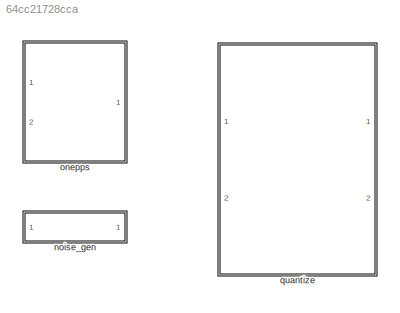
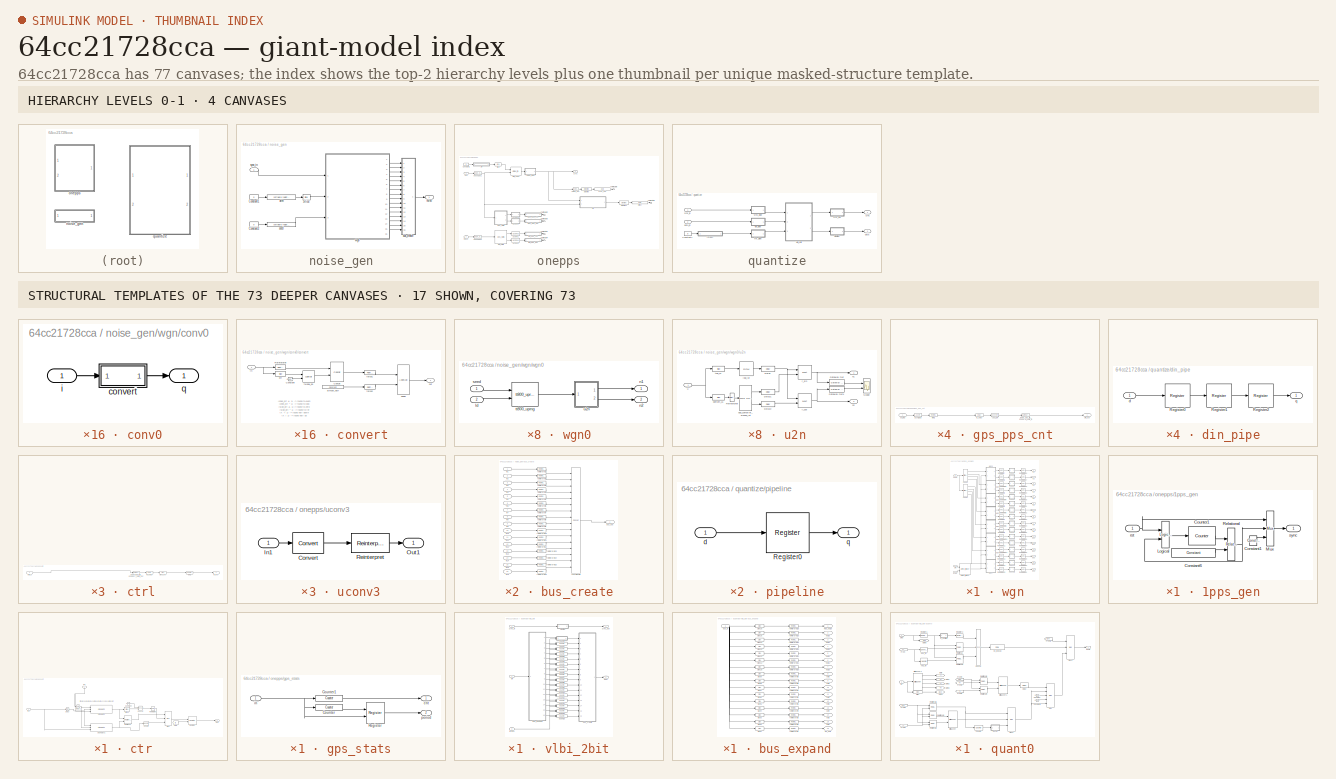
[diagram: thumbnail index - top-2 hierarchy levels (4 canvases) + 17 structural-template representatives of the remaining 73 canvases]
MODEL slx_64cc21728cca
KIND library
BLOCK [SubSystem] noise_gen
  FunctionWithSeparateData = off
  MaskHideContents = off
  MinAlgLoopOccurrences = off
  Opaque = off
  Ports = [1, 1]
  PropExecContextOutsideSubsystem = off
  RTWSystemCode = Auto
  RequestExecContextInheritance = off
BLOCK [Constant] noise_gen/Constant1
  Value = 0
BLOCK [Constant] noise_gen/Constant2
  Value = 0
BLOCK [Reference] noise_gen/Slice  REF=xbsIndex_r4/Slice
  Ports = [1, 1]
  SourceBlock = xbsIndex_r4/Slice
  SourceType = Xilinx Bit Slice Extractor Block
  base0 = LSB of Input
  base1 = MSB of Input
  bit0 = 0
  bit1 = 0
  block_type = slice
  block_version = 11.4
  boolean_output = on
  dbl_ovrd = off
  has_advanced_control = 0
  infoedit = Extracts a given range of bits from each input sample and presents it at the output.  The output type is ordinarily unsigned with binary point at zero, but can be Boolean when the slice is one bit wide.<br><br>Hardware notes: In hardware this block costs nothing.  <repeated x23 — deduplicated; at blocks: Slice, Slice1, slice_sel, slice_gain, slice1, slice10, slice11, slice12, slice13, slice14, slice15, slice16, slice2, slice3, slice4, slice5, +6 more>
  mode = Lower Bit Location + Width
  nbits = 1
  sg_icon_stat = 25,20,1,1,white,blue,0,1fd851a7,right,,[ ],[ ]
  sg_mask_display = fprintf('','COMMENT: begin icon graphics');\npatch([0 25 25 0 0 ],[0 0 20 20 0 ],[0.77 0.82 0.91 ]);\nplot([0 25 25 0 0 ],[0 0 20 20 0 ]);\npatch([7.55 10.44 12.44 14.44 16.44 12.44 9.55 7.55 ],[12.22 12.22 14.22 12.22 14.22 14.22 14.22 12.22 ],[1 1 1 ]);\npatch([9.55 12.44 10.44 7.55 9.55 ],[10.22 10.22 12.22 12.22 10.22 ],[0.931 0.946 0.973 ]);\npatch([7.55 10.44 12.44 9.55 7.55 ],[8.22 8.22 10.22 10...<+298ch>
  sggui_pos = 20,25,631,621
BLOCK [Reference] noise_gen/arm  REF=xps_library/software register  (lib defined in mdl_00b5cec29cd0, mdl_02ab6ecaa3d1, +5 more)
  AttributesFormatString = 1input
  Ports = [1, 1]
  SourceBlock = xps_library/software register
  SourceType = swreg
  Tag = xps:sw_reg
  arith_types = 0
  bin_pts = 0
  bitwidths = 32
  io_delay = 0
  io_dir = From Processor
  mode = one value
  names = gain
  sample_period = 1
  show_format = off
  sim_port = on
BLOCK [SubSystem] noise_gen/bus_create
  AncestorBlock = casper_library_flow_control/bus_create
  FunctionWithSeparateData = off
  MaskHideContents = off
  MinAlgLoopOccurrences = off
  Opaque = off
  Ports = [16, 1]
  PropExecContextOutsideSubsystem = off
  RTWSystemCode = Auto
  RequestExecContextInheritance = off
  UserDataPersistent = on
BLOCK [Outport] noise_gen/bus_create/bus_out
  IconDisplay = Port number
BLOCK [Reference] noise_gen/bus_create/concatenate  REF=xbsIndex_r4/Concat
  Ports = [16, 1]
  SourceBlock = xbsIndex_r4/Concat
  SourceType = Xilinx Bus Concatenator Block
  block_type = concat
  block_version = 11.4
  dbl_ovrd = off
  has_advanced_control = 0
  infoedit = Concatenates two or more inputs.  Output will be cast to an unsigned value with the binary point at zero.
  num_inputs = 16
  sg_icon_stat = 50,620,16,1,white,blue,0,e51e01c8,right,,[ ],[ ]
  sg_mask_display = fprintf('','COMMENT: begin icon graphics');\npatch([0 50 50 0 0 ],[0 0 620 620 0 ],[0.77 0.82 0.91 ]);\nplot([0 50 50 0 0 ],[0 0 620 620 0 ]);\npatch([9.425 19.54 26.54 33.54 40.54 26.54 16.425 9.425 ],[317.77 317.77 324.77 317.77 324.77 324.77 324.77 317.77 ],[1 1 1 ]);\npatch([16.425 26.54 19.54 9.425 16.425 ],[310.77 310.77 317.77 317.77 310.77 ],[0.931 0.946 0.973 ]);\npatch([9.425 19.54 26.54 16.4...<+464ch>
  sggui_pos = -1,-1,-1,-1
BLOCK [Inport] noise_gen/bus_create/in1
  IconDisplay = Port number
BLOCK [Inport] noise_gen/bus_create/in10
  IconDisplay = Port number
  Port = 10
BLOCK [Inport] noise_gen/bus_create/in11
  IconDisplay = Port number
  Port = 11
BLOCK [Inport] noise_gen/bus_create/in12
  IconDisplay = Port number
  Port = 12
BLOCK [Inport] noise_gen/bus_create/in13
  IconDisplay = Port number
  Port = 13
BLOCK [Inport] noise_gen/bus_create/in14
  IconDisplay = Port number
  Port = 14
BLOCK [Inport] noise_gen/bus_create/in15
  IconDisplay = Port number
  Port = 15
BLOCK [Inport] noise_gen/bus_create/in16
  IconDisplay = Port number
  Port = 16
BLOCK [Inport] noise_gen/bus_create/in2
  IconDisplay = Port number
  Port = 2
BLOCK [Inport] noise_gen/bus_create/in3
  IconDisplay = Port number
  Port = 3
BLOCK [Inport] noise_gen/bus_create/in4
  IconDisplay = Port number
  Port = 4
BLOCK [Inport] noise_gen/bus_create/in5
  IconDisplay = Port number
  Port = 5
BLOCK [Inport] noise_gen/bus_create/in6
  IconDisplay = Port number
  Port = 6
BLOCK [Inport] noise_gen/bus_create/in7
  IconDisplay = Port number
  Port = 7
BLOCK [Inport] noise_gen/bus_create/in8
  IconDisplay = Port number
  Port = 8
BLOCK [Inport] noise_gen/bus_create/in9
  IconDisplay = Port number
  Port = 9
BLOCK [Reference] noise_gen/bus_create/reinterpret1  REF=xbsIndex_r4/Reinterpret
  Ports = [1, 1]
  SourceBlock = xbsIndex_r4/Reinterpret
  SourceType = Xilinx Type Reinterpreter Block
  arith_type = Unsigned
  bin_pt = 0
  block_type = reinterpret
  block_version = 11.4
  force_arith_type = on
  force_bin_pt = on
  has_advanced_control = 0
  infoedit = Changes signal type without altering the binary representation.   You can changed the signal between signed and unsigned, and relocate the binary point.<br><br>Hardware notes: In hardware this block costs nothing.<br><br>Example:  Suppose the input is 6 bits wide, signed, with 2 fractional bits, and the output is forced to unsigned with 0 fractional bits.  Then an input of -2.0 (1110.00 in binary ...<+59ch>  <repeated x44 — deduplicated; at blocks: reinterpret1, reinterpret2, Reinterpret, Reinterpret1, Reinterpret10, Reinterpret11, Reinterpret12, Reinterpret13, Reinterpret14, Reinterpret15, Reinterpret16, Reinterpret17, Reinterpret18, Reinterpret19, Reinterpret2, Reinterpret20, +18 more>
  sg_icon_stat = 50,20,1,1,white,blue,0,6b04d0b0,right,,[ ],[ ]
  sg_mask_display = fprintf('','COMMENT: begin icon graphics');\npatch([0 50 50 0 0 ],[0 0 20 20 0 ],[0.77 0.82 0.91 ]);\nplot([0 50 50 0 0 ],[0 0 20 20 0 ]);\npatch([20.55 23.44 25.44 27.44 29.44 25.44 22.55 20.55 ],[12.22 12.22 14.22 12.22 14.22 14.22 14.22 12.22 ],[1 1 1 ]);\npatch([22.55 25.44 23.44 20.55 22.55 ],[10.22 10.22 12.22 12.22 10.22 ],[0.931 0.946 0.973 ]);\npatch([20.55 23.44 25.44 22.55 20.55 ],[8.22 8.22...<+300ch>  <repeated x54 — deduplicated; at blocks: reinterpret1, reinterpret10, reinterpret11, reinterpret12, reinterpret13, reinterpret14, reinterpret15, reinterpret16, reinterpret2, reinterpret3, reinterpret4, reinterpret5, reinterpret6, reinterpret7, reinterpret8, reinterpret9, +1 more>
  sggui_pos = -1,-1,-1,-1
BLOCK [Reference] noise_gen/bus_create/reinterpret10  REF=xbsIndex_r4/Reinterpret
  Ports = [1, 1]
  SourceBlock = xbsIndex_r4/Reinterpret
  SourceType = Xilinx Type Reinterpreter Block
  arith_type = Unsigned
  bin_pt = 0
  block_type = reinterpret
  force_arith_type = on
  force_bin_pt = on
  has_advanced_control = 0
  infoedit = Changes signal type without altering the binary representation.   You can change the signal between signed and unsigned, and relocate the binary point.<br><br>Hardware notes: In hardware this block costs nothing.<br><br>Example:  Suppose the input is 6 bits wide, signed, with 2 fractional bits, and the output is forced to unsigned with 0 fractional bits.  Then an input of -2.0 (1110.00 in binary 2...<+58ch>  <repeated x54 — deduplicated; at blocks: reinterpret10, reinterpret11, reinterpret12, reinterpret13, reinterpret14, reinterpret15, reinterpret16, reinterpret3, reinterpret4, reinterpret5, reinterpret6, reinterpret7, reinterpret8, reinterpret9, Reinterpret, reint1, +2 more>
  sg_icon_stat = 50,20,1,1,white,blue,0,6b04d0b0,right,,[ ],[ ]
  sggui_pos = -1,-1,-1,-1
BLOCK [Reference] noise_gen/bus_create/reinterpret11  REF=xbsIndex_r4/Reinterpret
  Ports = [1, 1]
  SourceBlock = xbsIndex_r4/Reinterpret
  SourceType = Xilinx Type Reinterpreter Block
  arith_type = Unsigned
  bin_pt = 0
  block_type = reinterpret
  force_arith_type = on
  force_bin_pt = on
  has_advanced_control = 0
  sg_icon_stat = 50,20,1,1,white,blue,0,6b04d0b0,right,,[ ],[ ]
  sggui_pos = -1,-1,-1,-1
BLOCK [Reference] noise_gen/bus_create/reinterpret12  REF=xbsIndex_r4/Reinterpret
  Ports = [1, 1]
  SourceBlock = xbsIndex_r4/Reinterpret
  SourceType = Xilinx Type Reinterpreter Block
  arith_type = Unsigned
  bin_pt = 0
  block_type = reinterpret
  force_arith_type = on
  force_bin_pt = on
  has_advanced_control = 0
  sg_icon_stat = 50,20,1,1,white,blue,0,6b04d0b0,right,,[ ],[ ]
  sggui_pos = -1,-1,-1,-1
BLOCK [Reference] noise_gen/bus_create/reinterpret13  REF=xbsIndex_r4/Reinterpret
  Ports = [1, 1]
  SourceBlock = xbsIndex_r4/Reinterpret
  SourceType = Xilinx Type Reinterpreter Block
  arith_type = Unsigned
  bin_pt = 0
  block_type = reinterpret
  force_arith_type = on
  force_bin_pt = on
  has_advanced_control = 0
  sg_icon_stat = 50,20,1,1,white,blue,0,6b04d0b0,right,,[ ],[ ]
  sggui_pos = -1,-1,-1,-1
BLOCK [Reference] noise_gen/bus_create/reinterpret14  REF=xbsIndex_r4/Reinterpret
  Ports = [1, 1]
  SourceBlock = xbsIndex_r4/Reinterpret
  SourceType = Xilinx Type Reinterpreter Block
  arith_type = Unsigned
  bin_pt = 0
  block_type = reinterpret
  force_arith_type = on
  force_bin_pt = on
  has_advanced_control = 0
  sg_icon_stat = 50,20,1,1,white,blue,0,6b04d0b0,right,,[ ],[ ]
  sggui_pos = -1,-1,-1,-1
BLOCK [Reference] noise_gen/bus_create/reinterpret15  REF=xbsIndex_r4/Reinterpret
  Ports = [1, 1]
  SourceBlock = xbsIndex_r4/Reinterpret
  SourceType = Xilinx Type Reinterpreter Block
  arith_type = Unsigned
  bin_pt = 0
  block_type = reinterpret
  force_arith_type = on
  force_bin_pt = on
  has_advanced_control = 0
  sg_icon_stat = 50,20,1,1,white,blue,0,6b04d0b0,right,,[ ],[ ]
  sggui_pos = -1,-1,-1,-1
BLOCK [Reference] noise_gen/bus_create/reinterpret16  REF=xbsIndex_r4/Reinterpret
  Ports = [1, 1]
  SourceBlock = xbsIndex_r4/Reinterpret
  SourceType = Xilinx Type Reinterpreter Block
  arith_type = Unsigned
  bin_pt = 0
  block_type = reinterpret
  force_arith_type = on
  force_bin_pt = on
  has_advanced_control = 0
  sg_icon_stat = 50,20,1,1,white,blue,0,6b04d0b0,right,,[ ],[ ]
  sggui_pos = -1,-1,-1,-1
BLOCK [Reference] noise_gen/bus_create/reinterpret2  REF=xbsIndex_r4/Reinterpret
  Ports = [1, 1]
  SourceBlock = xbsIndex_r4/Reinterpret
  SourceType = Xilinx Type Reinterpreter Block
  arith_type = Unsigned
  bin_pt = 0
  block_type = reinterpret
  block_version = 11.4
  force_arith_type = on
  force_bin_pt = on
  has_advanced_control = 0
  sg_icon_stat = 50,20,1,1,white,blue,0,6b04d0b0,right,,[ ],[ ]
  sggui_pos = 281,224,671,460
BLOCK [Reference] noise_gen/bus_create/reinterpret3  REF=xbsIndex_r4/Reinterpret
  Ports = [1, 1]
  SourceBlock = xbsIndex_r4/Reinterpret
  SourceType = Xilinx Type Reinterpreter Block
  arith_type = Unsigned
  bin_pt = 0
  block_type = reinterpret
  force_arith_type = on
  force_bin_pt = on
  has_advanced_control = 0
  sg_icon_stat = 50,20,1,1,white,blue,0,6b04d0b0,right,,[ ],[ ]
  sggui_pos = -1,-1,-1,-1
BLOCK [Reference] noise_gen/bus_create/reinterpret4  REF=xbsIndex_r4/Reinterpret
  Ports = [1, 1]
  SourceBlock = xbsIndex_r4/Reinterpret
  SourceType = Xilinx Type Reinterpreter Block
  arith_type = Unsigned
  bin_pt = 0
  block_type = reinterpret
  force_arith_type = on
  force_bin_pt = on
  has_advanced_control = 0
  sg_icon_stat = 50,20,1,1,white,blue,0,6b04d0b0,right,,[ ],[ ]
  sggui_pos = -1,-1,-1,-1
BLOCK [Reference] noise_gen/bus_create/reinterpret5  REF=xbsIndex_r4/Reinterpret
  Ports = [1, 1]
  SourceBlock = xbsIndex_r4/Reinterpret
  SourceType = Xilinx Type Reinterpreter Block
  arith_type = Unsigned
  bin_pt = 0
  block_type = reinterpret
  force_arith_type = on
  force_bin_pt = on
  has_advanced_control = 0
  sg_icon_stat = 50,20,1,1,white,blue,0,6b04d0b0,right,,[ ],[ ]
  sggui_pos = -1,-1,-1,-1
BLOCK [Reference] noise_gen/bus_create/reinterpret6  REF=xbsIndex_r4/Reinterpret
  Ports = [1, 1]
  SourceBlock = xbsIndex_r4/Reinterpret
  SourceType = Xilinx Type Reinterpreter Block
  arith_type = Unsigned
  bin_pt = 0
  block_type = reinterpret
  force_arith_type = on
  force_bin_pt = on
  has_advanced_control = 0
  sg_icon_stat = 50,20,1,1,white,blue,0,6b04d0b0,right,,[ ],[ ]
  sggui_pos = -1,-1,-1,-1
BLOCK [Reference] noise_gen/bus_create/reinterpret7  REF=xbsIndex_r4/Reinterpret
  Ports = [1, 1]
  SourceBlock = xbsIndex_r4/Reinterpret
  SourceType = Xilinx Type Reinterpreter Block
  arith_type = Unsigned
  bin_pt = 0
  block_type = reinterpret
  force_arith_type = on
  force_bin_pt = on
  has_advanced_control = 0
  sg_icon_stat = 50,20,1,1,white,blue,0,6b04d0b0,right,,[ ],[ ]
  sggui_pos = -1,-1,-1,-1
BLOCK [Reference] noise_gen/bus_create/reinterpret8  REF=xbsIndex_r4/Reinterpret
  Ports = [1, 1]
  SourceBlock = xbsIndex_r4/Reinterpret
  SourceType = Xilinx Type Reinterpreter Block
  arith_type = Unsigned
  bin_pt = 0
  block_type = reinterpret
  force_arith_type = on
  force_bin_pt = on
  has_advanced_control = 0
  sg_icon_stat = 50,20,1,1,white,blue,0,6b04d0b0,right,,[ ],[ ]
  sggui_pos = -1,-1,-1,-1
BLOCK [Reference] noise_gen/bus_create/reinterpret9  REF=xbsIndex_r4/Reinterpret
  Ports = [1, 1]
  SourceBlock = xbsIndex_r4/Reinterpret
  SourceType = Xilinx Type Reinterpreter Block
  arith_type = Unsigned
  bin_pt = 0
  block_type = reinterpret
  force_arith_type = on
  force_bin_pt = on
  has_advanced_control = 0
  sg_icon_stat = 50,20,1,1,white,blue,0,6b04d0b0,right,,[ ],[ ]
  sggui_pos = -1,-1,-1,-1
BLOCK [Outport] noise_gen/noise
  IconDisplay = Port number
BLOCK [Reference] noise_gen/seed  REF=xps_library/software register  (lib defined in mdl_00b5cec29cd0, mdl_02ab6ecaa3d1, +5 more)
  AttributesFormatString = 1input
  Ports = [1, 1]
  SourceBlock = xps_library/software register
  SourceType = swreg
  Tag = xps:sw_reg
  arith_types = 0
  bin_pts = 0
  bitwidths = 32
  io_delay = 0
  io_dir = From Processor
  mode = one value
  names = gain
  sample_period = 1
  show_format = off
  sim_port = on
BLOCK [Inport] noise_gen/sync_in
  IconDisplay = Port number
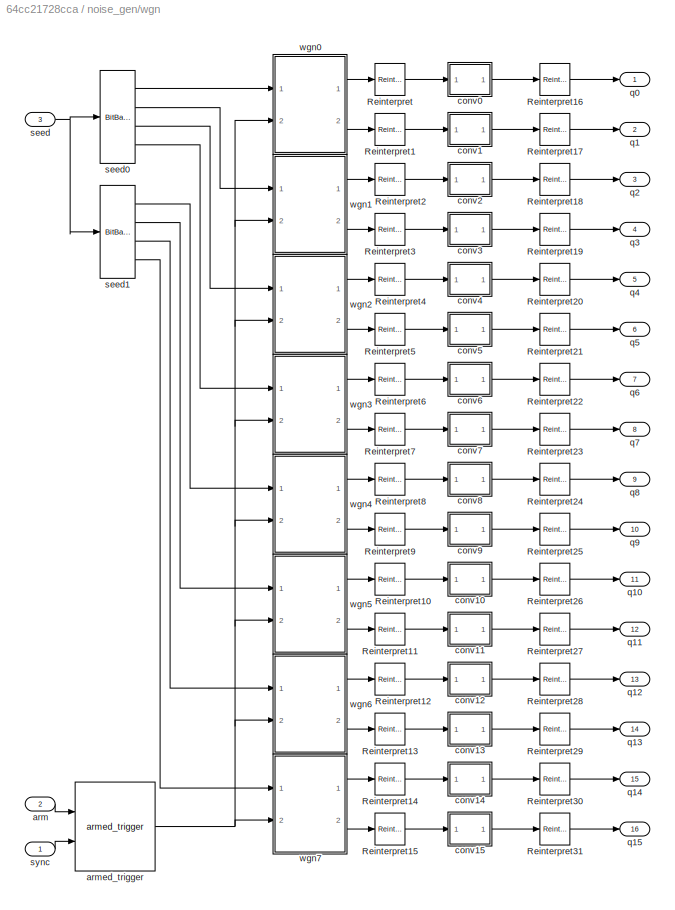
BLOCK [SubSystem] noise_gen/wgn
  FunctionWithSeparateData = off
  MaskHideContents = off
  MinAlgLoopOccurrences = off
  Opaque = off
  Ports = [3, 16]
  PropExecContextOutsideSubsystem = off
  RTWSystemCode = Auto
  RequestExecContextInheritance = off
BLOCK [Reference] noise_gen/wgn/Reinterpret  REF=xbsIndex_r4/Reinterpret
  Ports = [1, 1]
  SourceBlock = xbsIndex_r4/Reinterpret
  SourceType = Xilinx Type Reinterpreter Block
  arith_type = Unsigned
  bin_pt = 10
  block_type = reinterpret
  block_version = 11.4
  force_arith_type = off
  force_bin_pt = on
  has_advanced_control = 0
  sg_icon_stat = 30,32,1,1,white,blue,0,6b04d0b0,right,,[ ],[ ]
  sg_mask_display = fprintf('','COMMENT: begin icon graphics');\npatch([0 30 30 0 0 ],[0 0 32 32 0 ],[0.77 0.82 0.91 ]);\nplot([0 30 30 0 0 ],[0 0 32 32 0 ]);\npatch([6.1 11.88 15.88 19.88 23.88 15.88 10.1 6.1 ],[20.44 20.44 24.44 20.44 24.44 24.44 24.44 20.44 ],[1 1 1 ]);\npatch([10.1 15.88 11.88 6.1 10.1 ],[16.44 16.44 20.44 20.44 16.44 ],[0.931 0.946 0.973 ]);\npatch([6.1 11.88 15.88 10.1 6.1 ],[12.44 12.44 16.44 16.44...<+288ch>  <repeated x32 — deduplicated; at blocks: Reinterpret, Reinterpret1, Reinterpret10, Reinterpret11, Reinterpret12, Reinterpret13, Reinterpret14, Reinterpret15, Reinterpret16, Reinterpret17, Reinterpret18, Reinterpret19, Reinterpret2, Reinterpret20, Reinterpret21, Reinterpret22, +16 more>
  sggui_pos = 20,46,372,364
BLOCK [Reference] noise_gen/wgn/Reinterpret1  REF=xbsIndex_r4/Reinterpret
  Ports = [1, 1]
  SourceBlock = xbsIndex_r4/Reinterpret
  SourceType = Xilinx Type Reinterpreter Block
  arith_type = Unsigned
  bin_pt = 10
  block_type = reinterpret
  block_version = 11.4
  force_arith_type = off
  force_bin_pt = on
  has_advanced_control = 0
  sg_icon_stat = 30,32,1,1,white,blue,0,6b04d0b0,right,,[ ],[ ]
  sggui_pos = 20,46,372,364
BLOCK [Reference] noise_gen/wgn/Reinterpret10  REF=xbsIndex_r4/Reinterpret
  Ports = [1, 1]
  SourceBlock = xbsIndex_r4/Reinterpret
  SourceType = Xilinx Type Reinterpreter Block
  arith_type = Unsigned
  bin_pt = 10
  block_type = reinterpret
  block_version = 11.4
  force_arith_type = off
  force_bin_pt = on
  has_advanced_control = 0
  sg_icon_stat = 30,32,1,1,white,blue,0,6b04d0b0,right,,[ ],[ ]
  sggui_pos = 20,46,372,364
BLOCK [Reference] noise_gen/wgn/Reinterpret11  REF=xbsIndex_r4/Reinterpret
  Ports = [1, 1]
  SourceBlock = xbsIndex_r4/Reinterpret
  SourceType = Xilinx Type Reinterpreter Block
  arith_type = Unsigned
  bin_pt = 10
  block_type = reinterpret
  block_version = 11.4
  force_arith_type = off
  force_bin_pt = on
  has_advanced_control = 0
  sg_icon_stat = 30,32,1,1,white,blue,0,6b04d0b0,right,,[ ],[ ]
  sggui_pos = 20,46,372,364
BLOCK [Reference] noise_gen/wgn/Reinterpret12  REF=xbsIndex_r4/Reinterpret
  Ports = [1, 1]
  SourceBlock = xbsIndex_r4/Reinterpret
  SourceType = Xilinx Type Reinterpreter Block
  arith_type = Unsigned
  bin_pt = 10
  block_type = reinterpret
  block_version = 11.4
  force_arith_type = off
  force_bin_pt = on
  has_advanced_control = 0
  sg_icon_stat = 30,32,1,1,white,blue,0,6b04d0b0,right,,[ ],[ ]
  sggui_pos = 20,46,372,364
BLOCK [Reference] noise_gen/wgn/Reinterpret13  REF=xbsIndex_r4/Reinterpret
  Ports = [1, 1]
  SourceBlock = xbsIndex_r4/Reinterpret
  SourceType = Xilinx Type Reinterpreter Block
  arith_type = Unsigned
  bin_pt = 10
  block_type = reinterpret
  block_version = 11.4
  force_arith_type = off
  force_bin_pt = on
  has_advanced_control = 0
  sg_icon_stat = 30,32,1,1,white,blue,0,6b04d0b0,right,,[ ],[ ]
  sggui_pos = 20,46,372,364
BLOCK [Reference] noise_gen/wgn/Reinterpret14  REF=xbsIndex_r4/Reinterpret
  Ports = [1, 1]
  SourceBlock = xbsIndex_r4/Reinterpret
  SourceType = Xilinx Type Reinterpreter Block
  arith_type = Unsigned
  bin_pt = 10
  block_type = reinterpret
  block_version = 11.4
  force_arith_type = off
  force_bin_pt = on
  has_advanced_control = 0
  sg_icon_stat = 30,32,1,1,white,blue,0,6b04d0b0,right,,[ ],[ ]
  sggui_pos = 20,46,372,364
BLOCK [Reference] noise_gen/wgn/Reinterpret15  REF=xbsIndex_r4/Reinterpret
  Ports = [1, 1]
  SourceBlock = xbsIndex_r4/Reinterpret
  SourceType = Xilinx Type Reinterpreter Block
  arith_type = Unsigned
  bin_pt = 10
  block_type = reinterpret
  block_version = 11.4
  force_arith_type = off
  force_bin_pt = on
  has_advanced_control = 0
  sg_icon_stat = 30,32,1,1,white,blue,0,6b04d0b0,right,,[ ],[ ]
  sggui_pos = 20,46,372,364
BLOCK [Reference] noise_gen/wgn/Reinterpret16  REF=xbsIndex_r4/Reinterpret
  Ports = [1, 1]
  SourceBlock = xbsIndex_r4/Reinterpret
  SourceType = Xilinx Type Reinterpreter Block
  arith_type = Unsigned
  bin_pt = 7
  block_type = reinterpret
  block_version = 11.4
  force_arith_type = off
  force_bin_pt = on
  has_advanced_control = 0
  sg_icon_stat = 30,32,1,1,white,blue,0,6b04d0b0,right,,[ ],[ ]
  sggui_pos = 20,46,421,399
BLOCK [Reference] noise_gen/wgn/Reinterpret17  REF=xbsIndex_r4/Reinterpret
  Ports = [1, 1]
  SourceBlock = xbsIndex_r4/Reinterpret
  SourceType = Xilinx Type Reinterpreter Block
  arith_type = Unsigned
  bin_pt = 7
  block_type = reinterpret
  block_version = 11.4
  force_arith_type = off
  force_bin_pt = on
  has_advanced_control = 0
  sg_icon_stat = 30,32,1,1,white,blue,0,6b04d0b0,right,,[ ],[ ]
  sggui_pos = 20,46,372,364
BLOCK [Reference] noise_gen/wgn/Reinterpret18  REF=xbsIndex_r4/Reinterpret
  Ports = [1, 1]
  SourceBlock = xbsIndex_r4/Reinterpret
  SourceType = Xilinx Type Reinterpreter Block
  arith_type = Unsigned
  bin_pt = 7
  block_type = reinterpret
  block_version = 11.4
  force_arith_type = off
  force_bin_pt = on
  has_advanced_control = 0
  sg_icon_stat = 30,32,1,1,white,blue,0,6b04d0b0,right,,[ ],[ ]
  sggui_pos = 20,46,372,364
BLOCK [Reference] noise_gen/wgn/Reinterpret19  REF=xbsIndex_r4/Reinterpret
  Ports = [1, 1]
  SourceBlock = xbsIndex_r4/Reinterpret
  SourceType = Xilinx Type Reinterpreter Block
  arith_type = Unsigned
  bin_pt = 7
  block_type = reinterpret
  block_version = 11.4
  force_arith_type = off
  force_bin_pt = on
  has_advanced_control = 0
  sg_icon_stat = 30,32,1,1,white,blue,0,6b04d0b0,right,,[ ],[ ]
  sggui_pos = 20,46,372,364
BLOCK [Reference] noise_gen/wgn/Reinterpret2  REF=xbsIndex_r4/Reinterpret
  Ports = [1, 1]
  SourceBlock = xbsIndex_r4/Reinterpret
  SourceType = Xilinx Type Reinterpreter Block
  arith_type = Unsigned
  bin_pt = 10
  block_type = reinterpret
  block_version = 11.4
  force_arith_type = off
  force_bin_pt = on
  has_advanced_control = 0
  sg_icon_stat = 30,32,1,1,white,blue,0,6b04d0b0,right,,[ ],[ ]
  sggui_pos = 20,46,372,364
BLOCK [Reference] noise_gen/wgn/Reinterpret20  REF=xbsIndex_r4/Reinterpret
  Ports = [1, 1]
  SourceBlock = xbsIndex_r4/Reinterpret
  SourceType = Xilinx Type Reinterpreter Block
  arith_type = Unsigned
  bin_pt = 7
  block_type = reinterpret
  block_version = 11.4
  force_arith_type = off
  force_bin_pt = on
  has_advanced_control = 0
  sg_icon_stat = 30,32,1,1,white,blue,0,6b04d0b0,right,,[ ],[ ]
  sggui_pos = 20,46,372,364
BLOCK [Reference] noise_gen/wgn/Reinterpret21  REF=xbsIndex_r4/Reinterpret
  Ports = [1, 1]
  SourceBlock = xbsIndex_r4/Reinterpret
  SourceType = Xilinx Type Reinterpreter Block
  arith_type = Unsigned
  bin_pt = 7
  block_type = reinterpret
  block_version = 11.4
  force_arith_type = off
  force_bin_pt = on
  has_advanced_control = 0
  sg_icon_stat = 30,32,1,1,white,blue,0,6b04d0b0,right,,[ ],[ ]
  sggui_pos = 20,46,372,364
BLOCK [Reference] noise_gen/wgn/Reinterpret22  REF=xbsIndex_r4/Reinterpret
  Ports = [1, 1]
  SourceBlock = xbsIndex_r4/Reinterpret
  SourceType = Xilinx Type Reinterpreter Block
  arith_type = Unsigned
  bin_pt = 7
  block_type = reinterpret
  block_version = 11.4
  force_arith_type = off
  force_bin_pt = on
  has_advanced_control = 0
  sg_icon_stat = 30,32,1,1,white,blue,0,6b04d0b0,right,,[ ],[ ]
  sggui_pos = 20,46,372,364
BLOCK [Reference] noise_gen/wgn/Reinterpret23  REF=xbsIndex_r4/Reinterpret
  Ports = [1, 1]
  SourceBlock = xbsIndex_r4/Reinterpret
  SourceType = Xilinx Type Reinterpreter Block
  arith_type = Unsigned
  bin_pt = 7
  block_type = reinterpret
  block_version = 11.4
  force_arith_type = off
  force_bin_pt = on
  has_advanced_control = 0
  sg_icon_stat = 30,32,1,1,white,blue,0,6b04d0b0,right,,[ ],[ ]
  sggui_pos = 20,46,372,364
BLOCK [Reference] noise_gen/wgn/Reinterpret24  REF=xbsIndex_r4/Reinterpret
  Ports = [1, 1]
  SourceBlock = xbsIndex_r4/Reinterpret
  SourceType = Xilinx Type Reinterpreter Block
  arith_type = Unsigned
  bin_pt = 7
  block_type = reinterpret
  block_version = 11.4
  force_arith_type = off
  force_bin_pt = on
  has_advanced_control = 0
  sg_icon_stat = 30,32,1,1,white,blue,0,6b04d0b0,right,,[ ],[ ]
  sggui_pos = 20,46,372,364
BLOCK [Reference] noise_gen/wgn/Reinterpret25  REF=xbsIndex_r4/Reinterpret
  Ports = [1, 1]
  SourceBlock = xbsIndex_r4/Reinterpret
  SourceType = Xilinx Type Reinterpreter Block
  arith_type = Unsigned
  bin_pt = 7
  block_type = reinterpret
  block_version = 11.4
  force_arith_type = off
  force_bin_pt = on
  has_advanced_control = 0
  sg_icon_stat = 30,32,1,1,white,blue,0,6b04d0b0,right,,[ ],[ ]
  sggui_pos = 20,46,372,364
BLOCK [Reference] noise_gen/wgn/Reinterpret26  REF=xbsIndex_r4/Reinterpret
  Ports = [1, 1]
  SourceBlock = xbsIndex_r4/Reinterpret
  SourceType = Xilinx Type Reinterpreter Block
  arith_type = Unsigned
  bin_pt = 7
  block_type = reinterpret
  block_version = 11.4
  force_arith_type = off
  force_bin_pt = on
  has_advanced_control = 0
  sg_icon_stat = 30,32,1,1,white,blue,0,6b04d0b0,right,,[ ],[ ]
  sggui_pos = 20,46,372,364
BLOCK [Reference] noise_gen/wgn/Reinterpret27  REF=xbsIndex_r4/Reinterpret
  Ports = [1, 1]
  SourceBlock = xbsIndex_r4/Reinterpret
  SourceType = Xilinx Type Reinterpreter Block
  arith_type = Unsigned
  bin_pt = 7
  block_type = reinterpret
  block_version = 11.4
  force_arith_type = off
  force_bin_pt = on
  has_advanced_control = 0
  sg_icon_stat = 30,32,1,1,white,blue,0,6b04d0b0,right,,[ ],[ ]
  sggui_pos = 20,46,372,364
BLOCK [Reference] noise_gen/wgn/Reinterpret28  REF=xbsIndex_r4/Reinterpret
  Ports = [1, 1]
  SourceBlock = xbsIndex_r4/Reinterpret
  SourceType = Xilinx Type Reinterpreter Block
  arith_type = Unsigned
  bin_pt = 7
  block_type = reinterpret
  block_version = 11.4
  force_arith_type = off
  force_bin_pt = on
  has_advanced_control = 0
  sg_icon_stat = 30,32,1,1,white,blue,0,6b04d0b0,right,,[ ],[ ]
  sggui_pos = 20,46,372,364
BLOCK [Reference] noise_gen/wgn/Reinterpret29  REF=xbsIndex_r4/Reinterpret
  Ports = [1, 1]
  SourceBlock = xbsIndex_r4/Reinterpret
  SourceType = Xilinx Type Reinterpreter Block
  arith_type = Unsigned
  bin_pt = 7
  block_type = reinterpret
  block_version = 11.4
  force_arith_type = off
  force_bin_pt = on
  has_advanced_control = 0
  sg_icon_stat = 30,32,1,1,white,blue,0,6b04d0b0,right,,[ ],[ ]
  sggui_pos = 20,46,372,364
BLOCK [Reference] noise_gen/wgn/Reinterpret3  REF=xbsIndex_r4/Reinterpret
  Ports = [1, 1]
  SourceBlock = xbsIndex_r4/Reinterpret
  SourceType = Xilinx Type Reinterpreter Block
  arith_type = Unsigned
  bin_pt = 10
  block_type = reinterpret
  block_version = 11.4
  force_arith_type = off
  force_bin_pt = on
  has_advanced_control = 0
  sg_icon_stat = 30,32,1,1,white,blue,0,6b04d0b0,right,,[ ],[ ]
  sggui_pos = 20,46,372,364
BLOCK [Reference] noise_gen/wgn/Reinterpret30  REF=xbsIndex_r4/Reinterpret
  Ports = [1, 1]
  SourceBlock = xbsIndex_r4/Reinterpret
  SourceType = Xilinx Type Reinterpreter Block
  arith_type = Unsigned
  bin_pt = 7
  block_type = reinterpret
  block_version = 11.4
  force_arith_type = off
  force_bin_pt = on
  has_advanced_control = 0
  sg_icon_stat = 30,32,1,1,white,blue,0,6b04d0b0,right,,[ ],[ ]
  sggui_pos = 20,46,372,364
BLOCK [Reference] noise_gen/wgn/Reinterpret31  REF=xbsIndex_r4/Reinterpret
  Ports = [1, 1]
  SourceBlock = xbsIndex_r4/Reinterpret
  SourceType = Xilinx Type Reinterpreter Block
  arith_type = Unsigned
  bin_pt = 7
  block_type = reinterpret
  block_version = 11.4
  force_arith_type = off
  force_bin_pt = on
  has_advanced_control = 0
  sg_icon_stat = 30,32,1,1,white,blue,0,6b04d0b0,right,,[ ],[ ]
  sggui_pos = 20,46,372,364
BLOCK [Reference] noise_gen/wgn/Reinterpret4  REF=xbsIndex_r4/Reinterpret
  Ports = [1, 1]
  SourceBlock = xbsIndex_r4/Reinterpret
  SourceType = Xilinx Type Reinterpreter Block
  arith_type = Unsigned
  bin_pt = 10
  block_type = reinterpret
  block_version = 11.4
  force_arith_type = off
  force_bin_pt = on
  has_advanced_control = 0
  sg_icon_stat = 30,32,1,1,white,blue,0,6b04d0b0,right,,[ ],[ ]
  sggui_pos = 20,46,372,364
BLOCK [Reference] noise_gen/wgn/Reinterpret5  REF=xbsIndex_r4/Reinterpret
  Ports = [1, 1]
  SourceBlock = xbsIndex_r4/Reinterpret
  SourceType = Xilinx Type Reinterpreter Block
  arith_type = Unsigned
  bin_pt = 10
  block_type = reinterpret
  block_version = 11.4
  force_arith_type = off
  force_bin_pt = on
  has_advanced_control = 0
  sg_icon_stat = 30,32,1,1,white,blue,0,6b04d0b0,right,,[ ],[ ]
  sggui_pos = 20,46,372,364
BLOCK [Reference] noise_gen/wgn/Reinterpret6  REF=xbsIndex_r4/Reinterpret
  Ports = [1, 1]
  SourceBlock = xbsIndex_r4/Reinterpret
  SourceType = Xilinx Type Reinterpreter Block
  arith_type = Unsigned
  bin_pt = 10
  block_type = reinterpret
  block_version = 11.4
  force_arith_type = off
  force_bin_pt = on
  has_advanced_control = 0
  sg_icon_stat = 30,32,1,1,white,blue,0,6b04d0b0,right,,[ ],[ ]
  sggui_pos = 20,46,372,364
BLOCK [Reference] noise_gen/wgn/Reinterpret7  REF=xbsIndex_r4/Reinterpret
  Ports = [1, 1]
  SourceBlock = xbsIndex_r4/Reinterpret
  SourceType = Xilinx Type Reinterpreter Block
  arith_type = Unsigned
  bin_pt = 10
  block_type = reinterpret
  block_version = 11.4
  force_arith_type = off
  force_bin_pt = on
  has_advanced_control = 0
  sg_icon_stat = 30,32,1,1,white,blue,0,6b04d0b0,right,,[ ],[ ]
  sggui_pos = 20,46,372,364
BLOCK [Reference] noise_gen/wgn/Reinterpret8  REF=xbsIndex_r4/Reinterpret
  Ports = [1, 1]
  SourceBlock = xbsIndex_r4/Reinterpret
  SourceType = Xilinx Type Reinterpreter Block
  arith_type = Unsigned
  bin_pt = 10
  block_type = reinterpret
  block_version = 11.4
  force_arith_type = off
  force_bin_pt = on
  has_advanced_control = 0
  sg_icon_stat = 30,32,1,1,white,blue,0,6b04d0b0,right,,[ ],[ ]
  sggui_pos = 20,46,372,364
BLOCK [Reference] noise_gen/wgn/Reinterpret9  REF=xbsIndex_r4/Reinterpret
  Ports = [1, 1]
  SourceBlock = xbsIndex_r4/Reinterpret
  SourceType = Xilinx Type Reinterpreter Block
  arith_type = Unsigned
  bin_pt = 10
  block_type = reinterpret
  block_version = 11.4
  force_arith_type = off
  force_bin_pt = on
  has_advanced_control = 0
  sg_icon_stat = 30,32,1,1,white,blue,0,6b04d0b0,right,,[ ],[ ]
  sggui_pos = 20,46,372,364
BLOCK [Inport] noise_gen/wgn/arm
  IconDisplay = Port number
  Port = 2
BLOCK [Reference] noise_gen/wgn/armed_trigger  REF=casper_library_misc/armed_trigger  (lib defined in mdl_357510c33b49, mdl_57b5f564ae26, +4 more)
  Ports = [2, 1]
  SourceBlock = casper_library_misc/armed_trigger
  SourceType = Armed Trigger
BLOCK [SubSystem] noise_gen/wgn/conv0
  FunctionWithSeparateData = off
  MaskHideContents = off
  MinAlgLoopOccurrences = off
  Opaque = off
  Ports = [1, 1]
  PropExecContextOutsideSubsystem = off
  RTWSystemCode = Auto
  RequestExecContextInheritance = off
BLOCK [SubSystem] noise_gen/wgn/conv0/convert
  AncestorBlock = casper_library_misc/convert
  AttributesFormatString = N_10 ==> 8_0\nround inf, wrap\nlatency = 1
  FunctionWithSeparateData = off
  MaskHideContents = off
  MinAlgLoopOccurrences = off
  Opaque = off
  Ports = [1, 1]
  PropExecContextOutsideSubsystem = off
  RTWSystemCode = Auto
  RequestExecContextInheritance = off
  UserDataPersistent = on
BLOCK [Reference] noise_gen/wgn/conv0/convert/Concat  REF=xbsIndex_r4/Concat
  Ports = [2, 1]
  SourceBlock = xbsIndex_r4/Concat
  SourceType = Xilinx Bus Concatenator Block
  block_type = concat
  block_version = 10.1.3
  dbl_ovrd = off
  has_advanced_control = 0
  infoedit = Concatenates two or more inputs.  Output will be cast to an unsigned value with the binary point at zero.
  num_inputs = 2
  sg_icon_stat = 50,75,2,1,white,blue,0,16398980,right,,[ ],[ ]
  sg_mask_display = fprintf('','COMMENT: begin icon graphics');\npatch([0 50 50 0 0 ],[0 0 75 75 0 ],[0.77 0.82 0.91 ]);\nplot([0 50 50 0 0 ],[0 0 75 75 0 ]);\npatch([9.425 19.54 26.54 33.54 40.54 26.54 16.425 9.425 ],[44.77 44.77 51.77 44.77 51.77 51.77 51.77 44.77 ],[1 1 1 ]);\npatch([16.425 26.54 19.54 9.425 16.425 ],[37.77 37.77 44.77 44.77 37.77 ],[0.931 0.946 0.973 ]);\npatch([9.425 19.54 26.54 16.425 9.425 ],[30.77...<+420ch>  <repeated x16 — deduplicated; at blocks: Concat>
  sggui_pos = -1,-1,-1,-1
BLOCK [Reference] noise_gen/wgn/conv0/convert/Constant  REF=xbsIndex_r4/Constant
  Ports = [0, 1]
  SourceBlock = xbsIndex_r4/Constant
  SourceType = Xilinx Constant Block Block
  arith_type = Unsigned
  bin_pt = 0
  block_type = constant
  block_version = 10.1.3
  carry = CIN
  const = 1
  dbl_ovrd = off
  dsp48_infoedit = The use of this block for DSP48 instructions is deprecated.  Please use the Opmode block.
  equ = P=C
  exp_width = 8
  explicit_period = off
  frac_width = 24
  gui_display_data_type = Fixed-point
  has_advanced_control = 0
  inp1 = P
  inp2 = PCIN>>17
  n_bits = 1
  opr = +
  opselect = C
  period = 1
  preci_type = Single
  sg_icon_stat = 15,14,0,1,white,blue,0,1c72b5be,right,,[ ],[ ]
  sg_mask_display = fprintf('','COMMENT: begin icon graphics');\npatch([0 15 15 0 0 ],[0 0 14 14 0 ],[0.77 0.82 0.91 ]);\nplot([0 15 15 0 0 ],[0 0 14 14 0 ]);\npatch([2.55 5.44 7.44 9.44 11.44 7.44 4.55 2.55 ],[9.22 9.22 11.22 9.22 11.22 11.22 11.22 9.22 ],[1 1 1 ]);\npatch([4.55 7.44 5.44 2.55 4.55 ],[7.22 7.22 9.22 9.22 7.22 ],[0.931 0.946 0.973 ]);\npatch([2.55 5.44 7.44 4.55 2.55 ],[5.22 5.22 7.22 7.22 5.22 ],[1 1 1 ]...<+271ch>  <repeated x18 — deduplicated; at blocks: Constant, Constant1>
  sggui_pos = -1,-1,-1,-1
BLOCK [Reference] noise_gen/wgn/conv0/convert/Reinterpret  REF=xbsIndex_r4/Reinterpret
  Ports = [1, 1]
  SourceBlock = xbsIndex_r4/Reinterpret
  SourceType = Xilinx Type Reinterpreter Block
  arith_type = Unsigned
  bin_pt = 0
  block_type = reinterpret
  block_version = 10.1.3
  force_arith_type = on
  force_bin_pt = on
  has_advanced_control = 0
  infoedit = Changes signal type without altering the binary representation.   You can changed the signal between signed and unsigned, and relocate the binary point.<P><P>Hardware notes: In hardware this block costs nothing.<P><P>Example:  Suppose the input is 6 bits wide, signed, with 2 fractional bits, and the output is forced to unsigned with 0 fractional bits.  Then an input of -2.0 (1110.00 in binary 2's ...<+55ch>  <repeated x48 — deduplicated; at blocks: Reinterpret, force1, force2>
  sg_icon_stat = 40,18,1,1,white,blue,0,6b04d0b0,right,,[ ],[ ]
  sg_mask_display = fprintf('','COMMENT: begin icon graphics');\npatch([0 40 40 0 0 ],[0 0 18 18 0 ],[0.77 0.82 0.91 ]);\nplot([0 40 40 0 0 ],[0 0 18 18 0 ]);\npatch([15.55 18.44 20.44 22.44 24.44 20.44 17.55 15.55 ],[11.22 11.22 13.22 11.22 13.22 13.22 13.22 11.22 ],[1 1 1 ]);\npatch([17.55 20.44 18.44 15.55 17.55 ],[9.22 9.22 11.22 11.22 9.22 ],[0.931 0.946 0.973 ]);\npatch([15.55 18.44 20.44 17.55 15.55 ],[7.22 7.22 9....<+295ch>  <repeated x48 — deduplicated; at blocks: Reinterpret, force1, force2>
  sggui_pos = -1,-1,-1,-1
BLOCK [Reference] noise_gen/wgn/conv0/convert/adder  REF=xbsIndex_r4/AddSub
  Ports = [2, 1]
  SourceBlock = xbsIndex_r4/AddSub
  SourceType = Xilinx Adder/Subtracter Block
  arith_type = Signed  (2's comp)
  bin_pt = 0
  block_type = addsub
  block_version = 10.1.3
  dbl_ovrd = off
  en = off
  has_advanced_control = 0
  hw_selection = Fabric
  latency = 1
  mode = Addition
  n_bits = 8
  overflow = Wrap
  pipelined = on
  precision = User Defined
  quantization = Truncate
  sg_icon_stat = 45,113,2,1,white,blue,0,e85d8a90,right,,[ ],[ ]
  sg_mask_display = fprintf('','COMMENT: begin icon graphics');\npatch([0 45 45 0 0 ],[0 0 113 113 0 ],[0.77 0.82 0.91 ]);\nplot([0 45 45 0 0 ],[0 0 113 113 0 ]);\npatch([8.65 17.32 23.32 29.32 35.32 23.32 14.65 8.65 ],[62.66 62.66 68.66 62.66 68.66 68.66 68.66 62.66 ],[1 1 1 ]);\npatch([14.65 23.32 17.32 8.65 14.65 ],[56.66 56.66 62.66 62.66 56.66 ],[0.931 0.946 0.973 ]);\npatch([8.65 17.32 23.32 14.65 8.65 ],[50.66 50.6...<+530ch>  <repeated x16 — deduplicated; at blocks: adder>
  sggui_pos = -1,-1,-1,-1
  use_behavioral_HDL = off
  use_carryin = off
  use_carryout = off
  use_rpm = on
  xl_area = [0, 0, 0, 0, 0, 0, 0]
  xl_use_area = off
BLOCK [Reference] noise_gen/wgn/conv0/convert/almost_half  REF=xbsIndex_r4/Constant
  Ports = [0, 1]
  SourceBlock = xbsIndex_r4/Constant
  SourceType = Xilinx Constant Block Block
  arith_type = Unsigned
  bin_pt = 0
  block_type = constant
  block_version = 10.1.3
  carry = CIN
  const = 1023
  dbl_ovrd = off
  dsp48_infoedit = The use of this block for DSP48 instructions is deprecated.  Please use the Opmode block.
  equ = P=C
  exp_width = 8
  explicit_period = off
  frac_width = 24
  gui_display_data_type = Fixed-point
  has_advanced_control = 0
  inp1 = P
  inp2 = PCIN>>17
  n_bits = 11
  opr = +
  opselect = C
  period = 1
  preci_type = Single
  sg_icon_stat = 80,14,0,1,white,blue,0,3ed70023,right,,[ ],[ ]
  sg_mask_display = fprintf('','COMMENT: begin icon graphics');\npatch([0 80 80 0 0 ],[0 0 14 14 0 ],[0.77 0.82 0.91 ]);\nplot([0 80 80 0 0 ],[0 0 14 14 0 ]);\npatch([35.55 38.44 40.44 42.44 44.44 40.44 37.55 35.55 ],[9.22 9.22 11.22 9.22 11.22 11.22 11.22 9.22 ],[1 1 1 ]);\npatch([37.55 40.44 38.44 35.55 37.55 ],[7.22 7.22 9.22 9.22 7.22 ],[0.931 0.946 0.973 ]);\npatch([35.55 38.44 40.44 37.55 35.55 ],[5.22 5.22 7.22 7.2...<+297ch>  <repeated x16 — deduplicated; at blocks: almost_half>
  sggui_pos = 20,20,414,344
BLOCK [Reference] noise_gen/wgn/conv0/convert/bit  REF=xbsIndex_r4/Slice
  Ports = [1, 1]
  SourceBlock = xbsIndex_r4/Slice
  SourceType = Xilinx Bit Slice Extractor Block
  base0 = MSB of Input
  base1 = MSB of Input
  bit0 = 0
  bit1 = 0
  block_type = slice
  block_version = 10.1.3
  boolean_output = off
  dbl_ovrd = off
  has_advanced_control = 0
  infoedit = Extracts a given range of bits from each input sample and presents it at the output.  The output type is ordinarily unsigned with binary point at zero, but can be Boolean when the slice is one bit wide.<P><P>Hardware notes: In hardware this block costs nothing.  <repeated x32 — deduplicated; at blocks: bit, bottom_11, top_11>
  mode = Lower Bit Location + Width
  nbits = 1
  sg_icon_stat = 40,18,1,1,white,blue,0,1fd851a7,right,,[ ],[ ]
  sg_mask_display = fprintf('','COMMENT: begin icon graphics');\npatch([0 40 40 0 0 ],[0 0 18 18 0 ],[0.77 0.82 0.91 ]);\nplot([0 40 40 0 0 ],[0 0 18 18 0 ]);\npatch([15.55 18.44 20.44 22.44 24.44 20.44 17.55 15.55 ],[11.22 11.22 13.22 11.22 13.22 13.22 13.22 11.22 ],[1 1 1 ]);\npatch([17.55 20.44 18.44 15.55 17.55 ],[9.22 9.22 11.22 11.22 9.22 ],[0.931 0.946 0.973 ]);\npatch([15.55 18.44 20.44 17.55 15.55 ],[7.22 7.22 9....<+305ch>  <repeated x16 — deduplicated; at blocks: bit>
  sggui_pos = 20,20,460,380
BLOCK [Reference] noise_gen/wgn/conv0/convert/force1  REF=xbsIndex_r4/Reinterpret
  Ports = [1, 1]
  SourceBlock = xbsIndex_r4/Reinterpret
  SourceType = Xilinx Type Reinterpreter Block
  arith_type = Signed  (2's comp)
  bin_pt = 11
  block_type = reinterpret
  block_version = 10.1.3
  force_arith_type = on
  force_bin_pt = on
  has_advanced_control = 0
  sg_icon_stat = 40,18,1,1,white,blue,0,6b04d0b0,right,,[ ],[ ]
  sggui_pos = 20,20,336,312
BLOCK [Reference] noise_gen/wgn/conv0/convert/force2  REF=xbsIndex_r4/Reinterpret
  Ports = [1, 1]
  SourceBlock = xbsIndex_r4/Reinterpret
  SourceType = Xilinx Type Reinterpreter Block
  arith_type = Signed  (2's comp)
  bin_pt = 11
  block_type = reinterpret
  block_version = 10.1.3
  force_arith_type = off
  force_bin_pt = on
  has_advanced_control = 0
  sg_icon_stat = 40,18,1,1,white,blue,0,6b04d0b0,right,,[ ],[ ]
  sggui_pos = -1,-1,-1,-1
BLOCK [Inport] noise_gen/wgn/conv0/convert/in
  IconDisplay = Port number
BLOCK [Outport] noise_gen/wgn/conv0/convert/out
  IconDisplay = Port number
BLOCK [Reference] noise_gen/wgn/conv0/convert/tweak_op  REF=xbsIndex_r4/Logical
  Ports = [2, 1]
  SourceBlock = xbsIndex_r4/Logical
  SourceType = Xilinx Logical Block Block
  align_bp = on
  arith_type = Unsigned
  bin_pt = 2
  block_type = logical
  block_version = 10.1.3
  dbl_ovrd = off
  en = off
  has_advanced_control = 0
  inputs = 2
  latency = 0
  logical_function = XOR
  n_bits = 8
  precision = Full
  sg_icon_stat = 45,44,2,1,white,blue,0,dc21e094,right,,[ ],[ ]
  sg_mask_display = fprintf('','COMMENT: begin icon graphics');\npatch([0 45 45 0 0 ],[0 0 44 44 0 ],[0.77 0.82 0.91 ]);\nplot([0 45 45 0 0 ],[0 0 44 44 0 ]);\npatch([8.65 17.32 23.32 29.32 35.32 23.32 14.65 8.65 ],[28.66 28.66 34.66 28.66 34.66 34.66 34.66 28.66 ],[1 1 1 ]);\npatch([14.65 23.32 17.32 8.65 14.65 ],[22.66 22.66 28.66 28.66 22.66 ],[0.931 0.946 0.973 ]);\npatch([8.65 17.32 23.32 14.65 8.65 ],[16.66 16.66 22...<+297ch>  <repeated x16 — deduplicated; at blocks: tweak_op>
  sggui_pos = -1,-1,-1,-1
  xl_area = [0, 0, 0, 0, 0, 0, 0]
  xl_use_area = off
BLOCK [Inport] noise_gen/wgn/conv0/i
  IconDisplay = Port number
BLOCK [Outport] noise_gen/wgn/conv0/q
  IconDisplay = Port number
BLOCK [SubSystem] noise_gen/wgn/conv1
  FunctionWithSeparateData = off
  MaskHideContents = off
  MinAlgLoopOccurrences = off
  Opaque = off
  Ports = [1, 1]
  PropExecContextOutsideSubsystem = off
  RTWSystemCode = Auto
  RequestExecContextInheritance = off
BLOCK [SubSystem] noise_gen/wgn/conv1/convert
  AncestorBlock = casper_library_misc/convert
  AttributesFormatString = N_10 ==> 8_0\nround inf, wrap\nlatency = 1
  FunctionWithSeparateData = off
  MaskHideContents = off
  MinAlgLoopOccurrences = off
  Opaque = off
  Ports = [1, 1]
  PropExecContextOutsideSubsystem = off
  RTWSystemCode = Auto
  RequestExecContextInheritance = off
  UserDataPersistent = on
BLOCK [Reference] noise_gen/wgn/conv1/convert/Concat  REF=xbsIndex_r4/Concat
  Ports = [2, 1]
  SourceBlock = xbsIndex_r4/Concat
  SourceType = Xilinx Bus Concatenator Block
  block_type = concat
  block_version = 10.1.3
  dbl_ovrd = off
  has_advanced_control = 0
  infoedit = Concatenates two or more inputs.  Output will be cast to an unsigned value with the binary point at zero.
  num_inputs = 2
  sg_icon_stat = 50,75,2,1,white,blue,0,16398980,right,,[ ],[ ]
  sggui_pos = -1,-1,-1,-1
BLOCK [Reference] noise_gen/wgn/conv1/convert/Constant  REF=xbsIndex_r4/Constant
  Ports = [0, 1]
  SourceBlock = xbsIndex_r4/Constant
  SourceType = Xilinx Constant Block Block
  arith_type = Unsigned
  bin_pt = 0
  block_type = constant
  block_version = 10.1.3
  carry = CIN
  const = 1
  dbl_ovrd = off
  dsp48_infoedit = The use of this block for DSP48 instructions is deprecated.  Please use the Opmode block.
  equ = P=C
  exp_width = 8
  explicit_period = off
  frac_width = 24
  gui_display_data_type = Fixed-point
  has_advanced_control = 0
  inp1 = P
  inp2 = PCIN>>17
  n_bits = 1
  opr = +
  opselect = C
  period = 1
  preci_type = Single
  sg_icon_stat = 15,14,0,1,white,blue,0,1c72b5be,right,,[ ],[ ]
  sggui_pos = -1,-1,-1,-1
BLOCK [Reference] noise_gen/wgn/conv1/convert/Reinterpret  REF=xbsIndex_r4/Reinterpret
  Ports = [1, 1]
  SourceBlock = xbsIndex_r4/Reinterpret
  SourceType = Xilinx Type Reinterpreter Block
  arith_type = Unsigned
  bin_pt = 0
  block_type = reinterpret
  block_version = 10.1.3
  force_arith_type = on
  force_bin_pt = on
  has_advanced_control = 0
  sg_icon_stat = 40,18,1,1,white,blue,0,6b04d0b0,right,,[ ],[ ]
  sggui_pos = -1,-1,-1,-1
BLOCK [Reference] noise_gen/wgn/conv1/convert/adder  REF=xbsIndex_r4/AddSub
  Ports = [2, 1]
  SourceBlock = xbsIndex_r4/AddSub
  SourceType = Xilinx Adder/Subtracter Block
  arith_type = Signed  (2's comp)
  bin_pt = 0
  block_type = addsub
  block_version = 10.1.3
  dbl_ovrd = off
  en = off
  has_advanced_control = 0
  hw_selection = Fabric
  latency = 1
  mode = Addition
  n_bits = 8
  overflow = Wrap
  pipelined = on
  precision = User Defined
  quantization = Truncate
  sg_icon_stat = 45,113,2,1,white,blue,0,e85d8a90,right,,[ ],[ ]
  sggui_pos = -1,-1,-1,-1
  use_behavioral_HDL = off
  use_carryin = off
  use_carryout = off
  use_rpm = on
  xl_area = [0, 0, 0, 0, 0, 0, 0]
  xl_use_area = off
BLOCK [Reference] noise_gen/wgn/conv1/convert/almost_half  REF=xbsIndex_r4/Constant
  Ports = [0, 1]
  SourceBlock = xbsIndex_r4/Constant
  SourceType = Xilinx Constant Block Block
  arith_type = Unsigned
  bin_pt = 0
  block_type = constant
  block_version = 10.1.3
  carry = CIN
  const = 1023
  dbl_ovrd = off
  dsp48_infoedit = The use of this block for DSP48 instructions is deprecated.  Please use the Opmode block.
  equ = P=C
  exp_width = 8
  explicit_period = off
  frac_width = 24
  gui_display_data_type = Fixed-point
  has_advanced_control = 0
  inp1 = P
  inp2 = PCIN>>17
  n_bits = 11
  opr = +
  opselect = C
  period = 1
  preci_type = Single
  sg_icon_stat = 80,14,0,1,white,blue,0,3ed70023,right,,[ ],[ ]
  sggui_pos = 20,20,414,344
BLOCK [Reference] noise_gen/wgn/conv1/convert/bit  REF=xbsIndex_r4/Slice
  Ports = [1, 1]
  SourceBlock = xbsIndex_r4/Slice
  SourceType = Xilinx Bit Slice Extractor Block
  base0 = MSB of Input
  base1 = MSB of Input
  bit0 = 0
  bit1 = 0
  block_type = slice
  block_version = 10.1.3
  boolean_output = off
  dbl_ovrd = off
  has_advanced_control = 0
  mode = Lower Bit Location + Width
  nbits = 1
  sg_icon_stat = 40,18,1,1,white,blue,0,1fd851a7,right,,[ ],[ ]
  sggui_pos = 20,20,460,380
BLOCK [Reference] noise_gen/wgn/conv1/convert/force1  REF=xbsIndex_r4/Reinterpret
  Ports = [1, 1]
  SourceBlock = xbsIndex_r4/Reinterpret
  SourceType = Xilinx Type Reinterpreter Block
  arith_type = Signed  (2's comp)
  bin_pt = 11
  block_type = reinterpret
  block_version = 10.1.3
  force_arith_type = on
  force_bin_pt = on
  has_advanced_control = 0
  sg_icon_stat = 40,18,1,1,white,blue,0,6b04d0b0,right,,[ ],[ ]
  sggui_pos = 20,20,336,312
BLOCK [Reference] noise_gen/wgn/conv1/convert/force2  REF=xbsIndex_r4/Reinterpret
  Ports = [1, 1]
  SourceBlock = xbsIndex_r4/Reinterpret
  SourceType = Xilinx Type Reinterpreter Block
  arith_type = Signed  (2's comp)
  bin_pt = 11
  block_type = reinterpret
  block_version = 10.1.3
  force_arith_type = off
  force_bin_pt = on
  has_advanced_control = 0
  sg_icon_stat = 40,18,1,1,white,blue,0,6b04d0b0,right,,[ ],[ ]
  sggui_pos = -1,-1,-1,-1
BLOCK [Inport] noise_gen/wgn/conv1/convert/in
  IconDisplay = Port number
BLOCK [Outport] noise_gen/wgn/conv1/convert/out
  IconDisplay = Port number
BLOCK [Reference] noise_gen/wgn/conv1/convert/tweak_op  REF=xbsIndex_r4/Logical
  Ports = [2, 1]
  SourceBlock = xbsIndex_r4/Logical
  SourceType = Xilinx Logical Block Block
  align_bp = on
  arith_type = Unsigned
  bin_pt = 2
  block_type = logical
  block_version = 10.1.3
  dbl_ovrd = off
  en = off
  has_advanced_control = 0
  inputs = 2
  latency = 0
  logical_function = XOR
  n_bits = 8
  precision = Full
  sg_icon_stat = 45,44,2,1,white,blue,0,dc21e094,right,,[ ],[ ]
  sggui_pos = -1,-1,-1,-1
  xl_area = [0, 0, 0, 0, 0, 0, 0]
  xl_use_area = off
BLOCK [Inport] noise_gen/wgn/conv1/i
  IconDisplay = Port number
BLOCK [Outport] noise_gen/wgn/conv1/q
  IconDisplay = Port number
BLOCK [SubSystem] noise_gen/wgn/conv10
  FunctionWithSeparateData = off
  MaskHideContents = off
  MinAlgLoopOccurrences = off
  Opaque = off
  Ports = [1, 1]
  PropExecContextOutsideSubsystem = off
  RTWSystemCode = Auto
  RequestExecContextInheritance = off
BLOCK [SubSystem] noise_gen/wgn/conv10/convert
  AncestorBlock = casper_library_misc/convert
  AttributesFormatString = N_10 ==> 8_0\nround inf, wrap\nlatency = 1
  FunctionWithSeparateData = off
  MaskHideContents = off
  MinAlgLoopOccurrences = off
  Opaque = off
  Ports = [1, 1]
  PropExecContextOutsideSubsystem = off
  RTWSystemCode = Auto
  RequestExecContextInheritance = off
  UserDataPersistent = on
BLOCK [Reference] noise_gen/wgn/conv10/convert/Concat  REF=xbsIndex_r4/Concat
  Ports = [2, 1]
  SourceBlock = xbsIndex_r4/Concat
  SourceType = Xilinx Bus Concatenator Block
  block_type = concat
  block_version = 10.1.3
  dbl_ovrd = off
  has_advanced_control = 0
  infoedit = Concatenates two or more inputs.  Output will be cast to an unsigned value with the binary point at zero.
  num_inputs = 2
  sg_icon_stat = 50,75,2,1,white,blue,0,16398980,right,,[ ],[ ]
  sggui_pos = -1,-1,-1,-1
BLOCK [Reference] noise_gen/wgn/conv10/convert/Constant  REF=xbsIndex_r4/Constant
  Ports = [0, 1]
  SourceBlock = xbsIndex_r4/Constant
  SourceType = Xilinx Constant Block Block
  arith_type = Unsigned
  bin_pt = 0
  block_type = constant
  block_version = 10.1.3
  carry = CIN
  const = 1
  dbl_ovrd = off
  dsp48_infoedit = The use of this block for DSP48 instructions is deprecated.  Please use the Opmode block.
  equ = P=C
  exp_width = 8
  explicit_period = off
  frac_width = 24
  gui_display_data_type = Fixed-point
  has_advanced_control = 0
  inp1 = P
  inp2 = PCIN>>17
  n_bits = 1
  opr = +
  opselect = C
  period = 1
  preci_type = Single
  sg_icon_stat = 15,14,0,1,white,blue,0,1c72b5be,right,,[ ],[ ]
  sggui_pos = -1,-1,-1,-1
BLOCK [Reference] noise_gen/wgn/conv10/convert/Reinterpret  REF=xbsIndex_r4/Reinterpret
  Ports = [1, 1]
  SourceBlock = xbsIndex_r4/Reinterpret
  SourceType = Xilinx Type Reinterpreter Block
  arith_type = Unsigned
  bin_pt = 0
  block_type = reinterpret
  block_version = 10.1.3
  force_arith_type = on
  force_bin_pt = on
  has_advanced_control = 0
  sg_icon_stat = 40,18,1,1,white,blue,0,6b04d0b0,right,,[ ],[ ]
  sggui_pos = -1,-1,-1,-1
BLOCK [Reference] noise_gen/wgn/conv10/convert/adder  REF=xbsIndex_r4/AddSub
  Ports = [2, 1]
  SourceBlock = xbsIndex_r4/AddSub
  SourceType = Xilinx Adder/Subtracter Block
  arith_type = Signed  (2's comp)
  bin_pt = 0
  block_type = addsub
  block_version = 10.1.3
  dbl_ovrd = off
  en = off
  has_advanced_control = 0
  hw_selection = Fabric
  latency = 1
  mode = Addition
  n_bits = 8
  overflow = Wrap
  pipelined = on
  precision = User Defined
  quantization = Truncate
  sg_icon_stat = 45,113,2,1,white,blue,0,e85d8a90,right,,[ ],[ ]
  sggui_pos = -1,-1,-1,-1
  use_behavioral_HDL = off
  use_carryin = off
  use_carryout = off
  use_rpm = on
  xl_area = [0, 0, 0, 0, 0, 0, 0]
  xl_use_area = off
BLOCK [Reference] noise_gen/wgn/conv10/convert/almost_half  REF=xbsIndex_r4/Constant
  Ports = [0, 1]
  SourceBlock = xbsIndex_r4/Constant
  SourceType = Xilinx Constant Block Block
  arith_type = Unsigned
  bin_pt = 0
  block_type = constant
  block_version = 10.1.3
  carry = CIN
  const = 1023
  dbl_ovrd = off
  dsp48_infoedit = The use of this block for DSP48 instructions is deprecated.  Please use the Opmode block.
  equ = P=C
  exp_width = 8
  explicit_period = off
  frac_width = 24
  gui_display_data_type = Fixed-point
  has_advanced_control = 0
  inp1 = P
  inp2 = PCIN>>17
  n_bits = 11
  opr = +
  opselect = C
  period = 1
  preci_type = Single
  sg_icon_stat = 80,14,0,1,white,blue,0,3ed70023,right,,[ ],[ ]
  sggui_pos = 20,20,414,344
BLOCK [Reference] noise_gen/wgn/conv10/convert/bit  REF=xbsIndex_r4/Slice
  Ports = [1, 1]
  SourceBlock = xbsIndex_r4/Slice
  SourceType = Xilinx Bit Slice Extractor Block
  base0 = MSB of Input
  base1 = MSB of Input
  bit0 = 0
  bit1 = 0
  block_type = slice
  block_version = 10.1.3
  boolean_output = off
  dbl_ovrd = off
  has_advanced_control = 0
  mode = Lower Bit Location + Width
  nbits = 1
  sg_icon_stat = 40,18,1,1,white,blue,0,1fd851a7,right,,[ ],[ ]
  sggui_pos = 20,20,460,380
BLOCK [Reference] noise_gen/wgn/conv10/convert/force1  REF=xbsIndex_r4/Reinterpret
  Ports = [1, 1]
  SourceBlock = xbsIndex_r4/Reinterpret
  SourceType = Xilinx Type Reinterpreter Block
  arith_type = Signed  (2's comp)
  bin_pt = 11
  block_type = reinterpret
  block_version = 10.1.3
  force_arith_type = on
  force_bin_pt = on
  has_advanced_control = 0
  sg_icon_stat = 40,18,1,1,white,blue,0,6b04d0b0,right,,[ ],[ ]
  sggui_pos = 20,20,336,312
BLOCK [Reference] noise_gen/wgn/conv10/convert/force2  REF=xbsIndex_r4/Reinterpret
  Ports = [1, 1]
  SourceBlock = xbsIndex_r4/Reinterpret
  SourceType = Xilinx Type Reinterpreter Block
  arith_type = Signed  (2's comp)
  bin_pt = 11
  block_type = reinterpret
  block_version = 10.1.3
  force_arith_type = off
  force_bin_pt = on
  has_advanced_control = 0
  sg_icon_stat = 40,18,1,1,white,blue,0,6b04d0b0,right,,[ ],[ ]
  sggui_pos = -1,-1,-1,-1
BLOCK [Inport] noise_gen/wgn/conv10/convert/in
  IconDisplay = Port number
BLOCK [Outport] noise_gen/wgn/conv10/convert/out
  IconDisplay = Port number
BLOCK [Reference] noise_gen/wgn/conv10/convert/tweak_op  REF=xbsIndex_r4/Logical
  Ports = [2, 1]
  SourceBlock = xbsIndex_r4/Logical
  SourceType = Xilinx Logical Block Block
  align_bp = on
  arith_type = Unsigned
  bin_pt = 2
  block_type = logical
  block_version = 10.1.3
  dbl_ovrd = off
  en = off
  has_advanced_control = 0
  inputs = 2
  latency = 0
  logical_function = XOR
  n_bits = 8
  precision = Full
  sg_icon_stat = 45,44,2,1,white,blue,0,dc21e094,right,,[ ],[ ]
  sggui_pos = -1,-1,-1,-1
  xl_area = [0, 0, 0, 0, 0, 0, 0]
  xl_use_area = off
BLOCK [Inport] noise_gen/wgn/conv10/i
  IconDisplay = Port number
BLOCK [Outport] noise_gen/wgn/conv10/q
  IconDisplay = Port number
BLOCK [SubSystem] noise_gen/wgn/conv11
  FunctionWithSeparateData = off
  MaskHideContents = off
  MinAlgLoopOccurrences = off
  Opaque = off
  Ports = [1, 1]
  PropExecContextOutsideSubsystem = off
  RTWSystemCode = Auto
  RequestExecContextInheritance = off
BLOCK [SubSystem] noise_gen/wgn/conv11/convert
  AncestorBlock = casper_library_misc/convert
  AttributesFormatString = N_10 ==> 8_0\nround inf, wrap\nlatency = 1
  FunctionWithSeparateData = off
  MaskHideContents = off
  MinAlgLoopOccurrences = off
  Opaque = off
  Ports = [1, 1]
  PropExecContextOutsideSubsystem = off
  RTWSystemCode = Auto
  RequestExecContextInheritance = off
  UserDataPersistent = on
BLOCK [Reference] noise_gen/wgn/conv11/convert/Concat  REF=xbsIndex_r4/Concat
  Ports = [2, 1]
  SourceBlock = xbsIndex_r4/Concat
  SourceType = Xilinx Bus Concatenator Block
  block_type = concat
  block_version = 10.1.3
  dbl_ovrd = off
  has_advanced_control = 0
  infoedit = Concatenates two or more inputs.  Output will be cast to an unsigned value with the binary point at zero.
  num_inputs = 2
  sg_icon_stat = 50,75,2,1,white,blue,0,16398980,right,,[ ],[ ]
  sggui_pos = -1,-1,-1,-1
BLOCK [Reference] noise_gen/wgn/conv11/convert/Constant  REF=xbsIndex_r4/Constant
  Ports = [0, 1]
  SourceBlock = xbsIndex_r4/Constant
  SourceType = Xilinx Constant Block Block
  arith_type = Unsigned
  bin_pt = 0
  block_type = constant
  block_version = 10.1.3
  carry = CIN
  const = 1
  dbl_ovrd = off
  dsp48_infoedit = The use of this block for DSP48 instructions is deprecated.  Please use the Opmode block.
  equ = P=C
  exp_width = 8
  explicit_period = off
  frac_width = 24
  gui_display_data_type = Fixed-point
  has_advanced_control = 0
  inp1 = P
  inp2 = PCIN>>17
  n_bits = 1
  opr = +
  opselect = C
  period = 1
  preci_type = Single
  sg_icon_stat = 15,14,0,1,white,blue,0,1c72b5be,right,,[ ],[ ]
  sggui_pos = -1,-1,-1,-1
BLOCK [Reference] noise_gen/wgn/conv11/convert/Reinterpret  REF=xbsIndex_r4/Reinterpret
  Ports = [1, 1]
  SourceBlock = xbsIndex_r4/Reinterpret
  SourceType = Xilinx Type Reinterpreter Block
  arith_type = Unsigned
  bin_pt = 0
  block_type = reinterpret
  block_version = 10.1.3
  force_arith_type = on
  force_bin_pt = on
  has_advanced_control = 0
  sg_icon_stat = 40,18,1,1,white,blue,0,6b04d0b0,right,,[ ],[ ]
  sggui_pos = -1,-1,-1,-1
BLOCK [Reference] noise_gen/wgn/conv11/convert/adder  REF=xbsIndex_r4/AddSub
  Ports = [2, 1]
  SourceBlock = xbsIndex_r4/AddSub
  SourceType = Xilinx Adder/Subtracter Block
  arith_type = Signed  (2's comp)
  bin_pt = 0
  block_type = addsub
  block_version = 10.1.3
  dbl_ovrd = off
  en = off
  has_advanced_control = 0
  hw_selection = Fabric
  latency = 1
  mode = Addition
  n_bits = 8
  overflow = Wrap
  pipelined = on
  precision = User Defined
  quantization = Truncate
  sg_icon_stat = 45,113,2,1,white,blue,0,e85d8a90,right,,[ ],[ ]
  sggui_pos = -1,-1,-1,-1
  use_behavioral_HDL = off
  use_carryin = off
  use_carryout = off
  use_rpm = on
  xl_area = [0, 0, 0, 0, 0, 0, 0]
  xl_use_area = off
BLOCK [Reference] noise_gen/wgn/conv11/convert/almost_half  REF=xbsIndex_r4/Constant
  Ports = [0, 1]
  SourceBlock = xbsIndex_r4/Constant
  SourceType = Xilinx Constant Block Block
  arith_type = Unsigned
  bin_pt = 0
  block_type = constant
  block_version = 10.1.3
  carry = CIN
  const = 1023
  dbl_ovrd = off
  dsp48_infoedit = The use of this block for DSP48 instructions is deprecated.  Please use the Opmode block.
  equ = P=C
  exp_width = 8
  explicit_period = off
  frac_width = 24
  gui_display_data_type = Fixed-point
  has_advanced_control = 0
  inp1 = P
  inp2 = PCIN>>17
  n_bits = 11
  opr = +
  opselect = C
  period = 1
  preci_type = Single
  sg_icon_stat = 80,14,0,1,white,blue,0,3ed70023,right,,[ ],[ ]
  sggui_pos = 20,20,414,344
BLOCK [Reference] noise_gen/wgn/conv11/convert/bit  REF=xbsIndex_r4/Slice
  Ports = [1, 1]
  SourceBlock = xbsIndex_r4/Slice
  SourceType = Xilinx Bit Slice Extractor Block
  base0 = MSB of Input
  base1 = MSB of Input
  bit0 = 0
  bit1 = 0
  block_type = slice
  block_version = 10.1.3
  boolean_output = off
  dbl_ovrd = off
  has_advanced_control = 0
  mode = Lower Bit Location + Width
  nbits = 1
  sg_icon_stat = 40,18,1,1,white,blue,0,1fd851a7,right,,[ ],[ ]
  sggui_pos = 20,20,460,380
BLOCK [Reference] noise_gen/wgn/conv11/convert/force1  REF=xbsIndex_r4/Reinterpret
  Ports = [1, 1]
  SourceBlock = xbsIndex_r4/Reinterpret
  SourceType = Xilinx Type Reinterpreter Block
  arith_type = Signed  (2's comp)
  bin_pt = 11
  block_type = reinterpret
  block_version = 10.1.3
  force_arith_type = on
  force_bin_pt = on
  has_advanced_control = 0
  sg_icon_stat = 40,18,1,1,white,blue,0,6b04d0b0,right,,[ ],[ ]
  sggui_pos = 20,20,336,312
BLOCK [Reference] noise_gen/wgn/conv11/convert/force2  REF=xbsIndex_r4/Reinterpret
  Ports = [1, 1]
  SourceBlock = xbsIndex_r4/Reinterpret
  SourceType = Xilinx Type Reinterpreter Block
  arith_type = Signed  (2's comp)
  bin_pt = 11
  block_type = reinterpret
  block_version = 10.1.3
  force_arith_type = off
  force_bin_pt = on
  has_advanced_control = 0
  sg_icon_stat = 40,18,1,1,white,blue,0,6b04d0b0,right,,[ ],[ ]
  sggui_pos = -1,-1,-1,-1
BLOCK [Inport] noise_gen/wgn/conv11/convert/in
  IconDisplay = Port number
BLOCK [Outport] noise_gen/wgn/conv11/convert/out
  IconDisplay = Port number
BLOCK [Reference] noise_gen/wgn/conv11/convert/tweak_op  REF=xbsIndex_r4/Logical
  Ports = [2, 1]
  SourceBlock = xbsIndex_r4/Logical
  SourceType = Xilinx Logical Block Block
  align_bp = on
  arith_type = Unsigned
  bin_pt = 2
  block_type = logical
  block_version = 10.1.3
  dbl_ovrd = off
  en = off
  has_advanced_control = 0
  inputs = 2
  latency = 0
  logical_function = XOR
  n_bits = 8
  precision = Full
  sg_icon_stat = 45,44,2,1,white,blue,0,dc21e094,right,,[ ],[ ]
  sggui_pos = -1,-1,-1,-1
  xl_area = [0, 0, 0, 0, 0, 0, 0]
  xl_use_area = off
BLOCK [Inport] noise_gen/wgn/conv11/i
  IconDisplay = Port number
BLOCK [Outport] noise_gen/wgn/conv11/q
  IconDisplay = Port number
BLOCK [SubSystem] noise_gen/wgn/conv12
  FunctionWithSeparateData = off
  MaskHideContents = off
  MinAlgLoopOccurrences = off
  Opaque = off
  Ports = [1, 1]
  PropExecContextOutsideSubsystem = off
  RTWSystemCode = Auto
  RequestExecContextInheritance = off
BLOCK [SubSystem] noise_gen/wgn/conv12/convert
  AncestorBlock = casper_library_misc/convert
  AttributesFormatString = N_10 ==> 8_0\nround inf, wrap\nlatency = 1
  FunctionWithSeparateData = off
  MaskHideContents = off
  MinAlgLoopOccurrences = off
  Opaque = off
  Ports = [1, 1]
  PropExecContextOutsideSubsystem = off
  RTWSystemCode = Auto
  RequestExecContextInheritance = off
  UserDataPersistent = on
BLOCK [Reference] noise_gen/wgn/conv12/convert/Concat  REF=xbsIndex_r4/Concat
  Ports = [2, 1]
  SourceBlock = xbsIndex_r4/Concat
  SourceType = Xilinx Bus Concatenator Block
  block_type = concat
  block_version = 10.1.3
  dbl_ovrd = off
  has_advanced_control = 0
  infoedit = Concatenates two or more inputs.  Output will be cast to an unsigned value with the binary point at zero.
  num_inputs = 2
  sg_icon_stat = 50,75,2,1,white,blue,0,16398980,right,,[ ],[ ]
  sggui_pos = -1,-1,-1,-1
BLOCK [Reference] noise_gen/wgn/conv12/convert/Constant  REF=xbsIndex_r4/Constant
  Ports = [0, 1]
  SourceBlock = xbsIndex_r4/Constant
  SourceType = Xilinx Constant Block Block
  arith_type = Unsigned
  bin_pt = 0
  block_type = constant
  block_version = 10.1.3
  carry = CIN
  const = 1
  dbl_ovrd = off
  dsp48_infoedit = The use of this block for DSP48 instructions is deprecated.  Please use the Opmode block.
  equ = P=C
  exp_width = 8
  explicit_period = off
  frac_width = 24
  gui_display_data_type = Fixed-point
  has_advanced_control = 0
  inp1 = P
  inp2 = PCIN>>17
  n_bits = 1
  opr = +
  opselect = C
  period = 1
  preci_type = Single
  sg_icon_stat = 15,14,0,1,white,blue,0,1c72b5be,right,,[ ],[ ]
  sggui_pos = -1,-1,-1,-1
BLOCK [Reference] noise_gen/wgn/conv12/convert/Reinterpret  REF=xbsIndex_r4/Reinterpret
  Ports = [1, 1]
  SourceBlock = xbsIndex_r4/Reinterpret
  SourceType = Xilinx Type Reinterpreter Block
  arith_type = Unsigned
  bin_pt = 0
  block_type = reinterpret
  block_version = 10.1.3
  force_arith_type = on
  force_bin_pt = on
  has_advanced_control = 0
  sg_icon_stat = 40,18,1,1,white,blue,0,6b04d0b0,right,,[ ],[ ]
  sggui_pos = -1,-1,-1,-1
BLOCK [Reference] noise_gen/wgn/conv12/convert/adder  REF=xbsIndex_r4/AddSub
  Ports = [2, 1]
  SourceBlock = xbsIndex_r4/AddSub
  SourceType = Xilinx Adder/Subtracter Block
  arith_type = Signed  (2's comp)
  bin_pt = 0
  block_type = addsub
  block_version = 10.1.3
  dbl_ovrd = off
  en = off
  has_advanced_control = 0
  hw_selection = Fabric
  latency = 1
  mode = Addition
  n_bits = 8
  overflow = Wrap
  pipelined = on
  precision = User Defined
  quantization = Truncate
  sg_icon_stat = 45,113,2,1,white,blue,0,e85d8a90,right,,[ ],[ ]
  sggui_pos = -1,-1,-1,-1
  use_behavioral_HDL = off
  use_carryin = off
  use_carryout = off
  use_rpm = on
  xl_area = [0, 0, 0, 0, 0, 0, 0]
  xl_use_area = off
BLOCK [Reference] noise_gen/wgn/conv12/convert/almost_half  REF=xbsIndex_r4/Constant
  Ports = [0, 1]
  SourceBlock = xbsIndex_r4/Constant
  SourceType = Xilinx Constant Block Block
  arith_type = Unsigned
  bin_pt = 0
  block_type = constant
  block_version = 10.1.3
  carry = CIN
  const = 1023
  dbl_ovrd = off
  dsp48_infoedit = The use of this block for DSP48 instructions is deprecated.  Please use the Opmode block.
  equ = P=C
  exp_width = 8
  explicit_period = off
  frac_width = 24
  gui_display_data_type = Fixed-point
  has_advanced_control = 0
  inp1 = P
  inp2 = PCIN>>17
  n_bits = 11
  opr = +
  opselect = C
  period = 1
  preci_type = Single
  sg_icon_stat = 80,14,0,1,white,blue,0,3ed70023,right,,[ ],[ ]
  sggui_pos = 20,20,414,344
BLOCK [Reference] noise_gen/wgn/conv12/convert/bit  REF=xbsIndex_r4/Slice
  Ports = [1, 1]
  SourceBlock = xbsIndex_r4/Slice
  SourceType = Xilinx Bit Slice Extractor Block
  base0 = MSB of Input
  base1 = MSB of Input
  bit0 = 0
  bit1 = 0
  block_type = slice
  block_version = 10.1.3
  boolean_output = off
  dbl_ovrd = off
  has_advanced_control = 0
  mode = Lower Bit Location + Width
  nbits = 1
  sg_icon_stat = 40,18,1,1,white,blue,0,1fd851a7,right,,[ ],[ ]
  sggui_pos = 20,20,460,380
BLOCK [Reference] noise_gen/wgn/conv12/convert/force1  REF=xbsIndex_r4/Reinterpret
  Ports = [1, 1]
  SourceBlock = xbsIndex_r4/Reinterpret
  SourceType = Xilinx Type Reinterpreter Block
  arith_type = Signed  (2's comp)
  bin_pt = 11
  block_type = reinterpret
  block_version = 10.1.3
  force_arith_type = on
  force_bin_pt = on
  has_advanced_control = 0
  sg_icon_stat = 40,18,1,1,white,blue,0,6b04d0b0,right,,[ ],[ ]
  sggui_pos = 20,20,336,312
BLOCK [Reference] noise_gen/wgn/conv12/convert/force2  REF=xbsIndex_r4/Reinterpret
  Ports = [1, 1]
  SourceBlock = xbsIndex_r4/Reinterpret
  SourceType = Xilinx Type Reinterpreter Block
  arith_type = Signed  (2's comp)
  bin_pt = 11
  block_type = reinterpret
  block_version = 10.1.3
  force_arith_type = off
  force_bin_pt = on
  has_advanced_control = 0
  sg_icon_stat = 40,18,1,1,white,blue,0,6b04d0b0,right,,[ ],[ ]
  sggui_pos = -1,-1,-1,-1
BLOCK [Inport] noise_gen/wgn/conv12/convert/in
  IconDisplay = Port number
BLOCK [Outport] noise_gen/wgn/conv12/convert/out
  IconDisplay = Port number
BLOCK [Reference] noise_gen/wgn/conv12/convert/tweak_op  REF=xbsIndex_r4/Logical
  Ports = [2, 1]
  SourceBlock = xbsIndex_r4/Logical
  SourceType = Xilinx Logical Block Block
  align_bp = on
  arith_type = Unsigned
  bin_pt = 2
  block_type = logical
  block_version = 10.1.3
  dbl_ovrd = off
  en = off
  has_advanced_control = 0
  inputs = 2
  latency = 0
  logical_function = XOR
  n_bits = 8
  precision = Full
  sg_icon_stat = 45,44,2,1,white,blue,0,dc21e094,right,,[ ],[ ]
  sggui_pos = -1,-1,-1,-1
  xl_area = [0, 0, 0, 0, 0, 0, 0]
  xl_use_area = off
BLOCK [Inport] noise_gen/wgn/conv12/i
  IconDisplay = Port number
BLOCK [Outport] noise_gen/wgn/conv12/q
  IconDisplay = Port number
BLOCK [SubSystem] noise_gen/wgn/conv13
  FunctionWithSeparateData = off
  MaskHideContents = off
  MinAlgLoopOccurrences = off
  Opaque = off
  Ports = [1, 1]
  PropExecContextOutsideSubsystem = off
  RTWSystemCode = Auto
  RequestExecContextInheritance = off
BLOCK [SubSystem] noise_gen/wgn/conv13/convert
  AncestorBlock = casper_library_misc/convert
  AttributesFormatString = N_10 ==> 8_0\nround inf, wrap\nlatency = 1
  FunctionWithSeparateData = off
  MaskHideContents = off
  MinAlgLoopOccurrences = off
  Opaque = off
  Ports = [1, 1]
  PropExecContextOutsideSubsystem = off
  RTWSystemCode = Auto
  RequestExecContextInheritance = off
  UserDataPersistent = on
BLOCK [Reference] noise_gen/wgn/conv13/convert/Concat  REF=xbsIndex_r4/Concat
  Ports = [2, 1]
  SourceBlock = xbsIndex_r4/Concat
  SourceType = Xilinx Bus Concatenator Block
  block_type = concat
  block_version = 10.1.3
  dbl_ovrd = off
  has_advanced_control = 0
  infoedit = Concatenates two or more inputs.  Output will be cast to an unsigned value with the binary point at zero.
  num_inputs = 2
  sg_icon_stat = 50,75,2,1,white,blue,0,16398980,right,,[ ],[ ]
  sggui_pos = -1,-1,-1,-1
BLOCK [Reference] noise_gen/wgn/conv13/convert/Constant  REF=xbsIndex_r4/Constant
  Ports = [0, 1]
  SourceBlock = xbsIndex_r4/Constant
  SourceType = Xilinx Constant Block Block
  arith_type = Unsigned
  bin_pt = 0
  block_type = constant
  block_version = 10.1.3
  carry = CIN
  const = 1
  dbl_ovrd = off
  dsp48_infoedit = The use of this block for DSP48 instructions is deprecated.  Please use the Opmode block.
  equ = P=C
  exp_width = 8
  explicit_period = off
  frac_width = 24
  gui_display_data_type = Fixed-point
  has_advanced_control = 0
  inp1 = P
  inp2 = PCIN>>17
  n_bits = 1
  opr = +
  opselect = C
  period = 1
  preci_type = Single
  sg_icon_stat = 15,14,0,1,white,blue,0,1c72b5be,right,,[ ],[ ]
  sggui_pos = -1,-1,-1,-1
BLOCK [Reference] noise_gen/wgn/conv13/convert/Reinterpret  REF=xbsIndex_r4/Reinterpret
  Ports = [1, 1]
  SourceBlock = xbsIndex_r4/Reinterpret
  SourceType = Xilinx Type Reinterpreter Block
  arith_type = Unsigned
  bin_pt = 0
  block_type = reinterpret
  block_version = 10.1.3
  force_arith_type = on
  force_bin_pt = on
  has_advanced_control = 0
  sg_icon_stat = 40,18,1,1,white,blue,0,6b04d0b0,right,,[ ],[ ]
  sggui_pos = -1,-1,-1,-1
BLOCK [Reference] noise_gen/wgn/conv13/convert/adder  REF=xbsIndex_r4/AddSub
  Ports = [2, 1]
  SourceBlock = xbsIndex_r4/AddSub
  SourceType = Xilinx Adder/Subtracter Block
  arith_type = Signed  (2's comp)
  bin_pt = 0
  block_type = addsub
  block_version = 10.1.3
  dbl_ovrd = off
  en = off
  has_advanced_control = 0
  hw_selection = Fabric
  latency = 1
  mode = Addition
  n_bits = 8
  overflow = Wrap
  pipelined = on
  precision = User Defined
  quantization = Truncate
  sg_icon_stat = 45,113,2,1,white,blue,0,e85d8a90,right,,[ ],[ ]
  sggui_pos = -1,-1,-1,-1
  use_behavioral_HDL = off
  use_carryin = off
  use_carryout = off
  use_rpm = on
  xl_area = [0, 0, 0, 0, 0, 0, 0]
  xl_use_area = off
BLOCK [Reference] noise_gen/wgn/conv13/convert/almost_half  REF=xbsIndex_r4/Constant
  Ports = [0, 1]
  SourceBlock = xbsIndex_r4/Constant
  SourceType = Xilinx Constant Block Block
  arith_type = Unsigned
  bin_pt = 0
  block_type = constant
  block_version = 10.1.3
  carry = CIN
  const = 1023
  dbl_ovrd = off
  dsp48_infoedit = The use of this block for DSP48 instructions is deprecated.  Please use the Opmode block.
  equ = P=C
  exp_width = 8
  explicit_period = off
  frac_width = 24
  gui_display_data_type = Fixed-point
  has_advanced_control = 0
  inp1 = P
  inp2 = PCIN>>17
  n_bits = 11
  opr = +
  opselect = C
  period = 1
  preci_type = Single
  sg_icon_stat = 80,14,0,1,white,blue,0,3ed70023,right,,[ ],[ ]
  sggui_pos = 20,20,414,344
BLOCK [Reference] noise_gen/wgn/conv13/convert/bit  REF=xbsIndex_r4/Slice
  Ports = [1, 1]
  SourceBlock = xbsIndex_r4/Slice
  SourceType = Xilinx Bit Slice Extractor Block
  base0 = MSB of Input
  base1 = MSB of Input
  bit0 = 0
  bit1 = 0
  block_type = slice
  block_version = 10.1.3
  boolean_output = off
  dbl_ovrd = off
  has_advanced_control = 0
  mode = Lower Bit Location + Width
  nbits = 1
  sg_icon_stat = 40,18,1,1,white,blue,0,1fd851a7,right,,[ ],[ ]
  sggui_pos = 20,20,460,380
BLOCK [Reference] noise_gen/wgn/conv13/convert/force1  REF=xbsIndex_r4/Reinterpret
  Ports = [1, 1]
  SourceBlock = xbsIndex_r4/Reinterpret
  SourceType = Xilinx Type Reinterpreter Block
  arith_type = Signed  (2's comp)
  bin_pt = 11
  block_type = reinterpret
  block_version = 10.1.3
  force_arith_type = on
  force_bin_pt = on
  has_advanced_control = 0
  sg_icon_stat = 40,18,1,1,white,blue,0,6b04d0b0,right,,[ ],[ ]
  sggui_pos = 20,20,336,312
BLOCK [Reference] noise_gen/wgn/conv13/convert/force2  REF=xbsIndex_r4/Reinterpret
  Ports = [1, 1]
  SourceBlock = xbsIndex_r4/Reinterpret
  SourceType = Xilinx Type Reinterpreter Block
  arith_type = Signed  (2's comp)
  bin_pt = 11
  block_type = reinterpret
  block_version = 10.1.3
  force_arith_type = off
  force_bin_pt = on
  has_advanced_control = 0
  sg_icon_stat = 40,18,1,1,white,blue,0,6b04d0b0,right,,[ ],[ ]
  sggui_pos = -1,-1,-1,-1
BLOCK [Inport] noise_gen/wgn/conv13/convert/in
  IconDisplay = Port number
BLOCK [Outport] noise_gen/wgn/conv13/convert/out
  IconDisplay = Port number
BLOCK [Reference] noise_gen/wgn/conv13/convert/tweak_op  REF=xbsIndex_r4/Logical
  Ports = [2, 1]
  SourceBlock = xbsIndex_r4/Logical
  SourceType = Xilinx Logical Block Block
  align_bp = on
  arith_type = Unsigned
  bin_pt = 2
  block_type = logical
  block_version = 10.1.3
  dbl_ovrd = off
  en = off
  has_advanced_control = 0
  inputs = 2
  latency = 0
  logical_function = XOR
  n_bits = 8
  precision = Full
  sg_icon_stat = 45,44,2,1,white,blue,0,dc21e094,right,,[ ],[ ]
  sggui_pos = -1,-1,-1,-1
  xl_area = [0, 0, 0, 0, 0, 0, 0]
  xl_use_area = off
BLOCK [Inport] noise_gen/wgn/conv13/i
  IconDisplay = Port number
BLOCK [Outport] noise_gen/wgn/conv13/q
  IconDisplay = Port number
BLOCK [SubSystem] noise_gen/wgn/conv14
  FunctionWithSeparateData = off
  MaskHideContents = off
  MinAlgLoopOccurrences = off
  Opaque = off
  Ports = [1, 1]
  PropExecContextOutsideSubsystem = off
  RTWSystemCode = Auto
  RequestExecContextInheritance = off
BLOCK [SubSystem] noise_gen/wgn/conv14/convert
  AncestorBlock = casper_library_misc/convert
  AttributesFormatString = N_10 ==> 8_0\nround inf, wrap\nlatency = 1
  FunctionWithSeparateData = off
  MaskHideContents = off
  MinAlgLoopOccurrences = off
  Opaque = off
  Ports = [1, 1]
  PropExecContextOutsideSubsystem = off
  RTWSystemCode = Auto
  RequestExecContextInheritance = off
  UserDataPersistent = on
BLOCK [Reference] noise_gen/wgn/conv14/convert/Concat  REF=xbsIndex_r4/Concat
  Ports = [2, 1]
  SourceBlock = xbsIndex_r4/Concat
  SourceType = Xilinx Bus Concatenator Block
  block_type = concat
  block_version = 10.1.3
  dbl_ovrd = off
  has_advanced_control = 0
  infoedit = Concatenates two or more inputs.  Output will be cast to an unsigned value with the binary point at zero.
  num_inputs = 2
  sg_icon_stat = 50,75,2,1,white,blue,0,16398980,right,,[ ],[ ]
  sggui_pos = -1,-1,-1,-1
BLOCK [Reference] noise_gen/wgn/conv14/convert/Constant  REF=xbsIndex_r4/Constant
  Ports = [0, 1]
  SourceBlock = xbsIndex_r4/Constant
  SourceType = Xilinx Constant Block Block
  arith_type = Unsigned
  bin_pt = 0
  block_type = constant
  block_version = 10.1.3
  carry = CIN
  const = 1
  dbl_ovrd = off
  dsp48_infoedit = The use of this block for DSP48 instructions is deprecated.  Please use the Opmode block.
  equ = P=C
  exp_width = 8
  explicit_period = off
  frac_width = 24
  gui_display_data_type = Fixed-point
  has_advanced_control = 0
  inp1 = P
  inp2 = PCIN>>17
  n_bits = 1
  opr = +
  opselect = C
  period = 1
  preci_type = Single
  sg_icon_stat = 15,14,0,1,white,blue,0,1c72b5be,right,,[ ],[ ]
  sggui_pos = -1,-1,-1,-1
BLOCK [Reference] noise_gen/wgn/conv14/convert/Reinterpret  REF=xbsIndex_r4/Reinterpret
  Ports = [1, 1]
  SourceBlock = xbsIndex_r4/Reinterpret
  SourceType = Xilinx Type Reinterpreter Block
  arith_type = Unsigned
  bin_pt = 0
  block_type = reinterpret
  block_version = 10.1.3
  force_arith_type = on
  force_bin_pt = on
  has_advanced_control = 0
  sg_icon_stat = 40,18,1,1,white,blue,0,6b04d0b0,right,,[ ],[ ]
  sggui_pos = -1,-1,-1,-1
BLOCK [Reference] noise_gen/wgn/conv14/convert/adder  REF=xbsIndex_r4/AddSub
  Ports = [2, 1]
  SourceBlock = xbsIndex_r4/AddSub
  SourceType = Xilinx Adder/Subtracter Block
  arith_type = Signed  (2's comp)
  bin_pt = 0
  block_type = addsub
  block_version = 10.1.3
  dbl_ovrd = off
  en = off
  has_advanced_control = 0
  hw_selection = Fabric
  latency = 1
  mode = Addition
  n_bits = 8
  overflow = Wrap
  pipelined = on
  precision = User Defined
  quantization = Truncate
  sg_icon_stat = 45,113,2,1,white,blue,0,e85d8a90,right,,[ ],[ ]
  sggui_pos = -1,-1,-1,-1
  use_behavioral_HDL = off
  use_carryin = off
  use_carryout = off
  use_rpm = on
  xl_area = [0, 0, 0, 0, 0, 0, 0]
  xl_use_area = off
BLOCK [Reference] noise_gen/wgn/conv14/convert/almost_half  REF=xbsIndex_r4/Constant
  Ports = [0, 1]
  SourceBlock = xbsIndex_r4/Constant
  SourceType = Xilinx Constant Block Block
  arith_type = Unsigned
  bin_pt = 0
  block_type = constant
  block_version = 10.1.3
  carry = CIN
  const = 1023
  dbl_ovrd = off
  dsp48_infoedit = The use of this block for DSP48 instructions is deprecated.  Please use the Opmode block.
  equ = P=C
  exp_width = 8
  explicit_period = off
  frac_width = 24
  gui_display_data_type = Fixed-point
  has_advanced_control = 0
  inp1 = P
  inp2 = PCIN>>17
  n_bits = 11
  opr = +
  opselect = C
  period = 1
  preci_type = Single
  sg_icon_stat = 80,14,0,1,white,blue,0,3ed70023,right,,[ ],[ ]
  sggui_pos = 20,20,414,344
BLOCK [Reference] noise_gen/wgn/conv14/convert/bit  REF=xbsIndex_r4/Slice
  Ports = [1, 1]
  SourceBlock = xbsIndex_r4/Slice
  SourceType = Xilinx Bit Slice Extractor Block
  base0 = MSB of Input
  base1 = MSB of Input
  bit0 = 0
  bit1 = 0
  block_type = slice
  block_version = 10.1.3
  boolean_output = off
  dbl_ovrd = off
  has_advanced_control = 0
  mode = Lower Bit Location + Width
  nbits = 1
  sg_icon_stat = 40,18,1,1,white,blue,0,1fd851a7,right,,[ ],[ ]
  sggui_pos = 20,20,460,380
BLOCK [Reference] noise_gen/wgn/conv14/convert/force1  REF=xbsIndex_r4/Reinterpret
  Ports = [1, 1]
  SourceBlock = xbsIndex_r4/Reinterpret
  SourceType = Xilinx Type Reinterpreter Block
  arith_type = Signed  (2's comp)
  bin_pt = 11
  block_type = reinterpret
  block_version = 10.1.3
  force_arith_type = on
  force_bin_pt = on
  has_advanced_control = 0
  sg_icon_stat = 40,18,1,1,white,blue,0,6b04d0b0,right,,[ ],[ ]
  sggui_pos = 20,20,336,312
BLOCK [Reference] noise_gen/wgn/conv14/convert/force2  REF=xbsIndex_r4/Reinterpret
  Ports = [1, 1]
  SourceBlock = xbsIndex_r4/Reinterpret
  SourceType = Xilinx Type Reinterpreter Block
  arith_type = Signed  (2's comp)
  bin_pt = 11
  block_type = reinterpret
  block_version = 10.1.3
  force_arith_type = off
  force_bin_pt = on
  has_advanced_control = 0
  sg_icon_stat = 40,18,1,1,white,blue,0,6b04d0b0,right,,[ ],[ ]
  sggui_pos = -1,-1,-1,-1
BLOCK [Inport] noise_gen/wgn/conv14/convert/in
  IconDisplay = Port number
BLOCK [Outport] noise_gen/wgn/conv14/convert/out
  IconDisplay = Port number
BLOCK [Reference] noise_gen/wgn/conv14/convert/tweak_op  REF=xbsIndex_r4/Logical
  Ports = [2, 1]
  SourceBlock = xbsIndex_r4/Logical
  SourceType = Xilinx Logical Block Block
  align_bp = on
  arith_type = Unsigned
  bin_pt = 2
  block_type = logical
  block_version = 10.1.3
  dbl_ovrd = off
  en = off
  has_advanced_control = 0
  inputs = 2
  latency = 0
  logical_function = XOR
  n_bits = 8
  precision = Full
  sg_icon_stat = 45,44,2,1,white,blue,0,dc21e094,right,,[ ],[ ]
  sggui_pos = -1,-1,-1,-1
  xl_area = [0, 0, 0, 0, 0, 0, 0]
  xl_use_area = off
BLOCK [Inport] noise_gen/wgn/conv14/i
  IconDisplay = Port number
BLOCK [Outport] noise_gen/wgn/conv14/q
  IconDisplay = Port number
BLOCK [SubSystem] noise_gen/wgn/conv15
  FunctionWithSeparateData = off
  MaskHideContents = off
  MinAlgLoopOccurrences = off
  Opaque = off
  Ports = [1, 1]
  PropExecContextOutsideSubsystem = off
  RTWSystemCode = Auto
  RequestExecContextInheritance = off
BLOCK [SubSystem] noise_gen/wgn/conv15/convert
  AncestorBlock = casper_library_misc/convert
  AttributesFormatString = N_10 ==> 8_0\nround inf, wrap\nlatency = 1
  FunctionWithSeparateData = off
  MaskHideContents = off
  MinAlgLoopOccurrences = off
  Opaque = off
  Ports = [1, 1]
  PropExecContextOutsideSubsystem = off
  RTWSystemCode = Auto
  RequestExecContextInheritance = off
  UserDataPersistent = on
BLOCK [Reference] noise_gen/wgn/conv15/convert/Concat  REF=xbsIndex_r4/Concat
  Ports = [2, 1]
  SourceBlock = xbsIndex_r4/Concat
  SourceType = Xilinx Bus Concatenator Block
  block_type = concat
  block_version = 10.1.3
  dbl_ovrd = off
  has_advanced_control = 0
  infoedit = Concatenates two or more inputs.  Output will be cast to an unsigned value with the binary point at zero.
  num_inputs = 2
  sg_icon_stat = 50,75,2,1,white,blue,0,16398980,right,,[ ],[ ]
  sggui_pos = -1,-1,-1,-1
BLOCK [Reference] noise_gen/wgn/conv15/convert/Constant  REF=xbsIndex_r4/Constant
  Ports = [0, 1]
  SourceBlock = xbsIndex_r4/Constant
  SourceType = Xilinx Constant Block Block
  arith_type = Unsigned
  bin_pt = 0
  block_type = constant
  block_version = 10.1.3
  carry = CIN
  const = 1
  dbl_ovrd = off
  dsp48_infoedit = The use of this block for DSP48 instructions is deprecated.  Please use the Opmode block.
  equ = P=C
  exp_width = 8
  explicit_period = off
  frac_width = 24
  gui_display_data_type = Fixed-point
  has_advanced_control = 0
  inp1 = P
  inp2 = PCIN>>17
  n_bits = 1
  opr = +
  opselect = C
  period = 1
  preci_type = Single
  sg_icon_stat = 15,14,0,1,white,blue,0,1c72b5be,right,,[ ],[ ]
  sggui_pos = -1,-1,-1,-1
BLOCK [Reference] noise_gen/wgn/conv15/convert/Reinterpret  REF=xbsIndex_r4/Reinterpret
  Ports = [1, 1]
  SourceBlock = xbsIndex_r4/Reinterpret
  SourceType = Xilinx Type Reinterpreter Block
  arith_type = Unsigned
  bin_pt = 0
  block_type = reinterpret
  block_version = 10.1.3
  force_arith_type = on
  force_bin_pt = on
  has_advanced_control = 0
  sg_icon_stat = 40,18,1,1,white,blue,0,6b04d0b0,right,,[ ],[ ]
  sggui_pos = -1,-1,-1,-1
BLOCK [Reference] noise_gen/wgn/conv15/convert/adder  REF=xbsIndex_r4/AddSub
  Ports = [2, 1]
  SourceBlock = xbsIndex_r4/AddSub
  SourceType = Xilinx Adder/Subtracter Block
  arith_type = Signed  (2's comp)
  bin_pt = 0
  block_type = addsub
  block_version = 10.1.3
  dbl_ovrd = off
  en = off
  has_advanced_control = 0
  hw_selection = Fabric
  latency = 1
  mode = Addition
  n_bits = 8
  overflow = Wrap
  pipelined = on
  precision = User Defined
  quantization = Truncate
  sg_icon_stat = 45,113,2,1,white,blue,0,e85d8a90,right,,[ ],[ ]
  sggui_pos = -1,-1,-1,-1
  use_behavioral_HDL = off
  use_carryin = off
  use_carryout = off
  use_rpm = on
  xl_area = [0, 0, 0, 0, 0, 0, 0]
  xl_use_area = off
BLOCK [Reference] noise_gen/wgn/conv15/convert/almost_half  REF=xbsIndex_r4/Constant
  Ports = [0, 1]
  SourceBlock = xbsIndex_r4/Constant
  SourceType = Xilinx Constant Block Block
  arith_type = Unsigned
  bin_pt = 0
  block_type = constant
  block_version = 10.1.3
  carry = CIN
  const = 1023
  dbl_ovrd = off
  dsp48_infoedit = The use of this block for DSP48 instructions is deprecated.  Please use the Opmode block.
  equ = P=C
  exp_width = 8
  explicit_period = off
  frac_width = 24
  gui_display_data_type = Fixed-point
  has_advanced_control = 0
  inp1 = P
  inp2 = PCIN>>17
  n_bits = 11
  opr = +
  opselect = C
  period = 1
  preci_type = Single
  sg_icon_stat = 80,14,0,1,white,blue,0,3ed70023,right,,[ ],[ ]
  sggui_pos = 20,20,414,344
BLOCK [Reference] noise_gen/wgn/conv15/convert/bit  REF=xbsIndex_r4/Slice
  Ports = [1, 1]
  SourceBlock = xbsIndex_r4/Slice
  SourceType = Xilinx Bit Slice Extractor Block
  base0 = MSB of Input
  base1 = MSB of Input
  bit0 = 0
  bit1 = 0
  block_type = slice
  block_version = 10.1.3
  boolean_output = off
  dbl_ovrd = off
  has_advanced_control = 0
  mode = Lower Bit Location + Width
  nbits = 1
  sg_icon_stat = 40,18,1,1,white,blue,0,1fd851a7,right,,[ ],[ ]
  sggui_pos = 20,20,460,380
BLOCK [Reference] noise_gen/wgn/conv15/convert/force1  REF=xbsIndex_r4/Reinterpret
  Ports = [1, 1]
  SourceBlock = xbsIndex_r4/Reinterpret
  SourceType = Xilinx Type Reinterpreter Block
  arith_type = Signed  (2's comp)
  bin_pt = 11
  block_type = reinterpret
  block_version = 10.1.3
  force_arith_type = on
  force_bin_pt = on
  has_advanced_control = 0
  sg_icon_stat = 40,18,1,1,white,blue,0,6b04d0b0,right,,[ ],[ ]
  sggui_pos = 20,20,336,312
BLOCK [Reference] noise_gen/wgn/conv15/convert/force2  REF=xbsIndex_r4/Reinterpret
  Ports = [1, 1]
  SourceBlock = xbsIndex_r4/Reinterpret
  SourceType = Xilinx Type Reinterpreter Block
  arith_type = Signed  (2's comp)
  bin_pt = 11
  block_type = reinterpret
  block_version = 10.1.3
  force_arith_type = off
  force_bin_pt = on
  has_advanced_control = 0
  sg_icon_stat = 40,18,1,1,white,blue,0,6b04d0b0,right,,[ ],[ ]
  sggui_pos = -1,-1,-1,-1
BLOCK [Inport] noise_gen/wgn/conv15/convert/in
  IconDisplay = Port number
BLOCK [Outport] noise_gen/wgn/conv15/convert/out
  IconDisplay = Port number
BLOCK [Reference] noise_gen/wgn/conv15/convert/tweak_op  REF=xbsIndex_r4/Logical
  Ports = [2, 1]
  SourceBlock = xbsIndex_r4/Logical
  SourceType = Xilinx Logical Block Block
  align_bp = on
  arith_type = Unsigned
  bin_pt = 2
  block_type = logical
  block_version = 10.1.3
  dbl_ovrd = off
  en = off
  has_advanced_control = 0
  inputs = 2
  latency = 0
  logical_function = XOR
  n_bits = 8
  precision = Full
  sg_icon_stat = 45,44,2,1,white,blue,0,dc21e094,right,,[ ],[ ]
  sggui_pos = -1,-1,-1,-1
  xl_area = [0, 0, 0, 0, 0, 0, 0]
  xl_use_area = off
BLOCK [Inport] noise_gen/wgn/conv15/i
  IconDisplay = Port number
BLOCK [Outport] noise_gen/wgn/conv15/q
  IconDisplay = Port number
BLOCK [SubSystem] noise_gen/wgn/conv2
  FunctionWithSeparateData = off
  MaskHideContents = off
  MinAlgLoopOccurrences = off
  Opaque = off
  Ports = [1, 1]
  PropExecContextOutsideSubsystem = off
  RTWSystemCode = Auto
  RequestExecContextInheritance = off
BLOCK [SubSystem] noise_gen/wgn/conv2/convert
  AncestorBlock = casper_library_misc/convert
  AttributesFormatString = N_10 ==> 8_0\nround inf, wrap\nlatency = 1
  FunctionWithSeparateData = off
  MaskHideContents = off
  MinAlgLoopOccurrences = off
  Opaque = off
  Ports = [1, 1]
  PropExecContextOutsideSubsystem = off
  RTWSystemCode = Auto
  RequestExecContextInheritance = off
  UserDataPersistent = on
BLOCK [Reference] noise_gen/wgn/conv2/convert/Concat  REF=xbsIndex_r4/Concat
  Ports = [2, 1]
  SourceBlock = xbsIndex_r4/Concat
  SourceType = Xilinx Bus Concatenator Block
  block_type = concat
  block_version = 10.1.3
  dbl_ovrd = off
  has_advanced_control = 0
  infoedit = Concatenates two or more inputs.  Output will be cast to an unsigned value with the binary point at zero.
  num_inputs = 2
  sg_icon_stat = 50,75,2,1,white,blue,0,16398980,right,,[ ],[ ]
  sggui_pos = -1,-1,-1,-1
BLOCK [Reference] noise_gen/wgn/conv2/convert/Constant  REF=xbsIndex_r4/Constant
  Ports = [0, 1]
  SourceBlock = xbsIndex_r4/Constant
  SourceType = Xilinx Constant Block Block
  arith_type = Unsigned
  bin_pt = 0
  block_type = constant
  block_version = 10.1.3
  carry = CIN
  const = 1
  dbl_ovrd = off
  dsp48_infoedit = The use of this block for DSP48 instructions is deprecated.  Please use the Opmode block.
  equ = P=C
  exp_width = 8
  explicit_period = off
  frac_width = 24
  gui_display_data_type = Fixed-point
  has_advanced_control = 0
  inp1 = P
  inp2 = PCIN>>17
  n_bits = 1
  opr = +
  opselect = C
  period = 1
  preci_type = Single
  sg_icon_stat = 15,14,0,1,white,blue,0,1c72b5be,right,,[ ],[ ]
  sggui_pos = -1,-1,-1,-1
BLOCK [Reference] noise_gen/wgn/conv2/convert/Reinterpret  REF=xbsIndex_r4/Reinterpret
  Ports = [1, 1]
  SourceBlock = xbsIndex_r4/Reinterpret
  SourceType = Xilinx Type Reinterpreter Block
  arith_type = Unsigned
  bin_pt = 0
  block_type = reinterpret
  block_version = 10.1.3
  force_arith_type = on
  force_bin_pt = on
  has_advanced_control = 0
  sg_icon_stat = 40,18,1,1,white,blue,0,6b04d0b0,right,,[ ],[ ]
  sggui_pos = -1,-1,-1,-1
BLOCK [Reference] noise_gen/wgn/conv2/convert/adder  REF=xbsIndex_r4/AddSub
  Ports = [2, 1]
  SourceBlock = xbsIndex_r4/AddSub
  SourceType = Xilinx Adder/Subtracter Block
  arith_type = Signed  (2's comp)
  bin_pt = 0
  block_type = addsub
  block_version = 10.1.3
  dbl_ovrd = off
  en = off
  has_advanced_control = 0
  hw_selection = Fabric
  latency = 1
  mode = Addition
  n_bits = 8
  overflow = Wrap
  pipelined = on
  precision = User Defined
  quantization = Truncate
  sg_icon_stat = 45,113,2,1,white,blue,0,e85d8a90,right,,[ ],[ ]
  sggui_pos = -1,-1,-1,-1
  use_behavioral_HDL = off
  use_carryin = off
  use_carryout = off
  use_rpm = on
  xl_area = [0, 0, 0, 0, 0, 0, 0]
  xl_use_area = off
BLOCK [Reference] noise_gen/wgn/conv2/convert/almost_half  REF=xbsIndex_r4/Constant
  Ports = [0, 1]
  SourceBlock = xbsIndex_r4/Constant
  SourceType = Xilinx Constant Block Block
  arith_type = Unsigned
  bin_pt = 0
  block_type = constant
  block_version = 10.1.3
  carry = CIN
  const = 1023
  dbl_ovrd = off
  dsp48_infoedit = The use of this block for DSP48 instructions is deprecated.  Please use the Opmode block.
  equ = P=C
  exp_width = 8
  explicit_period = off
  frac_width = 24
  gui_display_data_type = Fixed-point
  has_advanced_control = 0
  inp1 = P
  inp2 = PCIN>>17
  n_bits = 11
  opr = +
  opselect = C
  period = 1
  preci_type = Single
  sg_icon_stat = 80,14,0,1,white,blue,0,3ed70023,right,,[ ],[ ]
  sggui_pos = 20,20,414,344
BLOCK [Reference] noise_gen/wgn/conv2/convert/bit  REF=xbsIndex_r4/Slice
  Ports = [1, 1]
  SourceBlock = xbsIndex_r4/Slice
  SourceType = Xilinx Bit Slice Extractor Block
  base0 = MSB of Input
  base1 = MSB of Input
  bit0 = 0
  bit1 = 0
  block_type = slice
  block_version = 10.1.3
  boolean_output = off
  dbl_ovrd = off
  has_advanced_control = 0
  mode = Lower Bit Location + Width
  nbits = 1
  sg_icon_stat = 40,18,1,1,white,blue,0,1fd851a7,right,,[ ],[ ]
  sggui_pos = 20,20,460,380
BLOCK [Reference] noise_gen/wgn/conv2/convert/force1  REF=xbsIndex_r4/Reinterpret
  Ports = [1, 1]
  SourceBlock = xbsIndex_r4/Reinterpret
  SourceType = Xilinx Type Reinterpreter Block
  arith_type = Signed  (2's comp)
  bin_pt = 11
  block_type = reinterpret
  block_version = 10.1.3
  force_arith_type = on
  force_bin_pt = on
  has_advanced_control = 0
  sg_icon_stat = 40,18,1,1,white,blue,0,6b04d0b0,right,,[ ],[ ]
  sggui_pos = 20,20,336,312
BLOCK [Reference] noise_gen/wgn/conv2/convert/force2  REF=xbsIndex_r4/Reinterpret
  Ports = [1, 1]
  SourceBlock = xbsIndex_r4/Reinterpret
  SourceType = Xilinx Type Reinterpreter Block
  arith_type = Signed  (2's comp)
  bin_pt = 11
  block_type = reinterpret
  block_version = 10.1.3
  force_arith_type = off
  force_bin_pt = on
  has_advanced_control = 0
  sg_icon_stat = 40,18,1,1,white,blue,0,6b04d0b0,right,,[ ],[ ]
  sggui_pos = -1,-1,-1,-1
BLOCK [Inport] noise_gen/wgn/conv2/convert/in
  IconDisplay = Port number
BLOCK [Outport] noise_gen/wgn/conv2/convert/out
  IconDisplay = Port number
BLOCK [Reference] noise_gen/wgn/conv2/convert/tweak_op  REF=xbsIndex_r4/Logical
  Ports = [2, 1]
  SourceBlock = xbsIndex_r4/Logical
  SourceType = Xilinx Logical Block Block
  align_bp = on
  arith_type = Unsigned
  bin_pt = 2
  block_type = logical
  block_version = 10.1.3
  dbl_ovrd = off
  en = off
  has_advanced_control = 0
  inputs = 2
  latency = 0
  logical_function = XOR
  n_bits = 8
  precision = Full
  sg_icon_stat = 45,44,2,1,white,blue,0,dc21e094,right,,[ ],[ ]
  sggui_pos = -1,-1,-1,-1
  xl_area = [0, 0, 0, 0, 0, 0, 0]
  xl_use_area = off
BLOCK [Inport] noise_gen/wgn/conv2/i
  IconDisplay = Port number
BLOCK [Outport] noise_gen/wgn/conv2/q
  IconDisplay = Port number
BLOCK [SubSystem] noise_gen/wgn/conv3
  FunctionWithSeparateData = off
  MaskHideContents = off
  MinAlgLoopOccurrences = off
  Opaque = off
  Ports = [1, 1]
  PropExecContextOutsideSubsystem = off
  RTWSystemCode = Auto
  RequestExecContextInheritance = off
BLOCK [SubSystem] noise_gen/wgn/conv3/convert
  AncestorBlock = casper_library_misc/convert
  AttributesFormatString = N_10 ==> 8_0\nround inf, wrap\nlatency = 1
  FunctionWithSeparateData = off
  MaskHideContents = off
  MinAlgLoopOccurrences = off
  Opaque = off
  Ports = [1, 1]
  PropExecContextOutsideSubsystem = off
  RTWSystemCode = Auto
  RequestExecContextInheritance = off
  UserDataPersistent = on
BLOCK [Reference] noise_gen/wgn/conv3/convert/Concat  REF=xbsIndex_r4/Concat
  Ports = [2, 1]
  SourceBlock = xbsIndex_r4/Concat
  SourceType = Xilinx Bus Concatenator Block
  block_type = concat
  block_version = 10.1.3
  dbl_ovrd = off
  has_advanced_control = 0
  infoedit = Concatenates two or more inputs.  Output will be cast to an unsigned value with the binary point at zero.
  num_inputs = 2
  sg_icon_stat = 50,75,2,1,white,blue,0,16398980,right,,[ ],[ ]
  sggui_pos = -1,-1,-1,-1
BLOCK [Reference] noise_gen/wgn/conv3/convert/Constant  REF=xbsIndex_r4/Constant
  Ports = [0, 1]
  SourceBlock = xbsIndex_r4/Constant
  SourceType = Xilinx Constant Block Block
  arith_type = Unsigned
  bin_pt = 0
  block_type = constant
  block_version = 10.1.3
  carry = CIN
  const = 1
  dbl_ovrd = off
  dsp48_infoedit = The use of this block for DSP48 instructions is deprecated.  Please use the Opmode block.
  equ = P=C
  exp_width = 8
  explicit_period = off
  frac_width = 24
  gui_display_data_type = Fixed-point
  has_advanced_control = 0
  inp1 = P
  inp2 = PCIN>>17
  n_bits = 1
  opr = +
  opselect = C
  period = 1
  preci_type = Single
  sg_icon_stat = 15,14,0,1,white,blue,0,1c72b5be,right,,[ ],[ ]
  sggui_pos = -1,-1,-1,-1
BLOCK [Reference] noise_gen/wgn/conv3/convert/Reinterpret  REF=xbsIndex_r4/Reinterpret
  Ports = [1, 1]
  SourceBlock = xbsIndex_r4/Reinterpret
  SourceType = Xilinx Type Reinterpreter Block
  arith_type = Unsigned
  bin_pt = 0
  block_type = reinterpret
  block_version = 10.1.3
  force_arith_type = on
  force_bin_pt = on
  has_advanced_control = 0
  sg_icon_stat = 40,18,1,1,white,blue,0,6b04d0b0,right,,[ ],[ ]
  sggui_pos = -1,-1,-1,-1
BLOCK [Reference] noise_gen/wgn/conv3/convert/adder  REF=xbsIndex_r4/AddSub
  Ports = [2, 1]
  SourceBlock = xbsIndex_r4/AddSub
  SourceType = Xilinx Adder/Subtracter Block
  arith_type = Signed  (2's comp)
  bin_pt = 0
  block_type = addsub
  block_version = 10.1.3
  dbl_ovrd = off
  en = off
  has_advanced_control = 0
  hw_selection = Fabric
  latency = 1
  mode = Addition
  n_bits = 8
  overflow = Wrap
  pipelined = on
  precision = User Defined
  quantization = Truncate
  sg_icon_stat = 45,113,2,1,white,blue,0,e85d8a90,right,,[ ],[ ]
  sggui_pos = -1,-1,-1,-1
  use_behavioral_HDL = off
  use_carryin = off
  use_carryout = off
  use_rpm = on
  xl_area = [0, 0, 0, 0, 0, 0, 0]
  xl_use_area = off
BLOCK [Reference] noise_gen/wgn/conv3/convert/almost_half  REF=xbsIndex_r4/Constant
  Ports = [0, 1]
  SourceBlock = xbsIndex_r4/Constant
  SourceType = Xilinx Constant Block Block
  arith_type = Unsigned
  bin_pt = 0
  block_type = constant
  block_version = 10.1.3
  carry = CIN
  const = 1023
  dbl_ovrd = off
  dsp48_infoedit = The use of this block for DSP48 instructions is deprecated.  Please use the Opmode block.
  equ = P=C
  exp_width = 8
  explicit_period = off
  frac_width = 24
  gui_display_data_type = Fixed-point
  has_advanced_control = 0
  inp1 = P
  inp2 = PCIN>>17
  n_bits = 11
  opr = +
  opselect = C
  period = 1
  preci_type = Single
  sg_icon_stat = 80,14,0,1,white,blue,0,3ed70023,right,,[ ],[ ]
  sggui_pos = 20,20,414,344
BLOCK [Reference] noise_gen/wgn/conv3/convert/bit  REF=xbsIndex_r4/Slice
  Ports = [1, 1]
  SourceBlock = xbsIndex_r4/Slice
  SourceType = Xilinx Bit Slice Extractor Block
  base0 = MSB of Input
  base1 = MSB of Input
  bit0 = 0
  bit1 = 0
  block_type = slice
  block_version = 10.1.3
  boolean_output = off
  dbl_ovrd = off
  has_advanced_control = 0
  mode = Lower Bit Location + Width
  nbits = 1
  sg_icon_stat = 40,18,1,1,white,blue,0,1fd851a7,right,,[ ],[ ]
  sggui_pos = 20,20,460,380
BLOCK [Reference] noise_gen/wgn/conv3/convert/force1  REF=xbsIndex_r4/Reinterpret
  Ports = [1, 1]
  SourceBlock = xbsIndex_r4/Reinterpret
  SourceType = Xilinx Type Reinterpreter Block
  arith_type = Signed  (2's comp)
  bin_pt = 11
  block_type = reinterpret
  block_version = 10.1.3
  force_arith_type = on
  force_bin_pt = on
  has_advanced_control = 0
  sg_icon_stat = 40,18,1,1,white,blue,0,6b04d0b0,right,,[ ],[ ]
  sggui_pos = 20,20,336,312
BLOCK [Reference] noise_gen/wgn/conv3/convert/force2  REF=xbsIndex_r4/Reinterpret
  Ports = [1, 1]
  SourceBlock = xbsIndex_r4/Reinterpret
  SourceType = Xilinx Type Reinterpreter Block
  arith_type = Signed  (2's comp)
  bin_pt = 11
  block_type = reinterpret
  block_version = 10.1.3
  force_arith_type = off
  force_bin_pt = on
  has_advanced_control = 0
  sg_icon_stat = 40,18,1,1,white,blue,0,6b04d0b0,right,,[ ],[ ]
  sggui_pos = -1,-1,-1,-1
BLOCK [Inport] noise_gen/wgn/conv3/convert/in
  IconDisplay = Port number
BLOCK [Outport] noise_gen/wgn/conv3/convert/out
  IconDisplay = Port number
BLOCK [Reference] noise_gen/wgn/conv3/convert/tweak_op  REF=xbsIndex_r4/Logical
  Ports = [2, 1]
  SourceBlock = xbsIndex_r4/Logical
  SourceType = Xilinx Logical Block Block
  align_bp = on
  arith_type = Unsigned
  bin_pt = 2
  block_type = logical
  block_version = 10.1.3
  dbl_ovrd = off
  en = off
  has_advanced_control = 0
  inputs = 2
  latency = 0
  logical_function = XOR
  n_bits = 8
  precision = Full
  sg_icon_stat = 45,44,2,1,white,blue,0,dc21e094,right,,[ ],[ ]
  sggui_pos = -1,-1,-1,-1
  xl_area = [0, 0, 0, 0, 0, 0, 0]
  xl_use_area = off
BLOCK [Inport] noise_gen/wgn/conv3/i
  IconDisplay = Port number
BLOCK [Outport] noise_gen/wgn/conv3/q
  IconDisplay = Port number
BLOCK [SubSystem] noise_gen/wgn/conv4
  FunctionWithSeparateData = off
  MaskHideContents = off
  MinAlgLoopOccurrences = off
  Opaque = off
  Ports = [1, 1]
  PropExecContextOutsideSubsystem = off
  RTWSystemCode = Auto
  RequestExecContextInheritance = off
BLOCK [SubSystem] noise_gen/wgn/conv4/convert
  AncestorBlock = casper_library_misc/convert
  AttributesFormatString = N_10 ==> 8_0\nround inf, wrap\nlatency = 1
  FunctionWithSeparateData = off
  MaskHideContents = off
  MinAlgLoopOccurrences = off
  Opaque = off
  Ports = [1, 1]
  PropExecContextOutsideSubsystem = off
  RTWSystemCode = Auto
  RequestExecContextInheritance = off
  UserDataPersistent = on
BLOCK [Reference] noise_gen/wgn/conv4/convert/Concat  REF=xbsIndex_r4/Concat
  Ports = [2, 1]
  SourceBlock = xbsIndex_r4/Concat
  SourceType = Xilinx Bus Concatenator Block
  block_type = concat
  block_version = 10.1.3
  dbl_ovrd = off
  has_advanced_control = 0
  infoedit = Concatenates two or more inputs.  Output will be cast to an unsigned value with the binary point at zero.
  num_inputs = 2
  sg_icon_stat = 50,75,2,1,white,blue,0,16398980,right,,[ ],[ ]
  sggui_pos = -1,-1,-1,-1
BLOCK [Reference] noise_gen/wgn/conv4/convert/Constant  REF=xbsIndex_r4/Constant
  Ports = [0, 1]
  SourceBlock = xbsIndex_r4/Constant
  SourceType = Xilinx Constant Block Block
  arith_type = Unsigned
  bin_pt = 0
  block_type = constant
  block_version = 10.1.3
  carry = CIN
  const = 1
  dbl_ovrd = off
  dsp48_infoedit = The use of this block for DSP48 instructions is deprecated.  Please use the Opmode block.
  equ = P=C
  exp_width = 8
  explicit_period = off
  frac_width = 24
  gui_display_data_type = Fixed-point
  has_advanced_control = 0
  inp1 = P
  inp2 = PCIN>>17
  n_bits = 1
  opr = +
  opselect = C
  period = 1
  preci_type = Single
  sg_icon_stat = 15,14,0,1,white,blue,0,1c72b5be,right,,[ ],[ ]
  sggui_pos = -1,-1,-1,-1
BLOCK [Reference] noise_gen/wgn/conv4/convert/Reinterpret  REF=xbsIndex_r4/Reinterpret
  Ports = [1, 1]
  SourceBlock = xbsIndex_r4/Reinterpret
  SourceType = Xilinx Type Reinterpreter Block
  arith_type = Unsigned
  bin_pt = 0
  block_type = reinterpret
  block_version = 10.1.3
  force_arith_type = on
  force_bin_pt = on
  has_advanced_control = 0
  sg_icon_stat = 40,18,1,1,white,blue,0,6b04d0b0,right,,[ ],[ ]
  sggui_pos = -1,-1,-1,-1
BLOCK [Reference] noise_gen/wgn/conv4/convert/adder  REF=xbsIndex_r4/AddSub
  Ports = [2, 1]
  SourceBlock = xbsIndex_r4/AddSub
  SourceType = Xilinx Adder/Subtracter Block
  arith_type = Signed  (2's comp)
  bin_pt = 0
  block_type = addsub
  block_version = 10.1.3
  dbl_ovrd = off
  en = off
  has_advanced_control = 0
  hw_selection = Fabric
  latency = 1
  mode = Addition
  n_bits = 8
  overflow = Wrap
  pipelined = on
  precision = User Defined
  quantization = Truncate
  sg_icon_stat = 45,113,2,1,white,blue,0,e85d8a90,right,,[ ],[ ]
  sggui_pos = -1,-1,-1,-1
  use_behavioral_HDL = off
  use_carryin = off
  use_carryout = off
  use_rpm = on
  xl_area = [0, 0, 0, 0, 0, 0, 0]
  xl_use_area = off
BLOCK [Reference] noise_gen/wgn/conv4/convert/almost_half  REF=xbsIndex_r4/Constant
  Ports = [0, 1]
  SourceBlock = xbsIndex_r4/Constant
  SourceType = Xilinx Constant Block Block
  arith_type = Unsigned
  bin_pt = 0
  block_type = constant
  block_version = 10.1.3
  carry = CIN
  const = 1023
  dbl_ovrd = off
  dsp48_infoedit = The use of this block for DSP48 instructions is deprecated.  Please use the Opmode block.
  equ = P=C
  exp_width = 8
  explicit_period = off
  frac_width = 24
  gui_display_data_type = Fixed-point
  has_advanced_control = 0
  inp1 = P
  inp2 = PCIN>>17
  n_bits = 11
  opr = +
  opselect = C
  period = 1
  preci_type = Single
  sg_icon_stat = 80,14,0,1,white,blue,0,3ed70023,right,,[ ],[ ]
  sggui_pos = 20,20,414,344
BLOCK [Reference] noise_gen/wgn/conv4/convert/bit  REF=xbsIndex_r4/Slice
  Ports = [1, 1]
  SourceBlock = xbsIndex_r4/Slice
  SourceType = Xilinx Bit Slice Extractor Block
  base0 = MSB of Input
  base1 = MSB of Input
  bit0 = 0
  bit1 = 0
  block_type = slice
  block_version = 10.1.3
  boolean_output = off
  dbl_ovrd = off
  has_advanced_control = 0
  mode = Lower Bit Location + Width
  nbits = 1
  sg_icon_stat = 40,18,1,1,white,blue,0,1fd851a7,right,,[ ],[ ]
  sggui_pos = 20,20,460,380
BLOCK [Reference] noise_gen/wgn/conv4/convert/force1  REF=xbsIndex_r4/Reinterpret
  Ports = [1, 1]
  SourceBlock = xbsIndex_r4/Reinterpret
  SourceType = Xilinx Type Reinterpreter Block
  arith_type = Signed  (2's comp)
  bin_pt = 11
  block_type = reinterpret
  block_version = 10.1.3
  force_arith_type = on
  force_bin_pt = on
  has_advanced_control = 0
  sg_icon_stat = 40,18,1,1,white,blue,0,6b04d0b0,right,,[ ],[ ]
  sggui_pos = 20,20,336,312
BLOCK [Reference] noise_gen/wgn/conv4/convert/force2  REF=xbsIndex_r4/Reinterpret
  Ports = [1, 1]
  SourceBlock = xbsIndex_r4/Reinterpret
  SourceType = Xilinx Type Reinterpreter Block
  arith_type = Signed  (2's comp)
  bin_pt = 11
  block_type = reinterpret
  block_version = 10.1.3
  force_arith_type = off
  force_bin_pt = on
  has_advanced_control = 0
  sg_icon_stat = 40,18,1,1,white,blue,0,6b04d0b0,right,,[ ],[ ]
  sggui_pos = -1,-1,-1,-1
BLOCK [Inport] noise_gen/wgn/conv4/convert/in
  IconDisplay = Port number
BLOCK [Outport] noise_gen/wgn/conv4/convert/out
  IconDisplay = Port number
BLOCK [Reference] noise_gen/wgn/conv4/convert/tweak_op  REF=xbsIndex_r4/Logical
  Ports = [2, 1]
  SourceBlock = xbsIndex_r4/Logical
  SourceType = Xilinx Logical Block Block
  align_bp = on
  arith_type = Unsigned
  bin_pt = 2
  block_type = logical
  block_version = 10.1.3
  dbl_ovrd = off
  en = off
  has_advanced_control = 0
  inputs = 2
  latency = 0
  logical_function = XOR
  n_bits = 8
  precision = Full
  sg_icon_stat = 45,44,2,1,white,blue,0,dc21e094,right,,[ ],[ ]
  sggui_pos = -1,-1,-1,-1
  xl_area = [0, 0, 0, 0, 0, 0, 0]
  xl_use_area = off
BLOCK [Inport] noise_gen/wgn/conv4/i
  IconDisplay = Port number
BLOCK [Outport] noise_gen/wgn/conv4/q
  IconDisplay = Port number
BLOCK [SubSystem] noise_gen/wgn/conv5
  FunctionWithSeparateData = off
  MaskHideContents = off
  MinAlgLoopOccurrences = off
  Opaque = off
  Ports = [1, 1]
  PropExecContextOutsideSubsystem = off
  RTWSystemCode = Auto
  RequestExecContextInheritance = off
BLOCK [SubSystem] noise_gen/wgn/conv5/convert
  AncestorBlock = casper_library_misc/convert
  AttributesFormatString = N_10 ==> 8_0\nround inf, wrap\nlatency = 1
  FunctionWithSeparateData = off
  MaskHideContents = off
  MinAlgLoopOccurrences = off
  Opaque = off
  Ports = [1, 1]
  PropExecContextOutsideSubsystem = off
  RTWSystemCode = Auto
  RequestExecContextInheritance = off
  UserDataPersistent = on
BLOCK [Reference] noise_gen/wgn/conv5/convert/Concat  REF=xbsIndex_r4/Concat
  Ports = [2, 1]
  SourceBlock = xbsIndex_r4/Concat
  SourceType = Xilinx Bus Concatenator Block
  block_type = concat
  block_version = 10.1.3
  dbl_ovrd = off
  has_advanced_control = 0
  infoedit = Concatenates two or more inputs.  Output will be cast to an unsigned value with the binary point at zero.
  num_inputs = 2
  sg_icon_stat = 50,75,2,1,white,blue,0,16398980,right,,[ ],[ ]
  sggui_pos = -1,-1,-1,-1
BLOCK [Reference] noise_gen/wgn/conv5/convert/Constant  REF=xbsIndex_r4/Constant
  Ports = [0, 1]
  SourceBlock = xbsIndex_r4/Constant
  SourceType = Xilinx Constant Block Block
  arith_type = Unsigned
  bin_pt = 0
  block_type = constant
  block_version = 10.1.3
  carry = CIN
  const = 1
  dbl_ovrd = off
  dsp48_infoedit = The use of this block for DSP48 instructions is deprecated.  Please use the Opmode block.
  equ = P=C
  exp_width = 8
  explicit_period = off
  frac_width = 24
  gui_display_data_type = Fixed-point
  has_advanced_control = 0
  inp1 = P
  inp2 = PCIN>>17
  n_bits = 1
  opr = +
  opselect = C
  period = 1
  preci_type = Single
  sg_icon_stat = 15,14,0,1,white,blue,0,1c72b5be,right,,[ ],[ ]
  sggui_pos = -1,-1,-1,-1
BLOCK [Reference] noise_gen/wgn/conv5/convert/Reinterpret  REF=xbsIndex_r4/Reinterpret
  Ports = [1, 1]
  SourceBlock = xbsIndex_r4/Reinterpret
  SourceType = Xilinx Type Reinterpreter Block
  arith_type = Unsigned
  bin_pt = 0
  block_type = reinterpret
  block_version = 10.1.3
  force_arith_type = on
  force_bin_pt = on
  has_advanced_control = 0
  sg_icon_stat = 40,18,1,1,white,blue,0,6b04d0b0,right,,[ ],[ ]
  sggui_pos = -1,-1,-1,-1
BLOCK [Reference] noise_gen/wgn/conv5/convert/adder  REF=xbsIndex_r4/AddSub
  Ports = [2, 1]
  SourceBlock = xbsIndex_r4/AddSub
  SourceType = Xilinx Adder/Subtracter Block
  arith_type = Signed  (2's comp)
  bin_pt = 0
  block_type = addsub
  block_version = 10.1.3
  dbl_ovrd = off
  en = off
  has_advanced_control = 0
  hw_selection = Fabric
  latency = 1
  mode = Addition
  n_bits = 8
  overflow = Wrap
  pipelined = on
  precision = User Defined
  quantization = Truncate
  sg_icon_stat = 45,113,2,1,white,blue,0,e85d8a90,right,,[ ],[ ]
  sggui_pos = -1,-1,-1,-1
  use_behavioral_HDL = off
  use_carryin = off
  use_carryout = off
  use_rpm = on
  xl_area = [0, 0, 0, 0, 0, 0, 0]
  xl_use_area = off
BLOCK [Reference] noise_gen/wgn/conv5/convert/almost_half  REF=xbsIndex_r4/Constant
  Ports = [0, 1]
  SourceBlock = xbsIndex_r4/Constant
  SourceType = Xilinx Constant Block Block
  arith_type = Unsigned
  bin_pt = 0
  block_type = constant
  block_version = 10.1.3
  carry = CIN
  const = 1023
  dbl_ovrd = off
  dsp48_infoedit = The use of this block for DSP48 instructions is deprecated.  Please use the Opmode block.
  equ = P=C
  exp_width = 8
  explicit_period = off
  frac_width = 24
  gui_display_data_type = Fixed-point
  has_advanced_control = 0
  inp1 = P
  inp2 = PCIN>>17
  n_bits = 11
  opr = +
  opselect = C
  period = 1
  preci_type = Single
  sg_icon_stat = 80,14,0,1,white,blue,0,3ed70023,right,,[ ],[ ]
  sggui_pos = 20,20,414,344
BLOCK [Reference] noise_gen/wgn/conv5/convert/bit  REF=xbsIndex_r4/Slice
  Ports = [1, 1]
  SourceBlock = xbsIndex_r4/Slice
  SourceType = Xilinx Bit Slice Extractor Block
  base0 = MSB of Input
  base1 = MSB of Input
  bit0 = 0
  bit1 = 0
  block_type = slice
  block_version = 10.1.3
  boolean_output = off
  dbl_ovrd = off
  has_advanced_control = 0
  mode = Lower Bit Location + Width
  nbits = 1
  sg_icon_stat = 40,18,1,1,white,blue,0,1fd851a7,right,,[ ],[ ]
  sggui_pos = 20,20,460,380
BLOCK [Reference] noise_gen/wgn/conv5/convert/force1  REF=xbsIndex_r4/Reinterpret
  Ports = [1, 1]
  SourceBlock = xbsIndex_r4/Reinterpret
  SourceType = Xilinx Type Reinterpreter Block
  arith_type = Signed  (2's comp)
  bin_pt = 11
  block_type = reinterpret
  block_version = 10.1.3
  force_arith_type = on
  force_bin_pt = on
  has_advanced_control = 0
  sg_icon_stat = 40,18,1,1,white,blue,0,6b04d0b0,right,,[ ],[ ]
  sggui_pos = 20,20,336,312
BLOCK [Reference] noise_gen/wgn/conv5/convert/force2  REF=xbsIndex_r4/Reinterpret
  Ports = [1, 1]
  SourceBlock = xbsIndex_r4/Reinterpret
  SourceType = Xilinx Type Reinterpreter Block
  arith_type = Signed  (2's comp)
  bin_pt = 11
  block_type = reinterpret
  block_version = 10.1.3
  force_arith_type = off
  force_bin_pt = on
  has_advanced_control = 0
  sg_icon_stat = 40,18,1,1,white,blue,0,6b04d0b0,right,,[ ],[ ]
  sggui_pos = -1,-1,-1,-1
BLOCK [Inport] noise_gen/wgn/conv5/convert/in
  IconDisplay = Port number
BLOCK [Outport] noise_gen/wgn/conv5/convert/out
  IconDisplay = Port number
BLOCK [Reference] noise_gen/wgn/conv5/convert/tweak_op  REF=xbsIndex_r4/Logical
  Ports = [2, 1]
  SourceBlock = xbsIndex_r4/Logical
  SourceType = Xilinx Logical Block Block
  align_bp = on
  arith_type = Unsigned
  bin_pt = 2
  block_type = logical
  block_version = 10.1.3
  dbl_ovrd = off
  en = off
  has_advanced_control = 0
  inputs = 2
  latency = 0
  logical_function = XOR
  n_bits = 8
  precision = Full
  sg_icon_stat = 45,44,2,1,white,blue,0,dc21e094,right,,[ ],[ ]
  sggui_pos = -1,-1,-1,-1
  xl_area = [0, 0, 0, 0, 0, 0, 0]
  xl_use_area = off
BLOCK [Inport] noise_gen/wgn/conv5/i
  IconDisplay = Port number
BLOCK [Outport] noise_gen/wgn/conv5/q
  IconDisplay = Port number
BLOCK [SubSystem] noise_gen/wgn/conv6
  FunctionWithSeparateData = off
  MaskHideContents = off
  MinAlgLoopOccurrences = off
  Opaque = off
  Ports = [1, 1]
  PropExecContextOutsideSubsystem = off
  RTWSystemCode = Auto
  RequestExecContextInheritance = off
BLOCK [SubSystem] noise_gen/wgn/conv6/convert
  AncestorBlock = casper_library_misc/convert
  AttributesFormatString = N_10 ==> 8_0\nround inf, wrap\nlatency = 1
  FunctionWithSeparateData = off
  MaskHideContents = off
  MinAlgLoopOccurrences = off
  Opaque = off
  Ports = [1, 1]
  PropExecContextOutsideSubsystem = off
  RTWSystemCode = Auto
  RequestExecContextInheritance = off
  UserDataPersistent = on
BLOCK [Reference] noise_gen/wgn/conv6/convert/Concat  REF=xbsIndex_r4/Concat
  Ports = [2, 1]
  SourceBlock = xbsIndex_r4/Concat
  SourceType = Xilinx Bus Concatenator Block
  block_type = concat
  block_version = 10.1.3
  dbl_ovrd = off
  has_advanced_control = 0
  infoedit = Concatenates two or more inputs.  Output will be cast to an unsigned value with the binary point at zero.
  num_inputs = 2
  sg_icon_stat = 50,75,2,1,white,blue,0,16398980,right,,[ ],[ ]
  sggui_pos = -1,-1,-1,-1
BLOCK [Reference] noise_gen/wgn/conv6/convert/Constant  REF=xbsIndex_r4/Constant
  Ports = [0, 1]
  SourceBlock = xbsIndex_r4/Constant
  SourceType = Xilinx Constant Block Block
  arith_type = Unsigned
  bin_pt = 0
  block_type = constant
  block_version = 10.1.3
  carry = CIN
  const = 1
  dbl_ovrd = off
  dsp48_infoedit = The use of this block for DSP48 instructions is deprecated.  Please use the Opmode block.
  equ = P=C
  exp_width = 8
  explicit_period = off
  frac_width = 24
  gui_display_data_type = Fixed-point
  has_advanced_control = 0
  inp1 = P
  inp2 = PCIN>>17
  n_bits = 1
  opr = +
  opselect = C
  period = 1
  preci_type = Single
  sg_icon_stat = 15,14,0,1,white,blue,0,1c72b5be,right,,[ ],[ ]
  sggui_pos = -1,-1,-1,-1
BLOCK [Reference] noise_gen/wgn/conv6/convert/Reinterpret  REF=xbsIndex_r4/Reinterpret
  Ports = [1, 1]
  SourceBlock = xbsIndex_r4/Reinterpret
  SourceType = Xilinx Type Reinterpreter Block
  arith_type = Unsigned
  bin_pt = 0
  block_type = reinterpret
  block_version = 10.1.3
  force_arith_type = on
  force_bin_pt = on
  has_advanced_control = 0
  sg_icon_stat = 40,18,1,1,white,blue,0,6b04d0b0,right,,[ ],[ ]
  sggui_pos = -1,-1,-1,-1
BLOCK [Reference] noise_gen/wgn/conv6/convert/adder  REF=xbsIndex_r4/AddSub
  Ports = [2, 1]
  SourceBlock = xbsIndex_r4/AddSub
  SourceType = Xilinx Adder/Subtracter Block
  arith_type = Signed  (2's comp)
  bin_pt = 0
  block_type = addsub
  block_version = 10.1.3
  dbl_ovrd = off
  en = off
  has_advanced_control = 0
  hw_selection = Fabric
  latency = 1
  mode = Addition
  n_bits = 8
  overflow = Wrap
  pipelined = on
  precision = User Defined
  quantization = Truncate
  sg_icon_stat = 45,113,2,1,white,blue,0,e85d8a90,right,,[ ],[ ]
  sggui_pos = -1,-1,-1,-1
  use_behavioral_HDL = off
  use_carryin = off
  use_carryout = off
  use_rpm = on
  xl_area = [0, 0, 0, 0, 0, 0, 0]
  xl_use_area = off
BLOCK [Reference] noise_gen/wgn/conv6/convert/almost_half  REF=xbsIndex_r4/Constant
  Ports = [0, 1]
  SourceBlock = xbsIndex_r4/Constant
  SourceType = Xilinx Constant Block Block
  arith_type = Unsigned
  bin_pt = 0
  block_type = constant
  block_version = 10.1.3
  carry = CIN
  const = 1023
  dbl_ovrd = off
  dsp48_infoedit = The use of this block for DSP48 instructions is deprecated.  Please use the Opmode block.
  equ = P=C
  exp_width = 8
  explicit_period = off
  frac_width = 24
  gui_display_data_type = Fixed-point
  has_advanced_control = 0
  inp1 = P
  inp2 = PCIN>>17
  n_bits = 11
  opr = +
  opselect = C
  period = 1
  preci_type = Single
  sg_icon_stat = 80,14,0,1,white,blue,0,3ed70023,right,,[ ],[ ]
  sggui_pos = 20,20,414,344
BLOCK [Reference] noise_gen/wgn/conv6/convert/bit  REF=xbsIndex_r4/Slice
  Ports = [1, 1]
  SourceBlock = xbsIndex_r4/Slice
  SourceType = Xilinx Bit Slice Extractor Block
  base0 = MSB of Input
  base1 = MSB of Input
  bit0 = 0
  bit1 = 0
  block_type = slice
  block_version = 10.1.3
  boolean_output = off
  dbl_ovrd = off
  has_advanced_control = 0
  mode = Lower Bit Location + Width
  nbits = 1
  sg_icon_stat = 40,18,1,1,white,blue,0,1fd851a7,right,,[ ],[ ]
  sggui_pos = 20,20,460,380
BLOCK [Reference] noise_gen/wgn/conv6/convert/force1  REF=xbsIndex_r4/Reinterpret
  Ports = [1, 1]
  SourceBlock = xbsIndex_r4/Reinterpret
  SourceType = Xilinx Type Reinterpreter Block
  arith_type = Signed  (2's comp)
  bin_pt = 11
  block_type = reinterpret
  block_version = 10.1.3
  force_arith_type = on
  force_bin_pt = on
  has_advanced_control = 0
  sg_icon_stat = 40,18,1,1,white,blue,0,6b04d0b0,right,,[ ],[ ]
  sggui_pos = 20,20,336,312
BLOCK [Reference] noise_gen/wgn/conv6/convert/force2  REF=xbsIndex_r4/Reinterpret
  Ports = [1, 1]
  SourceBlock = xbsIndex_r4/Reinterpret
  SourceType = Xilinx Type Reinterpreter Block
  arith_type = Signed  (2's comp)
  bin_pt = 11
  block_type = reinterpret
  block_version = 10.1.3
  force_arith_type = off
  force_bin_pt = on
  has_advanced_control = 0
  sg_icon_stat = 40,18,1,1,white,blue,0,6b04d0b0,right,,[ ],[ ]
  sggui_pos = -1,-1,-1,-1
BLOCK [Inport] noise_gen/wgn/conv6/convert/in
  IconDisplay = Port number
BLOCK [Outport] noise_gen/wgn/conv6/convert/out
  IconDisplay = Port number
BLOCK [Reference] noise_gen/wgn/conv6/convert/tweak_op  REF=xbsIndex_r4/Logical
  Ports = [2, 1]
  SourceBlock = xbsIndex_r4/Logical
  SourceType = Xilinx Logical Block Block
  align_bp = on
  arith_type = Unsigned
  bin_pt = 2
  block_type = logical
  block_version = 10.1.3
  dbl_ovrd = off
  en = off
  has_advanced_control = 0
  inputs = 2
  latency = 0
  logical_function = XOR
  n_bits = 8
  precision = Full
  sg_icon_stat = 45,44,2,1,white,blue,0,dc21e094,right,,[ ],[ ]
  sggui_pos = -1,-1,-1,-1
  xl_area = [0, 0, 0, 0, 0, 0, 0]
  xl_use_area = off
BLOCK [Inport] noise_gen/wgn/conv6/i
  IconDisplay = Port number
BLOCK [Outport] noise_gen/wgn/conv6/q
  IconDisplay = Port number
BLOCK [SubSystem] noise_gen/wgn/conv7
  FunctionWithSeparateData = off
  MaskHideContents = off
  MinAlgLoopOccurrences = off
  Opaque = off
  Ports = [1, 1]
  PropExecContextOutsideSubsystem = off
  RTWSystemCode = Auto
  RequestExecContextInheritance = off
BLOCK [SubSystem] noise_gen/wgn/conv7/convert
  AncestorBlock = casper_library_misc/convert
  AttributesFormatString = N_10 ==> 8_0\nround inf, wrap\nlatency = 1
  FunctionWithSeparateData = off
  MaskHideContents = off
  MinAlgLoopOccurrences = off
  Opaque = off
  Ports = [1, 1]
  PropExecContextOutsideSubsystem = off
  RTWSystemCode = Auto
  RequestExecContextInheritance = off
  UserDataPersistent = on
BLOCK [Reference] noise_gen/wgn/conv7/convert/Concat  REF=xbsIndex_r4/Concat
  Ports = [2, 1]
  SourceBlock = xbsIndex_r4/Concat
  SourceType = Xilinx Bus Concatenator Block
  block_type = concat
  block_version = 10.1.3
  dbl_ovrd = off
  has_advanced_control = 0
  infoedit = Concatenates two or more inputs.  Output will be cast to an unsigned value with the binary point at zero.
  num_inputs = 2
  sg_icon_stat = 50,75,2,1,white,blue,0,16398980,right,,[ ],[ ]
  sggui_pos = -1,-1,-1,-1
BLOCK [Reference] noise_gen/wgn/conv7/convert/Constant  REF=xbsIndex_r4/Constant
  Ports = [0, 1]
  SourceBlock = xbsIndex_r4/Constant
  SourceType = Xilinx Constant Block Block
  arith_type = Unsigned
  bin_pt = 0
  block_type = constant
  block_version = 10.1.3
  carry = CIN
  const = 1
  dbl_ovrd = off
  dsp48_infoedit = The use of this block for DSP48 instructions is deprecated.  Please use the Opmode block.
  equ = P=C
  exp_width = 8
  explicit_period = off
  frac_width = 24
  gui_display_data_type = Fixed-point
  has_advanced_control = 0
  inp1 = P
  inp2 = PCIN>>17
  n_bits = 1
  opr = +
  opselect = C
  period = 1
  preci_type = Single
  sg_icon_stat = 15,14,0,1,white,blue,0,1c72b5be,right,,[ ],[ ]
  sggui_pos = -1,-1,-1,-1
BLOCK [Reference] noise_gen/wgn/conv7/convert/Reinterpret  REF=xbsIndex_r4/Reinterpret
  Ports = [1, 1]
  SourceBlock = xbsIndex_r4/Reinterpret
  SourceType = Xilinx Type Reinterpreter Block
  arith_type = Unsigned
  bin_pt = 0
  block_type = reinterpret
  block_version = 10.1.3
  force_arith_type = on
  force_bin_pt = on
  has_advanced_control = 0
  sg_icon_stat = 40,18,1,1,white,blue,0,6b04d0b0,right,,[ ],[ ]
  sggui_pos = -1,-1,-1,-1
BLOCK [Reference] noise_gen/wgn/conv7/convert/adder  REF=xbsIndex_r4/AddSub
  Ports = [2, 1]
  SourceBlock = xbsIndex_r4/AddSub
  SourceType = Xilinx Adder/Subtracter Block
  arith_type = Signed  (2's comp)
  bin_pt = 0
  block_type = addsub
  block_version = 10.1.3
  dbl_ovrd = off
  en = off
  has_advanced_control = 0
  hw_selection = Fabric
  latency = 1
  mode = Addition
  n_bits = 8
  overflow = Wrap
  pipelined = on
  precision = User Defined
  quantization = Truncate
  sg_icon_stat = 45,113,2,1,white,blue,0,e85d8a90,right,,[ ],[ ]
  sggui_pos = -1,-1,-1,-1
  use_behavioral_HDL = off
  use_carryin = off
  use_carryout = off
  use_rpm = on
  xl_area = [0, 0, 0, 0, 0, 0, 0]
  xl_use_area = off
BLOCK [Reference] noise_gen/wgn/conv7/convert/almost_half  REF=xbsIndex_r4/Constant
  Ports = [0, 1]
  SourceBlock = xbsIndex_r4/Constant
  SourceType = Xilinx Constant Block Block
  arith_type = Unsigned
  bin_pt = 0
  block_type = constant
  block_version = 10.1.3
  carry = CIN
  const = 1023
  dbl_ovrd = off
  dsp48_infoedit = The use of this block for DSP48 instructions is deprecated.  Please use the Opmode block.
  equ = P=C
  exp_width = 8
  explicit_period = off
  frac_width = 24
  gui_display_data_type = Fixed-point
  has_advanced_control = 0
  inp1 = P
  inp2 = PCIN>>17
  n_bits = 11
  opr = +
  opselect = C
  period = 1
  preci_type = Single
  sg_icon_stat = 80,14,0,1,white,blue,0,3ed70023,right,,[ ],[ ]
  sggui_pos = 20,20,414,344
BLOCK [Reference] noise_gen/wgn/conv7/convert/bit  REF=xbsIndex_r4/Slice
  Ports = [1, 1]
  SourceBlock = xbsIndex_r4/Slice
  SourceType = Xilinx Bit Slice Extractor Block
  base0 = MSB of Input
  base1 = MSB of Input
  bit0 = 0
  bit1 = 0
  block_type = slice
  block_version = 10.1.3
  boolean_output = off
  dbl_ovrd = off
  has_advanced_control = 0
  mode = Lower Bit Location + Width
  nbits = 1
  sg_icon_stat = 40,18,1,1,white,blue,0,1fd851a7,right,,[ ],[ ]
  sggui_pos = 20,20,460,380
BLOCK [Reference] noise_gen/wgn/conv7/convert/force1  REF=xbsIndex_r4/Reinterpret
  Ports = [1, 1]
  SourceBlock = xbsIndex_r4/Reinterpret
  SourceType = Xilinx Type Reinterpreter Block
  arith_type = Signed  (2's comp)
  bin_pt = 11
  block_type = reinterpret
  block_version = 10.1.3
  force_arith_type = on
  force_bin_pt = on
  has_advanced_control = 0
  sg_icon_stat = 40,18,1,1,white,blue,0,6b04d0b0,right,,[ ],[ ]
  sggui_pos = 20,20,336,312
BLOCK [Reference] noise_gen/wgn/conv7/convert/force2  REF=xbsIndex_r4/Reinterpret
  Ports = [1, 1]
  SourceBlock = xbsIndex_r4/Reinterpret
  SourceType = Xilinx Type Reinterpreter Block
  arith_type = Signed  (2's comp)
  bin_pt = 11
  block_type = reinterpret
  block_version = 10.1.3
  force_arith_type = off
  force_bin_pt = on
  has_advanced_control = 0
  sg_icon_stat = 40,18,1,1,white,blue,0,6b04d0b0,right,,[ ],[ ]
  sggui_pos = -1,-1,-1,-1
BLOCK [Inport] noise_gen/wgn/conv7/convert/in
  IconDisplay = Port number
BLOCK [Outport] noise_gen/wgn/conv7/convert/out
  IconDisplay = Port number
BLOCK [Reference] noise_gen/wgn/conv7/convert/tweak_op  REF=xbsIndex_r4/Logical
  Ports = [2, 1]
  SourceBlock = xbsIndex_r4/Logical
  SourceType = Xilinx Logical Block Block
  align_bp = on
  arith_type = Unsigned
  bin_pt = 2
  block_type = logical
  block_version = 10.1.3
  dbl_ovrd = off
  en = off
  has_advanced_control = 0
  inputs = 2
  latency = 0
  logical_function = XOR
  n_bits = 8
  precision = Full
  sg_icon_stat = 45,44,2,1,white,blue,0,dc21e094,right,,[ ],[ ]
  sggui_pos = -1,-1,-1,-1
  xl_area = [0, 0, 0, 0, 0, 0, 0]
  xl_use_area = off
BLOCK [Inport] noise_gen/wgn/conv7/i
  IconDisplay = Port number
BLOCK [Outport] noise_gen/wgn/conv7/q
  IconDisplay = Port number
BLOCK [SubSystem] noise_gen/wgn/conv8
  FunctionWithSeparateData = off
  MaskHideContents = off
  MinAlgLoopOccurrences = off
  Opaque = off
  Ports = [1, 1]
  PropExecContextOutsideSubsystem = off
  RTWSystemCode = Auto
  RequestExecContextInheritance = off
BLOCK [SubSystem] noise_gen/wgn/conv8/convert
  AncestorBlock = casper_library_misc/convert
  AttributesFormatString = N_10 ==> 8_0\nround inf, wrap\nlatency = 1
  FunctionWithSeparateData = off
  MaskHideContents = off
  MinAlgLoopOccurrences = off
  Opaque = off
  Ports = [1, 1]
  PropExecContextOutsideSubsystem = off
  RTWSystemCode = Auto
  RequestExecContextInheritance = off
  UserDataPersistent = on
BLOCK [Reference] noise_gen/wgn/conv8/convert/Concat  REF=xbsIndex_r4/Concat
  Ports = [2, 1]
  SourceBlock = xbsIndex_r4/Concat
  SourceType = Xilinx Bus Concatenator Block
  block_type = concat
  block_version = 10.1.3
  dbl_ovrd = off
  has_advanced_control = 0
  infoedit = Concatenates two or more inputs.  Output will be cast to an unsigned value with the binary point at zero.
  num_inputs = 2
  sg_icon_stat = 50,75,2,1,white,blue,0,16398980,right,,[ ],[ ]
  sggui_pos = -1,-1,-1,-1
BLOCK [Reference] noise_gen/wgn/conv8/convert/Constant  REF=xbsIndex_r4/Constant
  Ports = [0, 1]
  SourceBlock = xbsIndex_r4/Constant
  SourceType = Xilinx Constant Block Block
  arith_type = Unsigned
  bin_pt = 0
  block_type = constant
  block_version = 10.1.3
  carry = CIN
  const = 1
  dbl_ovrd = off
  dsp48_infoedit = The use of this block for DSP48 instructions is deprecated.  Please use the Opmode block.
  equ = P=C
  exp_width = 8
  explicit_period = off
  frac_width = 24
  gui_display_data_type = Fixed-point
  has_advanced_control = 0
  inp1 = P
  inp2 = PCIN>>17
  n_bits = 1
  opr = +
  opselect = C
  period = 1
  preci_type = Single
  sg_icon_stat = 15,14,0,1,white,blue,0,1c72b5be,right,,[ ],[ ]
  sggui_pos = -1,-1,-1,-1
BLOCK [Reference] noise_gen/wgn/conv8/convert/Reinterpret  REF=xbsIndex_r4/Reinterpret
  Ports = [1, 1]
  SourceBlock = xbsIndex_r4/Reinterpret
  SourceType = Xilinx Type Reinterpreter Block
  arith_type = Unsigned
  bin_pt = 0
  block_type = reinterpret
  block_version = 10.1.3
  force_arith_type = on
  force_bin_pt = on
  has_advanced_control = 0
  sg_icon_stat = 40,18,1,1,white,blue,0,6b04d0b0,right,,[ ],[ ]
  sggui_pos = -1,-1,-1,-1
BLOCK [Reference] noise_gen/wgn/conv8/convert/adder  REF=xbsIndex_r4/AddSub
  Ports = [2, 1]
  SourceBlock = xbsIndex_r4/AddSub
  SourceType = Xilinx Adder/Subtracter Block
  arith_type = Signed  (2's comp)
  bin_pt = 0
  block_type = addsub
  block_version = 10.1.3
  dbl_ovrd = off
  en = off
  has_advanced_control = 0
  hw_selection = Fabric
  latency = 1
  mode = Addition
  n_bits = 8
  overflow = Wrap
  pipelined = on
  precision = User Defined
  quantization = Truncate
  sg_icon_stat = 45,113,2,1,white,blue,0,e85d8a90,right,,[ ],[ ]
  sggui_pos = -1,-1,-1,-1
  use_behavioral_HDL = off
  use_carryin = off
  use_carryout = off
  use_rpm = on
  xl_area = [0, 0, 0, 0, 0, 0, 0]
  xl_use_area = off
BLOCK [Reference] noise_gen/wgn/conv8/convert/almost_half  REF=xbsIndex_r4/Constant
  Ports = [0, 1]
  SourceBlock = xbsIndex_r4/Constant
  SourceType = Xilinx Constant Block Block
  arith_type = Unsigned
  bin_pt = 0
  block_type = constant
  block_version = 10.1.3
  carry = CIN
  const = 1023
  dbl_ovrd = off
  dsp48_infoedit = The use of this block for DSP48 instructions is deprecated.  Please use the Opmode block.
  equ = P=C
  exp_width = 8
  explicit_period = off
  frac_width = 24
  gui_display_data_type = Fixed-point
  has_advanced_control = 0
  inp1 = P
  inp2 = PCIN>>17
  n_bits = 11
  opr = +
  opselect = C
  period = 1
  preci_type = Single
  sg_icon_stat = 80,14,0,1,white,blue,0,3ed70023,right,,[ ],[ ]
  sggui_pos = 20,20,414,344
BLOCK [Reference] noise_gen/wgn/conv8/convert/bit  REF=xbsIndex_r4/Slice
  Ports = [1, 1]
  SourceBlock = xbsIndex_r4/Slice
  SourceType = Xilinx Bit Slice Extractor Block
  base0 = MSB of Input
  base1 = MSB of Input
  bit0 = 0
  bit1 = 0
  block_type = slice
  block_version = 10.1.3
  boolean_output = off
  dbl_ovrd = off
  has_advanced_control = 0
  mode = Lower Bit Location + Width
  nbits = 1
  sg_icon_stat = 40,18,1,1,white,blue,0,1fd851a7,right,,[ ],[ ]
  sggui_pos = 20,20,460,380
BLOCK [Reference] noise_gen/wgn/conv8/convert/force1  REF=xbsIndex_r4/Reinterpret
  Ports = [1, 1]
  SourceBlock = xbsIndex_r4/Reinterpret
  SourceType = Xilinx Type Reinterpreter Block
  arith_type = Signed  (2's comp)
  bin_pt = 11
  block_type = reinterpret
  block_version = 10.1.3
  force_arith_type = on
  force_bin_pt = on
  has_advanced_control = 0
  sg_icon_stat = 40,18,1,1,white,blue,0,6b04d0b0,right,,[ ],[ ]
  sggui_pos = 20,20,336,312
BLOCK [Reference] noise_gen/wgn/conv8/convert/force2  REF=xbsIndex_r4/Reinterpret
  Ports = [1, 1]
  SourceBlock = xbsIndex_r4/Reinterpret
  SourceType = Xilinx Type Reinterpreter Block
  arith_type = Signed  (2's comp)
  bin_pt = 11
  block_type = reinterpret
  block_version = 10.1.3
  force_arith_type = off
  force_bin_pt = on
  has_advanced_control = 0
  sg_icon_stat = 40,18,1,1,white,blue,0,6b04d0b0,right,,[ ],[ ]
  sggui_pos = -1,-1,-1,-1
BLOCK [Inport] noise_gen/wgn/conv8/convert/in
  IconDisplay = Port number
BLOCK [Outport] noise_gen/wgn/conv8/convert/out
  IconDisplay = Port number
BLOCK [Reference] noise_gen/wgn/conv8/convert/tweak_op  REF=xbsIndex_r4/Logical
  Ports = [2, 1]
  SourceBlock = xbsIndex_r4/Logical
  SourceType = Xilinx Logical Block Block
  align_bp = on
  arith_type = Unsigned
  bin_pt = 2
  block_type = logical
  block_version = 10.1.3
  dbl_ovrd = off
  en = off
  has_advanced_control = 0
  inputs = 2
  latency = 0
  logical_function = XOR
  n_bits = 8
  precision = Full
  sg_icon_stat = 45,44,2,1,white,blue,0,dc21e094,right,,[ ],[ ]
  sggui_pos = -1,-1,-1,-1
  xl_area = [0, 0, 0, 0, 0, 0, 0]
  xl_use_area = off
BLOCK [Inport] noise_gen/wgn/conv8/i
  IconDisplay = Port number
BLOCK [Outport] noise_gen/wgn/conv8/q
  IconDisplay = Port number
BLOCK [SubSystem] noise_gen/wgn/conv9
  FunctionWithSeparateData = off
  MaskHideContents = off
  MinAlgLoopOccurrences = off
  Opaque = off
  Ports = [1, 1]
  PropExecContextOutsideSubsystem = off
  RTWSystemCode = Auto
  RequestExecContextInheritance = off
BLOCK [SubSystem] noise_gen/wgn/conv9/convert
  AncestorBlock = casper_library_misc/convert
  AttributesFormatString = N_10 ==> 8_0\nround inf, wrap\nlatency = 1
  FunctionWithSeparateData = off
  MaskHideContents = off
  MinAlgLoopOccurrences = off
  Opaque = off
  Ports = [1, 1]
  PropExecContextOutsideSubsystem = off
  RTWSystemCode = Auto
  RequestExecContextInheritance = off
  UserDataPersistent = on
BLOCK [Reference] noise_gen/wgn/conv9/convert/Concat  REF=xbsIndex_r4/Concat
  Ports = [2, 1]
  SourceBlock = xbsIndex_r4/Concat
  SourceType = Xilinx Bus Concatenator Block
  block_type = concat
  block_version = 10.1.3
  dbl_ovrd = off
  has_advanced_control = 0
  infoedit = Concatenates two or more inputs.  Output will be cast to an unsigned value with the binary point at zero.
  num_inputs = 2
  sg_icon_stat = 50,75,2,1,white,blue,0,16398980,right,,[ ],[ ]
  sggui_pos = -1,-1,-1,-1
BLOCK [Reference] noise_gen/wgn/conv9/convert/Constant  REF=xbsIndex_r4/Constant
  Ports = [0, 1]
  SourceBlock = xbsIndex_r4/Constant
  SourceType = Xilinx Constant Block Block
  arith_type = Unsigned
  bin_pt = 0
  block_type = constant
  block_version = 10.1.3
  carry = CIN
  const = 1
  dbl_ovrd = off
  dsp48_infoedit = The use of this block for DSP48 instructions is deprecated.  Please use the Opmode block.
  equ = P=C
  exp_width = 8
  explicit_period = off
  frac_width = 24
  gui_display_data_type = Fixed-point
  has_advanced_control = 0
  inp1 = P
  inp2 = PCIN>>17
  n_bits = 1
  opr = +
  opselect = C
  period = 1
  preci_type = Single
  sg_icon_stat = 15,14,0,1,white,blue,0,1c72b5be,right,,[ ],[ ]
  sggui_pos = -1,-1,-1,-1
BLOCK [Reference] noise_gen/wgn/conv9/convert/Reinterpret  REF=xbsIndex_r4/Reinterpret
  Ports = [1, 1]
  SourceBlock = xbsIndex_r4/Reinterpret
  SourceType = Xilinx Type Reinterpreter Block
  arith_type = Unsigned
  bin_pt = 0
  block_type = reinterpret
  block_version = 10.1.3
  force_arith_type = on
  force_bin_pt = on
  has_advanced_control = 0
  sg_icon_stat = 40,18,1,1,white,blue,0,6b04d0b0,right,,[ ],[ ]
  sggui_pos = -1,-1,-1,-1
BLOCK [Reference] noise_gen/wgn/conv9/convert/adder  REF=xbsIndex_r4/AddSub
  Ports = [2, 1]
  SourceBlock = xbsIndex_r4/AddSub
  SourceType = Xilinx Adder/Subtracter Block
  arith_type = Signed  (2's comp)
  bin_pt = 0
  block_type = addsub
  block_version = 10.1.3
  dbl_ovrd = off
  en = off
  has_advanced_control = 0
  hw_selection = Fabric
  latency = 1
  mode = Addition
  n_bits = 8
  overflow = Wrap
  pipelined = on
  precision = User Defined
  quantization = Truncate
  sg_icon_stat = 45,113,2,1,white,blue,0,e85d8a90,right,,[ ],[ ]
  sggui_pos = -1,-1,-1,-1
  use_behavioral_HDL = off
  use_carryin = off
  use_carryout = off
  use_rpm = on
  xl_area = [0, 0, 0, 0, 0, 0, 0]
  xl_use_area = off
BLOCK [Reference] noise_gen/wgn/conv9/convert/almost_half  REF=xbsIndex_r4/Constant
  Ports = [0, 1]
  SourceBlock = xbsIndex_r4/Constant
  SourceType = Xilinx Constant Block Block
  arith_type = Unsigned
  bin_pt = 0
  block_type = constant
  block_version = 10.1.3
  carry = CIN
  const = 1023
  dbl_ovrd = off
  dsp48_infoedit = The use of this block for DSP48 instructions is deprecated.  Please use the Opmode block.
  equ = P=C
  exp_width = 8
  explicit_period = off
  frac_width = 24
  gui_display_data_type = Fixed-point
  has_advanced_control = 0
  inp1 = P
  inp2 = PCIN>>17
  n_bits = 11
  opr = +
  opselect = C
  period = 1
  preci_type = Single
  sg_icon_stat = 80,14,0,1,white,blue,0,3ed70023,right,,[ ],[ ]
  sggui_pos = 20,20,414,344
BLOCK [Reference] noise_gen/wgn/conv9/convert/bit  REF=xbsIndex_r4/Slice
  Ports = [1, 1]
  SourceBlock = xbsIndex_r4/Slice
  SourceType = Xilinx Bit Slice Extractor Block
  base0 = MSB of Input
  base1 = MSB of Input
  bit0 = 0
  bit1 = 0
  block_type = slice
  block_version = 10.1.3
  boolean_output = off
  dbl_ovrd = off
  has_advanced_control = 0
  mode = Lower Bit Location + Width
  nbits = 1
  sg_icon_stat = 40,18,1,1,white,blue,0,1fd851a7,right,,[ ],[ ]
  sggui_pos = 20,20,460,380
BLOCK [Reference] noise_gen/wgn/conv9/convert/force1  REF=xbsIndex_r4/Reinterpret
  Ports = [1, 1]
  SourceBlock = xbsIndex_r4/Reinterpret
  SourceType = Xilinx Type Reinterpreter Block
  arith_type = Signed  (2's comp)
  bin_pt = 11
  block_type = reinterpret
  block_version = 10.1.3
  force_arith_type = on
  force_bin_pt = on
  has_advanced_control = 0
  sg_icon_stat = 40,18,1,1,white,blue,0,6b04d0b0,right,,[ ],[ ]
  sggui_pos = 20,20,336,312
BLOCK [Reference] noise_gen/wgn/conv9/convert/force2  REF=xbsIndex_r4/Reinterpret
  Ports = [1, 1]
  SourceBlock = xbsIndex_r4/Reinterpret
  SourceType = Xilinx Type Reinterpreter Block
  arith_type = Signed  (2's comp)
  bin_pt = 11
  block_type = reinterpret
  block_version = 10.1.3
  force_arith_type = off
  force_bin_pt = on
  has_advanced_control = 0
  sg_icon_stat = 40,18,1,1,white,blue,0,6b04d0b0,right,,[ ],[ ]
  sggui_pos = -1,-1,-1,-1
BLOCK [Inport] noise_gen/wgn/conv9/convert/in
  IconDisplay = Port number
BLOCK [Outport] noise_gen/wgn/conv9/convert/out
  IconDisplay = Port number
BLOCK [Reference] noise_gen/wgn/conv9/convert/tweak_op  REF=xbsIndex_r4/Logical
  Ports = [2, 1]
  SourceBlock = xbsIndex_r4/Logical
  SourceType = Xilinx Logical Block Block
  align_bp = on
  arith_type = Unsigned
  bin_pt = 2
  block_type = logical
  block_version = 10.1.3
  dbl_ovrd = off
  en = off
  has_advanced_control = 0
  inputs = 2
  latency = 0
  logical_function = XOR
  n_bits = 8
  precision = Full
  sg_icon_stat = 45,44,2,1,white,blue,0,dc21e094,right,,[ ],[ ]
  sggui_pos = -1,-1,-1,-1
  xl_area = [0, 0, 0, 0, 0, 0, 0]
  xl_use_area = off
BLOCK [Inport] noise_gen/wgn/conv9/i
  IconDisplay = Port number
BLOCK [Outport] noise_gen/wgn/conv9/q
  IconDisplay = Port number
BLOCK [Outport] noise_gen/wgn/q0
  IconDisplay = Port number
BLOCK [Outport] noise_gen/wgn/q1
  IconDisplay = Port number
  Port = 2
BLOCK [Outport] noise_gen/wgn/q10
  IconDisplay = Port number
  Port = 11
BLOCK [Outport] noise_gen/wgn/q11
  IconDisplay = Port number
  Port = 12
BLOCK [Outport] noise_gen/wgn/q12
  IconDisplay = Port number
  Port = 13
BLOCK [Outport] noise_gen/wgn/q13
  IconDisplay = Port number
  Port = 14
BLOCK [Outport] noise_gen/wgn/q14
  IconDisplay = Port number
  Port = 15
BLOCK [Outport] noise_gen/wgn/q15
  IconDisplay = Port number
  Port = 16
BLOCK [Outport] noise_gen/wgn/q2
  IconDisplay = Port number
  Port = 3
BLOCK [Outport] noise_gen/wgn/q3
  IconDisplay = Port number
  Port = 4
BLOCK [Outport] noise_gen/wgn/q4
  IconDisplay = Port number
  Port = 5
BLOCK [Outport] noise_gen/wgn/q5
  IconDisplay = Port number
  Port = 6
BLOCK [Outport] noise_gen/wgn/q6
  IconDisplay = Port number
  Port = 7
BLOCK [Outport] noise_gen/wgn/q7
  IconDisplay = Port number
  Port = 8
BLOCK [Outport] noise_gen/wgn/q8
  IconDisplay = Port number
  Port = 9
BLOCK [Outport] noise_gen/wgn/q9
  IconDisplay = Port number
  Port = 10
BLOCK [Inport] noise_gen/wgn/seed
  IconDisplay = Port number
  Port = 3
BLOCK [Reference] noise_gen/wgn/seed0  REF=xbsIndex_r4/BitBasher
  Ports = [1, 4]
  SourceBlock = xbsIndex_r4/BitBasher
  SourceType = Xilinx BitBasher Block
  arith_type1 = Unsigned
  arith_type2 = Unsigned
  arith_type3 = Unsigned
  arith_type4 = Unsigned
  bin_pt1 = 0
  bin_pt2 = 0
  bin_pt3 = 0
  bin_pt4 = 0
  bitexpr = <!DOCTYPE HTML PUBLIC "-//W3C//DTD HTML 4.0//EN" "http://www.w3.org/TR/REC-html40/strict.dtd">\n<html><head><meta name="qrichtext" content="1" /><style type="text/css">\np, li { white-space: pre-wrap; }\n</style></head><body style=" font-family:'Sans Serif'; font-size:9pt; font-weight:400; font-style:normal;">\n<p style=" margin-top:12px; margin-bottom:12px; margin-left:0px; margin-right:0px; -qt-bloc...<+243ch>
  block_type = bitbasher
  block_version = 11.4
  dbl_ovrd = off
  display_expr = off
  has_advanced_control = 0
  infoedit = Allows extraction, concatenation and augmentation of bits
  sg_icon_stat = 35,93,1,4,white,blue,0,216db0a2,right,,[ ],[ ]
  sg_list_contents = {'table'=>{'arith_type1'=>'popup(Unsigned|Signed  (2\'s comp))','arith_type2'=>'popup(Unsigned|Signed  (2\'s comp))','arith_type3'=>'popup(Unsigned|Signed  (2\'s comp))','arith_type4'=>'popup(Unsigned|Signed  (2\'s comp))','userSelections'=>{'arith_type1'=>'Unsigned','arith_type2'=>'Unsigned','arith_type3'=>'Unsigned','arith_type4'=>'Unsigned'}}}
  sg_mask_display = fprintf('','COMMENT: begin icon graphics');\npatch([0 35 35 0 0 ],[0 0 93 93 0 ],[0.77 0.82 0.91 ]);\nplot([0 35 35 0 0 ],[0 0 93 93 0 ]);\npatch([5.875 13.1 18.1 23.1 28.1 18.1 10.875 5.875 ],[51.55 51.55 56.55 51.55 56.55 56.55 56.55 51.55 ],[1 1 1 ]);\npatch([10.875 18.1 13.1 5.875 10.875 ],[46.55 46.55 51.55 51.55 46.55 ],[0.931 0.946 0.973 ]);\npatch([5.875 13.1 18.1 10.875 5.875 ],[41.55 41.55 46...<+483ch>
  sggui_pos = 1570,460,368,347
  sr_1 = 1
  sr_2 = 2
  sr_3 = 3
  sr_4 = 4
BLOCK [Reference] noise_gen/wgn/seed1  REF=xbsIndex_r4/BitBasher
  Ports = [1, 4]
  SourceBlock = xbsIndex_r4/BitBasher
  SourceType = Xilinx BitBasher Block
  arith_type1 = Unsigned
  arith_type2 = Unsigned
  arith_type3 = Unsigned
  arith_type4 = Unsigned
  bin_pt1 = 0
  bin_pt2 = 0
  bin_pt3 = 0
  bin_pt4 = 0
  bitexpr = <!DOCTYPE HTML PUBLIC "-//W3C//DTD HTML 4.0//EN" "http://www.w3.org/TR/REC-html40/strict.dtd">\n<html><head><meta name="qrichtext" content="1" /><style type="text/css">\np, li { white-space: pre-wrap; }\n</style></head><body style=" font-family:'Sans Serif'; font-size:9pt; font-weight:400; font-style:normal;">\n<p style=" margin-top:12px; margin-bottom:12px; margin-left:0px; margin-right:0px; -qt-bloc...<+238ch>
  block_type = bitbasher
  block_version = 11.4
  dbl_ovrd = off
  display_expr = off
  has_advanced_control = 0
  infoedit = Allows extraction, concatenation and augmentation of bits
  sg_icon_stat = 35,93,1,4,white,blue,0,216db0a2,right,,[ ],[ ]
  sg_list_contents = {'table'=>{'arith_type1'=>'popup(Unsigned|Signed  (2\'s comp))','arith_type2'=>'popup(Unsigned|Signed  (2\'s comp))','arith_type3'=>'popup(Unsigned|Signed  (2\'s comp))','arith_type4'=>'popup(Unsigned|Signed  (2\'s comp))','userSelections'=>{'arith_type1'=>'Unsigned','arith_type2'=>'Unsigned','arith_type3'=>'Unsigned','arith_type4'=>'Unsigned'}}}
  sg_mask_display = fprintf('','COMMENT: begin icon graphics');\npatch([0 35 35 0 0 ],[0 0 93 93 0 ],[0.77 0.82 0.91 ]);\nplot([0 35 35 0 0 ],[0 0 93 93 0 ]);\npatch([5.875 13.1 18.1 23.1 28.1 18.1 10.875 5.875 ],[51.55 51.55 56.55 51.55 56.55 56.55 56.55 51.55 ],[1 1 1 ]);\npatch([10.875 18.1 13.1 5.875 10.875 ],[46.55 46.55 51.55 51.55 46.55 ],[0.931 0.946 0.973 ]);\npatch([5.875 13.1 18.1 10.875 5.875 ],[41.55 41.55 46...<+483ch>
  sggui_pos = 1570,508,368,347
  sr_1 = 1
  sr_2 = 2
  sr_3 = 3
  sr_4 = 4
BLOCK [Inport] noise_gen/wgn/sync
  IconDisplay = Port number
BLOCK [SubSystem] noise_gen/wgn/wgn0
  AncestorBlock = casper_library_sources/White Gaussian Noise
  FunctionWithSeparateData = off
  MaskHideContents = off
  MinAlgLoopOccurrences = off
  Opaque = off
  Ports = [2, 2]
  PropExecContextOutsideSubsystem = off
  RTWSystemCode = Auto
  RequestExecContextInheritance = off
BLOCK [Inport] noise_gen/wgn/wgn0/ld
  IconDisplay = Port number
  Port = 2
BLOCK [Outport] noise_gen/wgn/wgn0/n1
  IconDisplay = Port number
BLOCK [Outport] noise_gen/wgn/wgn0/n2
  IconDisplay = Port number
  Port = 2
BLOCK [Inport] noise_gen/wgn/wgn0/seed
  IconDisplay = Port number
BLOCK [Reference] noise_gen/wgn/wgn0/tt800_uprng  REF=casper_library_sources/tt800_uprng  (lib defined in mdl_229433ca4273, mdl_8ee1b87a7aa4, +4 more)
  Ports = [2, 1]
  SourceBlock = casper_library_sources/tt800_uprng
  SourceType = TT800 Uniform Psedo-Random Number Generator
  seed = seed
BLOCK [SubSystem] noise_gen/wgn/wgn0/u2n
  AncestorBlock = casper_library_sources/u2n
  FunctionWithSeparateData = off
  MaskHideContents = off
  MinAlgLoopOccurrences = off
  Opaque = off
  Ports = [1, 2]
  PropExecContextOutsideSubsystem = off
  RTWSystemCode = Auto
  RequestExecContextInheritance = off
BLOCK [Reference] noise_gen/wgn/wgn0/u2n/Delay  REF=xbsIndex_r4/Delay
  Ports = [1, 1]
  SourceBlock = xbsIndex_r4/Delay
  SourceType = Xilinx Delay Block
  block_type = delay
  block_version = 10.1.3
  dbl_ovrd = off
  en = off
  has_advanced_control = 0
  infoedit = Hardware notes: A delay line is a chain, each link of which is an SRL16 followed by a flip-flop.
  infoeditControl = Selection of Reset will increase slice count due to use of real FFs and instead of SRLs
  latency = 1
  reg_retiming = off
  rst = off
  sg_icon_stat = 50,20,1,1,white,blue,0,07b98262,right,,[ ],[ ]
  sg_mask_display = fprintf('','COMMENT: begin icon graphics');\npatch([0 50 50 0 0 ],[0 0 20 20 0 ],[0.77 0.82 0.91 ]);\nplot([0 50 50 0 0 ],[0 0 20 20 0 ]);\npatch([20.55 23.44 25.44 27.44 29.44 25.44 22.55 20.55 ],[12.22 12.22 14.22 12.22 14.22 14.22 14.22 12.22 ],[1 1 1 ]);\npatch([22.55 25.44 23.44 20.55 22.55 ],[10.22 10.22 12.22 12.22 10.22 ],[0.931 0.946 0.973 ]);\npatch([20.55 23.44 25.44 22.55 20.55 ],[8.22 8.22...<+310ch>  <repeated x48 — deduplicated; at blocks: Delay, Delay1, Delay2, io_delay, slice_sel, slice_gain, slice1, slice10, slice11, slice12, slice13, slice14, slice15, slice16, slice2, slice3, +6 more>
  sggui_pos = 20,20,348,255
  xl_area = [0,0,0,0,0,0,0]
  xl_use_area = off
BLOCK [Reference] noise_gen/wgn/wgn0/u2n/Delay1  REF=xbsIndex_r4/Delay
  Ports = [1, 1]
  SourceBlock = xbsIndex_r4/Delay
  SourceType = Xilinx Delay Block
  block_type = delay
  block_version = 10.1.3
  dbl_ovrd = off
  en = off
  has_advanced_control = 0
  infoedit = Hardware notes: A delay line is a chain, each link of which is an SRL16 followed by a flip-flop.
  infoeditControl = Selection of Reset will increase slice count due to use of real FFs and instead of SRLs
  latency = 1
  reg_retiming = off
  rst = off
  sg_icon_stat = 50,20,1,1,white,blue,0,07b98262,right,,[ ],[ ]
  sggui_pos = 20,20,348,255
  xl_area = [0,0,0,0,0,0,0]
  xl_use_area = off
BLOCK [Reference] noise_gen/wgn/wgn0/u2n/Delay2  REF=xbsIndex_r4/Delay
  Ports = [1, 1]
  SourceBlock = xbsIndex_r4/Delay
  SourceType = Xilinx Delay Block
  block_type = delay
  block_version = 10.1.3
  dbl_ovrd = off
  en = off
  has_advanced_control = 0
  infoedit = Hardware notes: A delay line is a chain, each link of which is an SRL16 followed by a flip-flop.
  infoeditControl = Selection of Reset will increase slice count due to use of real FFs and instead of SRLs
  latency = 1
  reg_retiming = off
  rst = off
  sg_icon_stat = 50,20,1,1,white,blue,0,07b98262,right,,[ ],[ ]
  sggui_pos = 20,20,348,255
  xl_area = [0,0,0,0,0,0,0]
  xl_use_area = off
BLOCK [Reference] noise_gen/wgn/wgn0/u2n/Gateway Out  REF=xbsIndex_r4/Gateway Out
  DACChannel = '1'
  LOCs = {}
  Ports = [1, 1]
  SourceBlock = xbsIndex_r4/Gateway Out
  SourceType = Xilinx Gateway Out Block
  UseAsDAC = off
  block_type = gatewayout
  block_version = 10.1.3
  has_advanced_control = 0
  hdl_port = off
  infoedit = Gateway out block.  Converts Xilinx fixed point inputs into ouputs of type Simulink integer, double, or fixed point.<P><P>Hardware notes:  In hardware these blocks become top level output ports or are discarded, depending on how they are configured.  <repeated x16 — deduplicated; at blocks: Gateway Out, Gateway Out1>
  inherit_from_input = off
  locs_specified = off
  sg_icon_stat = 55,22,1,1,white,grey,1,632ec840,right,,[ ],[ ]
  sg_mask_display = fprintf('','COMMENT: begin icon graphics');\npatch([0 55 55 0 0 ],[0 0 22 22 0 ],[0.88 0.88 0.88 ]);\nplot([0 55 55 0 0 ],[0 0 22 22 0 ]);\npatch([20.325 24.66 27.66 30.66 33.66 27.66 23.325 20.325 ],[14.33 14.33 17.33 14.33 17.33 17.33 17.33 14.33 ],[1 1 1 ]);\npatch([23.325 27.66 24.66 20.325 23.325 ],[11.33 11.33 14.33 14.33 11.33 ],[0.964 0.964 0.964 ]);\npatch([20.325 24.66 27.66 23.325 20.325 ],[...<+393ch>  <repeated x16 — deduplicated; at blocks: Gateway Out, Gateway Out1>
  sggui_pos = -1,-1,-1,-1
  timing_constraint = None
  xl_area = [0 0 0 0 17 0 0]
  xl_use_area = off
BLOCK [Reference] noise_gen/wgn/wgn0/u2n/Gateway Out1  REF=xbsIndex_r4/Gateway Out
  DACChannel = '1'
  LOCs = {}
  Ports = [1, 1]
  SourceBlock = xbsIndex_r4/Gateway Out
  SourceType = Xilinx Gateway Out Block
  UseAsDAC = off
  block_type = gatewayout
  block_version = 10.1.3
  has_advanced_control = 0
  hdl_port = off
  inherit_from_input = off
  locs_specified = off
  sg_icon_stat = 55,22,1,1,white,grey,1,632ec840,right,,[ ],[ ]
  sggui_pos = -1,-1,-1,-1
  timing_constraint = None
  xl_area = [0 0 0 0 17 0 0]
  xl_use_area = off
BLOCK [Reference] noise_gen/wgn/wgn0/u2n/Reinterpret  REF=xbsIndex_r4/Reinterpret
  Ports = [1, 1]
  SourceBlock = xbsIndex_r4/Reinterpret
  SourceType = Xilinx Type Reinterpreter Block
  arith_type = Unsigned
  bin_pt = 11
  block_type = reinterpret
  block_version = 11.4
  force_arith_type = off
  force_bin_pt = on
  has_advanced_control = 0
  sg_icon_stat = 15,32,1,1,white,blue,0,6b04d0b0,right,,[ ],[ ]
  sg_mask_display = fprintf('','COMMENT: begin icon graphics');\npatch([0 15 15 0 0 ],[0 0 32 32 0 ],[0.77 0.82 0.91 ]);\nplot([0 15 15 0 0 ],[0 0 32 32 0 ]);\npatch([2.55 5.44 7.44 9.44 11.44 7.44 4.55 2.55 ],[18.22 18.22 20.22 18.22 20.22 20.22 20.22 18.22 ],[1 1 1 ]);\npatch([4.55 7.44 5.44 2.55 4.55 ],[16.22 16.22 18.22 18.22 16.22 ],[0.931 0.946 0.973 ]);\npatch([2.55 5.44 7.44 4.55 2.55 ],[14.22 14.22 16.22 16.22 14...<+287ch>  <repeated x8 — deduplicated; at blocks: Reinterpret>
  sggui_pos = 20,46,372,364
BLOCK [Scope] noise_gen/wgn/wgn0/u2n/Scope
  DataFormat = StructureWithTime
  Floating = off
  NumInputPorts = 2
  Ports = [2]
  SampleTime = 0
  ShowLegends = off
  YMax = 5~5
  YMin = -5~-5
  ZoomMode = yonly
BLOCK [Reference] noise_gen/wgn/wgn0/u2n/bottom_11  REF=xbsIndex_r4/Slice
  Ports = [1, 1]
  SourceBlock = xbsIndex_r4/Slice
  SourceType = Xilinx Bit Slice Extractor Block
  base0 = LSB of Input
  base1 = MSB of Input
  bit0 = 0
  bit1 = 0
  block_type = slice
  block_version = 10.1.3
  boolean_output = off
  dbl_ovrd = off
  has_advanced_control = 0
  mode = Lower Bit Location + Width
  nbits = 11
  sg_icon_stat = 45,20,1,1,white,blue,0,1fd851a7,right,,[ ],[ ]
  sg_mask_display = fprintf('','COMMENT: begin icon graphics');\npatch([0 45 45 0 0 ],[0 0 20 20 0 ],[0.77 0.82 0.91 ]);\nplot([0 45 45 0 0 ],[0 0 20 20 0 ]);\npatch([17.55 20.44 22.44 24.44 26.44 22.44 19.55 17.55 ],[12.22 12.22 14.22 12.22 14.22 14.22 14.22 12.22 ],[1 1 1 ]);\npatch([19.55 22.44 20.44 17.55 19.55 ],[10.22 10.22 12.22 12.22 10.22 ],[0.931 0.946 0.973 ]);\npatch([17.55 20.44 22.44 19.55 17.55 ],[8.22 8.22...<+310ch>  <repeated x16 — deduplicated; at blocks: bottom_11, top_11>
  sggui_pos = -1,-1,-1,-1
BLOCK [Reference] noise_gen/wgn/wgn0/u2n/dds_compiler_sincos_lut  REF=xbsIndex_r4/DDS Compiler 4.0 
  Ports = [1, 2]
  SourceBlock = xbsIndex_r4/DDS Compiler 4.0
  SourceType = Xilinx DDS Compiler 4.0 Block
  amplitude_mode = Full_Range
  block_type = dds_compiler_v4_0
  block_version = 11.4
  channel_pin = off
  channels = 1
  clock_enable = off
  dds_clock_rate = 100
  dsp48_use = Minimal
  dsptool_ready = true
  explicit_period = off
  frequency_resolution = 0.4
  gui_behaviour = Sysgen
  has_advanced_control = 0
  has_phase_out = off
  ip_name = DDS Compiler
  ip_version = 4.0
  ipcore_fpga_part = xlipgetpartsetting(gcb, {'virtex4', 'xc4vsx35', '-10', 'ff668'})
  ipcore_usecache = true
  ipcore_useipmodelcache = true
  ipcore_verbose = false
  ipcore_xco_need_fpga_part = true
  latency = 2
  latency_configuration = Configurable
  memory_type = Block_ROM
  negative_cosine = off
  negative_sine = off
  noise_shaping = None
  optimization_goal = Speed
  output_frequency1 = 0
  output_frequency10 = 0
  output_frequency11 = 0
  output_frequency12 = 0
  output_frequency13 = 0
  output_frequency14 = 0
  output_frequency15 = 0
  output_frequency16 = 0
  output_frequency2 = 0
  output_frequency3 = 0
  output_frequency4 = 0
  output_frequency5 = 0
  output_frequency6 = 0
  output_frequency7 = 0
  output_frequency8 = 0
  output_frequency9 = 0
  output_selection = Sine_and_Cosine
  output_width = 8
  parameter_entry = Hardware_Parameters
  partspresent = SIN_COS_LUT_only
  period = 1
  phase_increment = Fixed
  phase_offset = None
  phase_offset_angles1 = 0
  phase_offset_angles10 = 0
  phase_offset_angles11 = 0
  phase_offset_angles12 = 0
  phase_offset_angles13 = 0
  phase_offset_angles14 = 0
  phase_offset_angles15 = 0
  phase_offset_angles16 = 0
  phase_offset_angles2 = 0
  phase_offset_angles3 = 0
  phase_offset_angles4 = 0
  phase_offset_angles5 = 0
  phase_offset_angles6 = 0
  phase_offset_angles7 = 0
  phase_offset_angles8 = 0
  phase_offset_angles9 = 0
  phase_width = 11
  pinc1 = '0'
  pinc10 = '0'
  pinc11 = '0'
  pinc12 = '0'
  pinc13 = '0'
  pinc14 = '0'
  pinc15 = '0'
  pinc16 = '0'
  pinc2 = '0'
  pinc3 = '0'
  pinc4 = '0'
  pinc5 = '0'
  pinc6 = '0'
  pinc7 = '0'
  pinc8 = '0'
  pinc9 = '0'
  poff1 = '0'
  poff10 = '0'
  poff11 = '0'
  poff12 = '0'
  poff13 = '0'
  poff14 = '0'
  poff15 = '0'
  poff16 = '0'
  poff2 = '0'
  poff3 = '0'
  poff4 = '0'
  poff5 = '0'
  poff6 = '0'
  poff7 = '0'
  poff8 = '0'
  poff9 = '0'
  por_mode = false
  port_translation_map = { 'ce' => 'en', 'sclr' => 'rst' }
  rdy = off
  rfd = off
  sclr_pin = off
  sg_icon_stat = 45,93,1,2,white,blue,0,4b55040d,right,,[ ],[ ]
  sg_list_contents = {'table'=>{'amplitude_mode'=>'popup(Full_Range|Unit_Circle)','channels'=>'popup(1|2|3|4|5|6|7|8|9|10|11|12|13|14|15|16)','dsp48_use'=>'popup(Minimal|Maximal)','latency'=>'popup(1|2|3|4|5|6|7|8|9|10|11|12|13|14|15)','memory_type'=>'popup(Auto|Distributed_ROM|Block_ROM)','noise_shaping'=>'popup(None|Phase_Dithering|Taylor_Series_Corrected|Auto)','optimization_goal'=>'popup(Auto|Area|Speed)','paramet...<+415ch>  <repeated x8 — deduplicated; at blocks: dds_compiler_sincos_lut>
  sg_mask_display = fprintf('','COMMENT: begin icon graphics');\npatch([0 45 45 0 0 ],[0 0 93 93 0 ],[0.77 0.82 0.91 ]);\nplot([0 45 45 0 0 ],[0 0 93 93 0 ]);\npatch([8.65 17.32 23.32 29.32 35.32 23.32 14.65 8.65 ],[52.66 52.66 58.66 52.66 58.66 58.66 58.66 52.66 ],[1 1 1 ]);\npatch([14.65 23.32 17.32 8.65 14.65 ],[46.66 46.66 52.66 52.66 46.66 ],[0.931 0.946 0.973 ]);\npatch([8.65 17.32 23.32 14.65 8.65 ],[40.66 40.66 46...<+409ch>  <repeated x8 — deduplicated; at blocks: dds_compiler_sincos_lut>
  sggui_pos = 20,46,458,643
  spurious_free_dynamic_range = 36
  wrapper_available = true
BLOCK [Reference] noise_gen/wgn/wgn0/u2n/log_lut  REF=xbsIndex_r4/ROM
  Ports = [1, 1]
  SourceBlock = xbsIndex_r4/ROM
  SourceType = Xilinx Single Port Read-Only Memory Block
  arith_type = Unsigned
  bin_pt = 7
  block_type = sprom
  block_version = 10.1.3
  dbl_ovrd = off
  depth = 2^11
  distributed_mem = Block RAM
  en = off
  exp_width = 8
  frac_width = 24
  gui_display_data_type = Fixed-point
  has_advanced_control = 0
  initVector = quant(sqrt(-2*log(linspace(2^-11,1,2^11))),2^-7)
  init_reg = 0
  latency = 1
  n_bits = 9
  optimize = Area
  preci_type = Single
  rst = off
  sg_icon_stat = 50,52,1,1,white,blue,0,bbc23d60,right,,[ ],[ ]
  sg_mask_display = fprintf('','COMMENT: begin icon graphics');\npatch([0 50 50 0 0 ],[0 0 52 52 0 ],[0.77 0.82 0.91 ]);\nplot([0 50 50 0 0 ],[0 0 52 52 0 ]);\npatch([9.425 19.54 26.54 33.54 40.54 26.54 16.425 9.425 ],[33.77 33.77 40.77 33.77 40.77 40.77 40.77 33.77 ],[1 1 1 ]);\npatch([16.425 26.54 19.54 9.425 16.425 ],[26.77 26.77 33.77 33.77 26.77 ],[0.931 0.946 0.973 ]);\npatch([9.425 19.54 26.54 16.425 9.425 ],[19.77...<+370ch>  <repeated x8 — deduplicated; at blocks: log_lut>
  sggui_pos = 20,46,1046,582
  use_rpm = off
  xl_area = [0 0 1 0 0 0 0]
  xl_use_area = off
BLOCK [Outport] noise_gen/wgn/wgn0/u2n/n1
  IconDisplay = Port number
BLOCK [Outport] noise_gen/wgn/wgn0/u2n/n2
  IconDisplay = Port number
  Port = 2
BLOCK [Reference] noise_gen/wgn/wgn0/u2n/r_cos  REF=xbsIndex_r4/Mult
  Ports = [2, 1]
  SourceBlock = xbsIndex_r4/Mult
  SourceType = Xilinx Multiplier Block
  arith_type = Signed  (2's comp)
  bin_pt = 2
  block_type = mult
  block_version = 10.1.3
  dbl_ovrd = off
  en = off
  has_advanced_control = 0
  infoedit = Hardware notes: To use the internal pipeline stage of the dedicated multiplier you must select 'Pipeline for maximum performance'.
  latency = 3
  n_bits = 8
  opt = Speed
  optimum_pipeline = off
  overflow = Wrap
  pipeline = on
  placement_style = Rectangular shape
  precision = Full
  quantization = Truncate
  sg_icon_stat = 50,51,2,1,white,blue,0,7028354c,right,,[ ],[ ]
  sg_mask_display = fprintf('','COMMENT: begin icon graphics');\npatch([0 50 50 0 0 ],[0 0 51 51 0 ],[0.77 0.82 0.91 ]);\nplot([0 50 50 0 0 ],[0 0 51 51 0 ]);\npatch([9.425 19.54 26.54 33.54 40.54 26.54 16.425 9.425 ],[32.77 32.77 39.77 32.77 39.77 39.77 39.77 32.77 ],[1 1 1 ]);\npatch([16.425 26.54 19.54 9.425 16.425 ],[25.77 25.77 32.77 32.77 25.77 ],[0.931 0.946 0.973 ]);\npatch([9.425 19.54 26.54 16.425 9.425 ],[18.77...<+516ch>  <repeated x16 — deduplicated; at blocks: r_cos, r_sin>
  sggui_pos = -1,-1,-1,-1
  use_behavioral_HDL = off
  use_embedded = on
  use_rpm = on
  xl_area = [18 34 0 17 0 1 0]
  xl_use_area = off
BLOCK [Reference] noise_gen/wgn/wgn0/u2n/r_sin  REF=xbsIndex_r4/Mult
  Ports = [2, 1]
  SourceBlock = xbsIndex_r4/Mult
  SourceType = Xilinx Multiplier Block
  arith_type = Signed  (2's comp)
  bin_pt = 2
  block_type = mult
  block_version = 10.1.3
  dbl_ovrd = off
  en = off
  has_advanced_control = 0
  infoedit = Hardware notes: To use the internal pipeline stage of the dedicated multiplier you must select 'Pipeline for maximum performance'.
  latency = 3
  n_bits = 8
  opt = Speed
  optimum_pipeline = off
  overflow = Wrap
  pipeline = on
  placement_style = Rectangular shape
  precision = Full
  quantization = Truncate
  sg_icon_stat = 50,51,2,1,white,blue,0,7028354c,right,,[ ],[ ]
  sggui_pos = -1,-1,-1,-1
  use_behavioral_HDL = off
  use_embedded = on
  use_rpm = on
  xl_area = [18 34 0 17 0 1 0]
  xl_use_area = off
BLOCK [Reference] noise_gen/wgn/wgn0/u2n/top_11  REF=xbsIndex_r4/Slice
  Ports = [1, 1]
  SourceBlock = xbsIndex_r4/Slice
  SourceType = Xilinx Bit Slice Extractor Block
  base0 = MSB of Input
  base1 = MSB of Input
  bit0 = 0
  bit1 = 0
  block_type = slice
  block_version = 10.1.3
  boolean_output = off
  dbl_ovrd = off
  has_advanced_control = 0
  mode = Upper Bit Location + Width
  nbits = 11
  sg_icon_stat = 45,20,1,1,white,blue,0,1fd851a7,right,,[ ],[ ]
  sggui_pos = -1,-1,-1,-1
BLOCK [Inport] noise_gen/wgn/wgn0/u2n/u
  IconDisplay = Port number
BLOCK [SubSystem] noise_gen/wgn/wgn1
  AncestorBlock = casper_library_sources/White Gaussian Noise
  FunctionWithSeparateData = off
  MaskHideContents = off
  MinAlgLoopOccurrences = off
  Opaque = off
  Ports = [2, 2]
  PropExecContextOutsideSubsystem = off
  RTWSystemCode = Auto
  RequestExecContextInheritance = off
BLOCK [Inport] noise_gen/wgn/wgn1/ld
  IconDisplay = Port number
  Port = 2
BLOCK [Outport] noise_gen/wgn/wgn1/n1
  IconDisplay = Port number
BLOCK [Outport] noise_gen/wgn/wgn1/n2
  IconDisplay = Port number
  Port = 2
BLOCK [Inport] noise_gen/wgn/wgn1/seed
  IconDisplay = Port number
BLOCK [Reference] noise_gen/wgn/wgn1/tt800_uprng  REF=casper_library_sources/tt800_uprng  (lib defined in mdl_229433ca4273, mdl_8ee1b87a7aa4, +4 more)
  Ports = [2, 1]
  SourceBlock = casper_library_sources/tt800_uprng
  SourceType = TT800 Uniform Psedo-Random Number Generator
  seed = seed
BLOCK [SubSystem] noise_gen/wgn/wgn1/u2n
  AncestorBlock = casper_library_sources/u2n
  FunctionWithSeparateData = off
  MaskHideContents = off
  MinAlgLoopOccurrences = off
  Opaque = off
  Ports = [1, 2]
  PropExecContextOutsideSubsystem = off
  RTWSystemCode = Auto
  RequestExecContextInheritance = off
BLOCK [Reference] noise_gen/wgn/wgn1/u2n/Delay  REF=xbsIndex_r4/Delay
  Ports = [1, 1]
  SourceBlock = xbsIndex_r4/Delay
  SourceType = Xilinx Delay Block
  block_type = delay
  block_version = 10.1.3
  dbl_ovrd = off
  en = off
  has_advanced_control = 0
  infoedit = Hardware notes: A delay line is a chain, each link of which is an SRL16 followed by a flip-flop.
  infoeditControl = Selection of Reset will increase slice count due to use of real FFs and instead of SRLs
  latency = 1
  reg_retiming = off
  rst = off
  sg_icon_stat = 50,20,1,1,white,blue,0,07b98262,right,,[ ],[ ]
  sggui_pos = 20,20,348,255
  xl_area = [0,0,0,0,0,0,0]
  xl_use_area = off
BLOCK [Reference] noise_gen/wgn/wgn1/u2n/Delay1  REF=xbsIndex_r4/Delay
  Ports = [1, 1]
  SourceBlock = xbsIndex_r4/Delay
  SourceType = Xilinx Delay Block
  block_type = delay
  block_version = 10.1.3
  dbl_ovrd = off
  en = off
  has_advanced_control = 0
  infoedit = Hardware notes: A delay line is a chain, each link of which is an SRL16 followed by a flip-flop.
  infoeditControl = Selection of Reset will increase slice count due to use of real FFs and instead of SRLs
  latency = 1
  reg_retiming = off
  rst = off
  sg_icon_stat = 50,20,1,1,white,blue,0,07b98262,right,,[ ],[ ]
  sggui_pos = 20,20,348,255
  xl_area = [0,0,0,0,0,0,0]
  xl_use_area = off
BLOCK [Reference] noise_gen/wgn/wgn1/u2n/Delay2  REF=xbsIndex_r4/Delay
  Ports = [1, 1]
  SourceBlock = xbsIndex_r4/Delay
  SourceType = Xilinx Delay Block
  block_type = delay
  block_version = 10.1.3
  dbl_ovrd = off
  en = off
  has_advanced_control = 0
  infoedit = Hardware notes: A delay line is a chain, each link of which is an SRL16 followed by a flip-flop.
  infoeditControl = Selection of Reset will increase slice count due to use of real FFs and instead of SRLs
  latency = 1
  reg_retiming = off
  rst = off
  sg_icon_stat = 50,20,1,1,white,blue,0,07b98262,right,,[ ],[ ]
  sggui_pos = 20,20,348,255
  xl_area = [0,0,0,0,0,0,0]
  xl_use_area = off
BLOCK [Reference] noise_gen/wgn/wgn1/u2n/Gateway Out  REF=xbsIndex_r4/Gateway Out
  DACChannel = '1'
  LOCs = {}
  Ports = [1, 1]
  SourceBlock = xbsIndex_r4/Gateway Out
  SourceType = Xilinx Gateway Out Block
  UseAsDAC = off
  block_type = gatewayout
  block_version = 10.1.3
  has_advanced_control = 0
  hdl_port = off
  inherit_from_input = off
  locs_specified = off
  sg_icon_stat = 55,22,1,1,white,grey,1,632ec840,right,,[ ],[ ]
  sggui_pos = -1,-1,-1,-1
  timing_constraint = None
  xl_area = [0 0 0 0 17 0 0]
  xl_use_area = off
BLOCK [Reference] noise_gen/wgn/wgn1/u2n/Gateway Out1  REF=xbsIndex_r4/Gateway Out
  DACChannel = '1'
  LOCs = {}
  Ports = [1, 1]
  SourceBlock = xbsIndex_r4/Gateway Out
  SourceType = Xilinx Gateway Out Block
  UseAsDAC = off
  block_type = gatewayout
  block_version = 10.1.3
  has_advanced_control = 0
  hdl_port = off
  inherit_from_input = off
  locs_specified = off
  sg_icon_stat = 55,22,1,1,white,grey,1,632ec840,right,,[ ],[ ]
  sggui_pos = -1,-1,-1,-1
  timing_constraint = None
  xl_area = [0 0 0 0 17 0 0]
  xl_use_area = off
BLOCK [Reference] noise_gen/wgn/wgn1/u2n/Reinterpret  REF=xbsIndex_r4/Reinterpret
  Ports = [1, 1]
  SourceBlock = xbsIndex_r4/Reinterpret
  SourceType = Xilinx Type Reinterpreter Block
  arith_type = Unsigned
  bin_pt = 11
  block_type = reinterpret
  block_version = 11.4
  force_arith_type = off
  force_bin_pt = on
  has_advanced_control = 0
  sg_icon_stat = 15,32,1,1,white,blue,0,6b04d0b0,right,,[ ],[ ]
  sggui_pos = 20,46,372,364
BLOCK [Scope] noise_gen/wgn/wgn1/u2n/Scope
  DataFormat = StructureWithTime
  Floating = off
  NumInputPorts = 2
  Ports = [2]
  SampleTime = 0
  ShowLegends = off
  YMax = 5~5
  YMin = -5~-5
  ZoomMode = yonly
BLOCK [Reference] noise_gen/wgn/wgn1/u2n/bottom_11  REF=xbsIndex_r4/Slice
  Ports = [1, 1]
  SourceBlock = xbsIndex_r4/Slice
  SourceType = Xilinx Bit Slice Extractor Block
  base0 = LSB of Input
  base1 = MSB of Input
  bit0 = 0
  bit1 = 0
  block_type = slice
  block_version = 10.1.3
  boolean_output = off
  dbl_ovrd = off
  has_advanced_control = 0
  mode = Lower Bit Location + Width
  nbits = 11
  sg_icon_stat = 45,20,1,1,white,blue,0,1fd851a7,right,,[ ],[ ]
  sggui_pos = -1,-1,-1,-1
BLOCK [Reference] noise_gen/wgn/wgn1/u2n/dds_compiler_sincos_lut  REF=xbsIndex_r4/DDS Compiler 4.0 
  Ports = [1, 2]
  SourceBlock = xbsIndex_r4/DDS Compiler 4.0
  SourceType = Xilinx DDS Compiler 4.0 Block
  amplitude_mode = Full_Range
  block_type = dds_compiler_v4_0
  block_version = 11.4
  channel_pin = off
  channels = 1
  clock_enable = off
  dds_clock_rate = 100
  dsp48_use = Minimal
  dsptool_ready = true
  explicit_period = off
  frequency_resolution = 0.4
  gui_behaviour = Sysgen
  has_advanced_control = 0
  has_phase_out = off
  ip_name = DDS Compiler
  ip_version = 4.0
  ipcore_fpga_part = xlipgetpartsetting(gcb, {'virtex4', 'xc4vsx35', '-10', 'ff668'})
  ipcore_usecache = true
  ipcore_useipmodelcache = true
  ipcore_verbose = false
  ipcore_xco_need_fpga_part = true
  latency = 2
  latency_configuration = Configurable
  memory_type = Block_ROM
  negative_cosine = off
  negative_sine = off
  noise_shaping = None
  optimization_goal = Speed
  output_frequency1 = 0
  output_frequency10 = 0
  output_frequency11 = 0
  output_frequency12 = 0
  output_frequency13 = 0
  output_frequency14 = 0
  output_frequency15 = 0
  output_frequency16 = 0
  output_frequency2 = 0
  output_frequency3 = 0
  output_frequency4 = 0
  output_frequency5 = 0
  output_frequency6 = 0
  output_frequency7 = 0
  output_frequency8 = 0
  output_frequency9 = 0
  output_selection = Sine_and_Cosine
  output_width = 8
  parameter_entry = Hardware_Parameters
  partspresent = SIN_COS_LUT_only
  period = 1
  phase_increment = Fixed
  phase_offset = None
  phase_offset_angles1 = 0
  phase_offset_angles10 = 0
  phase_offset_angles11 = 0
  phase_offset_angles12 = 0
  phase_offset_angles13 = 0
  phase_offset_angles14 = 0
  phase_offset_angles15 = 0
  phase_offset_angles16 = 0
  phase_offset_angles2 = 0
  phase_offset_angles3 = 0
  phase_offset_angles4 = 0
  phase_offset_angles5 = 0
  phase_offset_angles6 = 0
  phase_offset_angles7 = 0
  phase_offset_angles8 = 0
  phase_offset_angles9 = 0
  phase_width = 11
  pinc1 = '0'
  pinc10 = '0'
  pinc11 = '0'
  pinc12 = '0'
  pinc13 = '0'
  pinc14 = '0'
  pinc15 = '0'
  pinc16 = '0'
  pinc2 = '0'
  pinc3 = '0'
  pinc4 = '0'
  pinc5 = '0'
  pinc6 = '0'
  pinc7 = '0'
  pinc8 = '0'
  pinc9 = '0'
  poff1 = '0'
  poff10 = '0'
  poff11 = '0'
  poff12 = '0'
  poff13 = '0'
  poff14 = '0'
  poff15 = '0'
  poff16 = '0'
  poff2 = '0'
  poff3 = '0'
  poff4 = '0'
  poff5 = '0'
  poff6 = '0'
  poff7 = '0'
  poff8 = '0'
  poff9 = '0'
  por_mode = false
  port_translation_map = { 'ce' => 'en', 'sclr' => 'rst' }
  rdy = off
  rfd = off
  sclr_pin = off
  sg_icon_stat = 45,93,1,2,white,blue,0,4b55040d,right,,[ ],[ ]
  sggui_pos = 20,46,458,643
  spurious_free_dynamic_range = 36
  wrapper_available = true
BLOCK [Reference] noise_gen/wgn/wgn1/u2n/log_lut  REF=xbsIndex_r4/ROM
  Ports = [1, 1]
  SourceBlock = xbsIndex_r4/ROM
  SourceType = Xilinx Single Port Read-Only Memory Block
  arith_type = Unsigned
  bin_pt = 7
  block_type = sprom
  block_version = 10.1.3
  dbl_ovrd = off
  depth = 2^11
  distributed_mem = Block RAM
  en = off
  exp_width = 8
  frac_width = 24
  gui_display_data_type = Fixed-point
  has_advanced_control = 0
  initVector = quant(sqrt(-2*log(linspace(2^-11,1,2^11))),2^-7)
  init_reg = 0
  latency = 1
  n_bits = 9
  optimize = Area
  preci_type = Single
  rst = off
  sg_icon_stat = 50,52,1,1,white,blue,0,bbc23d60,right,,[ ],[ ]
  sggui_pos = 20,46,419,340
  use_rpm = off
  xl_area = [0 0 1 0 0 0 0]
  xl_use_area = off
BLOCK [Outport] noise_gen/wgn/wgn1/u2n/n1
  IconDisplay = Port number
BLOCK [Outport] noise_gen/wgn/wgn1/u2n/n2
  IconDisplay = Port number
  Port = 2
BLOCK [Reference] noise_gen/wgn/wgn1/u2n/r_cos  REF=xbsIndex_r4/Mult
  Ports = [2, 1]
  SourceBlock = xbsIndex_r4/Mult
  SourceType = Xilinx Multiplier Block
  arith_type = Signed  (2's comp)
  bin_pt = 2
  block_type = mult
  block_version = 10.1.3
  dbl_ovrd = off
  en = off
  has_advanced_control = 0
  infoedit = Hardware notes: To use the internal pipeline stage of the dedicated multiplier you must select 'Pipeline for maximum performance'.
  latency = 3
  n_bits = 8
  opt = Speed
  optimum_pipeline = off
  overflow = Wrap
  pipeline = on
  placement_style = Rectangular shape
  precision = Full
  quantization = Truncate
  sg_icon_stat = 50,51,2,1,white,blue,0,7028354c,right,,[ ],[ ]
  sggui_pos = -1,-1,-1,-1
  use_behavioral_HDL = off
  use_embedded = on
  use_rpm = on
  xl_area = [18 34 0 17 0 1 0]
  xl_use_area = off
BLOCK [Reference] noise_gen/wgn/wgn1/u2n/r_sin  REF=xbsIndex_r4/Mult
  Ports = [2, 1]
  SourceBlock = xbsIndex_r4/Mult
  SourceType = Xilinx Multiplier Block
  arith_type = Signed  (2's comp)
  bin_pt = 2
  block_type = mult
  block_version = 10.1.3
  dbl_ovrd = off
  en = off
  has_advanced_control = 0
  infoedit = Hardware notes: To use the internal pipeline stage of the dedicated multiplier you must select 'Pipeline for maximum performance'.
  latency = 3
  n_bits = 8
  opt = Speed
  optimum_pipeline = off
  overflow = Wrap
  pipeline = on
  placement_style = Rectangular shape
  precision = Full
  quantization = Truncate
  sg_icon_stat = 50,51,2,1,white,blue,0,7028354c,right,,[ ],[ ]
  sggui_pos = -1,-1,-1,-1
  use_behavioral_HDL = off
  use_embedded = on
  use_rpm = on
  xl_area = [18 34 0 17 0 1 0]
  xl_use_area = off
BLOCK [Reference] noise_gen/wgn/wgn1/u2n/top_11  REF=xbsIndex_r4/Slice
  Ports = [1, 1]
  SourceBlock = xbsIndex_r4/Slice
  SourceType = Xilinx Bit Slice Extractor Block
  base0 = MSB of Input
  base1 = MSB of Input
  bit0 = 0
  bit1 = 0
  block_type = slice
  block_version = 10.1.3
  boolean_output = off
  dbl_ovrd = off
  has_advanced_control = 0
  mode = Upper Bit Location + Width
  nbits = 11
  sg_icon_stat = 45,20,1,1,white,blue,0,1fd851a7,right,,[ ],[ ]
  sggui_pos = -1,-1,-1,-1
BLOCK [Inport] noise_gen/wgn/wgn1/u2n/u
  IconDisplay = Port number
BLOCK [SubSystem] noise_gen/wgn/wgn2
  AncestorBlock = casper_library_sources/White Gaussian Noise
  FunctionWithSeparateData = off
  MaskHideContents = off
  MinAlgLoopOccurrences = off
  Opaque = off
  Ports = [2, 2]
  PropExecContextOutsideSubsystem = off
  RTWSystemCode = Auto
  RequestExecContextInheritance = off
BLOCK [Inport] noise_gen/wgn/wgn2/ld
  IconDisplay = Port number
  Port = 2
BLOCK [Outport] noise_gen/wgn/wgn2/n1
  IconDisplay = Port number
BLOCK [Outport] noise_gen/wgn/wgn2/n2
  IconDisplay = Port number
  Port = 2
BLOCK [Inport] noise_gen/wgn/wgn2/seed
  IconDisplay = Port number
BLOCK [Reference] noise_gen/wgn/wgn2/tt800_uprng  REF=casper_library_sources/tt800_uprng  (lib defined in mdl_229433ca4273, mdl_8ee1b87a7aa4, +4 more)
  Ports = [2, 1]
  SourceBlock = casper_library_sources/tt800_uprng
  SourceType = TT800 Uniform Psedo-Random Number Generator
  seed = seed
BLOCK [SubSystem] noise_gen/wgn/wgn2/u2n
  AncestorBlock = casper_library_sources/u2n
  FunctionWithSeparateData = off
  MaskHideContents = off
  MinAlgLoopOccurrences = off
  Opaque = off
  Ports = [1, 2]
  PropExecContextOutsideSubsystem = off
  RTWSystemCode = Auto
  RequestExecContextInheritance = off
BLOCK [Reference] noise_gen/wgn/wgn2/u2n/Delay  REF=xbsIndex_r4/Delay
  Ports = [1, 1]
  SourceBlock = xbsIndex_r4/Delay
  SourceType = Xilinx Delay Block
  block_type = delay
  block_version = 10.1.3
  dbl_ovrd = off
  en = off
  has_advanced_control = 0
  infoedit = Hardware notes: A delay line is a chain, each link of which is an SRL16 followed by a flip-flop.
  infoeditControl = Selection of Reset will increase slice count due to use of real FFs and instead of SRLs
  latency = 1
  reg_retiming = off
  rst = off
  sg_icon_stat = 50,20,1,1,white,blue,0,07b98262,right,,[ ],[ ]
  sggui_pos = 20,20,348,255
  xl_area = [0,0,0,0,0,0,0]
  xl_use_area = off
BLOCK [Reference] noise_gen/wgn/wgn2/u2n/Delay1  REF=xbsIndex_r4/Delay
  Ports = [1, 1]
  SourceBlock = xbsIndex_r4/Delay
  SourceType = Xilinx Delay Block
  block_type = delay
  block_version = 10.1.3
  dbl_ovrd = off
  en = off
  has_advanced_control = 0
  infoedit = Hardware notes: A delay line is a chain, each link of which is an SRL16 followed by a flip-flop.
  infoeditControl = Selection of Reset will increase slice count due to use of real FFs and instead of SRLs
  latency = 1
  reg_retiming = off
  rst = off
  sg_icon_stat = 50,20,1,1,white,blue,0,07b98262,right,,[ ],[ ]
  sggui_pos = 20,20,348,255
  xl_area = [0,0,0,0,0,0,0]
  xl_use_area = off
BLOCK [Reference] noise_gen/wgn/wgn2/u2n/Delay2  REF=xbsIndex_r4/Delay
  Ports = [1, 1]
  SourceBlock = xbsIndex_r4/Delay
  SourceType = Xilinx Delay Block
  block_type = delay
  block_version = 10.1.3
  dbl_ovrd = off
  en = off
  has_advanced_control = 0
  infoedit = Hardware notes: A delay line is a chain, each link of which is an SRL16 followed by a flip-flop.
  infoeditControl = Selection of Reset will increase slice count due to use of real FFs and instead of SRLs
  latency = 1
  reg_retiming = off
  rst = off
  sg_icon_stat = 50,20,1,1,white,blue,0,07b98262,right,,[ ],[ ]
  sggui_pos = 20,20,348,255
  xl_area = [0,0,0,0,0,0,0]
  xl_use_area = off
BLOCK [Reference] noise_gen/wgn/wgn2/u2n/Gateway Out  REF=xbsIndex_r4/Gateway Out
  DACChannel = '1'
  LOCs = {}
  Ports = [1, 1]
  SourceBlock = xbsIndex_r4/Gateway Out
  SourceType = Xilinx Gateway Out Block
  UseAsDAC = off
  block_type = gatewayout
  block_version = 10.1.3
  has_advanced_control = 0
  hdl_port = off
  inherit_from_input = off
  locs_specified = off
  sg_icon_stat = 55,22,1,1,white,grey,1,632ec840,right,,[ ],[ ]
  sggui_pos = -1,-1,-1,-1
  timing_constraint = None
  xl_area = [0 0 0 0 17 0 0]
  xl_use_area = off
BLOCK [Reference] noise_gen/wgn/wgn2/u2n/Gateway Out1  REF=xbsIndex_r4/Gateway Out
  DACChannel = '1'
  LOCs = {}
  Ports = [1, 1]
  SourceBlock = xbsIndex_r4/Gateway Out
  SourceType = Xilinx Gateway Out Block
  UseAsDAC = off
  block_type = gatewayout
  block_version = 10.1.3
  has_advanced_control = 0
  hdl_port = off
  inherit_from_input = off
  locs_specified = off
  sg_icon_stat = 55,22,1,1,white,grey,1,632ec840,right,,[ ],[ ]
  sggui_pos = -1,-1,-1,-1
  timing_constraint = None
  xl_area = [0 0 0 0 17 0 0]
  xl_use_area = off
BLOCK [Reference] noise_gen/wgn/wgn2/u2n/Reinterpret  REF=xbsIndex_r4/Reinterpret
  Ports = [1, 1]
  SourceBlock = xbsIndex_r4/Reinterpret
  SourceType = Xilinx Type Reinterpreter Block
  arith_type = Unsigned
  bin_pt = 11
  block_type = reinterpret
  block_version = 11.4
  force_arith_type = off
  force_bin_pt = on
  has_advanced_control = 0
  sg_icon_stat = 15,32,1,1,white,blue,0,6b04d0b0,right,,[ ],[ ]
  sggui_pos = 20,46,372,364
BLOCK [Scope] noise_gen/wgn/wgn2/u2n/Scope
  DataFormat = StructureWithTime
  Floating = off
  NumInputPorts = 2
  Ports = [2]
  SampleTime = 0
  ShowLegends = off
  YMax = 5~5
  YMin = -5~-5
  ZoomMode = yonly
BLOCK [Reference] noise_gen/wgn/wgn2/u2n/bottom_11  REF=xbsIndex_r4/Slice
  Ports = [1, 1]
  SourceBlock = xbsIndex_r4/Slice
  SourceType = Xilinx Bit Slice Extractor Block
  base0 = LSB of Input
  base1 = MSB of Input
  bit0 = 0
  bit1 = 0
  block_type = slice
  block_version = 10.1.3
  boolean_output = off
  dbl_ovrd = off
  has_advanced_control = 0
  mode = Lower Bit Location + Width
  nbits = 11
  sg_icon_stat = 45,20,1,1,white,blue,0,1fd851a7,right,,[ ],[ ]
  sggui_pos = -1,-1,-1,-1
BLOCK [Reference] noise_gen/wgn/wgn2/u2n/dds_compiler_sincos_lut  REF=xbsIndex_r4/DDS Compiler 4.0 
  Ports = [1, 2]
  SourceBlock = xbsIndex_r4/DDS Compiler 4.0
  SourceType = Xilinx DDS Compiler 4.0 Block
  amplitude_mode = Full_Range
  block_type = dds_compiler_v4_0
  block_version = 11.4
  channel_pin = off
  channels = 1
  clock_enable = off
  dds_clock_rate = 100
  dsp48_use = Minimal
  dsptool_ready = true
  explicit_period = off
  frequency_resolution = 0.4
  gui_behaviour = Sysgen
  has_advanced_control = 0
  has_phase_out = off
  ip_name = DDS Compiler
  ip_version = 4.0
  ipcore_fpga_part = xlipgetpartsetting(gcb, {'virtex4', 'xc4vsx35', '-10', 'ff668'})
  ipcore_usecache = true
  ipcore_useipmodelcache = true
  ipcore_verbose = false
  ipcore_xco_need_fpga_part = true
  latency = 2
  latency_configuration = Configurable
  memory_type = Block_ROM
  negative_cosine = off
  negative_sine = off
  noise_shaping = None
  optimization_goal = Speed
  output_frequency1 = 0
  output_frequency10 = 0
  output_frequency11 = 0
  output_frequency12 = 0
  output_frequency13 = 0
  output_frequency14 = 0
  output_frequency15 = 0
  output_frequency16 = 0
  output_frequency2 = 0
  output_frequency3 = 0
  output_frequency4 = 0
  output_frequency5 = 0
  output_frequency6 = 0
  output_frequency7 = 0
  output_frequency8 = 0
  output_frequency9 = 0
  output_selection = Sine_and_Cosine
  output_width = 8
  parameter_entry = Hardware_Parameters
  partspresent = SIN_COS_LUT_only
  period = 1
  phase_increment = Fixed
  phase_offset = None
  phase_offset_angles1 = 0
  phase_offset_angles10 = 0
  phase_offset_angles11 = 0
  phase_offset_angles12 = 0
  phase_offset_angles13 = 0
  phase_offset_angles14 = 0
  phase_offset_angles15 = 0
  phase_offset_angles16 = 0
  phase_offset_angles2 = 0
  phase_offset_angles3 = 0
  phase_offset_angles4 = 0
  phase_offset_angles5 = 0
  phase_offset_angles6 = 0
  phase_offset_angles7 = 0
  phase_offset_angles8 = 0
  phase_offset_angles9 = 0
  phase_width = 11
  pinc1 = '0'
  pinc10 = '0'
  pinc11 = '0'
  pinc12 = '0'
  pinc13 = '0'
  pinc14 = '0'
  pinc15 = '0'
  pinc16 = '0'
  pinc2 = '0'
  pinc3 = '0'
  pinc4 = '0'
  pinc5 = '0'
  pinc6 = '0'
  pinc7 = '0'
  pinc8 = '0'
  pinc9 = '0'
  poff1 = '0'
  poff10 = '0'
  poff11 = '0'
  poff12 = '0'
  poff13 = '0'
  poff14 = '0'
  poff15 = '0'
  poff16 = '0'
  poff2 = '0'
  poff3 = '0'
  poff4 = '0'
  poff5 = '0'
  poff6 = '0'
  poff7 = '0'
  poff8 = '0'
  poff9 = '0'
  por_mode = false
  port_translation_map = { 'ce' => 'en', 'sclr' => 'rst' }
  rdy = off
  rfd = off
  sclr_pin = off
  sg_icon_stat = 45,93,1,2,white,blue,0,4b55040d,right,,[ ],[ ]
  sggui_pos = 20,46,458,643
  spurious_free_dynamic_range = 36
  wrapper_available = true
BLOCK [Reference] noise_gen/wgn/wgn2/u2n/log_lut  REF=xbsIndex_r4/ROM
  Ports = [1, 1]
  SourceBlock = xbsIndex_r4/ROM
  SourceType = Xilinx Single Port Read-Only Memory Block
  arith_type = Unsigned
  bin_pt = 7
  block_type = sprom
  block_version = 10.1.3
  dbl_ovrd = off
  depth = 2^11
  distributed_mem = Block RAM
  en = off
  exp_width = 8
  frac_width = 24
  gui_display_data_type = Fixed-point
  has_advanced_control = 0
  initVector = quant(sqrt(-2*log(linspace(2^-11,1,2^11))),2^-7)
  init_reg = 0
  latency = 1
  n_bits = 9
  optimize = Area
  preci_type = Single
  rst = off
  sg_icon_stat = 50,52,1,1,white,blue,0,bbc23d60,right,,[ ],[ ]
  sggui_pos = 20,46,419,340
  use_rpm = off
  xl_area = [0 0 1 0 0 0 0]
  xl_use_area = off
BLOCK [Outport] noise_gen/wgn/wgn2/u2n/n1
  IconDisplay = Port number
BLOCK [Outport] noise_gen/wgn/wgn2/u2n/n2
  IconDisplay = Port number
  Port = 2
BLOCK [Reference] noise_gen/wgn/wgn2/u2n/r_cos  REF=xbsIndex_r4/Mult
  Ports = [2, 1]
  SourceBlock = xbsIndex_r4/Mult
  SourceType = Xilinx Multiplier Block
  arith_type = Signed  (2's comp)
  bin_pt = 2
  block_type = mult
  block_version = 10.1.3
  dbl_ovrd = off
  en = off
  has_advanced_control = 0
  infoedit = Hardware notes: To use the internal pipeline stage of the dedicated multiplier you must select 'Pipeline for maximum performance'.
  latency = 3
  n_bits = 8
  opt = Speed
  optimum_pipeline = off
  overflow = Wrap
  pipeline = on
  placement_style = Rectangular shape
  precision = Full
  quantization = Truncate
  sg_icon_stat = 50,51,2,1,white,blue,0,7028354c,right,,[ ],[ ]
  sggui_pos = -1,-1,-1,-1
  use_behavioral_HDL = off
  use_embedded = on
  use_rpm = on
  xl_area = [18 34 0 17 0 1 0]
  xl_use_area = off
BLOCK [Reference] noise_gen/wgn/wgn2/u2n/r_sin  REF=xbsIndex_r4/Mult
  Ports = [2, 1]
  SourceBlock = xbsIndex_r4/Mult
  SourceType = Xilinx Multiplier Block
  arith_type = Signed  (2's comp)
  bin_pt = 2
  block_type = mult
  block_version = 10.1.3
  dbl_ovrd = off
  en = off
  has_advanced_control = 0
  infoedit = Hardware notes: To use the internal pipeline stage of the dedicated multiplier you must select 'Pipeline for maximum performance'.
  latency = 3
  n_bits = 8
  opt = Speed
  optimum_pipeline = off
  overflow = Wrap
  pipeline = on
  placement_style = Rectangular shape
  precision = Full
  quantization = Truncate
  sg_icon_stat = 50,51,2,1,white,blue,0,7028354c,right,,[ ],[ ]
  sggui_pos = -1,-1,-1,-1
  use_behavioral_HDL = off
  use_embedded = on
  use_rpm = on
  xl_area = [18 34 0 17 0 1 0]
  xl_use_area = off
BLOCK [Reference] noise_gen/wgn/wgn2/u2n/top_11  REF=xbsIndex_r4/Slice
  Ports = [1, 1]
  SourceBlock = xbsIndex_r4/Slice
  SourceType = Xilinx Bit Slice Extractor Block
  base0 = MSB of Input
  base1 = MSB of Input
  bit0 = 0
  bit1 = 0
  block_type = slice
  block_version = 10.1.3
  boolean_output = off
  dbl_ovrd = off
  has_advanced_control = 0
  mode = Upper Bit Location + Width
  nbits = 11
  sg_icon_stat = 45,20,1,1,white,blue,0,1fd851a7,right,,[ ],[ ]
  sggui_pos = -1,-1,-1,-1
BLOCK [Inport] noise_gen/wgn/wgn2/u2n/u
  IconDisplay = Port number
BLOCK [SubSystem] noise_gen/wgn/wgn3
  AncestorBlock = casper_library_sources/White Gaussian Noise
  FunctionWithSeparateData = off
  MaskHideContents = off
  MinAlgLoopOccurrences = off
  Opaque = off
  Ports = [2, 2]
  PropExecContextOutsideSubsystem = off
  RTWSystemCode = Auto
  RequestExecContextInheritance = off
BLOCK [Inport] noise_gen/wgn/wgn3/ld
  IconDisplay = Port number
  Port = 2
BLOCK [Outport] noise_gen/wgn/wgn3/n1
  IconDisplay = Port number
BLOCK [Outport] noise_gen/wgn/wgn3/n2
  IconDisplay = Port number
  Port = 2
BLOCK [Inport] noise_gen/wgn/wgn3/seed
  IconDisplay = Port number
BLOCK [Reference] noise_gen/wgn/wgn3/tt800_uprng  REF=casper_library_sources/tt800_uprng  (lib defined in mdl_229433ca4273, mdl_8ee1b87a7aa4, +4 more)
  Ports = [2, 1]
  SourceBlock = casper_library_sources/tt800_uprng
  SourceType = TT800 Uniform Psedo-Random Number Generator
  seed = seed
BLOCK [SubSystem] noise_gen/wgn/wgn3/u2n
  AncestorBlock = casper_library_sources/u2n
  FunctionWithSeparateData = off
  MaskHideContents = off
  MinAlgLoopOccurrences = off
  Opaque = off
  Ports = [1, 2]
  PropExecContextOutsideSubsystem = off
  RTWSystemCode = Auto
  RequestExecContextInheritance = off
BLOCK [Reference] noise_gen/wgn/wgn3/u2n/Delay  REF=xbsIndex_r4/Delay
  Ports = [1, 1]
  SourceBlock = xbsIndex_r4/Delay
  SourceType = Xilinx Delay Block
  block_type = delay
  block_version = 10.1.3
  dbl_ovrd = off
  en = off
  has_advanced_control = 0
  infoedit = Hardware notes: A delay line is a chain, each link of which is an SRL16 followed by a flip-flop.
  infoeditControl = Selection of Reset will increase slice count due to use of real FFs and instead of SRLs
  latency = 1
  reg_retiming = off
  rst = off
  sg_icon_stat = 50,20,1,1,white,blue,0,07b98262,right,,[ ],[ ]
  sggui_pos = 20,20,348,255
  xl_area = [0,0,0,0,0,0,0]
  xl_use_area = off
BLOCK [Reference] noise_gen/wgn/wgn3/u2n/Delay1  REF=xbsIndex_r4/Delay
  Ports = [1, 1]
  SourceBlock = xbsIndex_r4/Delay
  SourceType = Xilinx Delay Block
  block_type = delay
  block_version = 10.1.3
  dbl_ovrd = off
  en = off
  has_advanced_control = 0
  infoedit = Hardware notes: A delay line is a chain, each link of which is an SRL16 followed by a flip-flop.
  infoeditControl = Selection of Reset will increase slice count due to use of real FFs and instead of SRLs
  latency = 1
  reg_retiming = off
  rst = off
  sg_icon_stat = 50,20,1,1,white,blue,0,07b98262,right,,[ ],[ ]
  sggui_pos = 20,20,348,255
  xl_area = [0,0,0,0,0,0,0]
  xl_use_area = off
BLOCK [Reference] noise_gen/wgn/wgn3/u2n/Delay2  REF=xbsIndex_r4/Delay
  Ports = [1, 1]
  SourceBlock = xbsIndex_r4/Delay
  SourceType = Xilinx Delay Block
  block_type = delay
  block_version = 10.1.3
  dbl_ovrd = off
  en = off
  has_advanced_control = 0
  infoedit = Hardware notes: A delay line is a chain, each link of which is an SRL16 followed by a flip-flop.
  infoeditControl = Selection of Reset will increase slice count due to use of real FFs and instead of SRLs
  latency = 1
  reg_retiming = off
  rst = off
  sg_icon_stat = 50,20,1,1,white,blue,0,07b98262,right,,[ ],[ ]
  sggui_pos = 20,20,348,255
  xl_area = [0,0,0,0,0,0,0]
  xl_use_area = off
BLOCK [Reference] noise_gen/wgn/wgn3/u2n/Gateway Out  REF=xbsIndex_r4/Gateway Out
  DACChannel = '1'
  LOCs = {}
  Ports = [1, 1]
  SourceBlock = xbsIndex_r4/Gateway Out
  SourceType = Xilinx Gateway Out Block
  UseAsDAC = off
  block_type = gatewayout
  block_version = 10.1.3
  has_advanced_control = 0
  hdl_port = off
  inherit_from_input = off
  locs_specified = off
  sg_icon_stat = 55,22,1,1,white,grey,1,632ec840,right,,[ ],[ ]
  sggui_pos = -1,-1,-1,-1
  timing_constraint = None
  xl_area = [0 0 0 0 17 0 0]
  xl_use_area = off
BLOCK [Reference] noise_gen/wgn/wgn3/u2n/Gateway Out1  REF=xbsIndex_r4/Gateway Out
  DACChannel = '1'
  LOCs = {}
  Ports = [1, 1]
  SourceBlock = xbsIndex_r4/Gateway Out
  SourceType = Xilinx Gateway Out Block
  UseAsDAC = off
  block_type = gatewayout
  block_version = 10.1.3
  has_advanced_control = 0
  hdl_port = off
  inherit_from_input = off
  locs_specified = off
  sg_icon_stat = 55,22,1,1,white,grey,1,632ec840,right,,[ ],[ ]
  sggui_pos = -1,-1,-1,-1
  timing_constraint = None
  xl_area = [0 0 0 0 17 0 0]
  xl_use_area = off
BLOCK [Reference] noise_gen/wgn/wgn3/u2n/Reinterpret  REF=xbsIndex_r4/Reinterpret
  Ports = [1, 1]
  SourceBlock = xbsIndex_r4/Reinterpret
  SourceType = Xilinx Type Reinterpreter Block
  arith_type = Unsigned
  bin_pt = 11
  block_type = reinterpret
  block_version = 11.4
  force_arith_type = off
  force_bin_pt = on
  has_advanced_control = 0
  sg_icon_stat = 15,32,1,1,white,blue,0,6b04d0b0,right,,[ ],[ ]
  sggui_pos = 20,46,372,364
BLOCK [Scope] noise_gen/wgn/wgn3/u2n/Scope
  DataFormat = StructureWithTime
  Floating = off
  NumInputPorts = 2
  Ports = [2]
  SampleTime = 0
  ShowLegends = off
  YMax = 5~5
  YMin = -5~-5
  ZoomMode = yonly
BLOCK [Reference] noise_gen/wgn/wgn3/u2n/bottom_11  REF=xbsIndex_r4/Slice
  Ports = [1, 1]
  SourceBlock = xbsIndex_r4/Slice
  SourceType = Xilinx Bit Slice Extractor Block
  base0 = LSB of Input
  base1 = MSB of Input
  bit0 = 0
  bit1 = 0
  block_type = slice
  block_version = 10.1.3
  boolean_output = off
  dbl_ovrd = off
  has_advanced_control = 0
  mode = Lower Bit Location + Width
  nbits = 11
  sg_icon_stat = 45,20,1,1,white,blue,0,1fd851a7,right,,[ ],[ ]
  sggui_pos = -1,-1,-1,-1
BLOCK [Reference] noise_gen/wgn/wgn3/u2n/dds_compiler_sincos_lut  REF=xbsIndex_r4/DDS Compiler 4.0 
  Ports = [1, 2]
  SourceBlock = xbsIndex_r4/DDS Compiler 4.0
  SourceType = Xilinx DDS Compiler 4.0 Block
  amplitude_mode = Full_Range
  block_type = dds_compiler_v4_0
  block_version = 11.4
  channel_pin = off
  channels = 1
  clock_enable = off
  dds_clock_rate = 100
  dsp48_use = Minimal
  dsptool_ready = true
  explicit_period = off
  frequency_resolution = 0.4
  gui_behaviour = Sysgen
  has_advanced_control = 0
  has_phase_out = off
  ip_name = DDS Compiler
  ip_version = 4.0
  ipcore_fpga_part = xlipgetpartsetting(gcb, {'virtex4', 'xc4vsx35', '-10', 'ff668'})
  ipcore_usecache = true
  ipcore_useipmodelcache = true
  ipcore_verbose = false
  ipcore_xco_need_fpga_part = true
  latency = 2
  latency_configuration = Configurable
  memory_type = Block_ROM
  negative_cosine = off
  negative_sine = off
  noise_shaping = None
  optimization_goal = Speed
  output_frequency1 = 0
  output_frequency10 = 0
  output_frequency11 = 0
  output_frequency12 = 0
  output_frequency13 = 0
  output_frequency14 = 0
  output_frequency15 = 0
  output_frequency16 = 0
  output_frequency2 = 0
  output_frequency3 = 0
  output_frequency4 = 0
  output_frequency5 = 0
  output_frequency6 = 0
  output_frequency7 = 0
  output_frequency8 = 0
  output_frequency9 = 0
  output_selection = Sine_and_Cosine
  output_width = 8
  parameter_entry = Hardware_Parameters
  partspresent = SIN_COS_LUT_only
  period = 1
  phase_increment = Fixed
  phase_offset = None
  phase_offset_angles1 = 0
  phase_offset_angles10 = 0
  phase_offset_angles11 = 0
  phase_offset_angles12 = 0
  phase_offset_angles13 = 0
  phase_offset_angles14 = 0
  phase_offset_angles15 = 0
  phase_offset_angles16 = 0
  phase_offset_angles2 = 0
  phase_offset_angles3 = 0
  phase_offset_angles4 = 0
  phase_offset_angles5 = 0
  phase_offset_angles6 = 0
  phase_offset_angles7 = 0
  phase_offset_angles8 = 0
  phase_offset_angles9 = 0
  phase_width = 11
  pinc1 = '0'
  pinc10 = '0'
  pinc11 = '0'
  pinc12 = '0'
  pinc13 = '0'
  pinc14 = '0'
  pinc15 = '0'
  pinc16 = '0'
  pinc2 = '0'
  pinc3 = '0'
  pinc4 = '0'
  pinc5 = '0'
  pinc6 = '0'
  pinc7 = '0'
  pinc8 = '0'
  pinc9 = '0'
  poff1 = '0'
  poff10 = '0'
  poff11 = '0'
  poff12 = '0'
  poff13 = '0'
  poff14 = '0'
  poff15 = '0'
  poff16 = '0'
  poff2 = '0'
  poff3 = '0'
  poff4 = '0'
  poff5 = '0'
  poff6 = '0'
  poff7 = '0'
  poff8 = '0'
  poff9 = '0'
  por_mode = false
  port_translation_map = { 'ce' => 'en', 'sclr' => 'rst' }
  rdy = off
  rfd = off
  sclr_pin = off
  sg_icon_stat = 45,93,1,2,white,blue,0,4b55040d,right,,[ ],[ ]
  sggui_pos = 20,46,458,643
  spurious_free_dynamic_range = 36
  wrapper_available = true
BLOCK [Reference] noise_gen/wgn/wgn3/u2n/log_lut  REF=xbsIndex_r4/ROM
  Ports = [1, 1]
  SourceBlock = xbsIndex_r4/ROM
  SourceType = Xilinx Single Port Read-Only Memory Block
  arith_type = Unsigned
  bin_pt = 7
  block_type = sprom
  block_version = 10.1.3
  dbl_ovrd = off
  depth = 2^11
  distributed_mem = Block RAM
  en = off
  exp_width = 8
  frac_width = 24
  gui_display_data_type = Fixed-point
  has_advanced_control = 0
  initVector = quant(sqrt(-2*log(linspace(2^-11,1,2^11))),2^-7)
  init_reg = 0
  latency = 1
  n_bits = 9
  optimize = Area
  preci_type = Single
  rst = off
  sg_icon_stat = 50,52,1,1,white,blue,0,bbc23d60,right,,[ ],[ ]
  sggui_pos = 20,46,419,340
  use_rpm = off
  xl_area = [0 0 1 0 0 0 0]
  xl_use_area = off
BLOCK [Outport] noise_gen/wgn/wgn3/u2n/n1
  IconDisplay = Port number
BLOCK [Outport] noise_gen/wgn/wgn3/u2n/n2
  IconDisplay = Port number
  Port = 2
BLOCK [Reference] noise_gen/wgn/wgn3/u2n/r_cos  REF=xbsIndex_r4/Mult
  Ports = [2, 1]
  SourceBlock = xbsIndex_r4/Mult
  SourceType = Xilinx Multiplier Block
  arith_type = Signed  (2's comp)
  bin_pt = 2
  block_type = mult
  block_version = 10.1.3
  dbl_ovrd = off
  en = off
  has_advanced_control = 0
  infoedit = Hardware notes: To use the internal pipeline stage of the dedicated multiplier you must select 'Pipeline for maximum performance'.
  latency = 3
  n_bits = 8
  opt = Speed
  optimum_pipeline = off
  overflow = Wrap
  pipeline = on
  placement_style = Rectangular shape
  precision = Full
  quantization = Truncate
  sg_icon_stat = 50,51,2,1,white,blue,0,7028354c,right,,[ ],[ ]
  sggui_pos = -1,-1,-1,-1
  use_behavioral_HDL = off
  use_embedded = on
  use_rpm = on
  xl_area = [18 34 0 17 0 1 0]
  xl_use_area = off
BLOCK [Reference] noise_gen/wgn/wgn3/u2n/r_sin  REF=xbsIndex_r4/Mult
  Ports = [2, 1]
  SourceBlock = xbsIndex_r4/Mult
  SourceType = Xilinx Multiplier Block
  arith_type = Signed  (2's comp)
  bin_pt = 2
  block_type = mult
  block_version = 10.1.3
  dbl_ovrd = off
  en = off
  has_advanced_control = 0
  infoedit = Hardware notes: To use the internal pipeline stage of the dedicated multiplier you must select 'Pipeline for maximum performance'.
  latency = 3
  n_bits = 8
  opt = Speed
  optimum_pipeline = off
  overflow = Wrap
  pipeline = on
  placement_style = Rectangular shape
  precision = Full
  quantization = Truncate
  sg_icon_stat = 50,51,2,1,white,blue,0,7028354c,right,,[ ],[ ]
  sggui_pos = -1,-1,-1,-1
  use_behavioral_HDL = off
  use_embedded = on
  use_rpm = on
  xl_area = [18 34 0 17 0 1 0]
  xl_use_area = off
BLOCK [Reference] noise_gen/wgn/wgn3/u2n/top_11  REF=xbsIndex_r4/Slice
  Ports = [1, 1]
  SourceBlock = xbsIndex_r4/Slice
  SourceType = Xilinx Bit Slice Extractor Block
  base0 = MSB of Input
  base1 = MSB of Input
  bit0 = 0
  bit1 = 0
  block_type = slice
  block_version = 10.1.3
  boolean_output = off
  dbl_ovrd = off
  has_advanced_control = 0
  mode = Upper Bit Location + Width
  nbits = 11
  sg_icon_stat = 45,20,1,1,white,blue,0,1fd851a7,right,,[ ],[ ]
  sggui_pos = -1,-1,-1,-1
BLOCK [Inport] noise_gen/wgn/wgn3/u2n/u
  IconDisplay = Port number
BLOCK [SubSystem] noise_gen/wgn/wgn4
  AncestorBlock = casper_library_sources/White Gaussian Noise
  FunctionWithSeparateData = off
  MaskHideContents = off
  MinAlgLoopOccurrences = off
  Opaque = off
  Ports = [2, 2]
  PropExecContextOutsideSubsystem = off
  RTWSystemCode = Auto
  RequestExecContextInheritance = off
BLOCK [Inport] noise_gen/wgn/wgn4/ld
  IconDisplay = Port number
  Port = 2
BLOCK [Outport] noise_gen/wgn/wgn4/n1
  IconDisplay = Port number
BLOCK [Outport] noise_gen/wgn/wgn4/n2
  IconDisplay = Port number
  Port = 2
BLOCK [Inport] noise_gen/wgn/wgn4/seed
  IconDisplay = Port number
BLOCK [Reference] noise_gen/wgn/wgn4/tt800_uprng  REF=casper_library_sources/tt800_uprng  (lib defined in mdl_229433ca4273, mdl_8ee1b87a7aa4, +4 more)
  Ports = [2, 1]
  SourceBlock = casper_library_sources/tt800_uprng
  SourceType = TT800 Uniform Psedo-Random Number Generator
  seed = seed
BLOCK [SubSystem] noise_gen/wgn/wgn4/u2n
  AncestorBlock = casper_library_sources/u2n
  FunctionWithSeparateData = off
  MaskHideContents = off
  MinAlgLoopOccurrences = off
  Opaque = off
  Ports = [1, 2]
  PropExecContextOutsideSubsystem = off
  RTWSystemCode = Auto
  RequestExecContextInheritance = off
BLOCK [Reference] noise_gen/wgn/wgn4/u2n/Delay  REF=xbsIndex_r4/Delay
  Ports = [1, 1]
  SourceBlock = xbsIndex_r4/Delay
  SourceType = Xilinx Delay Block
  block_type = delay
  block_version = 10.1.3
  dbl_ovrd = off
  en = off
  has_advanced_control = 0
  infoedit = Hardware notes: A delay line is a chain, each link of which is an SRL16 followed by a flip-flop.
  infoeditControl = Selection of Reset will increase slice count due to use of real FFs and instead of SRLs
  latency = 1
  reg_retiming = off
  rst = off
  sg_icon_stat = 50,20,1,1,white,blue,0,07b98262,right,,[ ],[ ]
  sggui_pos = 20,20,348,255
  xl_area = [0,0,0,0,0,0,0]
  xl_use_area = off
BLOCK [Reference] noise_gen/wgn/wgn4/u2n/Delay1  REF=xbsIndex_r4/Delay
  Ports = [1, 1]
  SourceBlock = xbsIndex_r4/Delay
  SourceType = Xilinx Delay Block
  block_type = delay
  block_version = 10.1.3
  dbl_ovrd = off
  en = off
  has_advanced_control = 0
  infoedit = Hardware notes: A delay line is a chain, each link of which is an SRL16 followed by a flip-flop.
  infoeditControl = Selection of Reset will increase slice count due to use of real FFs and instead of SRLs
  latency = 1
  reg_retiming = off
  rst = off
  sg_icon_stat = 50,20,1,1,white,blue,0,07b98262,right,,[ ],[ ]
  sggui_pos = 20,20,348,255
  xl_area = [0,0,0,0,0,0,0]
  xl_use_area = off
BLOCK [Reference] noise_gen/wgn/wgn4/u2n/Delay2  REF=xbsIndex_r4/Delay
  Ports = [1, 1]
  SourceBlock = xbsIndex_r4/Delay
  SourceType = Xilinx Delay Block
  block_type = delay
  block_version = 10.1.3
  dbl_ovrd = off
  en = off
  has_advanced_control = 0
  infoedit = Hardware notes: A delay line is a chain, each link of which is an SRL16 followed by a flip-flop.
  infoeditControl = Selection of Reset will increase slice count due to use of real FFs and instead of SRLs
  latency = 1
  reg_retiming = off
  rst = off
  sg_icon_stat = 50,20,1,1,white,blue,0,07b98262,right,,[ ],[ ]
  sggui_pos = 20,20,348,255
  xl_area = [0,0,0,0,0,0,0]
  xl_use_area = off
BLOCK [Reference] noise_gen/wgn/wgn4/u2n/Gateway Out  REF=xbsIndex_r4/Gateway Out
  DACChannel = '1'
  LOCs = {}
  Ports = [1, 1]
  SourceBlock = xbsIndex_r4/Gateway Out
  SourceType = Xilinx Gateway Out Block
  UseAsDAC = off
  block_type = gatewayout
  block_version = 10.1.3
  has_advanced_control = 0
  hdl_port = off
  inherit_from_input = off
  locs_specified = off
  sg_icon_stat = 55,22,1,1,white,grey,1,632ec840,right,,[ ],[ ]
  sggui_pos = -1,-1,-1,-1
  timing_constraint = None
  xl_area = [0 0 0 0 17 0 0]
  xl_use_area = off
BLOCK [Reference] noise_gen/wgn/wgn4/u2n/Gateway Out1  REF=xbsIndex_r4/Gateway Out
  DACChannel = '1'
  LOCs = {}
  Ports = [1, 1]
  SourceBlock = xbsIndex_r4/Gateway Out
  SourceType = Xilinx Gateway Out Block
  UseAsDAC = off
  block_type = gatewayout
  block_version = 10.1.3
  has_advanced_control = 0
  hdl_port = off
  inherit_from_input = off
  locs_specified = off
  sg_icon_stat = 55,22,1,1,white,grey,1,632ec840,right,,[ ],[ ]
  sggui_pos = -1,-1,-1,-1
  timing_constraint = None
  xl_area = [0 0 0 0 17 0 0]
  xl_use_area = off
BLOCK [Reference] noise_gen/wgn/wgn4/u2n/Reinterpret  REF=xbsIndex_r4/Reinterpret
  Ports = [1, 1]
  SourceBlock = xbsIndex_r4/Reinterpret
  SourceType = Xilinx Type Reinterpreter Block
  arith_type = Unsigned
  bin_pt = 11
  block_type = reinterpret
  block_version = 11.4
  force_arith_type = off
  force_bin_pt = on
  has_advanced_control = 0
  sg_icon_stat = 15,32,1,1,white,blue,0,6b04d0b0,right,,[ ],[ ]
  sggui_pos = 20,46,372,364
BLOCK [Scope] noise_gen/wgn/wgn4/u2n/Scope
  DataFormat = StructureWithTime
  Floating = off
  NumInputPorts = 2
  Ports = [2]
  SampleTime = 0
  ShowLegends = off
  YMax = 5~5
  YMin = -5~-5
  ZoomMode = yonly
BLOCK [Reference] noise_gen/wgn/wgn4/u2n/bottom_11  REF=xbsIndex_r4/Slice
  Ports = [1, 1]
  SourceBlock = xbsIndex_r4/Slice
  SourceType = Xilinx Bit Slice Extractor Block
  base0 = LSB of Input
  base1 = MSB of Input
  bit0 = 0
  bit1 = 0
  block_type = slice
  block_version = 10.1.3
  boolean_output = off
  dbl_ovrd = off
  has_advanced_control = 0
  mode = Lower Bit Location + Width
  nbits = 11
  sg_icon_stat = 45,20,1,1,white,blue,0,1fd851a7,right,,[ ],[ ]
  sggui_pos = -1,-1,-1,-1
BLOCK [Reference] noise_gen/wgn/wgn4/u2n/dds_compiler_sincos_lut  REF=xbsIndex_r4/DDS Compiler 4.0 
  Ports = [1, 2]
  SourceBlock = xbsIndex_r4/DDS Compiler 4.0
  SourceType = Xilinx DDS Compiler 4.0 Block
  amplitude_mode = Full_Range
  block_type = dds_compiler_v4_0
  block_version = 11.4
  channel_pin = off
  channels = 1
  clock_enable = off
  dds_clock_rate = 100
  dsp48_use = Minimal
  dsptool_ready = true
  explicit_period = off
  frequency_resolution = 0.4
  gui_behaviour = Sysgen
  has_advanced_control = 0
  has_phase_out = off
  ip_name = DDS Compiler
  ip_version = 4.0
  ipcore_fpga_part = xlipgetpartsetting(gcb, {'virtex4', 'xc4vsx35', '-10', 'ff668'})
  ipcore_usecache = true
  ipcore_useipmodelcache = true
  ipcore_verbose = false
  ipcore_xco_need_fpga_part = true
  latency = 2
  latency_configuration = Configurable
  memory_type = Block_ROM
  negative_cosine = off
  negative_sine = off
  noise_shaping = None
  optimization_goal = Speed
  output_frequency1 = 0
  output_frequency10 = 0
  output_frequency11 = 0
  output_frequency12 = 0
  output_frequency13 = 0
  output_frequency14 = 0
  output_frequency15 = 0
  output_frequency16 = 0
  output_frequency2 = 0
  output_frequency3 = 0
  output_frequency4 = 0
  output_frequency5 = 0
  output_frequency6 = 0
  output_frequency7 = 0
  output_frequency8 = 0
  output_frequency9 = 0
  output_selection = Sine_and_Cosine
  output_width = 8
  parameter_entry = Hardware_Parameters
  partspresent = SIN_COS_LUT_only
  period = 1
  phase_increment = Fixed
  phase_offset = None
  phase_offset_angles1 = 0
  phase_offset_angles10 = 0
  phase_offset_angles11 = 0
  phase_offset_angles12 = 0
  phase_offset_angles13 = 0
  phase_offset_angles14 = 0
  phase_offset_angles15 = 0
  phase_offset_angles16 = 0
  phase_offset_angles2 = 0
  phase_offset_angles3 = 0
  phase_offset_angles4 = 0
  phase_offset_angles5 = 0
  phase_offset_angles6 = 0
  phase_offset_angles7 = 0
  phase_offset_angles8 = 0
  phase_offset_angles9 = 0
  phase_width = 11
  pinc1 = '0'
  pinc10 = '0'
  pinc11 = '0'
  pinc12 = '0'
  pinc13 = '0'
  pinc14 = '0'
  pinc15 = '0'
  pinc16 = '0'
  pinc2 = '0'
  pinc3 = '0'
  pinc4 = '0'
  pinc5 = '0'
  pinc6 = '0'
  pinc7 = '0'
  pinc8 = '0'
  pinc9 = '0'
  poff1 = '0'
  poff10 = '0'
  poff11 = '0'
  poff12 = '0'
  poff13 = '0'
  poff14 = '0'
  poff15 = '0'
  poff16 = '0'
  poff2 = '0'
  poff3 = '0'
  poff4 = '0'
  poff5 = '0'
  poff6 = '0'
  poff7 = '0'
  poff8 = '0'
  poff9 = '0'
  por_mode = false
  port_translation_map = { 'ce' => 'en', 'sclr' => 'rst' }
  rdy = off
  rfd = off
  sclr_pin = off
  sg_icon_stat = 45,93,1,2,white,blue,0,4b55040d,right,,[ ],[ ]
  sggui_pos = 20,46,458,643
  spurious_free_dynamic_range = 36
  wrapper_available = true
BLOCK [Reference] noise_gen/wgn/wgn4/u2n/log_lut  REF=xbsIndex_r4/ROM
  Ports = [1, 1]
  SourceBlock = xbsIndex_r4/ROM
  SourceType = Xilinx Single Port Read-Only Memory Block
  arith_type = Unsigned
  bin_pt = 7
  block_type = sprom
  block_version = 10.1.3
  dbl_ovrd = off
  depth = 2^11
  distributed_mem = Block RAM
  en = off
  exp_width = 8
  frac_width = 24
  gui_display_data_type = Fixed-point
  has_advanced_control = 0
  initVector = quant(sqrt(-2*log(linspace(2^-11,1,2^11))),2^-7)
  init_reg = 0
  latency = 1
  n_bits = 9
  optimize = Area
  preci_type = Single
  rst = off
  sg_icon_stat = 50,52,1,1,white,blue,0,bbc23d60,right,,[ ],[ ]
  sggui_pos = 20,46,419,340
  use_rpm = off
  xl_area = [0 0 1 0 0 0 0]
  xl_use_area = off
BLOCK [Outport] noise_gen/wgn/wgn4/u2n/n1
  IconDisplay = Port number
BLOCK [Outport] noise_gen/wgn/wgn4/u2n/n2
  IconDisplay = Port number
  Port = 2
BLOCK [Reference] noise_gen/wgn/wgn4/u2n/r_cos  REF=xbsIndex_r4/Mult
  Ports = [2, 1]
  SourceBlock = xbsIndex_r4/Mult
  SourceType = Xilinx Multiplier Block
  arith_type = Signed  (2's comp)
  bin_pt = 2
  block_type = mult
  block_version = 10.1.3
  dbl_ovrd = off
  en = off
  has_advanced_control = 0
  infoedit = Hardware notes: To use the internal pipeline stage of the dedicated multiplier you must select 'Pipeline for maximum performance'.
  latency = 3
  n_bits = 8
  opt = Speed
  optimum_pipeline = off
  overflow = Wrap
  pipeline = on
  placement_style = Rectangular shape
  precision = Full
  quantization = Truncate
  sg_icon_stat = 50,51,2,1,white,blue,0,7028354c,right,,[ ],[ ]
  sggui_pos = -1,-1,-1,-1
  use_behavioral_HDL = off
  use_embedded = on
  use_rpm = on
  xl_area = [18 34 0 17 0 1 0]
  xl_use_area = off
BLOCK [Reference] noise_gen/wgn/wgn4/u2n/r_sin  REF=xbsIndex_r4/Mult
  Ports = [2, 1]
  SourceBlock = xbsIndex_r4/Mult
  SourceType = Xilinx Multiplier Block
  arith_type = Signed  (2's comp)
  bin_pt = 2
  block_type = mult
  block_version = 10.1.3
  dbl_ovrd = off
  en = off
  has_advanced_control = 0
  infoedit = Hardware notes: To use the internal pipeline stage of the dedicated multiplier you must select 'Pipeline for maximum performance'.
  latency = 3
  n_bits = 8
  opt = Speed
  optimum_pipeline = off
  overflow = Wrap
  pipeline = on
  placement_style = Rectangular shape
  precision = Full
  quantization = Truncate
  sg_icon_stat = 50,51,2,1,white,blue,0,7028354c,right,,[ ],[ ]
  sggui_pos = -1,-1,-1,-1
  use_behavioral_HDL = off
  use_embedded = on
  use_rpm = on
  xl_area = [18 34 0 17 0 1 0]
  xl_use_area = off
BLOCK [Reference] noise_gen/wgn/wgn4/u2n/top_11  REF=xbsIndex_r4/Slice
  Ports = [1, 1]
  SourceBlock = xbsIndex_r4/Slice
  SourceType = Xilinx Bit Slice Extractor Block
  base0 = MSB of Input
  base1 = MSB of Input
  bit0 = 0
  bit1 = 0
  block_type = slice
  block_version = 10.1.3
  boolean_output = off
  dbl_ovrd = off
  has_advanced_control = 0
  mode = Upper Bit Location + Width
  nbits = 11
  sg_icon_stat = 45,20,1,1,white,blue,0,1fd851a7,right,,[ ],[ ]
  sggui_pos = -1,-1,-1,-1
BLOCK [Inport] noise_gen/wgn/wgn4/u2n/u
  IconDisplay = Port number
BLOCK [SubSystem] noise_gen/wgn/wgn5
  AncestorBlock = casper_library_sources/White Gaussian Noise
  FunctionWithSeparateData = off
  MaskHideContents = off
  MinAlgLoopOccurrences = off
  Opaque = off
  Ports = [2, 2]
  PropExecContextOutsideSubsystem = off
  RTWSystemCode = Auto
  RequestExecContextInheritance = off
BLOCK [Inport] noise_gen/wgn/wgn5/ld
  IconDisplay = Port number
  Port = 2
BLOCK [Outport] noise_gen/wgn/wgn5/n1
  IconDisplay = Port number
BLOCK [Outport] noise_gen/wgn/wgn5/n2
  IconDisplay = Port number
  Port = 2
BLOCK [Inport] noise_gen/wgn/wgn5/seed
  IconDisplay = Port number
BLOCK [Reference] noise_gen/wgn/wgn5/tt800_uprng  REF=casper_library_sources/tt800_uprng  (lib defined in mdl_229433ca4273, mdl_8ee1b87a7aa4, +4 more)
  Ports = [2, 1]
  SourceBlock = casper_library_sources/tt800_uprng
  SourceType = TT800 Uniform Psedo-Random Number Generator
  seed = seed
BLOCK [SubSystem] noise_gen/wgn/wgn5/u2n
  AncestorBlock = casper_library_sources/u2n
  FunctionWithSeparateData = off
  MaskHideContents = off
  MinAlgLoopOccurrences = off
  Opaque = off
  Ports = [1, 2]
  PropExecContextOutsideSubsystem = off
  RTWSystemCode = Auto
  RequestExecContextInheritance = off
BLOCK [Reference] noise_gen/wgn/wgn5/u2n/Delay  REF=xbsIndex_r4/Delay
  Ports = [1, 1]
  SourceBlock = xbsIndex_r4/Delay
  SourceType = Xilinx Delay Block
  block_type = delay
  block_version = 10.1.3
  dbl_ovrd = off
  en = off
  has_advanced_control = 0
  infoedit = Hardware notes: A delay line is a chain, each link of which is an SRL16 followed by a flip-flop.
  infoeditControl = Selection of Reset will increase slice count due to use of real FFs and instead of SRLs
  latency = 1
  reg_retiming = off
  rst = off
  sg_icon_stat = 50,20,1,1,white,blue,0,07b98262,right,,[ ],[ ]
  sggui_pos = 20,20,348,255
  xl_area = [0,0,0,0,0,0,0]
  xl_use_area = off
BLOCK [Reference] noise_gen/wgn/wgn5/u2n/Delay1  REF=xbsIndex_r4/Delay
  Ports = [1, 1]
  SourceBlock = xbsIndex_r4/Delay
  SourceType = Xilinx Delay Block
  block_type = delay
  block_version = 10.1.3
  dbl_ovrd = off
  en = off
  has_advanced_control = 0
  infoedit = Hardware notes: A delay line is a chain, each link of which is an SRL16 followed by a flip-flop.
  infoeditControl = Selection of Reset will increase slice count due to use of real FFs and instead of SRLs
  latency = 1
  reg_retiming = off
  rst = off
  sg_icon_stat = 50,20,1,1,white,blue,0,07b98262,right,,[ ],[ ]
  sggui_pos = 20,20,348,255
  xl_area = [0,0,0,0,0,0,0]
  xl_use_area = off
BLOCK [Reference] noise_gen/wgn/wgn5/u2n/Delay2  REF=xbsIndex_r4/Delay
  Ports = [1, 1]
  SourceBlock = xbsIndex_r4/Delay
  SourceType = Xilinx Delay Block
  block_type = delay
  block_version = 10.1.3
  dbl_ovrd = off
  en = off
  has_advanced_control = 0
  infoedit = Hardware notes: A delay line is a chain, each link of which is an SRL16 followed by a flip-flop.
  infoeditControl = Selection of Reset will increase slice count due to use of real FFs and instead of SRLs
  latency = 1
  reg_retiming = off
  rst = off
  sg_icon_stat = 50,20,1,1,white,blue,0,07b98262,right,,[ ],[ ]
  sggui_pos = 20,20,348,255
  xl_area = [0,0,0,0,0,0,0]
  xl_use_area = off
BLOCK [Reference] noise_gen/wgn/wgn5/u2n/Gateway Out  REF=xbsIndex_r4/Gateway Out
  DACChannel = '1'
  LOCs = {}
  Ports = [1, 1]
  SourceBlock = xbsIndex_r4/Gateway Out
  SourceType = Xilinx Gateway Out Block
  UseAsDAC = off
  block_type = gatewayout
  block_version = 10.1.3
  has_advanced_control = 0
  hdl_port = off
  inherit_from_input = off
  locs_specified = off
  sg_icon_stat = 55,22,1,1,white,grey,1,632ec840,right,,[ ],[ ]
  sggui_pos = -1,-1,-1,-1
  timing_constraint = None
  xl_area = [0 0 0 0 17 0 0]
  xl_use_area = off
BLOCK [Reference] noise_gen/wgn/wgn5/u2n/Gateway Out1  REF=xbsIndex_r4/Gateway Out
  DACChannel = '1'
  LOCs = {}
  Ports = [1, 1]
  SourceBlock = xbsIndex_r4/Gateway Out
  SourceType = Xilinx Gateway Out Block
  UseAsDAC = off
  block_type = gatewayout
  block_version = 10.1.3
  has_advanced_control = 0
  hdl_port = off
  inherit_from_input = off
  locs_specified = off
  sg_icon_stat = 55,22,1,1,white,grey,1,632ec840,right,,[ ],[ ]
  sggui_pos = -1,-1,-1,-1
  timing_constraint = None
  xl_area = [0 0 0 0 17 0 0]
  xl_use_area = off
BLOCK [Reference] noise_gen/wgn/wgn5/u2n/Reinterpret  REF=xbsIndex_r4/Reinterpret
  Ports = [1, 1]
  SourceBlock = xbsIndex_r4/Reinterpret
  SourceType = Xilinx Type Reinterpreter Block
  arith_type = Unsigned
  bin_pt = 11
  block_type = reinterpret
  block_version = 11.4
  force_arith_type = off
  force_bin_pt = on
  has_advanced_control = 0
  sg_icon_stat = 15,32,1,1,white,blue,0,6b04d0b0,right,,[ ],[ ]
  sggui_pos = 20,46,372,364
BLOCK [Scope] noise_gen/wgn/wgn5/u2n/Scope
  DataFormat = StructureWithTime
  Floating = off
  NumInputPorts = 2
  Ports = [2]
  SampleTime = 0
  ShowLegends = off
  YMax = 5~5
  YMin = -5~-5
  ZoomMode = yonly
BLOCK [Reference] noise_gen/wgn/wgn5/u2n/bottom_11  REF=xbsIndex_r4/Slice
  Ports = [1, 1]
  SourceBlock = xbsIndex_r4/Slice
  SourceType = Xilinx Bit Slice Extractor Block
  base0 = LSB of Input
  base1 = MSB of Input
  bit0 = 0
  bit1 = 0
  block_type = slice
  block_version = 10.1.3
  boolean_output = off
  dbl_ovrd = off
  has_advanced_control = 0
  mode = Lower Bit Location + Width
  nbits = 11
  sg_icon_stat = 45,20,1,1,white,blue,0,1fd851a7,right,,[ ],[ ]
  sggui_pos = -1,-1,-1,-1
BLOCK [Reference] noise_gen/wgn/wgn5/u2n/dds_compiler_sincos_lut  REF=xbsIndex_r4/DDS Compiler 4.0 
  Ports = [1, 2]
  SourceBlock = xbsIndex_r4/DDS Compiler 4.0
  SourceType = Xilinx DDS Compiler 4.0 Block
  amplitude_mode = Full_Range
  block_type = dds_compiler_v4_0
  block_version = 11.4
  channel_pin = off
  channels = 1
  clock_enable = off
  dds_clock_rate = 100
  dsp48_use = Minimal
  dsptool_ready = true
  explicit_period = off
  frequency_resolution = 0.4
  gui_behaviour = Sysgen
  has_advanced_control = 0
  has_phase_out = off
  ip_name = DDS Compiler
  ip_version = 4.0
  ipcore_fpga_part = xlipgetpartsetting(gcb, {'virtex4', 'xc4vsx35', '-10', 'ff668'})
  ipcore_usecache = true
  ipcore_useipmodelcache = true
  ipcore_verbose = false
  ipcore_xco_need_fpga_part = true
  latency = 2
  latency_configuration = Configurable
  memory_type = Block_ROM
  negative_cosine = off
  negative_sine = off
  noise_shaping = None
  optimization_goal = Speed
  output_frequency1 = 0
  output_frequency10 = 0
  output_frequency11 = 0
  output_frequency12 = 0
  output_frequency13 = 0
  output_frequency14 = 0
  output_frequency15 = 0
  output_frequency16 = 0
  output_frequency2 = 0
  output_frequency3 = 0
  output_frequency4 = 0
  output_frequency5 = 0
  output_frequency6 = 0
  output_frequency7 = 0
  output_frequency8 = 0
  output_frequency9 = 0
  output_selection = Sine_and_Cosine
  output_width = 8
  parameter_entry = Hardware_Parameters
  partspresent = SIN_COS_LUT_only
  period = 1
  phase_increment = Fixed
  phase_offset = None
  phase_offset_angles1 = 0
  phase_offset_angles10 = 0
  phase_offset_angles11 = 0
  phase_offset_angles12 = 0
  phase_offset_angles13 = 0
  phase_offset_angles14 = 0
  phase_offset_angles15 = 0
  phase_offset_angles16 = 0
  phase_offset_angles2 = 0
  phase_offset_angles3 = 0
  phase_offset_angles4 = 0
  phase_offset_angles5 = 0
  phase_offset_angles6 = 0
  phase_offset_angles7 = 0
  phase_offset_angles8 = 0
  phase_offset_angles9 = 0
  phase_width = 11
  pinc1 = '0'
  pinc10 = '0'
  pinc11 = '0'
  pinc12 = '0'
  pinc13 = '0'
  pinc14 = '0'
  pinc15 = '0'
  pinc16 = '0'
  pinc2 = '0'
  pinc3 = '0'
  pinc4 = '0'
  pinc5 = '0'
  pinc6 = '0'
  pinc7 = '0'
  pinc8 = '0'
  pinc9 = '0'
  poff1 = '0'
  poff10 = '0'
  poff11 = '0'
  poff12 = '0'
  poff13 = '0'
  poff14 = '0'
  poff15 = '0'
  poff16 = '0'
  poff2 = '0'
  poff3 = '0'
  poff4 = '0'
  poff5 = '0'
  poff6 = '0'
  poff7 = '0'
  poff8 = '0'
  poff9 = '0'
  por_mode = false
  port_translation_map = { 'ce' => 'en', 'sclr' => 'rst' }
  rdy = off
  rfd = off
  sclr_pin = off
  sg_icon_stat = 45,93,1,2,white,blue,0,4b55040d,right,,[ ],[ ]
  sggui_pos = 20,46,458,643
  spurious_free_dynamic_range = 36
  wrapper_available = true
BLOCK [Reference] noise_gen/wgn/wgn5/u2n/log_lut  REF=xbsIndex_r4/ROM
  Ports = [1, 1]
  SourceBlock = xbsIndex_r4/ROM
  SourceType = Xilinx Single Port Read-Only Memory Block
  arith_type = Unsigned
  bin_pt = 7
  block_type = sprom
  block_version = 10.1.3
  dbl_ovrd = off
  depth = 2^11
  distributed_mem = Block RAM
  en = off
  exp_width = 8
  frac_width = 24
  gui_display_data_type = Fixed-point
  has_advanced_control = 0
  initVector = quant(sqrt(-2*log(linspace(2^-11,1,2^11))),2^-7)
  init_reg = 0
  latency = 1
  n_bits = 9
  optimize = Area
  preci_type = Single
  rst = off
  sg_icon_stat = 50,52,1,1,white,blue,0,bbc23d60,right,,[ ],[ ]
  sggui_pos = 20,46,419,340
  use_rpm = off
  xl_area = [0 0 1 0 0 0 0]
  xl_use_area = off
BLOCK [Outport] noise_gen/wgn/wgn5/u2n/n1
  IconDisplay = Port number
BLOCK [Outport] noise_gen/wgn/wgn5/u2n/n2
  IconDisplay = Port number
  Port = 2
BLOCK [Reference] noise_gen/wgn/wgn5/u2n/r_cos  REF=xbsIndex_r4/Mult
  Ports = [2, 1]
  SourceBlock = xbsIndex_r4/Mult
  SourceType = Xilinx Multiplier Block
  arith_type = Signed  (2's comp)
  bin_pt = 2
  block_type = mult
  block_version = 10.1.3
  dbl_ovrd = off
  en = off
  has_advanced_control = 0
  infoedit = Hardware notes: To use the internal pipeline stage of the dedicated multiplier you must select 'Pipeline for maximum performance'.
  latency = 3
  n_bits = 8
  opt = Speed
  optimum_pipeline = off
  overflow = Wrap
  pipeline = on
  placement_style = Rectangular shape
  precision = Full
  quantization = Truncate
  sg_icon_stat = 50,51,2,1,white,blue,0,7028354c,right,,[ ],[ ]
  sggui_pos = -1,-1,-1,-1
  use_behavioral_HDL = off
  use_embedded = on
  use_rpm = on
  xl_area = [18 34 0 17 0 1 0]
  xl_use_area = off
BLOCK [Reference] noise_gen/wgn/wgn5/u2n/r_sin  REF=xbsIndex_r4/Mult
  Ports = [2, 1]
  SourceBlock = xbsIndex_r4/Mult
  SourceType = Xilinx Multiplier Block
  arith_type = Signed  (2's comp)
  bin_pt = 2
  block_type = mult
  block_version = 10.1.3
  dbl_ovrd = off
  en = off
  has_advanced_control = 0
  infoedit = Hardware notes: To use the internal pipeline stage of the dedicated multiplier you must select 'Pipeline for maximum performance'.
  latency = 3
  n_bits = 8
  opt = Speed
  optimum_pipeline = off
  overflow = Wrap
  pipeline = on
  placement_style = Rectangular shape
  precision = Full
  quantization = Truncate
  sg_icon_stat = 50,51,2,1,white,blue,0,7028354c,right,,[ ],[ ]
  sggui_pos = -1,-1,-1,-1
  use_behavioral_HDL = off
  use_embedded = on
  use_rpm = on
  xl_area = [18 34 0 17 0 1 0]
  xl_use_area = off
BLOCK [Reference] noise_gen/wgn/wgn5/u2n/top_11  REF=xbsIndex_r4/Slice
  Ports = [1, 1]
  SourceBlock = xbsIndex_r4/Slice
  SourceType = Xilinx Bit Slice Extractor Block
  base0 = MSB of Input
  base1 = MSB of Input
  bit0 = 0
  bit1 = 0
  block_type = slice
  block_version = 10.1.3
  boolean_output = off
  dbl_ovrd = off
  has_advanced_control = 0
  mode = Upper Bit Location + Width
  nbits = 11
  sg_icon_stat = 45,20,1,1,white,blue,0,1fd851a7,right,,[ ],[ ]
  sggui_pos = -1,-1,-1,-1
BLOCK [Inport] noise_gen/wgn/wgn5/u2n/u
  IconDisplay = Port number
BLOCK [SubSystem] noise_gen/wgn/wgn6
  AncestorBlock = casper_library_sources/White Gaussian Noise
  FunctionWithSeparateData = off
  MaskHideContents = off
  MinAlgLoopOccurrences = off
  Opaque = off
  Ports = [2, 2]
  PropExecContextOutsideSubsystem = off
  RTWSystemCode = Auto
  RequestExecContextInheritance = off
BLOCK [Inport] noise_gen/wgn/wgn6/ld
  IconDisplay = Port number
  Port = 2
BLOCK [Outport] noise_gen/wgn/wgn6/n1
  IconDisplay = Port number
BLOCK [Outport] noise_gen/wgn/wgn6/n2
  IconDisplay = Port number
  Port = 2
BLOCK [Inport] noise_gen/wgn/wgn6/seed
  IconDisplay = Port number
BLOCK [Reference] noise_gen/wgn/wgn6/tt800_uprng  REF=casper_library_sources/tt800_uprng  (lib defined in mdl_229433ca4273, mdl_8ee1b87a7aa4, +4 more)
  Ports = [2, 1]
  SourceBlock = casper_library_sources/tt800_uprng
  SourceType = TT800 Uniform Psedo-Random Number Generator
  seed = seed
BLOCK [SubSystem] noise_gen/wgn/wgn6/u2n
  AncestorBlock = casper_library_sources/u2n
  FunctionWithSeparateData = off
  MaskHideContents = off
  MinAlgLoopOccurrences = off
  Opaque = off
  Ports = [1, 2]
  PropExecContextOutsideSubsystem = off
  RTWSystemCode = Auto
  RequestExecContextInheritance = off
BLOCK [Reference] noise_gen/wgn/wgn6/u2n/Delay  REF=xbsIndex_r4/Delay
  Ports = [1, 1]
  SourceBlock = xbsIndex_r4/Delay
  SourceType = Xilinx Delay Block
  block_type = delay
  block_version = 10.1.3
  dbl_ovrd = off
  en = off
  has_advanced_control = 0
  infoedit = Hardware notes: A delay line is a chain, each link of which is an SRL16 followed by a flip-flop.
  infoeditControl = Selection of Reset will increase slice count due to use of real FFs and instead of SRLs
  latency = 1
  reg_retiming = off
  rst = off
  sg_icon_stat = 50,20,1,1,white,blue,0,07b98262,right,,[ ],[ ]
  sggui_pos = 20,20,348,255
  xl_area = [0,0,0,0,0,0,0]
  xl_use_area = off
BLOCK [Reference] noise_gen/wgn/wgn6/u2n/Delay1  REF=xbsIndex_r4/Delay
  Ports = [1, 1]
  SourceBlock = xbsIndex_r4/Delay
  SourceType = Xilinx Delay Block
  block_type = delay
  block_version = 10.1.3
  dbl_ovrd = off
  en = off
  has_advanced_control = 0
  infoedit = Hardware notes: A delay line is a chain, each link of which is an SRL16 followed by a flip-flop.
  infoeditControl = Selection of Reset will increase slice count due to use of real FFs and instead of SRLs
  latency = 1
  reg_retiming = off
  rst = off
  sg_icon_stat = 50,20,1,1,white,blue,0,07b98262,right,,[ ],[ ]
  sggui_pos = 20,20,348,255
  xl_area = [0,0,0,0,0,0,0]
  xl_use_area = off
BLOCK [Reference] noise_gen/wgn/wgn6/u2n/Delay2  REF=xbsIndex_r4/Delay
  Ports = [1, 1]
  SourceBlock = xbsIndex_r4/Delay
  SourceType = Xilinx Delay Block
  block_type = delay
  block_version = 10.1.3
  dbl_ovrd = off
  en = off
  has_advanced_control = 0
  infoedit = Hardware notes: A delay line is a chain, each link of which is an SRL16 followed by a flip-flop.
  infoeditControl = Selection of Reset will increase slice count due to use of real FFs and instead of SRLs
  latency = 1
  reg_retiming = off
  rst = off
  sg_icon_stat = 50,20,1,1,white,blue,0,07b98262,right,,[ ],[ ]
  sggui_pos = 20,20,348,255
  xl_area = [0,0,0,0,0,0,0]
  xl_use_area = off
BLOCK [Reference] noise_gen/wgn/wgn6/u2n/Gateway Out  REF=xbsIndex_r4/Gateway Out
  DACChannel = '1'
  LOCs = {}
  Ports = [1, 1]
  SourceBlock = xbsIndex_r4/Gateway Out
  SourceType = Xilinx Gateway Out Block
  UseAsDAC = off
  block_type = gatewayout
  block_version = 10.1.3
  has_advanced_control = 0
  hdl_port = off
  inherit_from_input = off
  locs_specified = off
  sg_icon_stat = 55,22,1,1,white,grey,1,632ec840,right,,[ ],[ ]
  sggui_pos = -1,-1,-1,-1
  timing_constraint = None
  xl_area = [0 0 0 0 17 0 0]
  xl_use_area = off
BLOCK [Reference] noise_gen/wgn/wgn6/u2n/Gateway Out1  REF=xbsIndex_r4/Gateway Out
  DACChannel = '1'
  LOCs = {}
  Ports = [1, 1]
  SourceBlock = xbsIndex_r4/Gateway Out
  SourceType = Xilinx Gateway Out Block
  UseAsDAC = off
  block_type = gatewayout
  block_version = 10.1.3
  has_advanced_control = 0
  hdl_port = off
  inherit_from_input = off
  locs_specified = off
  sg_icon_stat = 55,22,1,1,white,grey,1,632ec840,right,,[ ],[ ]
  sggui_pos = -1,-1,-1,-1
  timing_constraint = None
  xl_area = [0 0 0 0 17 0 0]
  xl_use_area = off
BLOCK [Reference] noise_gen/wgn/wgn6/u2n/Reinterpret  REF=xbsIndex_r4/Reinterpret
  Ports = [1, 1]
  SourceBlock = xbsIndex_r4/Reinterpret
  SourceType = Xilinx Type Reinterpreter Block
  arith_type = Unsigned
  bin_pt = 11
  block_type = reinterpret
  block_version = 11.4
  force_arith_type = off
  force_bin_pt = on
  has_advanced_control = 0
  sg_icon_stat = 15,32,1,1,white,blue,0,6b04d0b0,right,,[ ],[ ]
  sggui_pos = 20,46,372,364
BLOCK [Scope] noise_gen/wgn/wgn6/u2n/Scope
  DataFormat = StructureWithTime
  Floating = off
  NumInputPorts = 2
  Ports = [2]
  SampleTime = 0
  ShowLegends = off
  YMax = 5~5
  YMin = -5~-5
  ZoomMode = yonly
BLOCK [Reference] noise_gen/wgn/wgn6/u2n/bottom_11  REF=xbsIndex_r4/Slice
  Ports = [1, 1]
  SourceBlock = xbsIndex_r4/Slice
  SourceType = Xilinx Bit Slice Extractor Block
  base0 = LSB of Input
  base1 = MSB of Input
  bit0 = 0
  bit1 = 0
  block_type = slice
  block_version = 10.1.3
  boolean_output = off
  dbl_ovrd = off
  has_advanced_control = 0
  mode = Lower Bit Location + Width
  nbits = 11
  sg_icon_stat = 45,20,1,1,white,blue,0,1fd851a7,right,,[ ],[ ]
  sggui_pos = -1,-1,-1,-1
BLOCK [Reference] noise_gen/wgn/wgn6/u2n/dds_compiler_sincos_lut  REF=xbsIndex_r4/DDS Compiler 4.0 
  Ports = [1, 2]
  SourceBlock = xbsIndex_r4/DDS Compiler 4.0
  SourceType = Xilinx DDS Compiler 4.0 Block
  amplitude_mode = Full_Range
  block_type = dds_compiler_v4_0
  block_version = 11.4
  channel_pin = off
  channels = 1
  clock_enable = off
  dds_clock_rate = 100
  dsp48_use = Minimal
  dsptool_ready = true
  explicit_period = off
  frequency_resolution = 0.4
  gui_behaviour = Sysgen
  has_advanced_control = 0
  has_phase_out = off
  ip_name = DDS Compiler
  ip_version = 4.0
  ipcore_fpga_part = xlipgetpartsetting(gcb, {'virtex4', 'xc4vsx35', '-10', 'ff668'})
  ipcore_usecache = true
  ipcore_useipmodelcache = true
  ipcore_verbose = false
  ipcore_xco_need_fpga_part = true
  latency = 2
  latency_configuration = Configurable
  memory_type = Block_ROM
  negative_cosine = off
  negative_sine = off
  noise_shaping = None
  optimization_goal = Speed
  output_frequency1 = 0
  output_frequency10 = 0
  output_frequency11 = 0
  output_frequency12 = 0
  output_frequency13 = 0
  output_frequency14 = 0
  output_frequency15 = 0
  output_frequency16 = 0
  output_frequency2 = 0
  output_frequency3 = 0
  output_frequency4 = 0
  output_frequency5 = 0
  output_frequency6 = 0
  output_frequency7 = 0
  output_frequency8 = 0
  output_frequency9 = 0
  output_selection = Sine_and_Cosine
  output_width = 8
  parameter_entry = Hardware_Parameters
  partspresent = SIN_COS_LUT_only
  period = 1
  phase_increment = Fixed
  phase_offset = None
  phase_offset_angles1 = 0
  phase_offset_angles10 = 0
  phase_offset_angles11 = 0
  phase_offset_angles12 = 0
  phase_offset_angles13 = 0
  phase_offset_angles14 = 0
  phase_offset_angles15 = 0
  phase_offset_angles16 = 0
  phase_offset_angles2 = 0
  phase_offset_angles3 = 0
  phase_offset_angles4 = 0
  phase_offset_angles5 = 0
  phase_offset_angles6 = 0
  phase_offset_angles7 = 0
  phase_offset_angles8 = 0
  phase_offset_angles9 = 0
  phase_width = 11
  pinc1 = '0'
  pinc10 = '0'
  pinc11 = '0'
  pinc12 = '0'
  pinc13 = '0'
  pinc14 = '0'
  pinc15 = '0'
  pinc16 = '0'
  pinc2 = '0'
  pinc3 = '0'
  pinc4 = '0'
  pinc5 = '0'
  pinc6 = '0'
  pinc7 = '0'
  pinc8 = '0'
  pinc9 = '0'
  poff1 = '0'
  poff10 = '0'
  poff11 = '0'
  poff12 = '0'
  poff13 = '0'
  poff14 = '0'
  poff15 = '0'
  poff16 = '0'
  poff2 = '0'
  poff3 = '0'
  poff4 = '0'
  poff5 = '0'
  poff6 = '0'
  poff7 = '0'
  poff8 = '0'
  poff9 = '0'
  por_mode = false
  port_translation_map = { 'ce' => 'en', 'sclr' => 'rst' }
  rdy = off
  rfd = off
  sclr_pin = off
  sg_icon_stat = 45,93,1,2,white,blue,0,4b55040d,right,,[ ],[ ]
  sggui_pos = 20,46,458,643
  spurious_free_dynamic_range = 36
  wrapper_available = true
BLOCK [Reference] noise_gen/wgn/wgn6/u2n/log_lut  REF=xbsIndex_r4/ROM
  Ports = [1, 1]
  SourceBlock = xbsIndex_r4/ROM
  SourceType = Xilinx Single Port Read-Only Memory Block
  arith_type = Unsigned
  bin_pt = 7
  block_type = sprom
  block_version = 10.1.3
  dbl_ovrd = off
  depth = 2^11
  distributed_mem = Block RAM
  en = off
  exp_width = 8
  frac_width = 24
  gui_display_data_type = Fixed-point
  has_advanced_control = 0
  initVector = quant(sqrt(-2*log(linspace(2^-11,1,2^11))),2^-7)
  init_reg = 0
  latency = 1
  n_bits = 9
  optimize = Area
  preci_type = Single
  rst = off
  sg_icon_stat = 50,52,1,1,white,blue,0,bbc23d60,right,,[ ],[ ]
  sggui_pos = 20,46,419,340
  use_rpm = off
  xl_area = [0 0 1 0 0 0 0]
  xl_use_area = off
BLOCK [Outport] noise_gen/wgn/wgn6/u2n/n1
  IconDisplay = Port number
BLOCK [Outport] noise_gen/wgn/wgn6/u2n/n2
  IconDisplay = Port number
  Port = 2
BLOCK [Reference] noise_gen/wgn/wgn6/u2n/r_cos  REF=xbsIndex_r4/Mult
  Ports = [2, 1]
  SourceBlock = xbsIndex_r4/Mult
  SourceType = Xilinx Multiplier Block
  arith_type = Signed  (2's comp)
  bin_pt = 2
  block_type = mult
  block_version = 10.1.3
  dbl_ovrd = off
  en = off
  has_advanced_control = 0
  infoedit = Hardware notes: To use the internal pipeline stage of the dedicated multiplier you must select 'Pipeline for maximum performance'.
  latency = 3
  n_bits = 8
  opt = Speed
  optimum_pipeline = off
  overflow = Wrap
  pipeline = on
  placement_style = Rectangular shape
  precision = Full
  quantization = Truncate
  sg_icon_stat = 50,51,2,1,white,blue,0,7028354c,right,,[ ],[ ]
  sggui_pos = -1,-1,-1,-1
  use_behavioral_HDL = off
  use_embedded = on
  use_rpm = on
  xl_area = [18 34 0 17 0 1 0]
  xl_use_area = off
BLOCK [Reference] noise_gen/wgn/wgn6/u2n/r_sin  REF=xbsIndex_r4/Mult
  Ports = [2, 1]
  SourceBlock = xbsIndex_r4/Mult
  SourceType = Xilinx Multiplier Block
  arith_type = Signed  (2's comp)
  bin_pt = 2
  block_type = mult
  block_version = 10.1.3
  dbl_ovrd = off
  en = off
  has_advanced_control = 0
  infoedit = Hardware notes: To use the internal pipeline stage of the dedicated multiplier you must select 'Pipeline for maximum performance'.
  latency = 3
  n_bits = 8
  opt = Speed
  optimum_pipeline = off
  overflow = Wrap
  pipeline = on
  placement_style = Rectangular shape
  precision = Full
  quantization = Truncate
  sg_icon_stat = 50,51,2,1,white,blue,0,7028354c,right,,[ ],[ ]
  sggui_pos = -1,-1,-1,-1
  use_behavioral_HDL = off
  use_embedded = on
  use_rpm = on
  xl_area = [18 34 0 17 0 1 0]
  xl_use_area = off
BLOCK [Reference] noise_gen/wgn/wgn6/u2n/top_11  REF=xbsIndex_r4/Slice
  Ports = [1, 1]
  SourceBlock = xbsIndex_r4/Slice
  SourceType = Xilinx Bit Slice Extractor Block
  base0 = MSB of Input
  base1 = MSB of Input
  bit0 = 0
  bit1 = 0
  block_type = slice
  block_version = 10.1.3
  boolean_output = off
  dbl_ovrd = off
  has_advanced_control = 0
  mode = Upper Bit Location + Width
  nbits = 11
  sg_icon_stat = 45,20,1,1,white,blue,0,1fd851a7,right,,[ ],[ ]
  sggui_pos = -1,-1,-1,-1
BLOCK [Inport] noise_gen/wgn/wgn6/u2n/u
  IconDisplay = Port number
BLOCK [SubSystem] noise_gen/wgn/wgn7
  AncestorBlock = casper_library_sources/White Gaussian Noise
  FunctionWithSeparateData = off
  MaskHideContents = off
  MinAlgLoopOccurrences = off
  Opaque = off
  Ports = [2, 2]
  PropExecContextOutsideSubsystem = off
  RTWSystemCode = Auto
  RequestExecContextInheritance = off
BLOCK [Inport] noise_gen/wgn/wgn7/ld
  IconDisplay = Port number
  Port = 2
BLOCK [Outport] noise_gen/wgn/wgn7/n1
  IconDisplay = Port number
BLOCK [Outport] noise_gen/wgn/wgn7/n2
  IconDisplay = Port number
  Port = 2
BLOCK [Inport] noise_gen/wgn/wgn7/seed
  IconDisplay = Port number
BLOCK [Reference] noise_gen/wgn/wgn7/tt800_uprng  REF=casper_library_sources/tt800_uprng  (lib defined in mdl_229433ca4273, mdl_8ee1b87a7aa4, +4 more)
  Ports = [2, 1]
  SourceBlock = casper_library_sources/tt800_uprng
  SourceType = TT800 Uniform Psedo-Random Number Generator
  seed = seed
BLOCK [SubSystem] noise_gen/wgn/wgn7/u2n
  AncestorBlock = casper_library_sources/u2n
  FunctionWithSeparateData = off
  MaskHideContents = off
  MinAlgLoopOccurrences = off
  Opaque = off
  Ports = [1, 2]
  PropExecContextOutsideSubsystem = off
  RTWSystemCode = Auto
  RequestExecContextInheritance = off
BLOCK [Reference] noise_gen/wgn/wgn7/u2n/Delay  REF=xbsIndex_r4/Delay
  Ports = [1, 1]
  SourceBlock = xbsIndex_r4/Delay
  SourceType = Xilinx Delay Block
  block_type = delay
  block_version = 10.1.3
  dbl_ovrd = off
  en = off
  has_advanced_control = 0
  infoedit = Hardware notes: A delay line is a chain, each link of which is an SRL16 followed by a flip-flop.
  infoeditControl = Selection of Reset will increase slice count due to use of real FFs and instead of SRLs
  latency = 1
  reg_retiming = off
  rst = off
  sg_icon_stat = 50,20,1,1,white,blue,0,07b98262,right,,[ ],[ ]
  sggui_pos = 20,20,348,255
  xl_area = [0,0,0,0,0,0,0]
  xl_use_area = off
BLOCK [Reference] noise_gen/wgn/wgn7/u2n/Delay1  REF=xbsIndex_r4/Delay
  Ports = [1, 1]
  SourceBlock = xbsIndex_r4/Delay
  SourceType = Xilinx Delay Block
  block_type = delay
  block_version = 10.1.3
  dbl_ovrd = off
  en = off
  has_advanced_control = 0
  infoedit = Hardware notes: A delay line is a chain, each link of which is an SRL16 followed by a flip-flop.
  infoeditControl = Selection of Reset will increase slice count due to use of real FFs and instead of SRLs
  latency = 1
  reg_retiming = off
  rst = off
  sg_icon_stat = 50,20,1,1,white,blue,0,07b98262,right,,[ ],[ ]
  sggui_pos = 20,20,348,255
  xl_area = [0,0,0,0,0,0,0]
  xl_use_area = off
BLOCK [Reference] noise_gen/wgn/wgn7/u2n/Delay2  REF=xbsIndex_r4/Delay
  Ports = [1, 1]
  SourceBlock = xbsIndex_r4/Delay
  SourceType = Xilinx Delay Block
  block_type = delay
  block_version = 10.1.3
  dbl_ovrd = off
  en = off
  has_advanced_control = 0
  infoedit = Hardware notes: A delay line is a chain, each link of which is an SRL16 followed by a flip-flop.
  infoeditControl = Selection of Reset will increase slice count due to use of real FFs and instead of SRLs
  latency = 1
  reg_retiming = off
  rst = off
  sg_icon_stat = 50,20,1,1,white,blue,0,07b98262,right,,[ ],[ ]
  sggui_pos = 20,20,348,255
  xl_area = [0,0,0,0,0,0,0]
  xl_use_area = off
BLOCK [Reference] noise_gen/wgn/wgn7/u2n/Gateway Out  REF=xbsIndex_r4/Gateway Out
  DACChannel = '1'
  LOCs = {}
  Ports = [1, 1]
  SourceBlock = xbsIndex_r4/Gateway Out
  SourceType = Xilinx Gateway Out Block
  UseAsDAC = off
  block_type = gatewayout
  block_version = 10.1.3
  has_advanced_control = 0
  hdl_port = off
  inherit_from_input = off
  locs_specified = off
  sg_icon_stat = 55,22,1,1,white,grey,1,632ec840,right,,[ ],[ ]
  sggui_pos = -1,-1,-1,-1
  timing_constraint = None
  xl_area = [0 0 0 0 17 0 0]
  xl_use_area = off
BLOCK [Reference] noise_gen/wgn/wgn7/u2n/Gateway Out1  REF=xbsIndex_r4/Gateway Out
  DACChannel = '1'
  LOCs = {}
  Ports = [1, 1]
  SourceBlock = xbsIndex_r4/Gateway Out
  SourceType = Xilinx Gateway Out Block
  UseAsDAC = off
  block_type = gatewayout
  block_version = 10.1.3
  has_advanced_control = 0
  hdl_port = off
  inherit_from_input = off
  locs_specified = off
  sg_icon_stat = 55,22,1,1,white,grey,1,632ec840,right,,[ ],[ ]
  sggui_pos = -1,-1,-1,-1
  timing_constraint = None
  xl_area = [0 0 0 0 17 0 0]
  xl_use_area = off
BLOCK [Reference] noise_gen/wgn/wgn7/u2n/Reinterpret  REF=xbsIndex_r4/Reinterpret
  Ports = [1, 1]
  SourceBlock = xbsIndex_r4/Reinterpret
  SourceType = Xilinx Type Reinterpreter Block
  arith_type = Unsigned
  bin_pt = 11
  block_type = reinterpret
  block_version = 11.4
  force_arith_type = off
  force_bin_pt = on
  has_advanced_control = 0
  sg_icon_stat = 15,32,1,1,white,blue,0,6b04d0b0,right,,[ ],[ ]
  sggui_pos = 20,46,372,364
BLOCK [Scope] noise_gen/wgn/wgn7/u2n/Scope
  DataFormat = StructureWithTime
  Floating = off
  NumInputPorts = 2
  Ports = [2]
  SampleTime = 0
  ShowLegends = off
  YMax = 5~5
  YMin = -5~-5
  ZoomMode = yonly
BLOCK [Reference] noise_gen/wgn/wgn7/u2n/bottom_11  REF=xbsIndex_r4/Slice
  Ports = [1, 1]
  SourceBlock = xbsIndex_r4/Slice
  SourceType = Xilinx Bit Slice Extractor Block
  base0 = LSB of Input
  base1 = MSB of Input
  bit0 = 0
  bit1 = 0
  block_type = slice
  block_version = 10.1.3
  boolean_output = off
  dbl_ovrd = off
  has_advanced_control = 0
  mode = Lower Bit Location + Width
  nbits = 11
  sg_icon_stat = 45,20,1,1,white,blue,0,1fd851a7,right,,[ ],[ ]
  sggui_pos = -1,-1,-1,-1
BLOCK [Reference] noise_gen/wgn/wgn7/u2n/dds_compiler_sincos_lut  REF=xbsIndex_r4/DDS Compiler 4.0 
  Ports = [1, 2]
  SourceBlock = xbsIndex_r4/DDS Compiler 4.0
  SourceType = Xilinx DDS Compiler 4.0 Block
  amplitude_mode = Full_Range
  block_type = dds_compiler_v4_0
  block_version = 11.4
  channel_pin = off
  channels = 1
  clock_enable = off
  dds_clock_rate = 100
  dsp48_use = Minimal
  dsptool_ready = true
  explicit_period = off
  frequency_resolution = 0.4
  gui_behaviour = Sysgen
  has_advanced_control = 0
  has_phase_out = off
  ip_name = DDS Compiler
  ip_version = 4.0
  ipcore_fpga_part = xlipgetpartsetting(gcb, {'virtex4', 'xc4vsx35', '-10', 'ff668'})
  ipcore_usecache = true
  ipcore_useipmodelcache = true
  ipcore_verbose = false
  ipcore_xco_need_fpga_part = true
  latency = 2
  latency_configuration = Configurable
  memory_type = Block_ROM
  negative_cosine = off
  negative_sine = off
  noise_shaping = None
  optimization_goal = Speed
  output_frequency1 = 0
  output_frequency10 = 0
  output_frequency11 = 0
  output_frequency12 = 0
  output_frequency13 = 0
  output_frequency14 = 0
  output_frequency15 = 0
  output_frequency16 = 0
  output_frequency2 = 0
  output_frequency3 = 0
  output_frequency4 = 0
  output_frequency5 = 0
  output_frequency6 = 0
  output_frequency7 = 0
  output_frequency8 = 0
  output_frequency9 = 0
  output_selection = Sine_and_Cosine
  output_width = 8
  parameter_entry = Hardware_Parameters
  partspresent = SIN_COS_LUT_only
  period = 1
  phase_increment = Fixed
  phase_offset = None
  phase_offset_angles1 = 0
  phase_offset_angles10 = 0
  phase_offset_angles11 = 0
  phase_offset_angles12 = 0
  phase_offset_angles13 = 0
  phase_offset_angles14 = 0
  phase_offset_angles15 = 0
  phase_offset_angles16 = 0
  phase_offset_angles2 = 0
  phase_offset_angles3 = 0
  phase_offset_angles4 = 0
  phase_offset_angles5 = 0
  phase_offset_angles6 = 0
  phase_offset_angles7 = 0
  phase_offset_angles8 = 0
  phase_offset_angles9 = 0
  phase_width = 11
  pinc1 = '0'
  pinc10 = '0'
  pinc11 = '0'
  pinc12 = '0'
  pinc13 = '0'
  pinc14 = '0'
  pinc15 = '0'
  pinc16 = '0'
  pinc2 = '0'
  pinc3 = '0'
  pinc4 = '0'
  pinc5 = '0'
  pinc6 = '0'
  pinc7 = '0'
  pinc8 = '0'
  pinc9 = '0'
  poff1 = '0'
  poff10 = '0'
  poff11 = '0'
  poff12 = '0'
  poff13 = '0'
  poff14 = '0'
  poff15 = '0'
  poff16 = '0'
  poff2 = '0'
  poff3 = '0'
  poff4 = '0'
  poff5 = '0'
  poff6 = '0'
  poff7 = '0'
  poff8 = '0'
  poff9 = '0'
  por_mode = false
  port_translation_map = { 'ce' => 'en', 'sclr' => 'rst' }
  rdy = off
  rfd = off
  sclr_pin = off
  sg_icon_stat = 45,93,1,2,white,blue,0,4b55040d,right,,[ ],[ ]
  sggui_pos = 20,46,458,643
  spurious_free_dynamic_range = 36
  wrapper_available = true
BLOCK [Reference] noise_gen/wgn/wgn7/u2n/log_lut  REF=xbsIndex_r4/ROM
  Ports = [1, 1]
  SourceBlock = xbsIndex_r4/ROM
  SourceType = Xilinx Single Port Read-Only Memory Block
  arith_type = Unsigned
  bin_pt = 7
  block_type = sprom
  block_version = 10.1.3
  dbl_ovrd = off
  depth = 2^11
  distributed_mem = Block RAM
  en = off
  exp_width = 8
  frac_width = 24
  gui_display_data_type = Fixed-point
  has_advanced_control = 0
  initVector = quant(sqrt(-2*log(linspace(2^-11,1,2^11))),2^-7)
  init_reg = 0
  latency = 1
  n_bits = 9
  optimize = Area
  preci_type = Single
  rst = off
  sg_icon_stat = 50,52,1,1,white,blue,0,bbc23d60,right,,[ ],[ ]
  sggui_pos = 20,46,419,340
  use_rpm = off
  xl_area = [0 0 1 0 0 0 0]
  xl_use_area = off
BLOCK [Outport] noise_gen/wgn/wgn7/u2n/n1
  IconDisplay = Port number
BLOCK [Outport] noise_gen/wgn/wgn7/u2n/n2
  IconDisplay = Port number
  Port = 2
BLOCK [Reference] noise_gen/wgn/wgn7/u2n/r_cos  REF=xbsIndex_r4/Mult
  Ports = [2, 1]
  SourceBlock = xbsIndex_r4/Mult
  SourceType = Xilinx Multiplier Block
  arith_type = Signed  (2's comp)
  bin_pt = 2
  block_type = mult
  block_version = 10.1.3
  dbl_ovrd = off
  en = off
  has_advanced_control = 0
  infoedit = Hardware notes: To use the internal pipeline stage of the dedicated multiplier you must select 'Pipeline for maximum performance'.
  latency = 3
  n_bits = 8
  opt = Speed
  optimum_pipeline = off
  overflow = Wrap
  pipeline = on
  placement_style = Rectangular shape
  precision = Full
  quantization = Truncate
  sg_icon_stat = 50,51,2,1,white,blue,0,7028354c,right,,[ ],[ ]
  sggui_pos = -1,-1,-1,-1
  use_behavioral_HDL = off
  use_embedded = on
  use_rpm = on
  xl_area = [18 34 0 17 0 1 0]
  xl_use_area = off
BLOCK [Reference] noise_gen/wgn/wgn7/u2n/r_sin  REF=xbsIndex_r4/Mult
  Ports = [2, 1]
  SourceBlock = xbsIndex_r4/Mult
  SourceType = Xilinx Multiplier Block
  arith_type = Signed  (2's comp)
  bin_pt = 2
  block_type = mult
  block_version = 10.1.3
  dbl_ovrd = off
  en = off
  has_advanced_control = 0
  infoedit = Hardware notes: To use the internal pipeline stage of the dedicated multiplier you must select 'Pipeline for maximum performance'.
  latency = 3
  n_bits = 8
  opt = Speed
  optimum_pipeline = off
  overflow = Wrap
  pipeline = on
  placement_style = Rectangular shape
  precision = Full
  quantization = Truncate
  sg_icon_stat = 50,51,2,1,white,blue,0,7028354c,right,,[ ],[ ]
  sggui_pos = -1,-1,-1,-1
  use_behavioral_HDL = off
  use_embedded = on
  use_rpm = on
  xl_area = [18 34 0 17 0 1 0]
  xl_use_area = off
BLOCK [Reference] noise_gen/wgn/wgn7/u2n/top_11  REF=xbsIndex_r4/Slice
  Ports = [1, 1]
  SourceBlock = xbsIndex_r4/Slice
  SourceType = Xilinx Bit Slice Extractor Block
  base0 = MSB of Input
  base1 = MSB of Input
  bit0 = 0
  bit1 = 0
  block_type = slice
  block_version = 10.1.3
  boolean_output = off
  dbl_ovrd = off
  has_advanced_control = 0
  mode = Upper Bit Location + Width
  nbits = 11
  sg_icon_stat = 45,20,1,1,white,blue,0,1fd851a7,right,,[ ],[ ]
  sggui_pos = -1,-1,-1,-1
BLOCK [Inport] noise_gen/wgn/wgn7/u2n/u
  IconDisplay = Port number
BLOCK [SubSystem] onepps
  FunctionWithSeparateData = off
  MaskHideContents = off
  MinAlgLoopOccurrences = off
  Opaque = off
  Ports = [2, 1]
  PropExecContextOutsideSubsystem = off
  RTWSystemCode = Auto
  RequestExecContextInheritance = off
BLOCK [SubSystem] onepps/1pps_gen
  FunctionWithSeparateData = off
  MaskHideContents = off
  MinAlgLoopOccurrences = off
  Opaque = off
  Ports = [1, 1]
  PropExecContextOutsideSubsystem = off
  RTWSystemCode = Auto
  RequestExecContextInheritance = off
BLOCK [Reference] onepps/1pps_gen/Constant1  REF=xbsIndex_r4/Constant
  Ports = [0, 1]
  SourceBlock = xbsIndex_r4/Constant
  SourceType = Xilinx Constant Block Block
  arith_type = Boolean
  bin_pt = 0
  block_type = constant
  block_version = 11.4
  carry = CIN
  const = 1
  dbl_ovrd = off
  dsp48_infoedit = The use of this block for DSP48 instructions is deprecated.  Please use the Opmode block.
  equ = P=C
  exp_width = 8
  explicit_period = on
  frac_width = 24
  gui_display_data_type = Fixed-point
  has_advanced_control = 0
  inp1 = P
  inp2 = PCIN>>17
  n_bits = nextpow2(sync_per)
  opr = +
  opselect = C
  period = 1
  preci_type = Single
  sg_icon_stat = 15,20,0,1,white,blue,0,1c72b5be,right,,[ ],[ ]
  sg_list_contents = {'table'=>{'carry'=>'popup(0|1|CIN|~SIGN(P or PCIN)|~SIGN(A*B or A:B)|~SIGND(A*B or A:B))','inp1'=>'popup(0|P|A:B|A*B|C|P+C|A:B+C)','inp2'=>'popup(0|PCIN|P|C|PCIN>>17|P>>17)','opselect'=>'popup(C + A*B|PCIN + A*B|P + A*B|A * B|C + A:B|C - A:B|C|Custom)','userSelections'=>{'carry'=>'CIN','inp1'=>'P','inp2'=>'PCIN>>17','opselect'=>'C'}}}
  sg_mask_display = fprintf('','COMMENT: begin icon graphics');\npatch([0 55 55 0 0 ],[0 0 26 26 0 ],[0.77 0.82 0.91 ]);\nplot([0 55 55 0 0 ],[0 0 26 26 0 ]);\npatch([20.325 24.66 27.66 30.66 33.66 27.66 23.325 20.325 ],[16.33 16.33 19.33 16.33 19.33 19.33 19.33 16.33 ],[1 1 1 ]);\npatch([23.325 27.66 24.66 20.325 23.325 ],[13.33 13.33 16.33 16.33 13.33 ],[0.931 0.946 0.973 ]);\npatch([20.325 24.66 27.66 23.325 20.325 ],[...<+323ch>
  sggui_pos = 20,46,473,439
BLOCK [Reference] onepps/1pps_gen/Constant6  REF=xbsIndex_r4/Constant
  Ports = [0, 1]
  SourceBlock = xbsIndex_r4/Constant
  SourceType = Xilinx Constant Block Block
  arith_type = Unsigned
  bin_pt = 0
  block_type = constant
  block_version = 11.4
  carry = CIN
  const = sync_per-2
  dbl_ovrd = off
  dsp48_infoedit = The use of this block for DSP48 instructions is deprecated.  Please use the Opmode block.
  equ = P=C
  exp_width = 8
  explicit_period = on
  frac_width = 24
  gui_display_data_type = Fixed-point
  has_advanced_control = 0
  inp1 = P
  inp2 = PCIN>>17
  n_bits = nextpow2(sync_per)
  opr = +
  opselect = C
  period = 1
  preci_type = Single
  sg_icon_stat = 90,18,0,1,white,blue,0,f3bd0e33,right,,[ ],[ ]
  sg_list_contents = {'table'=>{'carry'=>'popup(0|1|CIN|~SIGN(P or PCIN)|~SIGN(A*B or A:B)|~SIGND(A*B or A:B))','inp1'=>'popup(0|P|A:B|A*B|C|P+C|A:B+C)','inp2'=>'popup(0|PCIN|P|C|PCIN>>17|P>>17)','opselect'=>'popup(C + A*B|PCIN + A*B|P + A*B|A * B|C + A:B|C - A:B|C|Custom)','userSelections'=>{'carry'=>'CIN','inp1'=>'P','inp2'=>'PCIN>>17','opselect'=>'C'}}}
  sg_mask_display = fprintf('','COMMENT: begin icon graphics');\npatch([0 55 55 0 0 ],[0 0 26 26 0 ],[0.77 0.82 0.91 ]);\nplot([0 55 55 0 0 ],[0 0 26 26 0 ]);\npatch([20.325 24.66 27.66 30.66 33.66 27.66 23.325 20.325 ],[16.33 16.33 19.33 16.33 19.33 19.33 19.33 16.33 ],[1 1 1 ]);\npatch([23.325 27.66 24.66 20.325 23.325 ],[13.33 13.33 16.33 16.33 13.33 ],[0.931 0.946 0.973 ]);\npatch([20.325 24.66 27.66 23.325 20.325 ],[...<+323ch>
  sggui_pos = 20,46,473,439
BLOCK [Reference] onepps/1pps_gen/Counter1  REF=xbsIndex_r4/Counter
  Ports = [1, 1]
  SourceBlock = xbsIndex_r4/Counter
  SourceType = Xilinx Counter Block
  arith_type = Unsigned
  bin_pt = 0
  block_type = counter
  block_version = 11.4
  cnt_by_val = 1
  cnt_to = Inf
  cnt_type = Free Running
  dbl_ovrd = off
  en = off
  explicit_period = on
  has_advanced_control = 0
  implementation = Fabric
  infoedit = Hardware notes: Free running counters are the least expensive in hardware.  A count limited counter is implemented by combining a counter with a comparator.
  load_pin = off
  n_bits = nextpow2(sync_per)
  operation = Up
  period = 1
  rst = on
  sg_icon_stat = 55,38,1,1,white,blue,0,803eba70,right,,[ ],[ ]
  sg_mask_display = fprintf('','COMMENT: begin icon graphics');\npatch([0 60 60 0 0 ],[0 0 60 60 0 ],[0.77 0.82 0.91 ]);\nplot([0 60 60 0 0 ],[0 0 60 60 0 ]);\npatch([12.2 23.76 31.76 39.76 47.76 31.76 20.2 12.2 ],[38.88 38.88 46.88 38.88 46.88 46.88 46.88 38.88 ],[1 1 1 ]);\npatch([20.2 31.76 23.76 12.2 20.2 ],[30.88 30.88 38.88 38.88 30.88 ],[0.931 0.946 0.973 ]);\npatch([12.2 23.76 31.76 20.2 12.2 ],[22.88 22.88 30.88 ...<+321ch>
  sggui_pos = 1246,88,419,748
  start_count = 0
  use_behavioral_HDL = on
  xl_area = [0,0,0,0,0,0,0]
  xl_use_area = off
BLOCK [Reference] onepps/1pps_gen/Logical  REF=xbsIndex_r4/Logical
  Ports = [2, 1]
  SourceBlock = xbsIndex_r4/Logical
  SourceType = Xilinx Logical Block Block
  align_bp = on
  arith_type = Unsigned
  bin_pt = 0
  block_type = logical
  block_version = 11.4
  dbl_ovrd = off
  en = off
  has_advanced_control = 0
  inputs = 2
  latency = 0
  logical_function = OR
  n_bits = 16
  precision = Full
  sg_icon_stat = 15,55,2,1,white,blue,0,7ede7d88,right,,[ ],[ ]
  sg_list_contents = {'table'=>{'logical_function'=>'popup(AND|NAND|OR|NOR|XOR|XNOR)','userSelections'=>{'logical_function'=>'OR'}}}
  sg_mask_display = fprintf('','COMMENT: begin icon graphics');\npatch([0 15 15 0 0 ],[0 0 55 55 0 ],[0.77 0.82 0.91 ]);\nplot([0 15 15 0 0 ],[0 0 55 55 0 ]);\npatch([2.55 5.44 7.44 9.44 11.44 7.44 4.55 2.55 ],[29.22 29.22 31.22 29.22 31.22 31.22 31.22 29.22 ],[1 1 1 ]);\npatch([4.55 7.44 5.44 2.55 4.55 ],[27.22 27.22 29.22 29.22 27.22 ],[0.931 0.946 0.973 ]);\npatch([2.55 5.44 7.44 4.55 2.55 ],[25.22 25.22 27.22 27.22 25...<+279ch>
  sggui_pos = -1,-1,-1,-1
  xl_area = [0,0,0,0,0,0,0]
  xl_use_area = off
BLOCK [Reference] onepps/1pps_gen/Mux  REF=xbsIndex_r4/Mux
  Ports = [3, 1]
  SourceBlock = xbsIndex_r4/Mux
  SourceType = Xilinx Bus Multiplexer Block
  arith_type = Unsigned
  bin_pt = 14
  block_type = mux
  block_version = 11.4
  dbl_ovrd = off
  en = off
  has_advanced_control = 0
  inputs = 2
  latency = 0
  n_bits = 16
  overflow = Wrap
  precision = Full
  quantization = Truncate
  sg_icon_stat = 15,72,3,1,white,blue,3,eb98d690,right,,[ ],[ ]
  sg_mask_display = fprintf('','COMMENT: begin icon graphics');\npatch([0 15 15 0 0 ],[0 10.2857 61.7143 72 0 ],[0.77 0.82 0.91 ]);\nplot([0 15 15 0 0 ],[0 10.2857 61.7143 72 0 ]);\npatch([2.55 5.44 7.44 9.44 11.44 7.44 4.55 2.55 ],[38.22 38.22 40.22 38.22 40.22 40.22 40.22 38.22 ],[1 1 1 ]);\npatch([4.55 7.44 5.44 2.55 4.55 ],[36.22 36.22 38.22 38.22 36.22 ],[0.931 0.946 0.973 ]);\npatch([2.55 5.44 7.44 4.55 2.55 ],[34.2...<+447ch>
  sggui_pos = -1,-1,-1,-1
  xl_area = [0,0,0,0,0,0,0]
  xl_use_area = off
BLOCK [Reference] onepps/1pps_gen/Relational  REF=xbsIndex_r4/Relational
  Ports = [2, 1]
  SourceBlock = xbsIndex_r4/Relational
  SourceType = Xilinx Arithmetic Relational Operator Block
  block_type = relational
  block_version = 11.4
  dbl_ovrd = off
  en = off
  has_advanced_control = 0
  latency = 1
  mode = a=b
  sg_icon_stat = 15,67,2,1,white,blue,0,3618233f,right,,[ ],[ ]
  sg_mask_display = fprintf('','COMMENT: begin icon graphics');\npatch([0 15 15 0 0 ],[0 0 67 67 0 ],[0.77 0.82 0.91 ]);\nplot([0 15 15 0 0 ],[0 0 67 67 0 ]);\npatch([2.55 5.44 7.44 9.44 11.44 7.44 4.55 2.55 ],[35.22 35.22 37.22 35.22 37.22 37.22 37.22 35.22 ],[1 1 1 ]);\npatch([4.55 7.44 5.44 2.55 4.55 ],[33.22 33.22 35.22 35.22 33.22 ],[0.931 0.946 0.973 ]);\npatch([2.55 5.44 7.44 4.55 2.55 ],[31.22 31.22 33.22 33.22 31...<+482ch>
  sggui_pos = -1,-1,-1,-1
  xl_area = [0,0,0,0,0,0,0]
  xl_use_area = off
BLOCK [Inport] onepps/1pps_gen/rst
  IconDisplay = Port number
BLOCK [Outport] onepps/1pps_gen/sync
  IconDisplay = Port number
BLOCK [Constant] onepps/Constant1
  Value = 0
BLOCK [Reference] onepps/Slice  REF=xbsIndex_r4/Slice
  Ports = [1, 1]
  SourceBlock = xbsIndex_r4/Slice
  SourceType = Xilinx Bit Slice Extractor Block
  base0 = LSB of Input
  base1 = MSB of Input
  bit0 = 0
  bit1 = 0
  block_type = slice
  block_version = 11.4
  boolean_output = on
  dbl_ovrd = off
  has_advanced_control = 0
  mode = Upper Bit Location + Width
  nbits = 1
  sg_icon_stat = 40,20,1,1,white,blue,0,1fd851a7,right,,[ ],[ ]
  sg_mask_display = fprintf('','COMMENT: begin icon graphics');\npatch([0 40 40 0 0 ],[0 0 20 20 0 ],[0.77 0.82 0.91 ]);\nplot([0 40 40 0 0 ],[0 0 20 20 0 ]);\npatch([15.55 18.44 20.44 22.44 24.44 20.44 17.55 15.55 ],[12.22 12.22 14.22 12.22 14.22 14.22 14.22 12.22 ],[1 1 1 ]);\npatch([17.55 20.44 18.44 15.55 17.55 ],[10.22 10.22 12.22 12.22 10.22 ],[0.931 0.946 0.973 ]);\npatch([15.55 18.44 20.44 17.55 15.55 ],[8.22 8.22...<+310ch>
  sggui_pos = 20,20,631,621
BLOCK [Terminator] onepps/Terminator1
BLOCK [Terminator] onepps/Terminator2
BLOCK [Terminator] onepps/Terminator3
BLOCK [Terminator] onepps/Terminator4
BLOCK [Terminator] onepps/Terminator5
BLOCK [Terminator] onepps/Terminator6
BLOCK [Reference] onepps/arm_1pps  REF=casper_library_misc/armed_trigger  (lib defined in mdl_357510c33b49, mdl_57b5f564ae26, +4 more)
  Ports = [2, 1]
  SourceBlock = casper_library_misc/armed_trigger
  SourceType = Armed Trigger
BLOCK [SubSystem] onepps/ctr
  FunctionWithSeparateData = off
  MaskHideContents = off
  MinAlgLoopOccurrences = off
  Opaque = off
  Ports = [2, 1]
  PropExecContextOutsideSubsystem = off
  RTWSystemCode = Auto
  RequestExecContextInheritance = off
BLOCK [Reference] onepps/ctr/Concat  REF=xbsIndex_r4/Concat
  Ports = [2, 1]
  SourceBlock = xbsIndex_r4/Concat
  SourceType = Xilinx Bus Concatenator Block
  block_type = concat
  dbl_ovrd = off
  has_advanced_control = 0
  infoedit = Concatenates two or more inputs.  Output will be cast to an unsigned value with the binary point at zero.
  num_inputs = 2
  sg_icon_stat = 25,31,2,1,white,blue,0,16398980,right,,[ ],[ ]
  sg_mask_display = fprintf('','COMMENT: begin icon graphics');\npatch([0 25 25 0 0 ],[0 0 31 31 0 ],[0.77 0.82 0.91 ]);\nplot([0 25 25 0 0 ],[0 0 31 31 0 ]);\npatch([5.325 9.66 12.66 15.66 18.66 12.66 8.325 5.325 ],[18.33 18.33 21.33 18.33 21.33 21.33 21.33 18.33 ],[1 1 1 ]);\npatch([8.325 12.66 9.66 5.325 8.325 ],[15.33 15.33 18.33 18.33 15.33 ],[0.931 0.946 0.973 ]);\npatch([5.325 9.66 12.66 8.325 5.325 ],[12.33 12.33 ...<+406ch>
  sggui_pos = -1,-1,-1,-1
BLOCK [Reference] onepps/ctr/Constant  REF=xbsIndex_r4/Constant
  Ports = [0, 1]
  SourceBlock = xbsIndex_r4/Constant
  SourceType = Xilinx Constant Block Block
  arith_type = Unsigned
  bin_pt = 0
  block_type = constant
  carry = CIN
  const = 0
  dbl_ovrd = off
  dsp48_infoedit = The use of this block for DSP48 instructions is deprecated.  Please use the Opmode block.
  equ = P=C
  exp_width = 8
  explicit_period = on
  frac_width = 24
  gui_display_data_type = Fixed-point
  has_advanced_control = 0
  inp1 = P
  inp2 = PCIN>>17
  n_bits = 1
  opr = +
  opselect = C
  period = 1
  preci_type = Single
  sg_icon_stat = 15,22,0,1,white,blue,0,bf4ddd8b,right,,[ ],[ ]
  sg_mask_display = fprintf('','COMMENT: begin icon graphics');\npatch([0 15 15 0 0 ],[0 0 22 22 0 ],[0.77 0.82 0.91 ]);\nplot([0 15 15 0 0 ],[0 0 22 22 0 ]);\npatch([2.55 5.44 7.44 9.44 11.44 7.44 4.55 2.55 ],[13.22 13.22 15.22 13.22 15.22 15.22 15.22 13.22 ],[1 1 1 ]);\npatch([4.55 7.44 5.44 2.55 4.55 ],[11.22 11.22 13.22 13.22 11.22 ],[0.931 0.946 0.973 ]);\npatch([2.55 5.44 7.44 4.55 2.55 ],[9.22 9.22 11.22 11.22 9.22...<+282ch>
  sggui_pos = -1,-1,-1,-1
BLOCK [Reference] onepps/ctr/Delay  REF=xbsIndex_r4/Delay
  Ports = [1, 1]
  SourceBlock = xbsIndex_r4/Delay
  SourceType = Xilinx Delay Block
  block_type = delay
  dbl_ovrd = off
  en = off
  has_advanced_control = 0
  infoedit = Hardware notes: A delay line is a chain, each link of which is an SRL16 followed by a flip-flop.
  infoeditControl = Selection of Reset will increase slice count due to use of real FFs and instead of SRLs
  latency = 1
  reg_retiming = off
  rst = off
  sg_icon_stat = 20,22,1,1,white,blue,0,07b98262,right,,[ ],[ ]
  sg_mask_display = fprintf('','COMMENT: begin icon graphics');\npatch([0 20 20 0 0 ],[0 0 22 22 0 ],[0.77 0.82 0.91 ]);\nplot([0 20 20 0 0 ],[0 0 22 22 0 ]);\npatch([5.55 8.44 10.44 12.44 14.44 10.44 7.55 5.55 ],[13.22 13.22 15.22 13.22 15.22 15.22 15.22 13.22 ],[1 1 1 ]);\npatch([7.55 10.44 8.44 5.55 7.55 ],[11.22 11.22 13.22 13.22 11.22 ],[0.931 0.946 0.973 ]);\npatch([5.55 8.44 10.44 7.55 5.55 ],[9.22 9.22 11.22 11.22...<+294ch>
  sggui_pos = -1,-1,-1,-1
  xl_area = [0,0,0,0,0,0,0]
  xl_use_area = off
BLOCK [Reference] onepps/ctr/Delay1  REF=xbsIndex_r4/Delay
  Ports = [1, 1]
  SourceBlock = xbsIndex_r4/Delay
  SourceType = Xilinx Delay Block
  block_type = delay
  dbl_ovrd = off
  en = off
  has_advanced_control = 0
  infoedit = Hardware notes: A delay line is a chain, each link of which is an SRL16 followed by a flip-flop.
  infoeditControl = Selection of Reset will increase slice count due to use of real FFs and instead of SRLs
  latency = 1
  reg_retiming = off
  rst = off
  sg_icon_stat = 20,22,1,1,white,blue,0,07b98262,right,,[ ],[ ]
  sg_mask_display = fprintf('','COMMENT: begin icon graphics');\npatch([0 20 20 0 0 ],[0 0 22 22 0 ],[0.77 0.82 0.91 ]);\nplot([0 20 20 0 0 ],[0 0 22 22 0 ]);\npatch([5.55 8.44 10.44 12.44 14.44 10.44 7.55 5.55 ],[13.22 13.22 15.22 13.22 15.22 15.22 15.22 13.22 ],[1 1 1 ]);\npatch([7.55 10.44 8.44 5.55 7.55 ],[11.22 11.22 13.22 13.22 11.22 ],[0.931 0.946 0.973 ]);\npatch([5.55 8.44 10.44 7.55 5.55 ],[9.22 9.22 11.22 11.22...<+294ch>
  sggui_pos = -1,-1,-1,-1
  xl_area = [0,0,0,0,0,0,0]
  xl_use_area = off
BLOCK [From] onepps/ctr/From
  GotoTag = r2
BLOCK [Inport] onepps/ctr/In2
  IconDisplay = Port number
BLOCK [Inport] onepps/ctr/In3
  IconDisplay = Port number
  Port = 2
BLOCK [Reference] onepps/ctr/Mux  REF=xbsIndex_r4/Mux
  Ports = [3, 1]
  SourceBlock = xbsIndex_r4/Mux
  SourceType = Xilinx Bus Multiplexer Block
  arith_type = Unsigned
  bin_pt = 14
  block_type = mux
  dbl_ovrd = off
  en = off
  has_advanced_control = 0
  inputs = 2
  latency = 0
  n_bits = 16
  overflow = Wrap
  precision = Full
  quantization = Truncate
  sg_icon_stat = 45,104,3,1,white,blue,3,eb98d690,right,,[ ],[ ]
  sg_mask_display = fprintf('','COMMENT: begin icon graphics');\npatch([0 45 45 0 0 ],[0 14.8571 89.1429 104 0 ],[0.77 0.82 0.91 ]);\nplot([0 45 45 0 0 ],[0 14.8571 89.1429 104 0 ]);\npatch([8.65 17.32 23.32 29.32 35.32 23.32 14.65 8.65 ],[58.66 58.66 64.66 58.66 64.66 64.66 64.66 58.66 ],[1 1 1 ]);\npatch([14.65 23.32 17.32 8.65 14.65 ],[52.66 52.66 58.66 58.66 52.66 ],[0.931 0.946 0.973 ]);\npatch([8.65 17.32 23.32 14.6...<+466ch>
  sggui_pos = -1,-1,-1,-1
  xl_area = [0,0,0,0,0,0,0]
  xl_use_area = off
BLOCK [Reference] onepps/ctr/Negate  REF=xbsIndex_r4/Negate
  Ports = [1, 1]
  SourceBlock = xbsIndex_r4/Negate
  SourceType = Xilinx Negate Block Block
  arith_type = Signed  (2's comp)
  bin_pt = 0
  block_type = negate
  dbl_ovrd = off
  en = off
  has_advanced_control = 0
  latency = 0
  n_bits = 32
  overflow = Saturate
  precision = User Defined
  quantization = Truncate
  sg_icon_stat = 35,26,1,1,white,blue,0,36bd7045,right,,[ ],[ ]
  sg_mask_display = fprintf('','COMMENT: begin icon graphics');\npatch([0 35 35 0 0 ],[0 0 26 26 0 ],[0.77 0.82 0.91 ]);\nplot([0 35 35 0 0 ],[0 0 26 26 0 ]);\npatch([10.325 14.66 17.66 20.66 23.66 17.66 13.325 10.325 ],[16.33 16.33 19.33 16.33 19.33 19.33 19.33 16.33 ],[1 1 1 ]);\npatch([13.325 17.66 14.66 10.325 13.325 ],[13.33 13.33 16.33 16.33 13.33 ],[0.931 0.946 0.973 ]);\npatch([10.325 14.66 17.66 13.325 10.325 ],[...<+332ch>
  sggui_pos = 664,50,451,461
  xl_area = [0,0,0,0,0,0,0]
  xl_use_area = off
BLOCK [Outport] onepps/ctr/Out2
  IconDisplay = Port number
BLOCK [Reference] onepps/ctr/Register  REF=xbsIndex_r4/Register
  Ports = [2, 1]
  SourceBlock = xbsIndex_r4/Register
  SourceType = Xilinx Register Block
  block_type = register
  dbl_ovrd = off
  en = on
  has_advanced_control = 0
  init = 0
  rst = off
  sg_icon_stat = 60,56,2,1,white,blue,0,6bd0930c,right,,[ ],[ ]
  sg_mask_display = fprintf('','COMMENT: begin icon graphics');\npatch([0 60 60 0 0 ],[0 0 56 56 0 ],[0.77 0.82 0.91 ]);\nplot([0 60 60 0 0 ],[0 0 56 56 0 ]);\npatch([12.2 23.76 31.76 39.76 47.76 31.76 20.2 12.2 ],[36.88 36.88 44.88 36.88 44.88 44.88 44.88 36.88 ],[1 1 1 ]);\npatch([20.2 31.76 23.76 12.2 20.2 ],[28.88 28.88 36.88 36.88 28.88 ],[0.931 0.946 0.973 ]);\npatch([12.2 23.76 31.76 20.2 12.2 ],[20.88 20.88 28.88 ...<+434ch>
  sggui_pos = 20,45,451,211
  xl_area = [0,0,0,0,0,0,0]
  xl_use_area = off
BLOCK [Reference] onepps/ctr/Reinterpret  REF=xbsIndex_r4/Reinterpret
  Ports = [1, 1]
  SourceBlock = xbsIndex_r4/Reinterpret
  SourceType = Xilinx Type Reinterpreter Block
  arith_type = Signed  (2's comp)
  bin_pt = 0
  block_type = reinterpret
  force_arith_type = on
  force_bin_pt = off
  has_advanced_control = 0
  sg_icon_stat = 20,32,1,1,white,blue,0,6b04d0b0,right,,[ ],[ ]
  sg_mask_display = fprintf('','COMMENT: begin icon graphics');\npatch([0 20 20 0 0 ],[0 0 32 32 0 ],[0.77 0.82 0.91 ]);\nplot([0 20 20 0 0 ],[0 0 32 32 0 ]);\npatch([5.55 8.44 10.44 12.44 14.44 10.44 7.55 5.55 ],[18.22 18.22 20.22 18.22 20.22 20.22 20.22 18.22 ],[1 1 1 ]);\npatch([7.55 10.44 8.44 5.55 7.55 ],[16.22 16.22 18.22 18.22 16.22 ],[0.931 0.946 0.973 ]);\npatch([5.55 8.44 10.44 7.55 5.55 ],[14.22 14.22 16.22 16....<+294ch>
  sggui_pos = -1,-1,-1,-1
BLOCK [Reference] onepps/ctr/Relational  REF=xbsIndex_r4/Relational
  Ports = [2, 1]
  SourceBlock = xbsIndex_r4/Relational
  SourceType = Xilinx Arithmetic Relational Operator Block
  block_type = relational
  dbl_ovrd = off
  en = off
  has_advanced_control = 0
  latency = 0
  mode = a>b
  sg_icon_stat = 55,56,2,1,white,blue,0,b5131c97,right,,[ ],[ ]
  sg_mask_display = fprintf('','COMMENT: begin icon graphics');\npatch([0 55 55 0 0 ],[0 0 56 56 0 ],[0.77 0.82 0.91 ]);\nplot([0 55 55 0 0 ],[0 0 56 56 0 ]);\npatch([11.425 21.54 28.54 35.54 42.54 28.54 18.425 11.425 ],[35.77 35.77 42.77 35.77 42.77 42.77 42.77 35.77 ],[1 1 1 ]);\npatch([18.425 28.54 21.54 11.425 18.425 ],[28.77 28.77 35.77 35.77 28.77 ],[0.931 0.946 0.973 ]);\npatch([11.425 21.54 28.54 18.425 11.425 ],[...<+459ch>
  sggui_pos = 210,172,451,211
  xl_area = [0,0,0,0,0,0,0]
  xl_use_area = off
BLOCK [Reference] onepps/ctr/Slice1  REF=xbsIndex_r4/Slice
  Ports = [1, 1]
  SourceBlock = xbsIndex_r4/Slice
  SourceType = Xilinx Bit Slice Extractor Block
  base0 = LSB of Input
  base1 = MSB of Input
  bit0 = 0
  bit1 = 0
  block_type = slice
  boolean_output = off
  dbl_ovrd = off
  has_advanced_control = 0
  mode = Lower Bit Location + Width
  nbits = 31
  sg_icon_stat = 40,30,1,1,white,blue,0,1fd851a7,right,,[ ],[ ]
  sg_mask_display = fprintf('','COMMENT: begin icon graphics');\npatch([0 40 40 0 0 ],[0 0 30 30 0 ],[0.77 0.82 0.91 ]);\nplot([0 40 40 0 0 ],[0 0 30 30 0 ]);\npatch([11.1 16.88 20.88 24.88 28.88 20.88 15.1 11.1 ],[19.44 19.44 23.44 19.44 23.44 23.44 23.44 19.44 ],[1 1 1 ]);\npatch([15.1 20.88 16.88 11.1 15.1 ],[15.44 15.44 19.44 19.44 15.44 ],[0.931 0.946 0.973 ]);\npatch([11.1 16.88 20.88 15.1 11.1 ],[11.44 11.44 15.44 ...<+304ch>
  sggui_pos = 20,45,591,503
BLOCK [Reference] onepps/ctr/stopwatch  REF=casper_library_misc/stopwatch  (lib defined in mdl_357510c33b49, mdl_57b5f564ae26, +4 more)
  Ports = [3, 1]
  SourceBlock = casper_library_misc/stopwatch
  SourceType = stopwatch
BLOCK [Reference] onepps/ctr/stopwatch1  REF=casper_library_misc/stopwatch  (lib defined in mdl_357510c33b49, mdl_57b5f564ae26, +4 more)
  Ports = [3, 1]
  SourceBlock = casper_library_misc/stopwatch
  SourceType = stopwatch
BLOCK [SubSystem] onepps/ctrl
  AncestorBlock = xps_library/software register
  AttributesFormatString = 1input
  FunctionWithSeparateData = off
  MaskHideContents = off
  MinAlgLoopOccurrences = off
  Opaque = off
  Ports = [1, 1]
  PropExecContextOutsideSubsystem = off
  RTWSystemCode = Auto
  RequestExecContextInheritance = off
  Tag = xps:sw_reg
BLOCK [Outport] onepps/ctrl/in_sel
  IconDisplay = Port number
BLOCK [Reference] onepps/ctrl/io_delay  REF=xbsIndex_r4/Delay
  Ports = [1, 1]
  SourceBlock = xbsIndex_r4/Delay
  SourceType = Xilinx Delay Block
  block_type = delay
  dbl_ovrd = off
  en = off
  has_advanced_control = 0
  infoedit = Hardware notes: A delay line is a chain, each link of which is an SRL16 followed by a flip-flop.
  infoeditControl = Selection of Reset will increase slice count due to use of real FFs and instead of SRLs
  latency = 0
  reg_retiming = on
  rst = off
  sg_icon_stat = 50,20,1,1,white,blue,0,24450e6f,right,,[ ],[ ]
  sggui_pos = -1,-1,-1,-1
  xl_area = [0,0,0,0,0,0,0]
  xl_use_area = off
BLOCK [Reference] onepps/ctrl/r2dbe_adc_lib_onepps_ctrl_user_data_out  REF=xbsIndex_r4/Gateway In
  ADCChannel = '1'
  LOCs = {}
  Ports = [1, 1]
  SourceBlock = xbsIndex_r4/Gateway In
  SourceType = Xilinx Gateway In Block
  UseAsADC = off
  arith_type = Unsigned
  bin_pt = 0
  block_type = gatewayin
  dbl_ovrd = off
  exp_width = 8
  frac_width = 24
  gui_display_data_type = Fixed-point
  has_advanced_control = 0
  hdl_port = on
  infoedit = Gateway in block.  Converts inputs of type Simulink integer, single, double and fixed-point to  Xilinx fixed-point or floating-point data type.<br><br>Hardware notes:  In hardware these blocks become top level input ports.
  inherit_from_input = off
  locs_specified = off
  n_bits = 32
  overflow = Saturate
  period = 1
  preci_type = Single
  quantization = Round  (unbiased: +/- Inf)
  sg_icon_stat = 50,20,1,1,white,yellow,1,00d3666e,right,,[ ],[ ]
  sg_mask_display = fprintf('','COMMENT: begin icon graphics');\npatch([0 50 50 0 0 ],[0 0 20 20 0 ],[0.95 0.93 0.65 ]);\nplot([0 50 50 0 0 ],[0 0 20 20 0 ]);\npatch([20.55 23.44 25.44 27.44 29.44 25.44 22.55 20.55 ],[12.22 12.22 14.22 12.22 14.22 14.22 14.22 12.22 ],[1 1 1 ]);\npatch([22.55 25.44 23.44 20.55 22.55 ],[10.22 10.22 12.22 12.22 10.22 ],[0.985 0.979 0.895 ]);\npatch([20.55 23.44 25.44 22.55 20.55 ],[8.22 8.22...<+383ch>
  sggui_pos = -1,-1,-1,-1
  timing_constraint = None
  xl_area = [0,0,0,0,0,0,0]
  xl_use_area = off
BLOCK [Reference] onepps/ctrl/reint1  REF=xbsIndex_r4/Reinterpret
  Ports = [1, 1]
  SourceBlock = xbsIndex_r4/Reinterpret
  SourceType = Xilinx Type Reinterpreter Block
  arith_type = Unsigned
  bin_pt = 0
  block_type = reinterpret
  force_arith_type = on
  force_bin_pt = on
  has_advanced_control = 0
  sg_icon_stat = 50,20,1,1,white,blue,0,6b04d0b0,right,,[ ],[ ]
  sggui_pos = -1,-1,-1,-1
BLOCK [Inport] onepps/ctrl/sim_1
  IconDisplay = Port number
BLOCK [Reference] onepps/ctrl/slice_sel  REF=xbsIndex_r4/Slice
  Ports = [1, 1]
  SourceBlock = xbsIndex_r4/Slice
  SourceType = Xilinx Bit Slice Extractor Block
  base0 = LSB of Input
  base1 = MSB of Input
  bit0 = 0
  bit1 = 0
  block_type = slice
  boolean_output = off
  dbl_ovrd = off
  has_advanced_control = 0
  mode = Lower Bit Location + Width
  nbits = 32
  sg_icon_stat = 50,20,1,1,white,blue,0,1fd851a7,right,,[ ],[ ]
  sggui_pos = -1,-1,-1,-1
BLOCK [Inport] onepps/gps
  IconDisplay = Port number
BLOCK [SubSystem] onepps/gps_pps_cnt
  AncestorBlock = xps_library/software register
  AttributesFormatString = 1output
  FunctionWithSeparateData = off
  MaskHideContents = off
  MinAlgLoopOccurrences = off
  Opaque = off
  Ports = [1, 1]
  PropExecContextOutsideSubsystem = off
  RTWSystemCode = Auto
  RequestExecContextInheritance = off
  Tag = xps:sw_reg
BLOCK [Reference] onepps/gps_pps_cnt/assert_reg  REF=xbsIndex_r4/Assert
  Ports = [1, 1]
  SourceBlock = xbsIndex_r4/Assert
  SourceType = Xilinx Assert Block
  arith_type = Unsigned
  assert_rate = off
  assert_type = on
  bin_pt = 0
  block_type = assert
  exp_width = 8
  frac_width = 24
  gui_display_data_type = Fixed-point
  has_advanced_control = 0
  infoedit = Asserts a user-defined sample rate and/or type on a signal.<br><br>Hardware notes: In hardware this block costs nothing.
  n_bits = 32
  output_port = on
  period = 1
  preci_type = Single
  rate_source = Explicitly
  sg_icon_stat = 50,20,1,1,white,blue,0,9657e937,right,,[ ],[ ]
  sg_mask_display = fprintf('','COMMENT: begin icon graphics');\npatch([0 50 50 0 0 ],[0 0 20 20 0 ],[0.77 0.82 0.91 ]);\nplot([0 50 50 0 0 ],[0 0 20 20 0 ]);\npatch([20.55 23.44 25.44 27.44 29.44 25.44 22.55 20.55 ],[12.22 12.22 14.22 12.22 14.22 14.22 14.22 12.22 ],[1 1 1 ]);\npatch([22.55 25.44 23.44 20.55 22.55 ],[10.22 10.22 12.22 12.22 10.22 ],[0.931 0.946 0.973 ]);\npatch([20.55 23.44 25.44 22.55 20.55 ],[8.22 8.22...<+295ch>  <repeated x4 — deduplicated; at blocks: assert_reg>
  sggui_pos = -1,-1,-1,-1
  type_source = Explicitly
BLOCK [Reference] onepps/gps_pps_cnt/cast_gw  REF=xbsIndex_r4/Convert
  Ports = [1, 1]
  SourceBlock = xbsIndex_r4/Convert
  SourceType = Xilinx Type Converter Block
  arith_type = Unsigned
  bin_pt = 0
  block_type = convert
  dbl_ovrd = off
  en = off
  exp_bits = 8
  float_type = Single
  fraction_bits = 24
  gui_display_data_type = Fixed-point
  has_advanced_control = 0
  infoedit = Hardware notes: rounding and saturating require hardware resources; truncating and wrapping do not.
  latency = 0
  n_bits = 32
  overflow = Wrap
  pipeline = off
  quantization = Truncate
  sg_icon_stat = 50,20,1,1,white,blue,0,edca21da,right,,[ ],[ ]
  sg_mask_display = fprintf('','COMMENT: begin icon graphics');\npatch([0 50 50 0 0 ],[0 0 20 20 0 ],[0.77 0.82 0.91 ]);\nplot([0 50 50 0 0 ],[0 0 20 20 0 ]);\npatch([20.55 23.44 25.44 27.44 29.44 25.44 22.55 20.55 ],[12.22 12.22 14.22 12.22 14.22 14.22 14.22 12.22 ],[1 1 1 ]);\npatch([22.55 25.44 23.44 20.55 22.55 ],[10.22 10.22 12.22 12.22 10.22 ],[0.931 0.946 0.973 ]);\npatch([20.55 23.44 25.44 22.55 20.55 ],[8.22 8.22...<+309ch>  <repeated x4 — deduplicated; at blocks: cast_gw>
  sggui_pos = -1,-1,-1,-1
  xl_area = [0,0,0,0,0,0,0]
  xl_use_area = off
BLOCK [Reference] onepps/gps_pps_cnt/io_delay  REF=xbsIndex_r4/Delay
  Ports = [1, 1]
  SourceBlock = xbsIndex_r4/Delay
  SourceType = Xilinx Delay Block
  block_type = delay
  dbl_ovrd = off
  en = off
  has_advanced_control = 0
  infoedit = Hardware notes: A delay line is a chain, each link of which is an SRL16 followed by a flip-flop.
  infoeditControl = Selection of Reset will increase slice count due to use of real FFs and instead of SRLs
  latency = 0
  reg_retiming = on
  rst = off
  sg_icon_stat = 50,20,1,1,white,blue,0,24450e6f,right,,[ ],[ ]
  sggui_pos = -1,-1,-1,-1
  xl_area = [0,0,0,0,0,0,0]
  xl_use_area = off
BLOCK [Inport] onepps/gps_pps_cnt/out_reg
  IconDisplay = Port number
BLOCK [Reference] onepps/gps_pps_cnt/r2dbe_adc_lib_onepps_gps_pps_cnt_user_data_in  REF=xbsIndex_r4/Gateway Out
  DACChannel = '1'
  LOCs = {}
  Ports = [1, 1]
  SourceBlock = xbsIndex_r4/Gateway Out
  SourceType = Xilinx Gateway Out Block
  UseAsDAC = off
  block_type = gatewayout
  has_advanced_control = 0
  hdl_port = on
  infoedit = Gateway out block.  Converts Xilinx fixed-point or floating-point type inputs into ouputs of type Simulink integer, single, double, or fixed-point.<br><br>Hardware notes:  In hardware these blocks become top level output ports or are discarded, depending on how they are configured.  <repeated x4 — deduplicated; at blocks: r2dbe_adc_lib_onepps_gps_pps_cnt_user_data_in, r2dbe_adc_lib_onepps_gps_pps_per_user_data_in, r2dbe_adc_lib_onepps_msr_pps_cnt_user_data_in, r2dbe_adc_lib_onepps_msr_pps_per_user_data_in>
  inherit_from_input = off
  locs_specified = off
  sg_icon_stat = 50,20,1,1,white,yellow,1,cc31b7ac,right,,[ ],[ ]
  sg_mask_display = fprintf('','COMMENT: begin icon graphics');\npatch([0 50 50 0 0 ],[0 0 20 20 0 ],[0.95 0.93 0.65 ]);\nplot([0 50 50 0 0 ],[0 0 20 20 0 ]);\npatch([20.55 23.44 25.44 27.44 29.44 25.44 22.55 20.55 ],[12.22 12.22 14.22 12.22 14.22 14.22 14.22 12.22 ],[1 1 1 ]);\npatch([22.55 25.44 23.44 20.55 22.55 ],[10.22 10.22 12.22 12.22 10.22 ],[0.985 0.979 0.895 ]);\npatch([20.55 23.44 25.44 22.55 20.55 ],[8.22 8.22...<+384ch>  <repeated x4 — deduplicated; at blocks: r2dbe_adc_lib_onepps_gps_pps_cnt_user_data_in, r2dbe_adc_lib_onepps_gps_pps_per_user_data_in, r2dbe_adc_lib_onepps_msr_pps_cnt_user_data_in, r2dbe_adc_lib_onepps_msr_pps_per_user_data_in>
  sggui_pos = -1,-1,-1,-1
  timing_constraint = None
  xl_area = [0,0,0,0,0,0,0]
  xl_use_area = off
BLOCK [Reference] onepps/gps_pps_cnt/reint1  REF=xbsIndex_r4/Reinterpret
  Ports = [1, 1]
  SourceBlock = xbsIndex_r4/Reinterpret
  SourceType = Xilinx Type Reinterpreter Block
  arith_type = Unsigned
  bin_pt = 0
  block_type = reinterpret
  force_arith_type = on
  force_bin_pt = on
  has_advanced_control = 0
  sg_icon_stat = 50,20,1,1,white,blue,0,6b04d0b0,right,,[ ],[ ]
  sggui_pos = -1,-1,-1,-1
BLOCK [Outport] onepps/gps_pps_cnt/sim_out
  IconDisplay = Port number
BLOCK [SubSystem] onepps/gps_pps_per
  AncestorBlock = xps_library/software register
  AttributesFormatString = 1output
  FunctionWithSeparateData = off
  MaskHideContents = off
  MinAlgLoopOccurrences = off
  Opaque = off
  Ports = [1, 1]
  PropExecContextOutsideSubsystem = off
  RTWSystemCode = Auto
  RequestExecContextInheritance = off
  Tag = xps:sw_reg
BLOCK [Reference] onepps/gps_pps_per/assert_reg  REF=xbsIndex_r4/Assert
  Ports = [1, 1]
  SourceBlock = xbsIndex_r4/Assert
  SourceType = Xilinx Assert Block
  arith_type = Unsigned
  assert_rate = off
  assert_type = on
  bin_pt = 0
  block_type = assert
  exp_width = 8
  frac_width = 24
  gui_display_data_type = Fixed-point
  has_advanced_control = 0
  infoedit = Asserts a user-defined sample rate and/or type on a signal.<br><br>Hardware notes: In hardware this block costs nothing.
  n_bits = 32
  output_port = on
  period = 1
  preci_type = Single
  rate_source = Explicitly
  sg_icon_stat = 50,20,1,1,white,blue,0,9657e937,right,,[ ],[ ]
  sggui_pos = -1,-1,-1,-1
  type_source = Explicitly
BLOCK [Reference] onepps/gps_pps_per/cast_gw  REF=xbsIndex_r4/Convert
  Ports = [1, 1]
  SourceBlock = xbsIndex_r4/Convert
  SourceType = Xilinx Type Converter Block
  arith_type = Unsigned
  bin_pt = 0
  block_type = convert
  dbl_ovrd = off
  en = off
  exp_bits = 8
  float_type = Single
  fraction_bits = 24
  gui_display_data_type = Fixed-point
  has_advanced_control = 0
  infoedit = Hardware notes: rounding and saturating require hardware resources; truncating and wrapping do not.
  latency = 0
  n_bits = 32
  overflow = Wrap
  pipeline = off
  quantization = Truncate
  sg_icon_stat = 50,20,1,1,white,blue,0,edca21da,right,,[ ],[ ]
  sggui_pos = -1,-1,-1,-1
  xl_area = [0,0,0,0,0,0,0]
  xl_use_area = off
BLOCK [Reference] onepps/gps_pps_per/io_delay  REF=xbsIndex_r4/Delay
  Ports = [1, 1]
  SourceBlock = xbsIndex_r4/Delay
  SourceType = Xilinx Delay Block
  block_type = delay
  dbl_ovrd = off
  en = off
  has_advanced_control = 0
  infoedit = Hardware notes: A delay line is a chain, each link of which is an SRL16 followed by a flip-flop.
  infoeditControl = Selection of Reset will increase slice count due to use of real FFs and instead of SRLs
  latency = 0
  reg_retiming = on
  rst = off
  sg_icon_stat = 50,20,1,1,white,blue,0,24450e6f,right,,[ ],[ ]
  sggui_pos = -1,-1,-1,-1
  xl_area = [0,0,0,0,0,0,0]
  xl_use_area = off
BLOCK [Inport] onepps/gps_pps_per/out_reg
  IconDisplay = Port number
BLOCK [Reference] onepps/gps_pps_per/r2dbe_adc_lib_onepps_gps_pps_per_user_data_in  REF=xbsIndex_r4/Gateway Out
  DACChannel = '1'
  LOCs = {}
  Ports = [1, 1]
  SourceBlock = xbsIndex_r4/Gateway Out
  SourceType = Xilinx Gateway Out Block
  UseAsDAC = off
  block_type = gatewayout
  has_advanced_control = 0
  hdl_port = on
  inherit_from_input = off
  locs_specified = off
  sg_icon_stat = 50,20,1,1,white,yellow,1,cc31b7ac,right,,[ ],[ ]
  sggui_pos = -1,-1,-1,-1
  timing_constraint = None
  xl_area = [0,0,0,0,0,0,0]
  xl_use_area = off
BLOCK [Reference] onepps/gps_pps_per/reint1  REF=xbsIndex_r4/Reinterpret
  Ports = [1, 1]
  SourceBlock = xbsIndex_r4/Reinterpret
  SourceType = Xilinx Type Reinterpreter Block
  arith_type = Unsigned
  bin_pt = 0
  block_type = reinterpret
  force_arith_type = on
  force_bin_pt = on
  has_advanced_control = 0
  sg_icon_stat = 50,20,1,1,white,blue,0,6b04d0b0,right,,[ ],[ ]
  sggui_pos = -1,-1,-1,-1
BLOCK [Outport] onepps/gps_pps_per/sim_out
  IconDisplay = Port number
BLOCK [SubSystem] onepps/gps_stats
  FunctionWithSeparateData = off
  MaskHideContents = off
  MinAlgLoopOccurrences = off
  Opaque = off
  Ports = [1, 2]
  PropExecContextOutsideSubsystem = off
  RTWSystemCode = Auto
  RequestExecContextInheritance = off
BLOCK [Reference] onepps/gps_stats/Counter  REF=xbsIndex_r4/Counter
  Ports = [1, 1]
  SourceBlock = xbsIndex_r4/Counter
  SourceType = Xilinx Counter Block
  arith_type = Unsigned
  bin_pt = 0
  block_type = counter
  cnt_by_val = 1
  cnt_to = Inf
  cnt_type = Free Running
  dbl_ovrd = off
  en = off
  explicit_period = on
  has_advanced_control = 0
  implementation = Fabric
  infoedit = Hardware notes: Free running counters are the least expensive in hardware.  A count limited counter is implemented by combining a counter with a comparator.
  load_pin = off
  n_bits = 32
  operation = Up
  period = 1
  rst = on
  sg_icon_stat = 75,16,1,1,white,blue,0,803eba70,right,,[ ],[ ]
  sg_mask_display = fprintf('','COMMENT: begin icon graphics');\npatch([0 75 75 0 0 ],[0 0 16 16 0 ],[0.77 0.82 0.91 ]);\nplot([0 75 75 0 0 ],[0 0 16 16 0 ]);\npatch([32.55 35.44 37.44 39.44 41.44 37.44 34.55 32.55 ],[10.22 10.22 12.22 10.22 12.22 12.22 12.22 10.22 ],[1 1 1 ]);\npatch([34.55 37.44 35.44 32.55 34.55 ],[8.22 8.22 10.22 10.22 8.22 ],[0.931 0.946 0.973 ]);\npatch([32.55 35.44 37.44 34.55 32.55 ],[6.22 6.22 8....<+362ch>
  sggui_pos = -1,-1,-1,-1
  start_count = 0
  use_behavioral_HDL = off
  xl_area = [0,0,0,0,0,0,0]
  xl_use_area = off
BLOCK [Reference] onepps/gps_stats/Counter1  REF=xbsIndex_r4/Counter
  Ports = [1, 1]
  SourceBlock = xbsIndex_r4/Counter
  SourceType = Xilinx Counter Block
  arith_type = Unsigned
  bin_pt = 0
  block_type = counter
  cnt_by_val = 1
  cnt_to = Inf
  cnt_type = Free Running
  dbl_ovrd = off
  en = on
  explicit_period = on
  has_advanced_control = 0
  implementation = Fabric
  infoedit = Hardware notes: Free running counters are the least expensive in hardware.  A count limited counter is implemented by combining a counter with a comparator.
  load_pin = off
  n_bits = 32
  operation = Up
  period = 1
  rst = off
  sg_icon_stat = 75,16,1,1,white,blue,0,b089e9c5,right,,[ ],[ ]
  sg_mask_display = fprintf('','COMMENT: begin icon graphics');\npatch([0 75 75 0 0 ],[0 0 16 16 0 ],[0.77 0.82 0.91 ]);\nplot([0 75 75 0 0 ],[0 0 16 16 0 ]);\npatch([32.55 35.44 37.44 39.44 41.44 37.44 34.55 32.55 ],[10.22 10.22 12.22 10.22 12.22 12.22 12.22 10.22 ],[1 1 1 ]);\npatch([34.55 37.44 35.44 32.55 34.55 ],[8.22 8.22 10.22 10.22 8.22 ],[0.931 0.946 0.973 ]);\npatch([32.55 35.44 37.44 34.55 32.55 ],[6.22 6.22 8....<+361ch>
  sggui_pos = -1,-1,-1,-1
  start_count = 0
  use_behavioral_HDL = off
  xl_area = [0,0,0,0,0,0,0]
  xl_use_area = off
BLOCK [Reference] onepps/gps_stats/Register  REF=xbsIndex_r4/Register
  Ports = [2, 1]
  SourceBlock = xbsIndex_r4/Register
  SourceType = Xilinx Register Block
  block_type = register
  dbl_ovrd = off
  en = on
  has_advanced_control = 0
  init = 0
  rst = off
  sg_icon_stat = 50,58,2,1,white,blue,0,6bd0930c,right,,[ ],[ ]
  sg_mask_display = fprintf('','COMMENT: begin icon graphics');\npatch([0 50 50 0 0 ],[0 0 58 58 0 ],[0.77 0.82 0.91 ]);\nplot([0 50 50 0 0 ],[0 0 58 58 0 ]);\npatch([9.425 19.54 26.54 33.54 40.54 26.54 16.425 9.425 ],[36.77 36.77 43.77 36.77 43.77 43.77 43.77 36.77 ],[1 1 1 ]);\npatch([16.425 26.54 19.54 9.425 16.425 ],[29.77 29.77 36.77 36.77 29.77 ],[0.931 0.946 0.973 ]);\npatch([9.425 19.54 26.54 16.425 9.425 ],[22.77...<+452ch>
  sggui_pos = -1,-1,-1,-1
  xl_area = [0,0,0,0,0,0,0]
  xl_use_area = off
BLOCK [Outport] onepps/gps_stats/cnt
  IconDisplay = Port number
BLOCK [Inport] onepps/gps_stats/in
  IconDisplay = Port number
BLOCK [Outport] onepps/gps_stats/period
  IconDisplay = Port number
  Port = 2
BLOCK [Inport] onepps/maser
  IconDisplay = Port number
  Port = 2
BLOCK [SubSystem] onepps/msr_pps_cnt
  AncestorBlock = r2dbe_adc_lib/onepps/gps_pps_cnt
  AttributesFormatString = 1output
  FunctionWithSeparateData = off
  MaskHideContents = off
  MinAlgLoopOccurrences = off
  Opaque = off
  Ports = [1, 1]
  PropExecContextOutsideSubsystem = off
  RTWSystemCode = Auto
  RequestExecContextInheritance = off
  Tag = xps:sw_reg
BLOCK [Reference] onepps/msr_pps_cnt/assert_reg  REF=xbsIndex_r4/Assert
  Ports = [1, 1]
  SourceBlock = xbsIndex_r4/Assert
  SourceType = Xilinx Assert Block
  arith_type = Unsigned
  assert_rate = off
  assert_type = on
  bin_pt = 0
  block_type = assert
  exp_width = 8
  frac_width = 24
  gui_display_data_type = Fixed-point
  has_advanced_control = 0
  infoedit = Asserts a user-defined sample rate and/or type on a signal.<br><br>Hardware notes: In hardware this block costs nothing.
  n_bits = 32
  output_port = on
  period = 1
  preci_type = Single
  rate_source = Explicitly
  sg_icon_stat = 50,20,1,1,white,blue,0,9657e937,right,,[ ],[ ]
  sggui_pos = -1,-1,-1,-1
  type_source = Explicitly
BLOCK [Reference] onepps/msr_pps_cnt/cast_gw  REF=xbsIndex_r4/Convert
  Ports = [1, 1]
  SourceBlock = xbsIndex_r4/Convert
  SourceType = Xilinx Type Converter Block
  arith_type = Unsigned
  bin_pt = 0
  block_type = convert
  dbl_ovrd = off
  en = off
  exp_bits = 8
  float_type = Single
  fraction_bits = 24
  gui_display_data_type = Fixed-point
  has_advanced_control = 0
  infoedit = Hardware notes: rounding and saturating require hardware resources; truncating and wrapping do not.
  latency = 0
  n_bits = 32
  overflow = Wrap
  pipeline = off
  quantization = Truncate
  sg_icon_stat = 50,20,1,1,white,blue,0,edca21da,right,,[ ],[ ]
  sggui_pos = -1,-1,-1,-1
  xl_area = [0,0,0,0,0,0,0]
  xl_use_area = off
BLOCK [Reference] onepps/msr_pps_cnt/io_delay  REF=xbsIndex_r4/Delay
  Ports = [1, 1]
  SourceBlock = xbsIndex_r4/Delay
  SourceType = Xilinx Delay Block
  block_type = delay
  dbl_ovrd = off
  en = off
  has_advanced_control = 0
  infoedit = Hardware notes: A delay line is a chain, each link of which is an SRL16 followed by a flip-flop.
  infoeditControl = Selection of Reset will increase slice count due to use of real FFs and instead of SRLs
  latency = 0
  reg_retiming = on
  rst = off
  sg_icon_stat = 50,20,1,1,white,blue,0,24450e6f,right,,[ ],[ ]
  sggui_pos = -1,-1,-1,-1
  xl_area = [0,0,0,0,0,0,0]
  xl_use_area = off
BLOCK [Inport] onepps/msr_pps_cnt/out_reg
  IconDisplay = Port number
BLOCK [Reference] onepps/msr_pps_cnt/r2dbe_adc_lib_onepps_msr_pps_cnt_user_data_in  REF=xbsIndex_r4/Gateway Out
  DACChannel = '1'
  LOCs = {}
  Ports = [1, 1]
  SourceBlock = xbsIndex_r4/Gateway Out
  SourceType = Xilinx Gateway Out Block
  UseAsDAC = off
  block_type = gatewayout
  has_advanced_control = 0
  hdl_port = on
  inherit_from_input = off
  locs_specified = off
  sg_icon_stat = 50,20,1,1,white,yellow,1,cc31b7ac,right,,[ ],[ ]
  sggui_pos = -1,-1,-1,-1
  timing_constraint = None
  xl_area = [0,0,0,0,0,0,0]
  xl_use_area = off
BLOCK [Reference] onepps/msr_pps_cnt/reint1  REF=xbsIndex_r4/Reinterpret
  Ports = [1, 1]
  SourceBlock = xbsIndex_r4/Reinterpret
  SourceType = Xilinx Type Reinterpreter Block
  arith_type = Unsigned
  bin_pt = 0
  block_type = reinterpret
  force_arith_type = on
  force_bin_pt = on
  has_advanced_control = 0
  sg_icon_stat = 50,20,1,1,white,blue,0,6b04d0b0,right,,[ ],[ ]
  sggui_pos = -1,-1,-1,-1
BLOCK [Outport] onepps/msr_pps_cnt/sim_out
  IconDisplay = Port number
BLOCK [SubSystem] onepps/msr_pps_per
  AncestorBlock = r2dbe_adc_lib/onepps/gps_pps_per
  AttributesFormatString = 1output
  FunctionWithSeparateData = off
  MaskHideContents = off
  MinAlgLoopOccurrences = off
  Opaque = off
  Ports = [1, 1]
  PropExecContextOutsideSubsystem = off
  RTWSystemCode = Auto
  RequestExecContextInheritance = off
  Tag = xps:sw_reg
BLOCK [Reference] onepps/msr_pps_per/assert_reg  REF=xbsIndex_r4/Assert
  Ports = [1, 1]
  SourceBlock = xbsIndex_r4/Assert
  SourceType = Xilinx Assert Block
  arith_type = Unsigned
  assert_rate = off
  assert_type = on
  bin_pt = 0
  block_type = assert
  exp_width = 8
  frac_width = 24
  gui_display_data_type = Fixed-point
  has_advanced_control = 0
  infoedit = Asserts a user-defined sample rate and/or type on a signal.<br><br>Hardware notes: In hardware this block costs nothing.
  n_bits = 32
  output_port = on
  period = 1
  preci_type = Single
  rate_source = Explicitly
  sg_icon_stat = 50,20,1,1,white,blue,0,9657e937,right,,[ ],[ ]
  sggui_pos = -1,-1,-1,-1
  type_source = Explicitly
BLOCK [Reference] onepps/msr_pps_per/cast_gw  REF=xbsIndex_r4/Convert
  Ports = [1, 1]
  SourceBlock = xbsIndex_r4/Convert
  SourceType = Xilinx Type Converter Block
  arith_type = Unsigned
  bin_pt = 0
  block_type = convert
  dbl_ovrd = off
  en = off
  exp_bits = 8
  float_type = Single
  fraction_bits = 24
  gui_display_data_type = Fixed-point
  has_advanced_control = 0
  infoedit = Hardware notes: rounding and saturating require hardware resources; truncating and wrapping do not.
  latency = 0
  n_bits = 32
  overflow = Wrap
  pipeline = off
  quantization = Truncate
  sg_icon_stat = 50,20,1,1,white,blue,0,edca21da,right,,[ ],[ ]
  sggui_pos = -1,-1,-1,-1
  xl_area = [0,0,0,0,0,0,0]
  xl_use_area = off
BLOCK [Reference] onepps/msr_pps_per/io_delay  REF=xbsIndex_r4/Delay
  Ports = [1, 1]
  SourceBlock = xbsIndex_r4/Delay
  SourceType = Xilinx Delay Block
  block_type = delay
  dbl_ovrd = off
  en = off
  has_advanced_control = 0
  infoedit = Hardware notes: A delay line is a chain, each link of which is an SRL16 followed by a flip-flop.
  infoeditControl = Selection of Reset will increase slice count due to use of real FFs and instead of SRLs
  latency = 0
  reg_retiming = on
  rst = off
  sg_icon_stat = 50,20,1,1,white,blue,0,24450e6f,right,,[ ],[ ]
  sggui_pos = -1,-1,-1,-1
  xl_area = [0,0,0,0,0,0,0]
  xl_use_area = off
BLOCK [Inport] onepps/msr_pps_per/out_reg
  IconDisplay = Port number
BLOCK [Reference] onepps/msr_pps_per/r2dbe_adc_lib_onepps_msr_pps_per_user_data_in  REF=xbsIndex_r4/Gateway Out
  DACChannel = '1'
  LOCs = {}
  Ports = [1, 1]
  SourceBlock = xbsIndex_r4/Gateway Out
  SourceType = Xilinx Gateway Out Block
  UseAsDAC = off
  block_type = gatewayout
  has_advanced_control = 0
  hdl_port = on
  inherit_from_input = off
  locs_specified = off
  sg_icon_stat = 50,20,1,1,white,yellow,1,cc31b7ac,right,,[ ],[ ]
  sggui_pos = -1,-1,-1,-1
  timing_constraint = None
  xl_area = [0,0,0,0,0,0,0]
  xl_use_area = off
BLOCK [Reference] onepps/msr_pps_per/reint1  REF=xbsIndex_r4/Reinterpret
  Ports = [1, 1]
  SourceBlock = xbsIndex_r4/Reinterpret
  SourceType = Xilinx Type Reinterpreter Block
  arith_type = Unsigned
  bin_pt = 0
  block_type = reinterpret
  force_arith_type = on
  force_bin_pt = on
  has_advanced_control = 0
  sg_icon_stat = 50,20,1,1,white,blue,0,6b04d0b0,right,,[ ],[ ]
  sggui_pos = -1,-1,-1,-1
BLOCK [Outport] onepps/msr_pps_per/sim_out
  IconDisplay = Port number
BLOCK [Reference] onepps/msr_stats  REF=r2dbe_adc_lib/onepps/gps_stats  (lib defined in slx_64cc21728cca)
  Ports = [1, 2]
  SourceBlock = r2dbe_adc_lib/onepps/gps_stats
  SourceType = SubSystem
BLOCK [Reference] onepps/offset  REF=xps_library/gpio  (lib defined in mdl_00b5cec29cd0, mdl_02ab6ecaa3d1, +5 more)
  Ports = [1, 1]
  SourceBlock = xps_library/gpio
  SourceType = gpio
  Tag = xps:gpio
  arith_type = Boolean
  bin_pt = 0
  bit_index = 0
  bitwidth = 1
  io_dir = out
  io_group = ROACH2:sync_out
  reg_clk_phase = 0
  reg_iob = off
  sample_period = 1
  termination = None
  use_ddr = off
  use_single_ended = off
BLOCK [Reference] onepps/pipeline  REF=casper_library_delays/pipeline  (lib defined in mdl_259a08a3fac5, mdl_65009615caaa, +5 more)
  AttributesFormatString = Latency = %<latency>
  Ports = [1, 1]
  SourceBlock = casper_library_delays/pipeline
  SourceType = pipeline
  UserDataPersistent = on
  latency = 3
BLOCK [Reference] onepps/pipeline1  REF=casper_library_delays/pipeline  (lib defined in mdl_259a08a3fac5, mdl_65009615caaa, +5 more)
  AttributesFormatString = Latency = %<latency>
  Ports = [1, 1]
  SourceBlock = casper_library_delays/pipeline
  SourceType = pipeline
  UserDataPersistent = on
  latency = 3
BLOCK [Reference] onepps/posedge0  REF=casper_library_misc/edge_detect  (lib defined in mdl_357510c33b49, mdl_57b5f564ae26, +4 more)
  AttributesFormatString = rising edges\nactive high
  Ports = [1, 1]
  SourceBlock = casper_library_misc/edge_detect
  SourceType = edge_detect
  UserDataPersistent = on
  edge = Rising
  polarity = Active High
  x_in = [0 0.08 0.08 0.16 0.16 0.24 0.24 0.32 0.32 0.4]
  x_out = [0.6 0.68 0.68 0.76 0.76 0.84 0.84 0.92 0.92 1]
  y_in = [-1 -1  1  1  1  1  1  1  1  1]
  y_out = [-1 -1  1  1 -1 -1 -1 -1 -1 -1]
BLOCK [Reference] onepps/posedge1  REF=casper_library_misc/edge_detect  (lib defined in mdl_357510c33b49, mdl_57b5f564ae26, +4 more)
  AttributesFormatString = rising edges\nactive high
  Ports = [1, 1]
  SourceBlock = casper_library_misc/edge_detect
  SourceType = edge_detect
  UserDataPersistent = on
  edge = Rising
  polarity = Active High
  x_in = [0 0.08 0.08 0.16 0.16 0.24 0.24 0.32 0.32 0.4]
  x_out = [0.6 0.68 0.68 0.76 0.76 0.84 0.84 0.92 0.92 1]
  y_in = [-1 -1  1  1  1  1  1  1  1  1]
  y_out = [-1 -1  1  1 -1 -1 -1 -1 -1 -1]
BLOCK [Reference] onepps/pulse_ext  REF=casper_library_misc/pulse_ext  (lib defined in mdl_357510c33b49, mdl_57b5f564ae26, +4 more)
  Ports = [1, 1]
  SourceBlock = casper_library_misc/pulse_ext
  SourceType = pulse_ext
  pulse_len = 1e5*clk_rate
BLOCK [Outport] onepps/sync
  IconDisplay = Port number
BLOCK [Reference] onepps/sync_out  REF=xps_library/gpio  (lib defined in mdl_00b5cec29cd0, mdl_02ab6ecaa3d1, +5 more)
  Ports = [1, 1]
  SourceBlock = xps_library/gpio
  SourceType = gpio
  Tag = xps:gpio
  arith_type = Boolean
  bin_pt = 0
  bit_index = 0
  bitwidth = 1
  io_dir = out
  io_group = ROACH2:sync_out
  reg_clk_phase = 0
  reg_iob = off
  sample_period = 1
  termination = None
  use_ddr = off
  use_single_ended = off
BLOCK [Reference] onepps/uconv1  REF=r2dbe_adc_lib/onepps/uconv3  (lib defined in slx_64cc21728cca)
  Ports = [1, 1]
  SourceBlock = r2dbe_adc_lib/onepps/uconv3
  SourceType = SubSystem
BLOCK [Reference] onepps/uconv2  REF=r2dbe_adc_lib/onepps/uconv4  (lib defined in slx_64cc21728cca)
  Ports = [1, 1]
  SourceBlock = r2dbe_adc_lib/onepps/uconv4
  SourceType = SubSystem
BLOCK [SubSystem] onepps/uconv3
  FunctionWithSeparateData = off
  MaskHideContents = off
  MinAlgLoopOccurrences = off
  Opaque = off
  Ports = [1, 1]
  PropExecContextOutsideSubsystem = off
  RTWSystemCode = Auto
  RequestExecContextInheritance = off
BLOCK [Reference] onepps/uconv3/Convert  REF=xbsIndex_r4/Convert
  Ports = [1, 1]
  SourceBlock = xbsIndex_r4/Convert
  SourceType = Xilinx Type Converter Block
  arith_type = Unsigned
  bin_pt = 0
  block_type = convert
  dbl_ovrd = off
  en = off
  exp_bits = 8
  float_type = Single
  fraction_bits = 24
  gui_display_data_type = Fixed-point
  has_advanced_control = 0
  infoedit = Hardware notes: rounding and saturating require hardware resources; truncating and wrapping do not.
  latency = 0
  n_bits = 32
  overflow = Wrap
  pipeline = off
  quantization = Truncate
  sg_icon_stat = 45,30,1,1,white,blue,0,edca21da,right,,[ ],[ ]
  sg_mask_display = fprintf('','COMMENT: begin icon graphics');\npatch([0 45 45 0 0 ],[0 0 30 30 0 ],[0.77 0.82 0.91 ]);\nplot([0 45 45 0 0 ],[0 0 30 30 0 ]);\npatch([13.1 18.88 22.88 26.88 30.88 22.88 17.1 13.1 ],[19.44 19.44 23.44 19.44 23.44 23.44 23.44 19.44 ],[1 1 1 ]);\npatch([17.1 22.88 18.88 13.1 17.1 ],[15.44 15.44 19.44 19.44 15.44 ],[0.931 0.946 0.973 ]);\npatch([13.1 18.88 22.88 17.1 13.1 ],[11.44 11.44 15.44 ...<+303ch>
  sggui_pos = 20,47,710,761
  xl_area = [0,0,0,0,0,0,0]
  xl_use_area = off
BLOCK [Inport] onepps/uconv3/In1
  IconDisplay = Port number
BLOCK [Outport] onepps/uconv3/Out1
  IconDisplay = Port number
BLOCK [Reference] onepps/uconv3/Reinterpret  REF=xbsIndex_r4/Reinterpret
  Ports = [1, 1]
  SourceBlock = xbsIndex_r4/Reinterpret
  SourceType = Xilinx Type Reinterpreter Block
  arith_type = Unsigned
  bin_pt = 0
  block_type = reinterpret
  force_arith_type = on
  force_bin_pt = on
  has_advanced_control = 0
  sg_icon_stat = 55,28,1,1,white,blue,0,6b04d0b0,right,,[ ],[ ]
  sg_mask_display = fprintf('','COMMENT: begin icon graphics');\npatch([0 55 55 0 0 ],[0 0 28 28 0 ],[0.77 0.82 0.91 ]);\nplot([0 55 55 0 0 ],[0 0 28 28 0 ]);\npatch([18.1 23.88 27.88 31.88 35.88 27.88 22.1 18.1 ],[18.44 18.44 22.44 18.44 22.44 22.44 22.44 18.44 ],[1 1 1 ]);\npatch([22.1 27.88 23.88 18.1 22.1 ],[14.44 14.44 18.44 18.44 14.44 ],[0.931 0.946 0.973 ]);\npatch([18.1 23.88 27.88 22.1 18.1 ],[10.44 10.44 14.44 ...<+294ch>
  sggui_pos = 20,47,495,492
BLOCK [SubSystem] onepps/uconv4
  FunctionWithSeparateData = off
  MaskHideContents = off
  MinAlgLoopOccurrences = off
  Opaque = off
  Ports = [1, 1]
  PropExecContextOutsideSubsystem = off
  RTWSystemCode = Auto
  RequestExecContextInheritance = off
BLOCK [Reference] onepps/uconv4/Convert  REF=xbsIndex_r4/Convert
  Ports = [1, 1]
  SourceBlock = xbsIndex_r4/Convert
  SourceType = Xilinx Type Converter Block
  arith_type = Unsigned
  bin_pt = 0
  block_type = convert
  dbl_ovrd = off
  en = off
  exp_bits = 8
  float_type = Single
  fraction_bits = 24
  gui_display_data_type = Fixed-point
  has_advanced_control = 0
  infoedit = Hardware notes: rounding and saturating require hardware resources; truncating and wrapping do not.
  latency = 0
  n_bits = 32
  overflow = Wrap
  pipeline = off
  quantization = Truncate
  sg_icon_stat = 45,30,1,1,white,blue,0,edca21da,right,,[ ],[ ]
  sg_mask_display = fprintf('','COMMENT: begin icon graphics');\npatch([0 45 45 0 0 ],[0 0 30 30 0 ],[0.77 0.82 0.91 ]);\nplot([0 45 45 0 0 ],[0 0 30 30 0 ]);\npatch([13.1 18.88 22.88 26.88 30.88 22.88 17.1 13.1 ],[19.44 19.44 23.44 19.44 23.44 23.44 23.44 19.44 ],[1 1 1 ]);\npatch([17.1 22.88 18.88 13.1 17.1 ],[15.44 15.44 19.44 19.44 15.44 ],[0.931 0.946 0.973 ]);\npatch([13.1 18.88 22.88 17.1 13.1 ],[11.44 11.44 15.44 ...<+303ch>
  sggui_pos = 20,47,710,761
  xl_area = [0,0,0,0,0,0,0]
  xl_use_area = off
BLOCK [Inport] onepps/uconv4/In1
  IconDisplay = Port number
BLOCK [Outport] onepps/uconv4/Out1
  IconDisplay = Port number
BLOCK [Reference] onepps/uconv4/Reinterpret  REF=xbsIndex_r4/Reinterpret
  Ports = [1, 1]
  SourceBlock = xbsIndex_r4/Reinterpret
  SourceType = Xilinx Type Reinterpreter Block
  arith_type = Unsigned
  bin_pt = 0
  block_type = reinterpret
  force_arith_type = on
  force_bin_pt = on
  has_advanced_control = 0
  sg_icon_stat = 55,28,1,1,white,blue,0,6b04d0b0,right,,[ ],[ ]
  sg_mask_display = fprintf('','COMMENT: begin icon graphics');\npatch([0 55 55 0 0 ],[0 0 28 28 0 ],[0.77 0.82 0.91 ]);\nplot([0 55 55 0 0 ],[0 0 28 28 0 ]);\npatch([18.1 23.88 27.88 31.88 35.88 27.88 22.1 18.1 ],[18.44 18.44 22.44 18.44 22.44 22.44 22.44 18.44 ],[1 1 1 ]);\npatch([22.1 27.88 23.88 18.1 22.1 ],[14.44 14.44 18.44 18.44 14.44 ],[0.931 0.946 0.973 ]);\npatch([18.1 23.88 27.88 22.1 18.1 ],[10.44 10.44 14.44 ...<+294ch>
  sggui_pos = 20,47,495,492
BLOCK [SubSystem] quantize
  FunctionWithSeparateData = off
  MaskHideContents = off
  MinAlgLoopOccurrences = off
  Opaque = off
  Ports = [2, 2]
  PropExecContextOutsideSubsystem = off
  RTWSystemCode = Auto
  RequestExecContextInheritance = off
BLOCK [Constant] quantize/Constant1
  Value = 0
BLOCK [Outport] quantize/data
  IconDisplay = Port number
  Port = 2
BLOCK [Inport] quantize/data_in
  IconDisplay = Port number
  Port = 2
BLOCK [SubSystem] quantize/din_pipe
  AncestorBlock = casper_library_delays/pipeline
  AttributesFormatString = Latency = %<latency>
  FunctionWithSeparateData = off
  MaskHideContents = off
  MinAlgLoopOccurrences = off
  Opaque = off
  Ports = [1, 1]
  PropExecContextOutsideSubsystem = off
  RTWSystemCode = Auto
  RequestExecContextInheritance = off
  UserDataPersistent = on
BLOCK [Reference] quantize/din_pipe/Register0  REF=xbsIndex_r4/Register
  Ports = [1, 1]
  SourceBlock = xbsIndex_r4/Register
  SourceType = Xilinx Register Block
  block_type = register
  block_version = 11.4
  dbl_ovrd = off
  en = off
  has_advanced_control = 0
  init = 0
  rst = off
  sg_icon_stat = 60,56,1,1,white,blue,0,c80657c5,right,,[ ],[ ]
  sg_mask_display = fprintf('','COMMENT: begin icon graphics');\npatch([0 60 60 0 0 ],[0 0 56 56 0 ],[0.77 0.82 0.91 ]);\nplot([0 60 60 0 0 ],[0 0 56 56 0 ]);\npatch([12.2 23.76 31.76 39.76 47.76 31.76 20.2 12.2 ],[36.88 36.88 44.88 36.88 44.88 44.88 44.88 36.88 ],[1 1 1 ]);\npatch([20.2 31.76 23.76 12.2 20.2 ],[28.88 28.88 36.88 36.88 28.88 ],[0.931 0.946 0.973 ]);\npatch([12.2 23.76 31.76 20.2 12.2 ],[20.88 20.88 28.88 ...<+391ch>  <repeated x15 — deduplicated; at blocks: Register0, Register1, Register2, Register3>
  sggui_pos = -1,-1,-1,-1
  xl_area = [0,0,0,0,0,0,0]
  xl_use_area = off
BLOCK [Reference] quantize/din_pipe/Register1  REF=xbsIndex_r4/Register
  Ports = [1, 1]
  SourceBlock = xbsIndex_r4/Register
  SourceType = Xilinx Register Block
  block_type = register
  block_version = 11.4
  dbl_ovrd = off
  en = off
  has_advanced_control = 0
  init = 0
  rst = off
  sg_icon_stat = 60,56,1,1,white,blue,0,c80657c5,right,,[ ],[ ]
  sggui_pos = -1,-1,-1,-1
  xl_area = [0,0,0,0,0,0,0]
  xl_use_area = off
BLOCK [Reference] quantize/din_pipe/Register2  REF=xbsIndex_r4/Register
  Ports = [1, 1]
  SourceBlock = xbsIndex_r4/Register
  SourceType = Xilinx Register Block
  block_type = register
  block_version = 11.4
  dbl_ovrd = off
  en = off
  has_advanced_control = 0
  init = 0
  rst = off
  sg_icon_stat = 60,56,1,1,white,blue,0,c80657c5,right,,[ ],[ ]
  sggui_pos = -1,-1,-1,-1
  xl_area = [0,0,0,0,0,0,0]
  xl_use_area = off
BLOCK [Inport] quantize/din_pipe/d
  IconDisplay = Port number
BLOCK [Outport] quantize/din_pipe/q
  IconDisplay = Port number
BLOCK [SubSystem] quantize/pipeline
  AncestorBlock = casper_library_delays/pipeline
  AttributesFormatString = Latency = %<latency>
  FunctionWithSeparateData = off
  MaskHideContents = off
  MinAlgLoopOccurrences = off
  Opaque = off
  Ports = [1, 1]
  PropExecContextOutsideSubsystem = off
  RTWSystemCode = Auto
  RequestExecContextInheritance = off
  UserDataPersistent = on
BLOCK [Reference] quantize/pipeline/Register0  REF=xbsIndex_r4/Register
  Ports = [1, 1]
  SourceBlock = xbsIndex_r4/Register
  SourceType = Xilinx Register Block
  block_type = register
  block_version = 11.4
  dbl_ovrd = off
  en = off
  has_advanced_control = 0
  init = 0
  rst = off
  sg_icon_stat = 60,56,1,1,white,blue,0,c80657c5,right,,[ ],[ ]
  sggui_pos = -1,-1,-1,-1
  xl_area = [0,0,0,0,0,0,0]
  xl_use_area = off
BLOCK [Inport] quantize/pipeline/d
  IconDisplay = Port number
BLOCK [Outport] quantize/pipeline/q
  IconDisplay = Port number
BLOCK [Outport] quantize/sync
  IconDisplay = Port number
BLOCK [SubSystem] quantize/sync_del
  AncestorBlock = casper_library_delays/pipeline
  AttributesFormatString = Latency = %<latency>
  FunctionWithSeparateData = off
  MaskHideContents = off
  MinAlgLoopOccurrences = off
  Opaque = off
  Ports = [1, 1]
  PropExecContextOutsideSubsystem = off
  RTWSystemCode = Auto
  RequestExecContextInheritance = off
  UserDataPersistent = on
BLOCK [Reference] quantize/sync_del/Register0  REF=xbsIndex_r4/Register
  Ports = [1, 1]
  SourceBlock = xbsIndex_r4/Register
  SourceType = Xilinx Register Block
  block_type = register
  block_version = 11.4
  dbl_ovrd = off
  en = off
  has_advanced_control = 0
  init = 0
  rst = off
  sg_icon_stat = 60,56,1,1,white,blue,0,c80657c5,right,,[ ],[ ]
  sggui_pos = -1,-1,-1,-1
  xl_area = [0,0,0,0,0,0,0]
  xl_use_area = off
BLOCK [Inport] quantize/sync_del/d
  IconDisplay = Port number
BLOCK [Outport] quantize/sync_del/q
  IconDisplay = Port number
BLOCK [Inport] quantize/sync_in
  IconDisplay = Port number
BLOCK [SubSystem] quantize/sync_pipe
  AncestorBlock = casper_library_delays/pipeline
  AttributesFormatString = Latency = %<latency>
  FunctionWithSeparateData = off
  MaskHideContents = off
  MinAlgLoopOccurrences = off
  Opaque = off
  Ports = [1, 1]
  PropExecContextOutsideSubsystem = off
  RTWSystemCode = Auto
  RequestExecContextInheritance = off
  UserDataPersistent = on
BLOCK [Reference] quantize/sync_pipe/Register0  REF=xbsIndex_r4/Register
  Ports = [1, 1]
  SourceBlock = xbsIndex_r4/Register
  SourceType = Xilinx Register Block
  block_type = register
  block_version = 11.4
  dbl_ovrd = off
  en = off
  has_advanced_control = 0
  init = 0
  rst = off
  sg_icon_stat = 60,56,1,1,white,blue,0,c80657c5,right,,[ ],[ ]
  sggui_pos = -1,-1,-1,-1
  xl_area = [0,0,0,0,0,0,0]
  xl_use_area = off
BLOCK [Reference] quantize/sync_pipe/Register1  REF=xbsIndex_r4/Register
  Ports = [1, 1]
  SourceBlock = xbsIndex_r4/Register
  SourceType = Xilinx Register Block
  block_type = register
  block_version = 11.4
  dbl_ovrd = off
  en = off
  has_advanced_control = 0
  init = 0
  rst = off
  sg_icon_stat = 60,56,1,1,white,blue,0,c80657c5,right,,[ ],[ ]
  sggui_pos = -1,-1,-1,-1
  xl_area = [0,0,0,0,0,0,0]
  xl_use_area = off
BLOCK [Reference] quantize/sync_pipe/Register2  REF=xbsIndex_r4/Register
  Ports = [1, 1]
  SourceBlock = xbsIndex_r4/Register
  SourceType = Xilinx Register Block
  block_type = register
  block_version = 11.4
  dbl_ovrd = off
  en = off
  has_advanced_control = 0
  init = 0
  rst = off
  sg_icon_stat = 60,56,1,1,white,blue,0,c80657c5,right,,[ ],[ ]
  sggui_pos = -1,-1,-1,-1
  xl_area = [0,0,0,0,0,0,0]
  xl_use_area = off
BLOCK [Inport] quantize/sync_pipe/d
  IconDisplay = Port number
BLOCK [Outport] quantize/sync_pipe/q
  IconDisplay = Port number
BLOCK [SubSystem] quantize/thr_pipe
  AncestorBlock = casper_library_delays/pipeline
  AttributesFormatString = Latency = %<latency>
  FunctionWithSeparateData = off
  MaskHideContents = off
  MinAlgLoopOccurrences = off
  Opaque = off
  Ports = [1, 1]
  PropExecContextOutsideSubsystem = off
  RTWSystemCode = Auto
  RequestExecContextInheritance = off
  UserDataPersistent = on
BLOCK [Reference] quantize/thr_pipe/Register0  REF=xbsIndex_r4/Register
  Ports = [1, 1]
  SourceBlock = xbsIndex_r4/Register
  SourceType = Xilinx Register Block
  block_type = register
  block_version = 11.4
  dbl_ovrd = off
  en = off
  has_advanced_control = 0
  init = 0
  rst = off
  sg_icon_stat = 60,56,1,1,white,blue,0,c80657c5,right,,[ ],[ ]
  sggui_pos = -1,-1,-1,-1
  xl_area = [0,0,0,0,0,0,0]
  xl_use_area = off
BLOCK [Reference] quantize/thr_pipe/Register1  REF=xbsIndex_r4/Register
  Ports = [1, 1]
  SourceBlock = xbsIndex_r4/Register
  SourceType = Xilinx Register Block
  block_type = register
  block_version = 11.4
  dbl_ovrd = off
  en = off
  has_advanced_control = 0
  init = 0
  rst = off
  sg_icon_stat = 60,56,1,1,white,blue,0,c80657c5,right,,[ ],[ ]
  sggui_pos = -1,-1,-1,-1
  xl_area = [0,0,0,0,0,0,0]
  xl_use_area = off
BLOCK [Reference] quantize/thr_pipe/Register2  REF=xbsIndex_r4/Register
  Ports = [1, 1]
  SourceBlock = xbsIndex_r4/Register
  SourceType = Xilinx Register Block
  block_type = register
  block_version = 11.4
  dbl_ovrd = off
  en = off
  has_advanced_control = 0
  init = 0
  rst = off
  sg_icon_stat = 60,56,1,1,white,blue,0,c80657c5,right,,[ ],[ ]
  sggui_pos = -1,-1,-1,-1
  xl_area = [0,0,0,0,0,0,0]
  xl_use_area = off
BLOCK [Inport] quantize/thr_pipe/d
  IconDisplay = Port number
BLOCK [Outport] quantize/thr_pipe/q
  IconDisplay = Port number
BLOCK [SubSystem] quantize/thresh
  AncestorBlock = xps_library/software register
  AttributesFormatString = 1input
  FunctionWithSeparateData = off
  MaskHideContents = off
  MinAlgLoopOccurrences = off
  Opaque = off
  Ports = [1, 1]
  PropExecContextOutsideSubsystem = off
  RTWSystemCode = Auto
  RequestExecContextInheritance = off
  Tag = xps:sw_reg
BLOCK [Outport] quantize/thresh/in_gain
  IconDisplay = Port number
BLOCK [Reference] quantize/thresh/io_delay  REF=xbsIndex_r4/Delay
  Ports = [1, 1]
  SourceBlock = xbsIndex_r4/Delay
  SourceType = Xilinx Delay Block
  block_type = delay
  dbl_ovrd = off
  en = off
  has_advanced_control = 0
  infoedit = Hardware notes: A delay line is a chain, each link of which is an SRL16 followed by a flip-flop.
  infoeditControl = Selection of Reset will increase slice count due to use of real FFs and instead of SRLs
  latency = 0
  reg_retiming = on
  rst = off
  sg_icon_stat = 50,20,1,1,white,blue,0,24450e6f,right,,[ ],[ ]
  sggui_pos = -1,-1,-1,-1
  xl_area = [0,0,0,0,0,0,0]
  xl_use_area = off
BLOCK [Reference] quantize/thresh/r2dbe_adc_lib_quantize_thresh_user_data_out  REF=xbsIndex_r4/Gateway In
  ADCChannel = '1'
  LOCs = {}
  Ports = [1, 1]
  SourceBlock = xbsIndex_r4/Gateway In
  SourceType = Xilinx Gateway In Block
  UseAsADC = off
  arith_type = Unsigned
  bin_pt = 0
  block_type = gatewayin
  dbl_ovrd = off
  exp_width = 8
  frac_width = 24
  gui_display_data_type = Fixed-point
  has_advanced_control = 0
  hdl_port = on
  infoedit = Gateway in block.  Converts inputs of type Simulink integer, single, double and fixed-point to  Xilinx fixed-point or floating-point data type.<br><br>Hardware notes:  In hardware these blocks become top level input ports.
  inherit_from_input = off
  locs_specified = off
  n_bits = 32
  overflow = Saturate
  period = 1
  preci_type = Single
  quantization = Round  (unbiased: +/- Inf)
  sg_icon_stat = 50,20,1,1,white,yellow,1,00d3666e,right,,[ ],[ ]
  sg_mask_display = fprintf('','COMMENT: begin icon graphics');\npatch([0 50 50 0 0 ],[0 0 20 20 0 ],[0.95 0.93 0.65 ]);\nplot([0 50 50 0 0 ],[0 0 20 20 0 ]);\npatch([20.55 23.44 25.44 27.44 29.44 25.44 22.55 20.55 ],[12.22 12.22 14.22 12.22 14.22 14.22 14.22 12.22 ],[1 1 1 ]);\npatch([22.55 25.44 23.44 20.55 22.55 ],[10.22 10.22 12.22 12.22 10.22 ],[0.985 0.979 0.895 ]);\npatch([20.55 23.44 25.44 22.55 20.55 ],[8.22 8.22...<+383ch>
  sggui_pos = -1,-1,-1,-1
  timing_constraint = None
  xl_area = [0,0,0,0,0,0,0]
  xl_use_area = off
BLOCK [Reference] quantize/thresh/reint1  REF=xbsIndex_r4/Reinterpret
  Ports = [1, 1]
  SourceBlock = xbsIndex_r4/Reinterpret
  SourceType = Xilinx Type Reinterpreter Block
  arith_type = Unsigned
  bin_pt = 0
  block_type = reinterpret
  force_arith_type = on
  force_bin_pt = on
  has_advanced_control = 0
  sg_icon_stat = 50,20,1,1,white,blue,0,6b04d0b0,right,,[ ],[ ]
  sggui_pos = -1,-1,-1,-1
BLOCK [Inport] quantize/thresh/sim_1
  IconDisplay = Port number
BLOCK [Reference] quantize/thresh/slice_gain  REF=xbsIndex_r4/Slice
  Ports = [1, 1]
  SourceBlock = xbsIndex_r4/Slice
  SourceType = Xilinx Bit Slice Extractor Block
  base0 = LSB of Input
  base1 = MSB of Input
  bit0 = 0
  bit1 = 0
  block_type = slice
  boolean_output = off
  dbl_ovrd = off
  has_advanced_control = 0
  mode = Lower Bit Location + Width
  nbits = 32
  sg_icon_stat = 50,20,1,1,white,blue,0,1fd851a7,right,,[ ],[ ]
  sggui_pos = -1,-1,-1,-1
BLOCK [SubSystem] quantize/vlbi_2bit
  FunctionWithSeparateData = off
  MaskHideContents = off
  MinAlgLoopOccurrences = off
  Opaque = off
  Ports = [3, 2]
  PropExecContextOutsideSubsystem = off
  RTWSystemCode = Auto
  RequestExecContextInheritance = off
BLOCK [SubSystem] quantize/vlbi_2bit/bus_create
  AncestorBlock = casper_library_flow_control/bus_create
  FunctionWithSeparateData = off
  MaskHideContents = off
  MinAlgLoopOccurrences = off
  Opaque = off
  Ports = [16, 1]
  PropExecContextOutsideSubsystem = off
  RTWSystemCode = Auto
  RequestExecContextInheritance = off
  UserDataPersistent = on
BLOCK [Outport] quantize/vlbi_2bit/bus_create/bus_out
  IconDisplay = Port number
BLOCK [Reference] quantize/vlbi_2bit/bus_create/concatenate  REF=xbsIndex_r4/Concat
  Ports = [16, 1]
  SourceBlock = xbsIndex_r4/Concat
  SourceType = Xilinx Bus Concatenator Block
  block_type = concat
  block_version = 11.4
  dbl_ovrd = off
  has_advanced_control = 0
  infoedit = Concatenates two or more inputs.  Output will be cast to an unsigned value with the binary point at zero.
  num_inputs = 16
  sg_icon_stat = 50,620,16,1,white,blue,0,e51e01c8,right,,[ ],[ ]
  sg_mask_display = fprintf('','COMMENT: begin icon graphics');\npatch([0 50 50 0 0 ],[0 0 620 620 0 ],[0.77 0.82 0.91 ]);\nplot([0 50 50 0 0 ],[0 0 620 620 0 ]);\npatch([9.425 19.54 26.54 33.54 40.54 26.54 16.425 9.425 ],[317.77 317.77 324.77 317.77 324.77 324.77 324.77 317.77 ],[1 1 1 ]);\npatch([16.425 26.54 19.54 9.425 16.425 ],[310.77 310.77 317.77 317.77 310.77 ],[0.931 0.946 0.973 ]);\npatch([9.425 19.54 26.54 16.4...<+464ch>
  sggui_pos = -1,-1,-1,-1
BLOCK [Inport] quantize/vlbi_2bit/bus_create/in1
  IconDisplay = Port number
BLOCK [Inport] quantize/vlbi_2bit/bus_create/in10
  IconDisplay = Port number
  Port = 10
BLOCK [Inport] quantize/vlbi_2bit/bus_create/in11
  IconDisplay = Port number
  Port = 11
BLOCK [Inport] quantize/vlbi_2bit/bus_create/in12
  IconDisplay = Port number
  Port = 12
BLOCK [Inport] quantize/vlbi_2bit/bus_create/in13
  IconDisplay = Port number
  Port = 13
BLOCK [Inport] quantize/vlbi_2bit/bus_create/in14
  IconDisplay = Port number
  Port = 14
BLOCK [Inport] quantize/vlbi_2bit/bus_create/in15
  IconDisplay = Port number
  Port = 15
BLOCK [Inport] quantize/vlbi_2bit/bus_create/in16
  IconDisplay = Port number
  Port = 16
BLOCK [Inport] quantize/vlbi_2bit/bus_create/in2
  IconDisplay = Port number
  Port = 2
BLOCK [Inport] quantize/vlbi_2bit/bus_create/in3
  IconDisplay = Port number
  Port = 3
BLOCK [Inport] quantize/vlbi_2bit/bus_create/in4
  IconDisplay = Port number
  Port = 4
BLOCK [Inport] quantize/vlbi_2bit/bus_create/in5
  IconDisplay = Port number
  Port = 5
BLOCK [Inport] quantize/vlbi_2bit/bus_create/in6
  IconDisplay = Port number
  Port = 6
BLOCK [Inport] quantize/vlbi_2bit/bus_create/in7
  IconDisplay = Port number
  Port = 7
BLOCK [Inport] quantize/vlbi_2bit/bus_create/in8
  IconDisplay = Port number
  Port = 8
BLOCK [Inport] quantize/vlbi_2bit/bus_create/in9
  IconDisplay = Port number
  Port = 9
BLOCK [Reference] quantize/vlbi_2bit/bus_create/reinterpret1  REF=xbsIndex_r4/Reinterpret
  Ports = [1, 1]
  SourceBlock = xbsIndex_r4/Reinterpret
  SourceType = Xilinx Type Reinterpreter Block
  arith_type = Unsigned
  bin_pt = 0
  block_type = reinterpret
  block_version = 11.4
  force_arith_type = on
  force_bin_pt = on
  has_advanced_control = 0
  sg_icon_stat = 50,20,1,1,white,blue,0,6b04d0b0,right,,[ ],[ ]
  sggui_pos = -1,-1,-1,-1
BLOCK [Reference] quantize/vlbi_2bit/bus_create/reinterpret10  REF=xbsIndex_r4/Reinterpret
  Ports = [1, 1]
  SourceBlock = xbsIndex_r4/Reinterpret
  SourceType = Xilinx Type Reinterpreter Block
  arith_type = Unsigned
  bin_pt = 0
  block_type = reinterpret
  force_arith_type = on
  force_bin_pt = on
  has_advanced_control = 0
  sg_icon_stat = 50,20,1,1,white,blue,0,6b04d0b0,right,,[ ],[ ]
  sggui_pos = -1,-1,-1,-1
BLOCK [Reference] quantize/vlbi_2bit/bus_create/reinterpret11  REF=xbsIndex_r4/Reinterpret
  Ports = [1, 1]
  SourceBlock = xbsIndex_r4/Reinterpret
  SourceType = Xilinx Type Reinterpreter Block
  arith_type = Unsigned
  bin_pt = 0
  block_type = reinterpret
  force_arith_type = on
  force_bin_pt = on
  has_advanced_control = 0
  sg_icon_stat = 50,20,1,1,white,blue,0,6b04d0b0,right,,[ ],[ ]
  sggui_pos = -1,-1,-1,-1
BLOCK [Reference] quantize/vlbi_2bit/bus_create/reinterpret12  REF=xbsIndex_r4/Reinterpret
  Ports = [1, 1]
  SourceBlock = xbsIndex_r4/Reinterpret
  SourceType = Xilinx Type Reinterpreter Block
  arith_type = Unsigned
  bin_pt = 0
  block_type = reinterpret
  force_arith_type = on
  force_bin_pt = on
  has_advanced_control = 0
  sg_icon_stat = 50,20,1,1,white,blue,0,6b04d0b0,right,,[ ],[ ]
  sggui_pos = -1,-1,-1,-1
BLOCK [Reference] quantize/vlbi_2bit/bus_create/reinterpret13  REF=xbsIndex_r4/Reinterpret
  Ports = [1, 1]
  SourceBlock = xbsIndex_r4/Reinterpret
  SourceType = Xilinx Type Reinterpreter Block
  arith_type = Unsigned
  bin_pt = 0
  block_type = reinterpret
  force_arith_type = on
  force_bin_pt = on
  has_advanced_control = 0
  sg_icon_stat = 50,20,1,1,white,blue,0,6b04d0b0,right,,[ ],[ ]
  sggui_pos = -1,-1,-1,-1
BLOCK [Reference] quantize/vlbi_2bit/bus_create/reinterpret14  REF=xbsIndex_r4/Reinterpret
  Ports = [1, 1]
  SourceBlock = xbsIndex_r4/Reinterpret
  SourceType = Xilinx Type Reinterpreter Block
  arith_type = Unsigned
  bin_pt = 0
  block_type = reinterpret
  force_arith_type = on
  force_bin_pt = on
  has_advanced_control = 0
  sg_icon_stat = 50,20,1,1,white,blue,0,6b04d0b0,right,,[ ],[ ]
  sggui_pos = -1,-1,-1,-1
BLOCK [Reference] quantize/vlbi_2bit/bus_create/reinterpret15  REF=xbsIndex_r4/Reinterpret
  Ports = [1, 1]
  SourceBlock = xbsIndex_r4/Reinterpret
  SourceType = Xilinx Type Reinterpreter Block
  arith_type = Unsigned
  bin_pt = 0
  block_type = reinterpret
  force_arith_type = on
  force_bin_pt = on
  has_advanced_control = 0
  sg_icon_stat = 50,20,1,1,white,blue,0,6b04d0b0,right,,[ ],[ ]
  sggui_pos = -1,-1,-1,-1
BLOCK [Reference] quantize/vlbi_2bit/bus_create/reinterpret16  REF=xbsIndex_r4/Reinterpret
  Ports = [1, 1]
  SourceBlock = xbsIndex_r4/Reinterpret
  SourceType = Xilinx Type Reinterpreter Block
  arith_type = Unsigned
  bin_pt = 0
  block_type = reinterpret
  force_arith_type = on
  force_bin_pt = on
  has_advanced_control = 0
  sg_icon_stat = 50,20,1,1,white,blue,0,6b04d0b0,right,,[ ],[ ]
  sggui_pos = -1,-1,-1,-1
BLOCK [Reference] quantize/vlbi_2bit/bus_create/reinterpret2  REF=xbsIndex_r4/Reinterpret
  Ports = [1, 1]
  SourceBlock = xbsIndex_r4/Reinterpret
  SourceType = Xilinx Type Reinterpreter Block
  arith_type = Unsigned
  bin_pt = 0
  block_type = reinterpret
  block_version = 11.4
  force_arith_type = on
  force_bin_pt = on
  has_advanced_control = 0
  sg_icon_stat = 50,20,1,1,white,blue,0,6b04d0b0,right,,[ ],[ ]
  sggui_pos = 281,224,671,460
BLOCK [Reference] quantize/vlbi_2bit/bus_create/reinterpret3  REF=xbsIndex_r4/Reinterpret
  Ports = [1, 1]
  SourceBlock = xbsIndex_r4/Reinterpret
  SourceType = Xilinx Type Reinterpreter Block
  arith_type = Unsigned
  bin_pt = 0
  block_type = reinterpret
  force_arith_type = on
  force_bin_pt = on
  has_advanced_control = 0
  sg_icon_stat = 50,20,1,1,white,blue,0,6b04d0b0,right,,[ ],[ ]
  sggui_pos = -1,-1,-1,-1
BLOCK [Reference] quantize/vlbi_2bit/bus_create/reinterpret4  REF=xbsIndex_r4/Reinterpret
  Ports = [1, 1]
  SourceBlock = xbsIndex_r4/Reinterpret
  SourceType = Xilinx Type Reinterpreter Block
  arith_type = Unsigned
  bin_pt = 0
  block_type = reinterpret
  force_arith_type = on
  force_bin_pt = on
  has_advanced_control = 0
  sg_icon_stat = 50,20,1,1,white,blue,0,6b04d0b0,right,,[ ],[ ]
  sggui_pos = -1,-1,-1,-1
BLOCK [Reference] quantize/vlbi_2bit/bus_create/reinterpret5  REF=xbsIndex_r4/Reinterpret
  Ports = [1, 1]
  SourceBlock = xbsIndex_r4/Reinterpret
  SourceType = Xilinx Type Reinterpreter Block
  arith_type = Unsigned
  bin_pt = 0
  block_type = reinterpret
  force_arith_type = on
  force_bin_pt = on
  has_advanced_control = 0
  sg_icon_stat = 50,20,1,1,white,blue,0,6b04d0b0,right,,[ ],[ ]
  sggui_pos = -1,-1,-1,-1
BLOCK [Reference] quantize/vlbi_2bit/bus_create/reinterpret6  REF=xbsIndex_r4/Reinterpret
  Ports = [1, 1]
  SourceBlock = xbsIndex_r4/Reinterpret
  SourceType = Xilinx Type Reinterpreter Block
  arith_type = Unsigned
  bin_pt = 0
  block_type = reinterpret
  force_arith_type = on
  force_bin_pt = on
  has_advanced_control = 0
  sg_icon_stat = 50,20,1,1,white,blue,0,6b04d0b0,right,,[ ],[ ]
  sggui_pos = -1,-1,-1,-1
BLOCK [Reference] quantize/vlbi_2bit/bus_create/reinterpret7  REF=xbsIndex_r4/Reinterpret
  Ports = [1, 1]
  SourceBlock = xbsIndex_r4/Reinterpret
  SourceType = Xilinx Type Reinterpreter Block
  arith_type = Unsigned
  bin_pt = 0
  block_type = reinterpret
  force_arith_type = on
  force_bin_pt = on
  has_advanced_control = 0
  sg_icon_stat = 50,20,1,1,white,blue,0,6b04d0b0,right,,[ ],[ ]
  sggui_pos = -1,-1,-1,-1
BLOCK [Reference] quantize/vlbi_2bit/bus_create/reinterpret8  REF=xbsIndex_r4/Reinterpret
  Ports = [1, 1]
  SourceBlock = xbsIndex_r4/Reinterpret
  SourceType = Xilinx Type Reinterpreter Block
  arith_type = Unsigned
  bin_pt = 0
  block_type = reinterpret
  force_arith_type = on
  force_bin_pt = on
  has_advanced_control = 0
  sg_icon_stat = 50,20,1,1,white,blue,0,6b04d0b0,right,,[ ],[ ]
  sggui_pos = -1,-1,-1,-1
BLOCK [Reference] quantize/vlbi_2bit/bus_create/reinterpret9  REF=xbsIndex_r4/Reinterpret
  Ports = [1, 1]
  SourceBlock = xbsIndex_r4/Reinterpret
  SourceType = Xilinx Type Reinterpreter Block
  arith_type = Unsigned
  bin_pt = 0
  block_type = reinterpret
  force_arith_type = on
  force_bin_pt = on
  has_advanced_control = 0
  sg_icon_stat = 50,20,1,1,white,blue,0,6b04d0b0,right,,[ ],[ ]
  sggui_pos = -1,-1,-1,-1
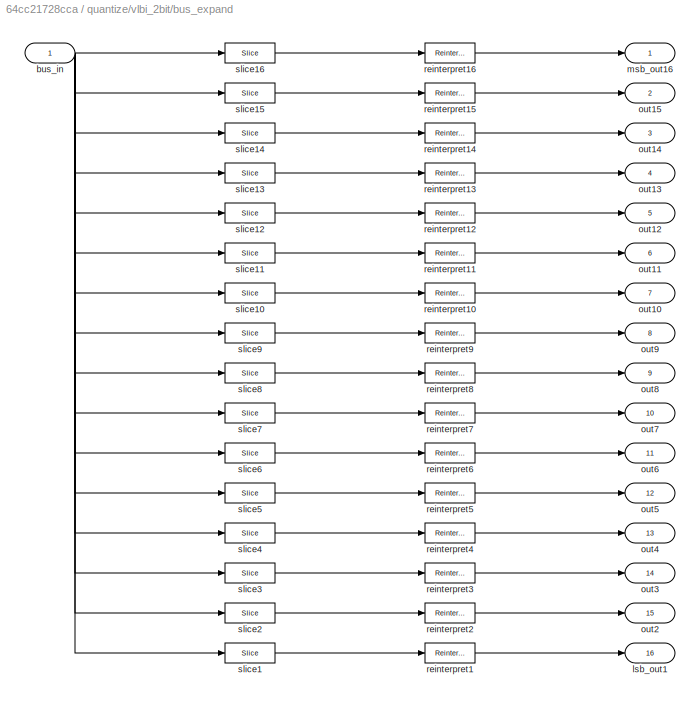
BLOCK [SubSystem] quantize/vlbi_2bit/bus_expand
  AncestorBlock = casper_library_flow_control/bus_expand
  AttributesFormatString = 16 outputs
  FunctionWithSeparateData = off
  MaskHideContents = off
  MinAlgLoopOccurrences = off
  Opaque = off
  Ports = [1, 16]
  PropExecContextOutsideSubsystem = off
  RTWSystemCode = Auto
  RequestExecContextInheritance = off
  UserDataPersistent = on
BLOCK [Inport] quantize/vlbi_2bit/bus_expand/bus_in
  IconDisplay = Port number
BLOCK [Outport] quantize/vlbi_2bit/bus_expand/lsb_out1
  IconDisplay = Port number
  Port = 16
BLOCK [Outport] quantize/vlbi_2bit/bus_expand/msb_out16
  IconDisplay = Port number
BLOCK [Outport] quantize/vlbi_2bit/bus_expand/out10
  IconDisplay = Port number
  Port = 7
BLOCK [Outport] quantize/vlbi_2bit/bus_expand/out11
  IconDisplay = Port number
  Port = 6
BLOCK [Outport] quantize/vlbi_2bit/bus_expand/out12
  IconDisplay = Port number
  Port = 5
BLOCK [Outport] quantize/vlbi_2bit/bus_expand/out13
  IconDisplay = Port number
  Port = 4
BLOCK [Outport] quantize/vlbi_2bit/bus_expand/out14
  IconDisplay = Port number
  Port = 3
BLOCK [Outport] quantize/vlbi_2bit/bus_expand/out15
  IconDisplay = Port number
  Port = 2
BLOCK [Outport] quantize/vlbi_2bit/bus_expand/out2
  IconDisplay = Port number
  Port = 15
BLOCK [Outport] quantize/vlbi_2bit/bus_expand/out3
  IconDisplay = Port number
  Port = 14
BLOCK [Outport] quantize/vlbi_2bit/bus_expand/out4
  IconDisplay = Port number
  Port = 13
BLOCK [Outport] quantize/vlbi_2bit/bus_expand/out5
  IconDisplay = Port number
  Port = 12
BLOCK [Outport] quantize/vlbi_2bit/bus_expand/out6
  IconDisplay = Port number
  Port = 11
BLOCK [Outport] quantize/vlbi_2bit/bus_expand/out7
  IconDisplay = Port number
  Port = 10
BLOCK [Outport] quantize/vlbi_2bit/bus_expand/out8
  IconDisplay = Port number
  Port = 9
BLOCK [Outport] quantize/vlbi_2bit/bus_expand/out9
  IconDisplay = Port number
  Port = 8
BLOCK [Reference] quantize/vlbi_2bit/bus_expand/reinterpret1  REF=xbsIndex_r4/Reinterpret
  Ports = [1, 1]
  SourceBlock = xbsIndex_r4/Reinterpret
  SourceType = Xilinx Type Reinterpreter Block
  arith_type = Signed  (2's comp)
  bin_pt = 0
  block_type = reinterpret
  force_arith_type = on
  force_bin_pt = on
  has_advanced_control = 0
  sg_icon_stat = 50,20,1,1,white,blue,0,6b04d0b0,right,,[ ],[ ]
  sggui_pos = -1,-1,-1,-1
BLOCK [Reference] quantize/vlbi_2bit/bus_expand/reinterpret10  REF=xbsIndex_r4/Reinterpret
  Ports = [1, 1]
  SourceBlock = xbsIndex_r4/Reinterpret
  SourceType = Xilinx Type Reinterpreter Block
  arith_type = Signed  (2's comp)
  bin_pt = 0
  block_type = reinterpret
  force_arith_type = on
  force_bin_pt = on
  has_advanced_control = 0
  sg_icon_stat = 50,20,1,1,white,blue,0,6b04d0b0,right,,[ ],[ ]
  sggui_pos = -1,-1,-1,-1
BLOCK [Reference] quantize/vlbi_2bit/bus_expand/reinterpret11  REF=xbsIndex_r4/Reinterpret
  Ports = [1, 1]
  SourceBlock = xbsIndex_r4/Reinterpret
  SourceType = Xilinx Type Reinterpreter Block
  arith_type = Signed  (2's comp)
  bin_pt = 0
  block_type = reinterpret
  force_arith_type = on
  force_bin_pt = on
  has_advanced_control = 0
  sg_icon_stat = 50,20,1,1,white,blue,0,6b04d0b0,right,,[ ],[ ]
  sggui_pos = -1,-1,-1,-1
BLOCK [Reference] quantize/vlbi_2bit/bus_expand/reinterpret12  REF=xbsIndex_r4/Reinterpret
  Ports = [1, 1]
  SourceBlock = xbsIndex_r4/Reinterpret
  SourceType = Xilinx Type Reinterpreter Block
  arith_type = Signed  (2's comp)
  bin_pt = 0
  block_type = reinterpret
  force_arith_type = on
  force_bin_pt = on
  has_advanced_control = 0
  sg_icon_stat = 50,20,1,1,white,blue,0,6b04d0b0,right,,[ ],[ ]
  sggui_pos = -1,-1,-1,-1
BLOCK [Reference] quantize/vlbi_2bit/bus_expand/reinterpret13  REF=xbsIndex_r4/Reinterpret
  Ports = [1, 1]
  SourceBlock = xbsIndex_r4/Reinterpret
  SourceType = Xilinx Type Reinterpreter Block
  arith_type = Signed  (2's comp)
  bin_pt = 0
  block_type = reinterpret
  force_arith_type = on
  force_bin_pt = on
  has_advanced_control = 0
  sg_icon_stat = 50,20,1,1,white,blue,0,6b04d0b0,right,,[ ],[ ]
  sggui_pos = -1,-1,-1,-1
BLOCK [Reference] quantize/vlbi_2bit/bus_expand/reinterpret14  REF=xbsIndex_r4/Reinterpret
  Ports = [1, 1]
  SourceBlock = xbsIndex_r4/Reinterpret
  SourceType = Xilinx Type Reinterpreter Block
  arith_type = Signed  (2's comp)
  bin_pt = 0
  block_type = reinterpret
  force_arith_type = on
  force_bin_pt = on
  has_advanced_control = 0
  sg_icon_stat = 50,20,1,1,white,blue,0,6b04d0b0,right,,[ ],[ ]
  sggui_pos = -1,-1,-1,-1
BLOCK [Reference] quantize/vlbi_2bit/bus_expand/reinterpret15  REF=xbsIndex_r4/Reinterpret
  Ports = [1, 1]
  SourceBlock = xbsIndex_r4/Reinterpret
  SourceType = Xilinx Type Reinterpreter Block
  arith_type = Signed  (2's comp)
  bin_pt = 0
  block_type = reinterpret
  force_arith_type = on
  force_bin_pt = on
  has_advanced_control = 0
  sg_icon_stat = 50,20,1,1,white,blue,0,6b04d0b0,right,,[ ],[ ]
  sggui_pos = -1,-1,-1,-1
BLOCK [Reference] quantize/vlbi_2bit/bus_expand/reinterpret16  REF=xbsIndex_r4/Reinterpret
  Ports = [1, 1]
  SourceBlock = xbsIndex_r4/Reinterpret
  SourceType = Xilinx Type Reinterpreter Block
  arith_type = Signed  (2's comp)
  bin_pt = 0
  block_type = reinterpret
  force_arith_type = on
  force_bin_pt = on
  has_advanced_control = 0
  sg_icon_stat = 50,20,1,1,white,blue,0,6b04d0b0,right,,[ ],[ ]
  sggui_pos = -1,-1,-1,-1
BLOCK [Reference] quantize/vlbi_2bit/bus_expand/reinterpret2  REF=xbsIndex_r4/Reinterpret
  Ports = [1, 1]
  SourceBlock = xbsIndex_r4/Reinterpret
  SourceType = Xilinx Type Reinterpreter Block
  arith_type = Signed  (2's comp)
  bin_pt = 0
  block_type = reinterpret
  force_arith_type = on
  force_bin_pt = on
  has_advanced_control = 0
  sg_icon_stat = 50,20,1,1,white,blue,0,6b04d0b0,right,,[ ],[ ]
  sggui_pos = -1,-1,-1,-1
BLOCK [Reference] quantize/vlbi_2bit/bus_expand/reinterpret3  REF=xbsIndex_r4/Reinterpret
  Ports = [1, 1]
  SourceBlock = xbsIndex_r4/Reinterpret
  SourceType = Xilinx Type Reinterpreter Block
  arith_type = Signed  (2's comp)
  bin_pt = 0
  block_type = reinterpret
  force_arith_type = on
  force_bin_pt = on
  has_advanced_control = 0
  sg_icon_stat = 50,20,1,1,white,blue,0,6b04d0b0,right,,[ ],[ ]
  sggui_pos = -1,-1,-1,-1
BLOCK [Reference] quantize/vlbi_2bit/bus_expand/reinterpret4  REF=xbsIndex_r4/Reinterpret
  Ports = [1, 1]
  SourceBlock = xbsIndex_r4/Reinterpret
  SourceType = Xilinx Type Reinterpreter Block
  arith_type = Signed  (2's comp)
  bin_pt = 0
  block_type = reinterpret
  force_arith_type = on
  force_bin_pt = on
  has_advanced_control = 0
  sg_icon_stat = 50,20,1,1,white,blue,0,6b04d0b0,right,,[ ],[ ]
  sggui_pos = -1,-1,-1,-1
BLOCK [Reference] quantize/vlbi_2bit/bus_expand/reinterpret5  REF=xbsIndex_r4/Reinterpret
  Ports = [1, 1]
  SourceBlock = xbsIndex_r4/Reinterpret
  SourceType = Xilinx Type Reinterpreter Block
  arith_type = Signed  (2's comp)
  bin_pt = 0
  block_type = reinterpret
  force_arith_type = on
  force_bin_pt = on
  has_advanced_control = 0
  sg_icon_stat = 50,20,1,1,white,blue,0,6b04d0b0,right,,[ ],[ ]
  sggui_pos = -1,-1,-1,-1
BLOCK [Reference] quantize/vlbi_2bit/bus_expand/reinterpret6  REF=xbsIndex_r4/Reinterpret
  Ports = [1, 1]
  SourceBlock = xbsIndex_r4/Reinterpret
  SourceType = Xilinx Type Reinterpreter Block
  arith_type = Signed  (2's comp)
  bin_pt = 0
  block_type = reinterpret
  force_arith_type = on
  force_bin_pt = on
  has_advanced_control = 0
  sg_icon_stat = 50,20,1,1,white,blue,0,6b04d0b0,right,,[ ],[ ]
  sggui_pos = -1,-1,-1,-1
BLOCK [Reference] quantize/vlbi_2bit/bus_expand/reinterpret7  REF=xbsIndex_r4/Reinterpret
  Ports = [1, 1]
  SourceBlock = xbsIndex_r4/Reinterpret
  SourceType = Xilinx Type Reinterpreter Block
  arith_type = Signed  (2's comp)
  bin_pt = 0
  block_type = reinterpret
  force_arith_type = on
  force_bin_pt = on
  has_advanced_control = 0
  sg_icon_stat = 50,20,1,1,white,blue,0,6b04d0b0,right,,[ ],[ ]
  sggui_pos = -1,-1,-1,-1
BLOCK [Reference] quantize/vlbi_2bit/bus_expand/reinterpret8  REF=xbsIndex_r4/Reinterpret
  Ports = [1, 1]
  SourceBlock = xbsIndex_r4/Reinterpret
  SourceType = Xilinx Type Reinterpreter Block
  arith_type = Signed  (2's comp)
  bin_pt = 0
  block_type = reinterpret
  force_arith_type = on
  force_bin_pt = on
  has_advanced_control = 0
  sg_icon_stat = 50,20,1,1,white,blue,0,6b04d0b0,right,,[ ],[ ]
  sggui_pos = -1,-1,-1,-1
BLOCK [Reference] quantize/vlbi_2bit/bus_expand/reinterpret9  REF=xbsIndex_r4/Reinterpret
  Ports = [1, 1]
  SourceBlock = xbsIndex_r4/Reinterpret
  SourceType = Xilinx Type Reinterpreter Block
  arith_type = Signed  (2's comp)
  bin_pt = 0
  block_type = reinterpret
  force_arith_type = on
  force_bin_pt = on
  has_advanced_control = 0
  sg_icon_stat = 50,20,1,1,white,blue,0,6b04d0b0,right,,[ ],[ ]
  sggui_pos = -1,-1,-1,-1
BLOCK [Reference] quantize/vlbi_2bit/bus_expand/slice1  REF=xbsIndex_r4/Slice
  Ports = [1, 1]
  SourceBlock = xbsIndex_r4/Slice
  SourceType = Xilinx Bit Slice Extractor Block
  base0 = LSB of Input
  base1 = MSB of Input
  bit0 = 0
  bit1 = -120
  block_type = slice
  boolean_output = off
  dbl_ovrd = off
  has_advanced_control = 0
  mode = Upper Bit Location + Width
  nbits = 8
  sg_icon_stat = 50,20,1,1,white,blue,0,1fd851a7,right,,[ ],[ ]
  sggui_pos = 20,45,543,459
BLOCK [Reference] quantize/vlbi_2bit/bus_expand/slice10  REF=xbsIndex_r4/Slice
  Ports = [1, 1]
  SourceBlock = xbsIndex_r4/Slice
  SourceType = Xilinx Bit Slice Extractor Block
  base0 = LSB of Input
  base1 = MSB of Input
  bit0 = 0
  bit1 = -48
  block_type = slice
  boolean_output = off
  dbl_ovrd = off
  has_advanced_control = 0
  mode = Upper Bit Location + Width
  nbits = 8
  sg_icon_stat = 50,20,1,1,white,blue,0,1fd851a7,right,,[ ],[ ]
  sggui_pos = -1,-1,-1,-1
BLOCK [Reference] quantize/vlbi_2bit/bus_expand/slice11  REF=xbsIndex_r4/Slice
  Ports = [1, 1]
  SourceBlock = xbsIndex_r4/Slice
  SourceType = Xilinx Bit Slice Extractor Block
  base0 = LSB of Input
  base1 = MSB of Input
  bit0 = 0
  bit1 = -40
  block_type = slice
  boolean_output = off
  dbl_ovrd = off
  has_advanced_control = 0
  mode = Upper Bit Location + Width
  nbits = 8
  sg_icon_stat = 50,20,1,1,white,blue,0,1fd851a7,right,,[ ],[ ]
  sggui_pos = -1,-1,-1,-1
BLOCK [Reference] quantize/vlbi_2bit/bus_expand/slice12  REF=xbsIndex_r4/Slice
  Ports = [1, 1]
  SourceBlock = xbsIndex_r4/Slice
  SourceType = Xilinx Bit Slice Extractor Block
  base0 = LSB of Input
  base1 = MSB of Input
  bit0 = 0
  bit1 = -32
  block_type = slice
  boolean_output = off
  dbl_ovrd = off
  has_advanced_control = 0
  mode = Upper Bit Location + Width
  nbits = 8
  sg_icon_stat = 50,20,1,1,white,blue,0,1fd851a7,right,,[ ],[ ]
  sggui_pos = -1,-1,-1,-1
BLOCK [Reference] quantize/vlbi_2bit/bus_expand/slice13  REF=xbsIndex_r4/Slice
  Ports = [1, 1]
  SourceBlock = xbsIndex_r4/Slice
  SourceType = Xilinx Bit Slice Extractor Block
  base0 = LSB of Input
  base1 = MSB of Input
  bit0 = 0
  bit1 = -24
  block_type = slice
  boolean_output = off
  dbl_ovrd = off
  has_advanced_control = 0
  mode = Upper Bit Location + Width
  nbits = 8
  sg_icon_stat = 50,20,1,1,white,blue,0,1fd851a7,right,,[ ],[ ]
  sggui_pos = -1,-1,-1,-1
BLOCK [Reference] quantize/vlbi_2bit/bus_expand/slice14  REF=xbsIndex_r4/Slice
  Ports = [1, 1]
  SourceBlock = xbsIndex_r4/Slice
  SourceType = Xilinx Bit Slice Extractor Block
  base0 = LSB of Input
  base1 = MSB of Input
  bit0 = 0
  bit1 = -16
  block_type = slice
  boolean_output = off
  dbl_ovrd = off
  has_advanced_control = 0
  mode = Upper Bit Location + Width
  nbits = 8
  sg_icon_stat = 50,20,1,1,white,blue,0,1fd851a7,right,,[ ],[ ]
  sggui_pos = -1,-1,-1,-1
BLOCK [Reference] quantize/vlbi_2bit/bus_expand/slice15  REF=xbsIndex_r4/Slice
  Ports = [1, 1]
  SourceBlock = xbsIndex_r4/Slice
  SourceType = Xilinx Bit Slice Extractor Block
  base0 = LSB of Input
  base1 = MSB of Input
  bit0 = 0
  bit1 = -8
  block_type = slice
  boolean_output = off
  dbl_ovrd = off
  has_advanced_control = 0
  mode = Upper Bit Location + Width
  nbits = 8
  sg_icon_stat = 50,20,1,1,white,blue,0,1fd851a7,right,,[ ],[ ]
  sggui_pos = -1,-1,-1,-1
BLOCK [Reference] quantize/vlbi_2bit/bus_expand/slice16  REF=xbsIndex_r4/Slice
  Ports = [1, 1]
  SourceBlock = xbsIndex_r4/Slice
  SourceType = Xilinx Bit Slice Extractor Block
  base0 = LSB of Input
  base1 = MSB of Input
  bit0 = 0
  bit1 = 0
  block_type = slice
  boolean_output = off
  dbl_ovrd = off
  has_advanced_control = 0
  mode = Upper Bit Location + Width
  nbits = 8
  sg_icon_stat = 50,20,1,1,white,blue,0,1fd851a7,right,,[ ],[ ]
  sggui_pos = -1,-1,-1,-1
BLOCK [Reference] quantize/vlbi_2bit/bus_expand/slice2  REF=xbsIndex_r4/Slice
  Ports = [1, 1]
  SourceBlock = xbsIndex_r4/Slice
  SourceType = Xilinx Bit Slice Extractor Block
  base0 = LSB of Input
  base1 = MSB of Input
  bit0 = 0
  bit1 = -112
  block_type = slice
  boolean_output = off
  dbl_ovrd = off
  has_advanced_control = 0
  mode = Upper Bit Location + Width
  nbits = 8
  sg_icon_stat = 50,20,1,1,white,blue,0,1fd851a7,right,,[ ],[ ]
  sggui_pos = 20,45,543,459
BLOCK [Reference] quantize/vlbi_2bit/bus_expand/slice3  REF=xbsIndex_r4/Slice
  Ports = [1, 1]
  SourceBlock = xbsIndex_r4/Slice
  SourceType = Xilinx Bit Slice Extractor Block
  base0 = LSB of Input
  base1 = MSB of Input
  bit0 = 0
  bit1 = -104
  block_type = slice
  boolean_output = off
  dbl_ovrd = off
  has_advanced_control = 0
  mode = Upper Bit Location + Width
  nbits = 8
  sg_icon_stat = 50,20,1,1,white,blue,0,1fd851a7,right,,[ ],[ ]
  sggui_pos = -1,-1,-1,-1
BLOCK [Reference] quantize/vlbi_2bit/bus_expand/slice4  REF=xbsIndex_r4/Slice
  Ports = [1, 1]
  SourceBlock = xbsIndex_r4/Slice
  SourceType = Xilinx Bit Slice Extractor Block
  base0 = LSB of Input
  base1 = MSB of Input
  bit0 = 0
  bit1 = -96
  block_type = slice
  boolean_output = off
  dbl_ovrd = off
  has_advanced_control = 0
  mode = Upper Bit Location + Width
  nbits = 8
  sg_icon_stat = 50,20,1,1,white,blue,0,1fd851a7,right,,[ ],[ ]
  sggui_pos = -1,-1,-1,-1
BLOCK [Reference] quantize/vlbi_2bit/bus_expand/slice5  REF=xbsIndex_r4/Slice
  Ports = [1, 1]
  SourceBlock = xbsIndex_r4/Slice
  SourceType = Xilinx Bit Slice Extractor Block
  base0 = LSB of Input
  base1 = MSB of Input
  bit0 = 0
  bit1 = -88
  block_type = slice
  boolean_output = off
  dbl_ovrd = off
  has_advanced_control = 0
  mode = Upper Bit Location + Width
  nbits = 8
  sg_icon_stat = 50,20,1,1,white,blue,0,1fd851a7,right,,[ ],[ ]
  sggui_pos = -1,-1,-1,-1
BLOCK [Reference] quantize/vlbi_2bit/bus_expand/slice6  REF=xbsIndex_r4/Slice
  Ports = [1, 1]
  SourceBlock = xbsIndex_r4/Slice
  SourceType = Xilinx Bit Slice Extractor Block
  base0 = LSB of Input
  base1 = MSB of Input
  bit0 = 0
  bit1 = -80
  block_type = slice
  boolean_output = off
  dbl_ovrd = off
  has_advanced_control = 0
  mode = Upper Bit Location + Width
  nbits = 8
  sg_icon_stat = 50,20,1,1,white,blue,0,1fd851a7,right,,[ ],[ ]
  sggui_pos = -1,-1,-1,-1
BLOCK [Reference] quantize/vlbi_2bit/bus_expand/slice7  REF=xbsIndex_r4/Slice
  Ports = [1, 1]
  SourceBlock = xbsIndex_r4/Slice
  SourceType = Xilinx Bit Slice Extractor Block
  base0 = LSB of Input
  base1 = MSB of Input
  bit0 = 0
  bit1 = -72
  block_type = slice
  boolean_output = off
  dbl_ovrd = off
  has_advanced_control = 0
  mode = Upper Bit Location + Width
  nbits = 8
  sg_icon_stat = 50,20,1,1,white,blue,0,1fd851a7,right,,[ ],[ ]
  sggui_pos = -1,-1,-1,-1
BLOCK [Reference] quantize/vlbi_2bit/bus_expand/slice8  REF=xbsIndex_r4/Slice
  Ports = [1, 1]
  SourceBlock = xbsIndex_r4/Slice
  SourceType = Xilinx Bit Slice Extractor Block
  base0 = LSB of Input
  base1 = MSB of Input
  bit0 = 0
  bit1 = -64
  block_type = slice
  boolean_output = off
  dbl_ovrd = off
  has_advanced_control = 0
  mode = Upper Bit Location + Width
  nbits = 8
  sg_icon_stat = 50,20,1,1,white,blue,0,1fd851a7,right,,[ ],[ ]
  sggui_pos = -1,-1,-1,-1
BLOCK [Reference] quantize/vlbi_2bit/bus_expand/slice9  REF=xbsIndex_r4/Slice
  Ports = [1, 1]
  SourceBlock = xbsIndex_r4/Slice
  SourceType = Xilinx Bit Slice Extractor Block
  base0 = LSB of Input
  base1 = MSB of Input
  bit0 = 0
  bit1 = -56
  block_type = slice
  boolean_output = off
  dbl_ovrd = off
  has_advanced_control = 0
  mode = Upper Bit Location + Width
  nbits = 8
  sg_icon_stat = 50,20,1,1,white,blue,0,1fd851a7,right,,[ ],[ ]
  sggui_pos = -1,-1,-1,-1
BLOCK [Inport] quantize/vlbi_2bit/din
  IconDisplay = Port number
  Port = 2
BLOCK [Outport] quantize/vlbi_2bit/dout
  IconDisplay = Port number
  Port = 2
BLOCK [SubSystem] quantize/vlbi_2bit/pipeline
  AncestorBlock = casper_library_delays/pipeline
  AttributesFormatString = Latency = %<latency>
  FunctionWithSeparateData = off
  MaskHideContents = off
  MinAlgLoopOccurrences = off
  Opaque = off
  Ports = [1, 1]
  PropExecContextOutsideSubsystem = off
  RTWSystemCode = Auto
  RequestExecContextInheritance = off
  UserDataPersistent = on
BLOCK [Reference] quantize/vlbi_2bit/pipeline/Register0  REF=xbsIndex_r4/Register
  Ports = [1, 1]
  SourceBlock = xbsIndex_r4/Register
  SourceType = Xilinx Register Block
  block_type = register
  block_version = 11.4
  dbl_ovrd = off
  en = off
  has_advanced_control = 0
  init = 0
  rst = off
  sg_icon_stat = 60,56,1,1,white,blue,0,c80657c5,right,,[ ],[ ]
  sggui_pos = -1,-1,-1,-1
  xl_area = [0,0,0,0,0,0,0]
  xl_use_area = off
BLOCK [Reference] quantize/vlbi_2bit/pipeline/Register1  REF=xbsIndex_r4/Register
  Ports = [1, 1]
  SourceBlock = xbsIndex_r4/Register
  SourceType = Xilinx Register Block
  block_type = register
  block_version = 11.4
  dbl_ovrd = off
  en = off
  has_advanced_control = 0
  init = 0
  rst = off
  sg_icon_stat = 60,56,1,1,white,blue,0,c80657c5,right,,[ ],[ ]
  sggui_pos = -1,-1,-1,-1
  xl_area = [0,0,0,0,0,0,0]
  xl_use_area = off
BLOCK [Reference] quantize/vlbi_2bit/pipeline/Register2  REF=xbsIndex_r4/Register
  Ports = [1, 1]
  SourceBlock = xbsIndex_r4/Register
  SourceType = Xilinx Register Block
  block_type = register
  block_version = 11.4
  dbl_ovrd = off
  en = off
  has_advanced_control = 0
  init = 0
  rst = off
  sg_icon_stat = 60,56,1,1,white,blue,0,c80657c5,right,,[ ],[ ]
  sggui_pos = -1,-1,-1,-1
  xl_area = [0,0,0,0,0,0,0]
  xl_use_area = off
BLOCK [Reference] quantize/vlbi_2bit/pipeline/Register3  REF=xbsIndex_r4/Register
  Ports = [1, 1]
  SourceBlock = xbsIndex_r4/Register
  SourceType = Xilinx Register Block
  block_type = register
  dbl_ovrd = off
  en = off
  has_advanced_control = 0
  init = 0
  rst = off
  sg_icon_stat = 60,56,1,1,white,blue,0,c80657c5,right,,[ ],[ ]
  sggui_pos = -1,-1,-1,-1
  xl_area = [0,0,0,0,0,0,0]
  xl_use_area = off
BLOCK [Inport] quantize/vlbi_2bit/pipeline/d
  IconDisplay = Port number
BLOCK [Outport] quantize/vlbi_2bit/pipeline/q
  IconDisplay = Port number
BLOCK [SubSystem] quantize/vlbi_2bit/quant0
  FunctionWithSeparateData = off
  MaskHideContents = off
  MinAlgLoopOccurrences = off
  Opaque = off
  Ports = [2, 1]
  PropExecContextOutsideSubsystem = off
  RTWSystemCode = Auto
  RequestExecContextInheritance = off
BLOCK [Reference] quantize/vlbi_2bit/quant0/BitBasher  REF=xbsIndex_r4/BitBasher
  Ports = [2, 1]
  SourceBlock = xbsIndex_r4/BitBasher
  SourceType = Xilinx BitBasher Block
  arith_type1 = Unsigned
  arith_type2 = Unsigned
  arith_type3 = Unsigned
  arith_type4 = Unsigned
  bin_pt1 = 0
  bin_pt2 = 0
  bin_pt3 = 0
  bin_pt4 = 0
  bitexpr = <!DOCTYPE HTML PUBLIC "-//W3C//DTD HTML 4.0//EN" "http://www.w3.org/TR/REC-html40/strict.dtd">\n<html><head><meta name="qrichtext" content="1" /><style type="text/css">\np, li { white-space: pre-wrap; }\n</style></head><body style=" font-family:'Sans'; font-size:10pt; font-weight:400; font-style:normal;">\n<p style=" margin-top:12px; margin-bottom:12px; margin-left:0px; margin-right:0px; -qt-block-ind...<+119ch>
  block_type = bitbasher
  dbl_ovrd = off
  display_expr = off
  has_advanced_control = 0
  infoedit = Allows extraction, concatenation and augmentation of bits
  sg_icon_stat = 55,102,2,1,white,blue,0,c87156c5,right,,[ ],[ ]
  sg_mask_display = fprintf('','COMMENT: begin icon graphics');\npatch([0 55 55 0 0 ],[0 0 102 102 0 ],[0.77 0.82 0.91 ]);\nplot([0 55 55 0 0 ],[0 0 102 102 0 ]);\npatch([11.425 21.54 28.54 35.54 42.54 28.54 18.425 11.425 ],[58.77 58.77 65.77 58.77 65.77 65.77 65.77 58.77 ],[1 1 1 ]);\npatch([18.425 28.54 21.54 11.425 18.425 ],[51.77 51.77 58.77 58.77 51.77 ],[0.931 0.946 0.973 ]);\npatch([11.425 21.54 28.54 18.425 11.425...<+419ch>
  sggui_pos = 15,25,368,329
  sr_1 = 1
  sr_2 = 2
  sr_3 = 3
  sr_4 = 4
BLOCK [Reference] quantize/vlbi_2bit/quant0/BitBasher1  REF=xbsIndex_r4/BitBasher
  Ports = [2, 1]
  SourceBlock = xbsIndex_r4/BitBasher
  SourceType = Xilinx BitBasher Block
  arith_type1 = Unsigned
  arith_type2 = Unsigned
  arith_type3 = Unsigned
  arith_type4 = Unsigned
  bin_pt1 = 0
  bin_pt2 = 0
  bin_pt3 = 0
  bin_pt4 = 0
  bitexpr = <!DOCTYPE HTML PUBLIC "-//W3C//DTD HTML 4.0//EN" "http://www.w3.org/TR/REC-html40/strict.dtd">\n<html><head><meta name="qrichtext" content="1" /><style type="text/css">\np, li { white-space: pre-wrap; }\n</style></head><body style=" font-family:'Sans'; font-size:10pt; font-weight:400; font-style:normal;">\n<p style=" margin-top:12px; margin-bottom:12px; margin-left:0px; margin-right:0px; -qt-block-ind...<+119ch>
  block_type = bitbasher
  dbl_ovrd = off
  display_expr = off
  has_advanced_control = 0
  infoedit = Allows extraction, concatenation and augmentation of bits
  sg_icon_stat = 55,102,2,1,white,blue,0,c87156c5,right,,[ ],[ ]
  sg_mask_display = fprintf('','COMMENT: begin icon graphics');\npatch([0 55 55 0 0 ],[0 0 102 102 0 ],[0.77 0.82 0.91 ]);\nplot([0 55 55 0 0 ],[0 0 102 102 0 ]);\npatch([11.425 21.54 28.54 35.54 42.54 28.54 18.425 11.425 ],[58.77 58.77 65.77 58.77 65.77 65.77 65.77 58.77 ],[1 1 1 ]);\npatch([18.425 28.54 21.54 11.425 18.425 ],[51.77 51.77 58.77 58.77 51.77 ],[0.931 0.946 0.973 ]);\npatch([11.425 21.54 28.54 18.425 11.425...<+419ch>
  sggui_pos = 209,89,368,369
  sr_1 = 1
  sr_2 = 2
  sr_3 = 3
  sr_4 = 4
BLOCK [Reference] quantize/vlbi_2bit/quant0/BitBasher2  REF=xbsIndex_r4/BitBasher
  Ports = [1, 4]
  SourceBlock = xbsIndex_r4/BitBasher
  SourceType = Xilinx BitBasher Block
  arith_type1 = Unsigned
  arith_type2 = Signed  (2's comp)
  arith_type3 = Signed  (2's comp)
  arith_type4 = Signed  (2's comp)
  bin_pt1 = 0
  bin_pt2 = 0
  bin_pt3 = 0
  bin_pt4 = 0
  bitexpr = <!DOCTYPE HTML PUBLIC "-//W3C//DTD HTML 4.0//EN" "http://www.w3.org/TR/REC-html40/strict.dtd">\n<html><head><meta name="qrichtext" content="1" /><style type="text/css">\np, li { white-space: pre-wrap; }\n</style></head><body style=" font-family:'Cantarell'; font-size:11pt; font-weight:400; font-style:normal;">\n<p style=" margin-top:12px; margin-bottom:12px; margin-left:0px; margin-right:0px; -qt-bloc...<+178ch>
  block_type = bitbasher
  dbl_ovrd = off
  display_expr = off
  has_advanced_control = 0
  infoedit = Allows extraction, concatenation and augmentation of bits
  sg_icon_stat = 55,103,1,4,white,blue,0,47e2cb9c,right,,[ ],[ ]
  sg_mask_display = fprintf('','COMMENT: begin icon graphics');\npatch([0 55 55 0 0 ],[0 0 103 103 0 ],[0.77 0.82 0.91 ]);\nplot([0 55 55 0 0 ],[0 0 103 103 0 ]);\npatch([11.425 21.54 28.54 35.54 42.54 28.54 18.425 11.425 ],[58.77 58.77 65.77 58.77 65.77 65.77 65.77 58.77 ],[1 1 1 ]);\npatch([18.425 28.54 21.54 11.425 18.425 ],[51.77 51.77 58.77 58.77 51.77 ],[0.931 0.946 0.973 ]);\npatch([11.425 21.54 28.54 18.425 11.425...<+506ch>
  sggui_pos = 1044,29,368,369
  sr_1 = 1
  sr_2 = 2
  sr_3 = 3
  sr_4 = 4
BLOCK [Reference] quantize/vlbi_2bit/quant0/Concat  REF=xbsIndex_r4/Concat
  Ports = [3, 1]
  SourceBlock = xbsIndex_r4/Concat
  SourceType = Xilinx Bus Concatenator Block
  block_type = concat
  dbl_ovrd = off
  has_advanced_control = 0
  infoedit = Concatenates two or more inputs.  Output will be cast to an unsigned value with the binary point at zero.
  num_inputs = 3
  sg_icon_stat = 25,218,3,1,white,blue,0,61ef8218,right,,[ ],[ ]
  sg_mask_display = fprintf('','COMMENT: begin icon graphics');\npatch([0 25 25 0 0 ],[0 0 218 218 0 ],[0.77 0.82 0.91 ]);\nplot([0 25 25 0 0 ],[0 0 218 218 0 ]);\npatch([5.325 9.66 12.66 15.66 18.66 12.66 8.325 5.325 ],[112.33 112.33 115.33 112.33 115.33 115.33 115.33 112.33 ],[1 1 1 ]);\npatch([8.325 12.66 9.66 5.325 8.325 ],[109.33 109.33 112.33 112.33 109.33 ],[0.931 0.946 0.973 ]);\npatch([5.325 9.66 12.66 8.325 5.32...<+440ch>
  sggui_pos = 2,20,368,249
BLOCK [Reference] quantize/vlbi_2bit/quant0/Constant  REF=xbsIndex_r4/Constant
  Ports = [0, 1]
  SourceBlock = xbsIndex_r4/Constant
  SourceType = Xilinx Constant Block Block
  arith_type = Unsigned
  bin_pt = 0
  block_type = constant
  carry = CIN
  const = 0
  dbl_ovrd = off
  dsp48_infoedit = The use of this block for DSP48 instructions is deprecated.  Please use the Opmode block.
  equ = P=C
  exp_width = 8
  explicit_period = on
  frac_width = 24
  gui_display_data_type = Fixed-point
  has_advanced_control = 0
  inp1 = P
  inp2 = PCIN>>17
  n_bits = 2
  opr = +
  opselect = C
  period = 1
  preci_type = Single
  sg_icon_stat = 15,14,0,1,white,blue,0,bf4ddd8b,right,,[ ],[ ]
  sggui_pos = -1,-1,-1,-1
BLOCK [Reference] quantize/vlbi_2bit/quant0/Constant1  REF=xbsIndex_r4/Constant
  Ports = [0, 1]
  SourceBlock = xbsIndex_r4/Constant
  SourceType = Xilinx Constant Block Block
  arith_type = Unsigned
  bin_pt = 0
  block_type = constant
  carry = CIN
  const = 3
  dbl_ovrd = off
  dsp48_infoedit = The use of this block for DSP48 instructions is deprecated.  Please use the Opmode block.
  equ = P=C
  exp_width = 8
  explicit_period = on
  frac_width = 24
  gui_display_data_type = Fixed-point
  has_advanced_control = 0
  inp1 = P
  inp2 = PCIN>>17
  n_bits = 2
  opr = +
  opselect = C
  period = 1
  preci_type = Single
  sg_icon_stat = 15,14,0,1,white,blue,0,279a71c8,right,,[ ],[ ]
  sggui_pos = -1,-1,-1,-1
BLOCK [Reference] quantize/vlbi_2bit/quant0/Counter  REF=xbsIndex_r4/Counter
  Ports = [1, 1]
  SourceBlock = xbsIndex_r4/Counter
  SourceType = Xilinx Counter Block
  arith_type = Unsigned
  bin_pt = 0
  block_type = counter
  cnt_by_val = 1
  cnt_to = Inf
  cnt_type = Free Running
  dbl_ovrd = off
  en = on
  explicit_period = on
  has_advanced_control = 0
  implementation = Fabric
  infoedit = Hardware notes: Free running counters are the least expensive in hardware.  A count limited counter is implemented by combining a counter with a comparator.
  load_pin = off
  n_bits = 1
  operation = Up
  period = 1
  rst = off
  sg_icon_stat = 50,30,1,1,white,blue,0,b089e9c5,right,,[ ],[ ]
  sg_mask_display = fprintf('','COMMENT: begin icon graphics');\npatch([0 50 50 0 0 ],[0 0 30 30 0 ],[0.77 0.82 0.91 ]);\nplot([0 50 50 0 0 ],[0 0 30 30 0 ]);\npatch([16.1 21.88 25.88 29.88 33.88 25.88 20.1 16.1 ],[19.44 19.44 23.44 19.44 23.44 23.44 23.44 19.44 ],[1 1 1 ]);\npatch([20.1 25.88 21.88 16.1 20.1 ],[15.44 15.44 19.44 19.44 15.44 ],[0.931 0.946 0.973 ]);\npatch([16.1 21.88 25.88 20.1 16.1 ],[11.44 11.44 15.44 ...<+360ch>
  sggui_pos = 11,20,459,839
  start_count = 0
  use_behavioral_HDL = on
  xl_area = [0,0,0,0,0,0,0]
  xl_use_area = off
BLOCK [Reference] quantize/vlbi_2bit/quant0/Delay  REF=xbsIndex_r4/Delay
  Ports = [1, 1]
  SourceBlock = xbsIndex_r4/Delay
  SourceType = Xilinx Delay Block
  block_type = delay
  dbl_ovrd = off
  en = off
  has_advanced_control = 0
  infoedit = Hardware notes: A delay line is a chain, each link of which is an SRL16 followed by a flip-flop.
  infoeditControl = Selection of Reset will increase slice count due to use of real FFs and instead of SRLs
  latency = 1
  reg_retiming = off
  rst = off
  sg_icon_stat = 50,30,1,1,white,blue,0,07b98262,right,,[ ],[ ]
  sg_mask_display = fprintf('','COMMENT: begin icon graphics');\npatch([0 50 50 0 0 ],[0 0 30 30 0 ],[0.77 0.82 0.91 ]);\nplot([0 50 50 0 0 ],[0 0 30 30 0 ]);\npatch([16.1 21.88 25.88 29.88 33.88 25.88 20.1 16.1 ],[19.44 19.44 23.44 19.44 23.44 23.44 23.44 19.44 ],[1 1 1 ]);\npatch([20.1 25.88 21.88 16.1 20.1 ],[15.44 15.44 19.44 19.44 15.44 ],[0.931 0.946 0.973 ]);\npatch([16.1 21.88 25.88 20.1 16.1 ],[11.44 11.44 15.44 ...<+304ch>
  sggui_pos = -1,-1,-1,-1
  xl_area = [0,0,0,0,0,0,0]
  xl_use_area = off
BLOCK [From] quantize/vlbi_2bit/quant0/From
  GotoTag = T7
BLOCK [From] quantize/vlbi_2bit/quant0/From1
  GotoTag = T0
BLOCK [From] quantize/vlbi_2bit/quant0/From2
  GotoTag = Tp
BLOCK [From] quantize/vlbi_2bit/quant0/From3
  GotoTag = Tn
BLOCK [From] quantize/vlbi_2bit/quant0/From4
  GotoTag = din8
BLOCK [From] quantize/vlbi_2bit/quant0/From5
  GotoTag = din8
BLOCK [From] quantize/vlbi_2bit/quant0/From6
  GotoTag = Qsel
BLOCK [Goto] quantize/vlbi_2bit/quant0/Goto
  GotoTag = T7
BLOCK [Goto] quantize/vlbi_2bit/quant0/Goto1
  GotoTag = Tn
BLOCK [Goto] quantize/vlbi_2bit/quant0/Goto2
  GotoTag = T0
BLOCK [Goto] quantize/vlbi_2bit/quant0/Goto3
  GotoTag = Tp
BLOCK [Goto] quantize/vlbi_2bit/quant0/Goto4
  GotoTag = Qsel
BLOCK [Goto] quantize/vlbi_2bit/quant0/Goto5
  GotoTag = din8
BLOCK [Reference] quantize/vlbi_2bit/quant0/Mux  REF=xbsIndex_r4/Mux
  Ports = [5, 1]
  SourceBlock = xbsIndex_r4/Mux
  SourceType = Xilinx Bus Multiplexer Block
  arith_type = Unsigned
  bin_pt = 14
  block_type = mux
  dbl_ovrd = off
  en = off
  has_advanced_control = 0
  inputs = 4
  latency = 1
  n_bits = 16
  overflow = Wrap
  precision = Full
  quantization = Truncate
  sg_icon_stat = 45,144,5,1,white,blue,3,9e2a33b8,right,,[ ],[ ]
  sg_mask_display = fprintf('','COMMENT: begin icon graphics');\npatch([0 45 45 0 0 ],[0 20.5714 123.429 144 0 ],[0.77 0.82 0.91 ]);\nplot([0 45 45 0 0 ],[0 20.5714 123.429 144 0 ]);\npatch([8.65 17.32 23.32 29.32 35.32 23.32 14.65 8.65 ],[78.66 78.66 84.66 78.66 84.66 84.66 84.66 78.66 ],[1 1 1 ]);\npatch([14.65 23.32 17.32 8.65 14.65 ],[72.66 72.66 78.66 78.66 72.66 ],[0.931 0.946 0.973 ]);\npatch([8.65 17.32 23.32 14.6...<+560ch>
  sggui_pos = -1,-1,-1,-1
  xl_area = [0,0,0,0,0,0,0]
  xl_use_area = off
BLOCK [Reference] quantize/vlbi_2bit/quant0/Mux1  REF=xbsIndex_r4/Mux
  Ports = [3, 1]
  SourceBlock = xbsIndex_r4/Mux
  SourceType = Xilinx Bus Multiplexer Block
  arith_type = Unsigned
  bin_pt = 14
  block_type = mux
  dbl_ovrd = off
  en = off
  has_advanced_control = 0
  inputs = 2
  latency = 1
  n_bits = 16
  overflow = Wrap
  precision = Full
  quantization = Truncate
  sg_icon_stat = 45,144,3,1,white,blue,3,a150fb03,right,,[ ],[ ]
  sg_mask_display = fprintf('','COMMENT: begin icon graphics');\npatch([0 45 45 0 0 ],[0 20.5714 123.429 144 0 ],[0.77 0.82 0.91 ]);\nplot([0 45 45 0 0 ],[0 20.5714 123.429 144 0 ]);\npatch([8.65 17.32 23.32 29.32 35.32 23.32 14.65 8.65 ],[78.66 78.66 84.66 78.66 84.66 84.66 84.66 78.66 ],[1 1 1 ]);\npatch([14.65 23.32 17.32 8.65 14.65 ],[72.66 72.66 78.66 78.66 72.66 ],[0.931 0.946 0.973 ]);\npatch([8.65 17.32 23.32 14.6...<+474ch>
  sggui_pos = -1,-1,-1,-1
  xl_area = [0,0,0,0,0,0,0]
  xl_use_area = off
BLOCK [Reference] quantize/vlbi_2bit/quant0/Mux2  REF=xbsIndex_r4/Mux
  Ports = [3, 1]
  SourceBlock = xbsIndex_r4/Mux
  SourceType = Xilinx Bus Multiplexer Block
  arith_type = Unsigned
  bin_pt = 14
  block_type = mux
  dbl_ovrd = off
  en = off
  has_advanced_control = 0
  inputs = 2
  latency = 1
  n_bits = 16
  overflow = Wrap
  precision = Full
  quantization = Truncate
  sg_icon_stat = 45,144,3,1,white,blue,3,a150fb03,right,,[ ],[ ]
  sg_mask_display = fprintf('','COMMENT: begin icon graphics');\npatch([0 45 45 0 0 ],[0 20.5714 123.429 144 0 ],[0.77 0.82 0.91 ]);\nplot([0 45 45 0 0 ],[0 20.5714 123.429 144 0 ]);\npatch([8.65 17.32 23.32 29.32 35.32 23.32 14.65 8.65 ],[78.66 78.66 84.66 78.66 84.66 84.66 84.66 78.66 ],[1 1 1 ]);\npatch([14.65 23.32 17.32 8.65 14.65 ],[72.66 72.66 78.66 78.66 72.66 ],[0.931 0.946 0.973 ]);\npatch([8.65 17.32 23.32 14.6...<+474ch>
  sggui_pos = 11,20,459,405
  xl_area = [0,0,0,0,0,0,0]
  xl_use_area = off
BLOCK [Reference] quantize/vlbi_2bit/quant0/Register1  REF=xbsIndex_r4/Register
  Ports = [1, 1]
  SourceBlock = xbsIndex_r4/Register
  SourceType = Xilinx Register Block
  block_type = register
  dbl_ovrd = off
  en = off
  has_advanced_control = 0
  init = 0
  rst = off
  sg_icon_stat = 40,24,1,1,white,blue,0,c80657c5,right,,[ ],[ ]
  sg_mask_display = fprintf('','COMMENT: begin icon graphics');\npatch([0 40 40 0 0 ],[0 0 24 24 0 ],[0.77 0.82 0.91 ]);\nplot([0 40 40 0 0 ],[0 0 24 24 0 ]);\npatch([13.325 17.66 20.66 23.66 26.66 20.66 16.325 13.325 ],[15.33 15.33 18.33 15.33 18.33 18.33 18.33 15.33 ],[1 1 1 ]);\npatch([16.325 20.66 17.66 13.325 16.325 ],[12.33 12.33 15.33 15.33 12.33 ],[0.931 0.946 0.973 ]);\npatch([13.325 17.66 20.66 16.325 13.325 ],[...<+405ch>
  sggui_pos = 2,20,459,231
  xl_area = [0,0,0,0,0,0,0]
  xl_use_area = off
BLOCK [Reference] quantize/vlbi_2bit/quant0/Register2  REF=xbsIndex_r4/Register
  Ports = [1, 1]
  SourceBlock = xbsIndex_r4/Register
  SourceType = Xilinx Register Block
  block_type = register
  dbl_ovrd = off
  en = off
  has_advanced_control = 0
  init = 0
  rst = off
  sg_icon_stat = 40,24,1,1,white,blue,0,c80657c5,right,,[ ],[ ]
  sg_mask_display = fprintf('','COMMENT: begin icon graphics');\npatch([0 40 40 0 0 ],[0 0 24 24 0 ],[0.77 0.82 0.91 ]);\nplot([0 40 40 0 0 ],[0 0 24 24 0 ]);\npatch([13.325 17.66 20.66 23.66 26.66 20.66 16.325 13.325 ],[15.33 15.33 18.33 15.33 18.33 18.33 18.33 15.33 ],[1 1 1 ]);\npatch([16.325 20.66 17.66 13.325 16.325 ],[12.33 12.33 15.33 15.33 12.33 ],[0.931 0.946 0.973 ]);\npatch([13.325 17.66 20.66 16.325 13.325 ],[...<+405ch>
  sggui_pos = -1,-1,-1,-1
  xl_area = [0,0,0,0,0,0,0]
  xl_use_area = off
BLOCK [Reference] quantize/vlbi_2bit/quant0/Relational  REF=xbsIndex_r4/Relational
  Ports = [2, 1]
  SourceBlock = xbsIndex_r4/Relational
  SourceType = Xilinx Arithmetic Relational Operator Block
  block_type = relational
  dbl_ovrd = off
  en = off
  has_advanced_control = 0
  latency = 1
  mode = a>b
  sg_icon_stat = 40,56,2,1,white,blue,0,3049caaa,right,,[ ],[ ]
  sg_mask_display = fprintf('','COMMENT: begin icon graphics');\npatch([0 40 40 0 0 ],[0 0 56 56 0 ],[0.77 0.82 0.91 ]);\nplot([0 40 40 0 0 ],[0 0 56 56 0 ]);\npatch([8.875 16.1 21.1 26.1 31.1 21.1 13.875 8.875 ],[33.55 33.55 38.55 33.55 38.55 38.55 38.55 33.55 ],[1 1 1 ]);\npatch([13.875 21.1 16.1 8.875 13.875 ],[28.55 28.55 33.55 33.55 28.55 ],[0.931 0.946 0.973 ]);\npatch([8.875 16.1 21.1 13.875 8.875 ],[23.55 23.55 28...<+498ch>
  sggui_pos = 2,20,484,231
  xl_area = [0,0,0,0,0,0,0]
  xl_use_area = off
BLOCK [Reference] quantize/vlbi_2bit/quant0/Relational1  REF=xbsIndex_r4/Relational
  Ports = [2, 1]
  SourceBlock = xbsIndex_r4/Relational
  SourceType = Xilinx Arithmetic Relational Operator Block
  block_type = relational
  dbl_ovrd = off
  en = off
  has_advanced_control = 0
  latency = 1
  mode = a<b
  sg_icon_stat = 40,56,2,1,white,blue,0,9a1f8f13,right,,[ ],[ ]
  sg_mask_display = fprintf('','COMMENT: begin icon graphics');\npatch([0 40 40 0 0 ],[0 0 56 56 0 ],[0.77 0.82 0.91 ]);\nplot([0 40 40 0 0 ],[0 0 56 56 0 ]);\npatch([8.875 16.1 21.1 26.1 31.1 21.1 13.875 8.875 ],[33.55 33.55 38.55 33.55 38.55 38.55 38.55 33.55 ],[1 1 1 ]);\npatch([13.875 21.1 16.1 8.875 13.875 ],[28.55 28.55 33.55 33.55 28.55 ],[0.931 0.946 0.973 ]);\npatch([8.875 16.1 21.1 13.875 8.875 ],[23.55 23.55 28...<+498ch>
  sggui_pos = 20,20,484,211
  xl_area = [0,0,0,0,0,0,0]
  xl_use_area = off
BLOCK [Reference] quantize/vlbi_2bit/quant0/Relational2  REF=xbsIndex_r4/Relational
  Ports = [2, 1]
  SourceBlock = xbsIndex_r4/Relational
  SourceType = Xilinx Arithmetic Relational Operator Block
  block_type = relational
  dbl_ovrd = off
  en = off
  has_advanced_control = 0
  latency = 1
  mode = a>b
  sg_icon_stat = 40,42,2,1,white,blue,0,3049caaa,right,,[ ],[ ]
  sg_mask_display = fprintf('','COMMENT: begin icon graphics');\npatch([0 40 40 0 0 ],[0 0 42 42 0 ],[0.77 0.82 0.91 ]);\nplot([0 40 40 0 0 ],[0 0 42 42 0 ]);\npatch([8.875 16.1 21.1 26.1 31.1 21.1 13.875 8.875 ],[26.55 26.55 31.55 26.55 31.55 31.55 31.55 26.55 ],[1 1 1 ]);\npatch([13.875 21.1 16.1 8.875 13.875 ],[21.55 21.55 26.55 26.55 21.55 ],[0.931 0.946 0.973 ]);\npatch([8.875 16.1 21.1 13.875 8.875 ],[16.55 16.55 21...<+498ch>  <repeated x3 — deduplicated; at blocks: Relational2, Relational3, Relational6>
  sggui_pos = 20,20,484,211
  xl_area = [0,0,0,0,0,0,0]
  xl_use_area = off
BLOCK [Reference] quantize/vlbi_2bit/quant0/Relational3  REF=xbsIndex_r4/Relational
  Ports = [2, 1]
  SourceBlock = xbsIndex_r4/Relational
  SourceType = Xilinx Arithmetic Relational Operator Block
  block_type = relational
  dbl_ovrd = off
  en = off
  has_advanced_control = 0
  latency = 1
  mode = a<b
  sg_icon_stat = 40,42,2,1,white,blue,0,9a1f8f13,right,,[ ],[ ]
  sggui_pos = 20,20,484,211
  xl_area = [0,0,0,0,0,0,0]
  xl_use_area = off
BLOCK [Reference] quantize/vlbi_2bit/quant0/Relational4  REF=xbsIndex_r4/Relational
  Ports = [2, 1]
  SourceBlock = xbsIndex_r4/Relational
  SourceType = Xilinx Arithmetic Relational Operator Block
  block_type = relational
  dbl_ovrd = off
  en = off
  has_advanced_control = 0
  latency = 1
  mode = a>=b
  sg_icon_stat = 40,42,2,1,white,blue,0,a3568de2,right,,[ ],[ ]
  sg_mask_display = fprintf('','COMMENT: begin icon graphics');\npatch([0 40 40 0 0 ],[0 0 42 42 0 ],[0.77 0.82 0.91 ]);\nplot([0 40 40 0 0 ],[0 0 42 42 0 ]);\npatch([8.875 16.1 21.1 26.1 31.1 21.1 13.875 8.875 ],[26.55 26.55 31.55 26.55 31.55 31.55 31.55 26.55 ],[1 1 1 ]);\npatch([13.875 21.1 16.1 8.875 13.875 ],[21.55 21.55 26.55 26.55 21.55 ],[0.931 0.946 0.973 ]);\npatch([8.875 16.1 21.1 13.875 8.875 ],[16.55 16.55 21...<+501ch>
  sggui_pos = 20,20,484,211
  xl_area = [0,0,0,0,0,0,0]
  xl_use_area = off
BLOCK [Reference] quantize/vlbi_2bit/quant0/Relational5  REF=xbsIndex_r4/Relational
  Ports = [2, 1]
  SourceBlock = xbsIndex_r4/Relational
  SourceType = Xilinx Arithmetic Relational Operator Block
  block_type = relational
  dbl_ovrd = off
  en = off
  has_advanced_control = 0
  latency = 1
  mode = a<=b
  sg_icon_stat = 40,42,2,1,white,blue,0,aac4b0f3,right,,[ ],[ ]
  sg_mask_display = fprintf('','COMMENT: begin icon graphics');\npatch([0 40 40 0 0 ],[0 0 42 42 0 ],[0.77 0.82 0.91 ]);\nplot([0 40 40 0 0 ],[0 0 42 42 0 ]);\npatch([8.875 16.1 21.1 26.1 31.1 21.1 13.875 8.875 ],[26.55 26.55 31.55 26.55 31.55 31.55 31.55 26.55 ],[1 1 1 ]);\npatch([13.875 21.1 16.1 8.875 13.875 ],[21.55 21.55 26.55 26.55 21.55 ],[0.931 0.946 0.973 ]);\npatch([8.875 16.1 21.1 13.875 8.875 ],[16.55 16.55 21...<+501ch>
  sggui_pos = -7,20,484,231
  xl_area = [0,0,0,0,0,0,0]
  xl_use_area = off
BLOCK [Reference] quantize/vlbi_2bit/quant0/Relational6  REF=xbsIndex_r4/Relational
  Ports = [2, 1]
  SourceBlock = xbsIndex_r4/Relational
  SourceType = Xilinx Arithmetic Relational Operator Block
  block_type = relational
  dbl_ovrd = off
  en = off
  has_advanced_control = 0
  latency = 1
  mode = a=b
  sg_icon_stat = 40,42,2,1,white,blue,0,3618233f,right,,[ ],[ ]
  sggui_pos = 20,20,484,211
  xl_area = [0,0,0,0,0,0,0]
  xl_use_area = off
BLOCK [Reference] quantize/vlbi_2bit/quant0/bit31  REF=xbsIndex_r4/Slice
  Ports = [1, 1]
  SourceBlock = xbsIndex_r4/Slice
  SourceType = Xilinx Bit Slice Extractor Block
  base0 = LSB of Input
  base1 = MSB of Input
  bit0 = 12
  bit1 = 0
  block_type = slice
  boolean_output = off
  dbl_ovrd = off
  has_advanced_control = 0
  mode = Upper Bit Location + Width
  nbits = 1
  sg_icon_stat = 55,16,1,1,white,blue,0,1fd851a7,right,,[ ],[ ]
  sg_mask_display = fprintf('','COMMENT: begin icon graphics');\npatch([0 55 55 0 0 ],[0 0 16 16 0 ],[0.77 0.82 0.91 ]);\nplot([0 55 55 0 0 ],[0 0 16 16 0 ]);\npatch([22.55 25.44 27.44 29.44 31.44 27.44 24.55 22.55 ],[10.22 10.22 12.22 10.22 12.22 12.22 12.22 10.22 ],[1 1 1 ]);\npatch([24.55 27.44 25.44 22.55 24.55 ],[8.22 8.22 10.22 10.22 8.22 ],[0.931 0.946 0.973 ]);\npatch([22.55 25.44 27.44 24.55 22.55 ],[6.22 6.22 8....<+305ch>
  sggui_pos = 1128,137,614,580
BLOCK [Inport] quantize/vlbi_2bit/quant0/din8
  IconDisplay = Port number
BLOCK [Outport] quantize/vlbi_2bit/quant0/dout2
  IconDisplay = Port number
BLOCK [SubSystem] quantize/vlbi_2bit/quant0/invcat
  FunctionWithSeparateData = off
  MaskHideContents = off
  MinAlgLoopOccurrences = off
  Opaque = off
  Ports = [1, 1]
  PropExecContextOutsideSubsystem = off
  RTWSystemCode = Auto
  RequestExecContextInheritance = off
BLOCK [Reference] quantize/vlbi_2bit/quant0/invcat/Concat  REF=xbsIndex_r4/Concat
  Ports = [2, 1]
  SourceBlock = xbsIndex_r4/Concat
  SourceType = Xilinx Bus Concatenator Block
  block_type = concat
  dbl_ovrd = off
  has_advanced_control = 0
  infoedit = Concatenates two or more inputs.  Output will be cast to an unsigned value with the binary point at zero.
  num_inputs = 2
  sg_icon_stat = 60,60,2,1,white,blue,0,16398980,right,,[ ],[ ]
  sg_mask_display = fprintf('','COMMENT: begin icon graphics');\npatch([0 60 60 0 0 ],[0 0 60 60 0 ],[0.77 0.82 0.91 ]);\nplot([0 60 60 0 0 ],[0 0 60 60 0 ]);\npatch([12.2 23.76 31.76 39.76 47.76 31.76 20.2 12.2 ],[38.88 38.88 46.88 38.88 46.88 46.88 46.88 38.88 ],[1 1 1 ]);\npatch([20.2 31.76 23.76 12.2 20.2 ],[30.88 30.88 38.88 38.88 30.88 ],[0.931 0.946 0.973 ]);\npatch([12.2 23.76 31.76 20.2 12.2 ],[22.88 22.88 30.88 ...<+402ch>
  sggui_pos = -1,-1,-1,-1
BLOCK [Reference] quantize/vlbi_2bit/quant0/invcat/Inverter  REF=xbsIndex_r4/Inverter
  Ports = [1, 1]
  SourceBlock = xbsIndex_r4/Inverter
  SourceType = Xilinx Inverter Block
  block_type = inv
  dbl_ovrd = off
  en = off
  has_advanced_control = 0
  infoedit = Bitwise logical negation (one's complement) operator.
  latency = 0
  sg_icon_stat = 55,58,1,1,white,blue,0,267846e5,right,,[ ],[ ]
  sg_mask_display = fprintf('','COMMENT: begin icon graphics');\npatch([0 55 55 0 0 ],[0 0 58 58 0 ],[0.77 0.82 0.91 ]);\nplot([0 55 55 0 0 ],[0 0 58 58 0 ]);\npatch([11.425 21.54 28.54 35.54 42.54 28.54 18.425 11.425 ],[36.77 36.77 43.77 36.77 43.77 43.77 43.77 36.77 ],[1 1 1 ]);\npatch([18.425 28.54 21.54 11.425 18.425 ],[29.77 29.77 36.77 36.77 29.77 ],[0.931 0.946 0.973 ]);\npatch([11.425 21.54 28.54 18.425 11.425 ],[...<+314ch>
  sggui_pos = -1,-1,-1,-1
  xl_area = [0,0,0,0,0,0,0]
  xl_use_area = off
BLOCK [Inport] quantize/vlbi_2bit/quant0/invcat/b
  IconDisplay = Port number
BLOCK [Outport] quantize/vlbi_2bit/quant0/invcat/bb
  IconDisplay = Port number
BLOCK [SubSystem] quantize/vlbi_2bit/quant0/is_positive
  FunctionWithSeparateData = off
  MaskHideContents = off
  MinAlgLoopOccurrences = off
  Opaque = off
  Ports = [1, 1]
  PropExecContextOutsideSubsystem = off
  RTWSystemCode = Auto
  RequestExecContextInheritance = off
BLOCK [Reference] quantize/vlbi_2bit/quant0/is_positive/Reinterpret  REF=xbsIndex_r4/Reinterpret
  Ports = [1, 1]
  SourceBlock = xbsIndex_r4/Reinterpret
  SourceType = Xilinx Type Reinterpreter Block
  arith_type = Unsigned
  bin_pt = 0
  block_type = reinterpret
  force_arith_type = on
  force_bin_pt = on
  has_advanced_control = 0
  sg_icon_stat = 35,28,1,1,white,blue,0,6b04d0b0,right,,[ ],[ ]
  sg_mask_display = fprintf('','COMMENT: begin icon graphics');\npatch([0 35 35 0 0 ],[0 0 28 28 0 ],[0.77 0.82 0.91 ]);\nplot([0 35 35 0 0 ],[0 0 28 28 0 ]);\npatch([8.1 13.88 17.88 21.88 25.88 17.88 12.1 8.1 ],[18.44 18.44 22.44 18.44 22.44 22.44 22.44 18.44 ],[1 1 1 ]);\npatch([12.1 17.88 13.88 8.1 12.1 ],[14.44 14.44 18.44 18.44 14.44 ],[0.931 0.946 0.973 ]);\npatch([8.1 13.88 17.88 12.1 8.1 ],[10.44 10.44 14.44 14.44...<+288ch>
  sggui_pos = 11,20,441,444
BLOCK [Inport] quantize/vlbi_2bit/quant0/is_positive/d
  IconDisplay = Port number
BLOCK [Reference] quantize/vlbi_2bit/quant0/is_positive/not  REF=xbsIndex_r4/Inverter
  Ports = [1, 1]
  SourceBlock = xbsIndex_r4/Inverter
  SourceType = Xilinx Inverter Block
  block_type = inv
  dbl_ovrd = off
  en = off
  has_advanced_control = 0
  infoedit = Bitwise logical negation (one's complement) operator.
  latency = 0
  sg_icon_stat = 35,28,1,1,white,blue,0,267846e5,right,,[ ],[ ]
  sg_mask_display = fprintf('','COMMENT: begin icon graphics');\npatch([0 35 35 0 0 ],[0 0 28 28 0 ],[0.77 0.82 0.91 ]);\nplot([0 35 35 0 0 ],[0 0 28 28 0 ]);\npatch([8.1 13.88 17.88 21.88 25.88 17.88 12.1 8.1 ],[18.44 18.44 22.44 18.44 22.44 22.44 22.44 18.44 ],[1 1 1 ]);\npatch([12.1 17.88 13.88 8.1 12.1 ],[14.44 14.44 18.44 18.44 14.44 ],[0.931 0.946 0.973 ]);\npatch([8.1 13.88 17.88 12.1 8.1 ],[10.44 10.44 14.44 14.44...<+280ch>
  sggui_pos = 11,20,484,365
  xl_area = [0,0,0,0,0,0,0]
  xl_use_area = off
BLOCK [Outport] quantize/vlbi_2bit/quant0/is_positive/q
  IconDisplay = Port number
BLOCK [Reference] quantize/vlbi_2bit/quant0/is_positive/sgn  REF=xbsIndex_r4/Slice
  Ports = [1, 1]
  SourceBlock = xbsIndex_r4/Slice
  SourceType = Xilinx Bit Slice Extractor Block
  base0 = LSB of Input
  base1 = MSB of Input
  bit0 = 0
  bit1 = 0
  block_type = slice
  boolean_output = off
  dbl_ovrd = off
  has_advanced_control = 0
  mode = Upper Bit Location + Width
  nbits = 1
  sg_icon_stat = 35,28,1,1,white,blue,0,1fd851a7,right,,[ ],[ ]
  sg_mask_display = fprintf('','COMMENT: begin icon graphics');\npatch([0 35 35 0 0 ],[0 0 28 28 0 ],[0.77 0.82 0.91 ]);\nplot([0 35 35 0 0 ],[0 0 28 28 0 ]);\npatch([8.1 13.88 17.88 21.88 25.88 17.88 12.1 8.1 ],[18.44 18.44 22.44 18.44 22.44 22.44 22.44 18.44 ],[1 1 1 ]);\npatch([12.1 17.88 13.88 8.1 12.1 ],[14.44 14.44 18.44 18.44 14.44 ],[0.931 0.946 0.973 ]);\npatch([8.1 13.88 17.88 12.1 8.1 ],[10.44 10.44 14.44 14.44...<+298ch>
  sggui_pos = 11,20,625,580
BLOCK [Reference] quantize/vlbi_2bit/quant0/neg_thr  REF=xbsIndex_r4/Negate
  Ports = [1, 1]
  SourceBlock = xbsIndex_r4/Negate
  SourceType = Xilinx Negate Block Block
  arith_type = Unsigned
  bin_pt = 14
  block_type = negate
  dbl_ovrd = off
  en = off
  has_advanced_control = 0
  latency = 1
  n_bits = 16
  overflow = Wrap
  precision = Full
  quantization = Truncate
  sg_icon_stat = 40,40,1,1,white,blue,0,fc5ddbd7,right,,[ ],[ ]
  sg_mask_display = fprintf('','COMMENT: begin icon graphics');\npatch([0 40 40 0 0 ],[0 0 40 40 0 ],[0.77 0.82 0.91 ]);\nplot([0 40 40 0 0 ],[0 0 40 40 0 ]);\npatch([8.875 16.1 21.1 26.1 31.1 21.1 13.875 8.875 ],[25.55 25.55 30.55 25.55 30.55 30.55 30.55 25.55 ],[1 1 1 ]);\npatch([13.875 21.1 16.1 8.875 13.875 ],[20.55 20.55 25.55 25.55 20.55 ],[0.931 0.946 0.973 ]);\npatch([8.875 16.1 21.1 13.875 8.875 ],[15.55 15.55 20...<+381ch>
  sggui_pos = 2,20,484,509
  xl_area = [0,0,0,0,0,0,0]
  xl_use_area = off
BLOCK [Reference] quantize/vlbi_2bit/quant0/ob_lookup  REF=xbsIndex_r4/ROM
  AttributesFormatString = init = %<initVector>
  Ports = [1, 1]
  SourceBlock = xbsIndex_r4/ROM
  SourceType = Xilinx Single Port Read-Only Memory Block
  arith_type = Unsigned
  bin_pt = 0
  block_type = sprom
  dbl_ovrd = off
  depth = 8
  distributed_mem = Distributed memory
  en = off
  exp_width = 8
  frac_width = 24
  gui_display_data_type = Fixed-point
  has_advanced_control = 0
  initVector = [1 0 1 0 2 2 3 3]
  init_reg = 0
  latency = 1
  n_bits = 2
  optimize = Area
  preci_type = Single
  rst = off
  sg_icon_stat = 85,32,1,1,white,blue,0,bbc23d60,right,,[ ],[ ]
  sg_mask_display = fprintf('','COMMENT: begin icon graphics');\npatch([0 85 85 0 0 ],[0 0 32 32 0 ],[0.77 0.82 0.91 ]);\nplot([0 85 85 0 0 ],[0 0 32 32 0 ]);\npatch([33.1 38.88 42.88 46.88 50.88 42.88 37.1 33.1 ],[20.44 20.44 24.44 20.44 24.44 24.44 24.44 20.44 ],[1 1 1 ]);\npatch([37.1 42.88 38.88 33.1 37.1 ],[16.44 16.44 20.44 20.44 16.44 ],[0.931 0.946 0.973 ]);\npatch([33.1 38.88 42.88 37.1 33.1 ],[12.44 12.44 16.44 ...<+348ch>
  sggui_pos = 1324,450,484,361
  use_rpm = on
  xl_area = [0,0,0,0,0,0,0]
  xl_use_area = off
BLOCK [Reference] quantize/vlbi_2bit/quant0/pos_thr  REF=xbsIndex_r4/Convert
  Ports = [1, 1]
  SourceBlock = xbsIndex_r4/Convert
  SourceType = Xilinx Type Converter Block
  arith_type = Signed  (2's comp)
  bin_pt = 0
  block_type = convert
  dbl_ovrd = off
  en = off
  exp_bits = 8
  float_type = Single
  fraction_bits = 24
  gui_display_data_type = Fixed-point
  has_advanced_control = 0
  infoedit = Hardware notes: rounding and saturating require hardware resources; truncating and wrapping do not.
  latency = 1
  n_bits = 8
  overflow = Wrap
  pipeline = off
  quantization = Truncate
  sg_icon_stat = 40,30,1,1,white,blue,0,0c6bad53,right,,[ ],[ ]
  sg_mask_display = fprintf('','COMMENT: begin icon graphics');\npatch([0 40 40 0 0 ],[0 0 30 30 0 ],[0.77 0.82 0.91 ]);\nplot([0 40 40 0 0 ],[0 0 30 30 0 ]);\npatch([11.1 16.88 20.88 24.88 28.88 20.88 15.1 11.1 ],[19.44 19.44 23.44 19.44 23.44 23.44 23.44 19.44 ],[1 1 1 ]);\npatch([15.1 20.88 16.88 11.1 15.1 ],[15.44 15.44 19.44 19.44 15.44 ],[0.931 0.946 0.973 ]);\npatch([11.1 16.88 20.88 15.1 11.1 ],[11.44 11.44 15.44 ...<+387ch>
  sggui_pos = 1059,129,600,703
  xl_area = [0,0,0,0,0,0,0]
  xl_use_area = off
BLOCK [Inport] quantize/vlbi_2bit/quant0/thr
  IconDisplay = Port number
  Port = 2
BLOCK [Reference] quantize/vlbi_2bit/quant1  REF=r2dbe_adc_lib/quantize/vlbi_2bit/quant0  (lib defined in slx_64cc21728cca)
  Ports = [2, 1]
  SourceBlock = r2dbe_adc_lib/quantize/vlbi_2bit/quant0
  SourceType = SubSystem
BLOCK [Reference] quantize/vlbi_2bit/quant10  REF=r2dbe_adc_lib/quantize/vlbi_2bit/quant0  (lib defined in slx_64cc21728cca)
  Ports = [2, 1]
  SourceBlock = r2dbe_adc_lib/quantize/vlbi_2bit/quant0
  SourceType = SubSystem
BLOCK [Reference] quantize/vlbi_2bit/quant11  REF=r2dbe_adc_lib/quantize/vlbi_2bit/quant0  (lib defined in slx_64cc21728cca)
  Ports = [2, 1]
  SourceBlock = r2dbe_adc_lib/quantize/vlbi_2bit/quant0
  SourceType = SubSystem
BLOCK [Reference] quantize/vlbi_2bit/quant12  REF=r2dbe_adc_lib/quantize/vlbi_2bit/quant0  (lib defined in slx_64cc21728cca)
  Ports = [2, 1]
  SourceBlock = r2dbe_adc_lib/quantize/vlbi_2bit/quant0
  SourceType = SubSystem
BLOCK [Reference] quantize/vlbi_2bit/quant13  REF=r2dbe_adc_lib/quantize/vlbi_2bit/quant0  (lib defined in slx_64cc21728cca)
  Ports = [2, 1]
  SourceBlock = r2dbe_adc_lib/quantize/vlbi_2bit/quant0
  SourceType = SubSystem
BLOCK [Reference] quantize/vlbi_2bit/quant14  REF=r2dbe_adc_lib/quantize/vlbi_2bit/quant0  (lib defined in slx_64cc21728cca)
  Ports = [2, 1]
  SourceBlock = r2dbe_adc_lib/quantize/vlbi_2bit/quant0
  SourceType = SubSystem
BLOCK [Reference] quantize/vlbi_2bit/quant15  REF=r2dbe_adc_lib/quantize/vlbi_2bit/quant0  (lib defined in slx_64cc21728cca)
  Ports = [2, 1]
  SourceBlock = r2dbe_adc_lib/quantize/vlbi_2bit/quant0
  SourceType = SubSystem
BLOCK [Reference] quantize/vlbi_2bit/quant2  REF=r2dbe_adc_lib/quantize/vlbi_2bit/quant0  (lib defined in slx_64cc21728cca)
  Ports = [2, 1]
  SourceBlock = r2dbe_adc_lib/quantize/vlbi_2bit/quant0
  SourceType = SubSystem
BLOCK [Reference] quantize/vlbi_2bit/quant3  REF=r2dbe_adc_lib/quantize/vlbi_2bit/quant0  (lib defined in slx_64cc21728cca)
  Ports = [2, 1]
  SourceBlock = r2dbe_adc_lib/quantize/vlbi_2bit/quant0
  SourceType = SubSystem
BLOCK [Reference] quantize/vlbi_2bit/quant4  REF=r2dbe_adc_lib/quantize/vlbi_2bit/quant0  (lib defined in slx_64cc21728cca)
  Ports = [2, 1]
  SourceBlock = r2dbe_adc_lib/quantize/vlbi_2bit/quant0
  SourceType = SubSystem
BLOCK [Reference] quantize/vlbi_2bit/quant5  REF=r2dbe_adc_lib/quantize/vlbi_2bit/quant0  (lib defined in slx_64cc21728cca)
  Ports = [2, 1]
  SourceBlock = r2dbe_adc_lib/quantize/vlbi_2bit/quant0
  SourceType = SubSystem
BLOCK [Reference] quantize/vlbi_2bit/quant6  REF=r2dbe_adc_lib/quantize/vlbi_2bit/quant0  (lib defined in slx_64cc21728cca)
  Ports = [2, 1]
  SourceBlock = r2dbe_adc_lib/quantize/vlbi_2bit/quant0
  SourceType = SubSystem
BLOCK [Reference] quantize/vlbi_2bit/quant7  REF=r2dbe_adc_lib/quantize/vlbi_2bit/quant0  (lib defined in slx_64cc21728cca)
  Ports = [2, 1]
  SourceBlock = r2dbe_adc_lib/quantize/vlbi_2bit/quant0
  SourceType = SubSystem
BLOCK [Reference] quantize/vlbi_2bit/quant8  REF=r2dbe_adc_lib/quantize/vlbi_2bit/quant0  (lib defined in slx_64cc21728cca)
  Ports = [2, 1]
  SourceBlock = r2dbe_adc_lib/quantize/vlbi_2bit/quant0
  SourceType = SubSystem
BLOCK [Reference] quantize/vlbi_2bit/quant9  REF=r2dbe_adc_lib/quantize/vlbi_2bit/quant0  (lib defined in slx_64cc21728cca)
  Ports = [2, 1]
  SourceBlock = r2dbe_adc_lib/quantize/vlbi_2bit/quant0
  SourceType = SubSystem
BLOCK [Inport] quantize/vlbi_2bit/sync_in
  IconDisplay = Port number
BLOCK [Outport] quantize/vlbi_2bit/sync_out
  IconDisplay = Port number
BLOCK [Inport] quantize/vlbi_2bit/thresh
  IconDisplay = Port number
  Port = 3
ANNOTATION noise_gen/wgn/conv0/convert: (ones_bit & 1) -> round-to-even (ones_bit ^ 1) -> round-to-odd (sign_bit & 1)-> round-to-zero (sign_bit ^ 1) -> round-to-inf (X ~| 1) -> round half down (X | 1) -> round half up
ANNOTATION noise_gen/wgn/conv1/convert: (ones_bit & 1) -> round-to-even (ones_bit ^ 1) -> round-to-odd (sign_bit & 1)-> round-to-zero (sign_bit ^ 1) -> round-to-inf (X ~| 1) -> round half down (X | 1) -> round half up
ANNOTATION noise_gen/wgn/conv10/convert: (ones_bit & 1) -> round-to-even (ones_bit ^ 1) -> round-to-odd (sign_bit & 1)-> round-to-zero (sign_bit ^ 1) -> round-to-inf (X ~| 1) -> round half down (X | 1) -> round half up
ANNOTATION noise_gen/wgn/conv11/convert: (ones_bit & 1) -> round-to-even (ones_bit ^ 1) -> round-to-odd (sign_bit & 1)-> round-to-zero (sign_bit ^ 1) -> round-to-inf (X ~| 1) -> round half down (X | 1) -> round half up
ANNOTATION noise_gen/wgn/conv12/convert: (ones_bit & 1) -> round-to-even (ones_bit ^ 1) -> round-to-odd (sign_bit & 1)-> round-to-zero (sign_bit ^ 1) -> round-to-inf (X ~| 1) -> round half down (X | 1) -> round half up
ANNOTATION noise_gen/wgn/conv13/convert: (ones_bit & 1) -> round-to-even (ones_bit ^ 1) -> round-to-odd (sign_bit & 1)-> round-to-zero (sign_bit ^ 1) -> round-to-inf (X ~| 1) -> round half down (X | 1) -> round half up
ANNOTATION noise_gen/wgn/conv14/convert: (ones_bit & 1) -> round-to-even (ones_bit ^ 1) -> round-to-odd (sign_bit & 1)-> round-to-zero (sign_bit ^ 1) -> round-to-inf (X ~| 1) -> round half down (X | 1) -> round half up
ANNOTATION noise_gen/wgn/conv15/convert: (ones_bit & 1) -> round-to-even (ones_bit ^ 1) -> round-to-odd (sign_bit & 1)-> round-to-zero (sign_bit ^ 1) -> round-to-inf (X ~| 1) -> round half down (X | 1) -> round half up
ANNOTATION noise_gen/wgn/conv2/convert: (ones_bit & 1) -> round-to-even (ones_bit ^ 1) -> round-to-odd (sign_bit & 1)-> round-to-zero (sign_bit ^ 1) -> round-to-inf (X ~| 1) -> round half down (X | 1) -> round half up
ANNOTATION noise_gen/wgn/conv3/convert: (ones_bit & 1) -> round-to-even (ones_bit ^ 1) -> round-to-odd (sign_bit & 1)-> round-to-zero (sign_bit ^ 1) -> round-to-inf (X ~| 1) -> round half down (X | 1) -> round half up
ANNOTATION noise_gen/wgn/conv4/convert: (ones_bit & 1) -> round-to-even (ones_bit ^ 1) -> round-to-odd (sign_bit & 1)-> round-to-zero (sign_bit ^ 1) -> round-to-inf (X ~| 1) -> round half down (X | 1) -> round half up
ANNOTATION noise_gen/wgn/conv5/convert: (ones_bit & 1) -> round-to-even (ones_bit ^ 1) -> round-to-odd (sign_bit & 1)-> round-to-zero (sign_bit ^ 1) -> round-to-inf (X ~| 1) -> round half down (X | 1) -> round half up
ANNOTATION noise_gen/wgn/conv6/convert: (ones_bit & 1) -> round-to-even (ones_bit ^ 1) -> round-to-odd (sign_bit & 1)-> round-to-zero (sign_bit ^ 1) -> round-to-inf (X ~| 1) -> round half down (X | 1) -> round half up
ANNOTATION noise_gen/wgn/conv7/convert: (ones_bit & 1) -> round-to-even (ones_bit ^ 1) -> round-to-odd (sign_bit & 1)-> round-to-zero (sign_bit ^ 1) -> round-to-inf (X ~| 1) -> round half down (X | 1) -> round half up
ANNOTATION noise_gen/wgn/conv8/convert: (ones_bit & 1) -> round-to-even (ones_bit ^ 1) -> round-to-odd (sign_bit & 1)-> round-to-zero (sign_bit ^ 1) -> round-to-inf (X ~| 1) -> round half down (X | 1) -> round half up
ANNOTATION noise_gen/wgn/conv9/convert: (ones_bit & 1) -> round-to-even (ones_bit ^ 1) -> round-to-odd (sign_bit & 1)-> round-to-zero (sign_bit ^ 1) -> round-to-inf (X ~| 1) -> round half down (X | 1) -> round half up
ANNOTATION onepps/ctr: if msr longer period, then arm together, then 2 stops after a start
LINE noise_gen/Constant1:1 -> noise_gen/arm:1
LINE noise_gen/Constant2:1 -> noise_gen/seed:1
LINE noise_gen/Slice:1 -> noise_gen/wgn:2
LINE noise_gen/arm:1 -> noise_gen/Slice:1
LINE noise_gen/bus_create:1 -> noise_gen/noise:1
LINE noise_gen/seed:1 -> noise_gen/wgn:3
LINE noise_gen/sync_in:1 -> noise_gen/wgn:1
LINE noise_gen/wgn/Reinterpret10:1 -> noise_gen/wgn/conv10:1
LINE noise_gen/wgn/Reinterpret11:1 -> noise_gen/wgn/conv11:1
LINE noise_gen/wgn/Reinterpret12:1 -> noise_gen/wgn/conv12:1
LINE noise_gen/wgn/Reinterpret13:1 -> noise_gen/wgn/conv13:1
LINE noise_gen/wgn/Reinterpret14:1 -> noise_gen/wgn/conv14:1
LINE noise_gen/wgn/Reinterpret15:1 -> noise_gen/wgn/conv15:1
LINE noise_gen/wgn/Reinterpret16:1 -> noise_gen/wgn/q0:1
LINE noise_gen/wgn/Reinterpret17:1 -> noise_gen/wgn/q1:1
LINE noise_gen/wgn/Reinterpret18:1 -> noise_gen/wgn/q2:1
LINE noise_gen/wgn/Reinterpret19:1 -> noise_gen/wgn/q3:1
LINE noise_gen/wgn/Reinterpret1:1 -> noise_gen/wgn/conv1:1
LINE noise_gen/wgn/Reinterpret20:1 -> noise_gen/wgn/q4:1
LINE noise_gen/wgn/Reinterpret21:1 -> noise_gen/wgn/q5:1
LINE noise_gen/wgn/Reinterpret22:1 -> noise_gen/wgn/q6:1
LINE noise_gen/wgn/Reinterpret23:1 -> noise_gen/wgn/q7:1
LINE noise_gen/wgn/Reinterpret24:1 -> noise_gen/wgn/q8:1
LINE noise_gen/wgn/Reinterpret25:1 -> noise_gen/wgn/q9:1
LINE noise_gen/wgn/Reinterpret26:1 -> noise_gen/wgn/q10:1
LINE noise_gen/wgn/Reinterpret27:1 -> noise_gen/wgn/q11:1
LINE noise_gen/wgn/Reinterpret28:1 -> noise_gen/wgn/q12:1
LINE noise_gen/wgn/Reinterpret29:1 -> noise_gen/wgn/q13:1
LINE noise_gen/wgn/Reinterpret2:1 -> noise_gen/wgn/conv2:1
LINE noise_gen/wgn/Reinterpret30:1 -> noise_gen/wgn/q14:1
LINE noise_gen/wgn/Reinterpret31:1 -> noise_gen/wgn/q15:1
LINE noise_gen/wgn/Reinterpret3:1 -> noise_gen/wgn/conv3:1
LINE noise_gen/wgn/Reinterpret4:1 -> noise_gen/wgn/conv4:1
LINE noise_gen/wgn/Reinterpret5:1 -> noise_gen/wgn/conv5:1
LINE noise_gen/wgn/Reinterpret6:1 -> noise_gen/wgn/conv6:1
LINE noise_gen/wgn/Reinterpret7:1 -> noise_gen/wgn/conv7:1
LINE noise_gen/wgn/Reinterpret8:1 -> noise_gen/wgn/conv8:1
LINE noise_gen/wgn/Reinterpret9:1 -> noise_gen/wgn/conv9:1
LINE noise_gen/wgn/Reinterpret:1 -> noise_gen/wgn/conv0:1
LINE noise_gen/wgn/arm:1 -> noise_gen/wgn/armed_trigger:1
NET noise_gen/wgn/armed_trigger:1 -> noise_gen/wgn/wgn0:2, noise_gen/wgn/wgn1:2, noise_gen/wgn/wgn2:2, noise_gen/wgn/wgn3:2, noise_gen/wgn/wgn4:2, noise_gen/wgn/wgn5:2, noise_gen/wgn/wgn6:2, noise_gen/wgn/wgn7:2
LINE noise_gen/wgn/conv0/convert:1 -> noise_gen/wgn/conv0/q:1
LINE noise_gen/wgn/conv0/i:1 -> noise_gen/wgn/conv0/convert:1
LINE noise_gen/wgn/conv0:1 -> noise_gen/wgn/Reinterpret16:1
LINE noise_gen/wgn/conv1/convert:1 -> noise_gen/wgn/conv1/q:1
LINE noise_gen/wgn/conv1/i:1 -> noise_gen/wgn/conv1/convert:1
LINE noise_gen/wgn/conv10/convert:1 -> noise_gen/wgn/conv10/q:1
LINE noise_gen/wgn/conv10/i:1 -> noise_gen/wgn/conv10/convert:1
LINE noise_gen/wgn/conv10:1 -> noise_gen/wgn/Reinterpret26:1
LINE noise_gen/wgn/conv11/convert:1 -> noise_gen/wgn/conv11/q:1
LINE noise_gen/wgn/conv11/i:1 -> noise_gen/wgn/conv11/convert:1
LINE noise_gen/wgn/conv11:1 -> noise_gen/wgn/Reinterpret27:1
LINE noise_gen/wgn/conv12/convert:1 -> noise_gen/wgn/conv12/q:1
LINE noise_gen/wgn/conv12/i:1 -> noise_gen/wgn/conv12/convert:1
LINE noise_gen/wgn/conv12:1 -> noise_gen/wgn/Reinterpret28:1
LINE noise_gen/wgn/conv13/convert:1 -> noise_gen/wgn/conv13/q:1
LINE noise_gen/wgn/conv13/i:1 -> noise_gen/wgn/conv13/convert:1
LINE noise_gen/wgn/conv13:1 -> noise_gen/wgn/Reinterpret29:1
LINE noise_gen/wgn/conv14/convert:1 -> noise_gen/wgn/conv14/q:1
LINE noise_gen/wgn/conv14/i:1 -> noise_gen/wgn/conv14/convert:1
LINE noise_gen/wgn/conv14:1 -> noise_gen/wgn/Reinterpret30:1
LINE noise_gen/wgn/conv15/convert:1 -> noise_gen/wgn/conv15/q:1
LINE noise_gen/wgn/conv15/i:1 -> noise_gen/wgn/conv15/convert:1
LINE noise_gen/wgn/conv15:1 -> noise_gen/wgn/Reinterpret31:1
LINE noise_gen/wgn/conv1:1 -> noise_gen/wgn/Reinterpret17:1
LINE noise_gen/wgn/conv2/convert:1 -> noise_gen/wgn/conv2/q:1
LINE noise_gen/wgn/conv2/i:1 -> noise_gen/wgn/conv2/convert:1
LINE noise_gen/wgn/conv2:1 -> noise_gen/wgn/Reinterpret18:1
LINE noise_gen/wgn/conv3/convert:1 -> noise_gen/wgn/conv3/q:1
LINE noise_gen/wgn/conv3/i:1 -> noise_gen/wgn/conv3/convert:1
LINE noise_gen/wgn/conv3:1 -> noise_gen/wgn/Reinterpret19:1
LINE noise_gen/wgn/conv4/convert:1 -> noise_gen/wgn/conv4/q:1
LINE noise_gen/wgn/conv4/i:1 -> noise_gen/wgn/conv4/convert:1
LINE noise_gen/wgn/conv4:1 -> noise_gen/wgn/Reinterpret20:1
LINE noise_gen/wgn/conv5/convert:1 -> noise_gen/wgn/conv5/q:1
LINE noise_gen/wgn/conv5/i:1 -> noise_gen/wgn/conv5/convert:1
LINE noise_gen/wgn/conv5:1 -> noise_gen/wgn/Reinterpret21:1
LINE noise_gen/wgn/conv6/convert:1 -> noise_gen/wgn/conv6/q:1
LINE noise_gen/wgn/conv6/i:1 -> noise_gen/wgn/conv6/convert:1
LINE noise_gen/wgn/conv6:1 -> noise_gen/wgn/Reinterpret22:1
LINE noise_gen/wgn/conv7/convert:1 -> noise_gen/wgn/conv7/q:1
LINE noise_gen/wgn/conv7/i:1 -> noise_gen/wgn/conv7/convert:1
LINE noise_gen/wgn/conv7:1 -> noise_gen/wgn/Reinterpret23:1
LINE noise_gen/wgn/conv8/convert:1 -> noise_gen/wgn/conv8/q:1
LINE noise_gen/wgn/conv8/i:1 -> noise_gen/wgn/conv8/convert:1
LINE noise_gen/wgn/conv8:1 -> noise_gen/wgn/Reinterpret24:1
LINE noise_gen/wgn/conv9/convert:1 -> noise_gen/wgn/conv9/q:1
LINE noise_gen/wgn/conv9/i:1 -> noise_gen/wgn/conv9/convert:1
LINE noise_gen/wgn/conv9:1 -> noise_gen/wgn/Reinterpret25:1
LINE noise_gen/wgn/seed0:1 -> noise_gen/wgn/wgn0:1
LINE noise_gen/wgn/seed0:2 -> noise_gen/wgn/wgn1:1
LINE noise_gen/wgn/seed0:3 -> noise_gen/wgn/wgn2:1
LINE noise_gen/wgn/seed0:4 -> noise_gen/wgn/wgn3:1
LINE noise_gen/wgn/seed1:1 -> noise_gen/wgn/wgn4:1
LINE noise_gen/wgn/seed1:2 -> noise_gen/wgn/wgn5:1
LINE noise_gen/wgn/seed1:3 -> noise_gen/wgn/wgn6:1
LINE noise_gen/wgn/seed1:4 -> noise_gen/wgn/wgn7:1
NET noise_gen/wgn/seed:1 -> noise_gen/wgn/seed0:1, noise_gen/wgn/seed1:1
LINE noise_gen/wgn/sync:1 -> noise_gen/wgn/armed_trigger:2
LINE noise_gen/wgn/wgn0:1 -> noise_gen/wgn/Reinterpret:1
LINE noise_gen/wgn/wgn0:2 -> noise_gen/wgn/Reinterpret1:1
LINE noise_gen/wgn/wgn1:1 -> noise_gen/wgn/Reinterpret2:1
LINE noise_gen/wgn/wgn1:2 -> noise_gen/wgn/Reinterpret3:1
LINE noise_gen/wgn/wgn2:1 -> noise_gen/wgn/Reinterpret4:1
LINE noise_gen/wgn/wgn2:2 -> noise_gen/wgn/Reinterpret5:1
LINE noise_gen/wgn/wgn3:1 -> noise_gen/wgn/Reinterpret6:1
LINE noise_gen/wgn/wgn3:2 -> noise_gen/wgn/Reinterpret7:1
LINE noise_gen/wgn/wgn4:1 -> noise_gen/wgn/Reinterpret8:1
LINE noise_gen/wgn/wgn4:2 -> noise_gen/wgn/Reinterpret9:1
LINE noise_gen/wgn/wgn5:1 -> noise_gen/wgn/Reinterpret10:1
LINE noise_gen/wgn/wgn5:2 -> noise_gen/wgn/Reinterpret11:1
LINE noise_gen/wgn/wgn6:1 -> noise_gen/wgn/Reinterpret12:1
LINE noise_gen/wgn/wgn6:2 -> noise_gen/wgn/Reinterpret13:1
LINE noise_gen/wgn/wgn7:1 -> noise_gen/wgn/Reinterpret14:1
LINE noise_gen/wgn/wgn7:2 -> noise_gen/wgn/Reinterpret15:1
LINE noise_gen/wgn:1 -> noise_gen/bus_create:1
LINE noise_gen/wgn:10 -> noise_gen/bus_create:10
LINE noise_gen/wgn:11 -> noise_gen/bus_create:11
LINE noise_gen/wgn:12 -> noise_gen/bus_create:12
LINE noise_gen/wgn:13 -> noise_gen/bus_create:13
LINE noise_gen/wgn:14 -> noise_gen/bus_create:14
LINE noise_gen/wgn:15 -> noise_gen/bus_create:15
LINE noise_gen/wgn:16 -> noise_gen/bus_create:16
LINE noise_gen/wgn:2 -> noise_gen/bus_create:2
LINE noise_gen/wgn:3 -> noise_gen/bus_create:3
LINE noise_gen/wgn:4 -> noise_gen/bus_create:4
LINE noise_gen/wgn:5 -> noise_gen/bus_create:5
LINE noise_gen/wgn:6 -> noise_gen/bus_create:6
LINE noise_gen/wgn:7 -> noise_gen/bus_create:7
LINE noise_gen/wgn:8 -> noise_gen/bus_create:8
LINE noise_gen/wgn:9 -> noise_gen/bus_create:9
LINE quantize/Constant1:1 -> quantize/thresh:1
LINE quantize/data_in:1 -> quantize/din_pipe:1
LINE quantize/din_pipe:1 -> quantize/vlbi_2bit:2
LINE quantize/pipeline:1 -> quantize/data:1
LINE quantize/sync_del:1 -> quantize/sync:1
LINE quantize/sync_in:1 -> quantize/sync_pipe:1
LINE quantize/sync_pipe:1 -> quantize/vlbi_2bit:1
LINE quantize/thr_pipe:1 -> quantize/vlbi_2bit:3
LINE quantize/thresh:1 -> quantize/thr_pipe:1
LINE quantize/vlbi_2bit/bus_create:1 -> quantize/vlbi_2bit/dout:1
LINE quantize/vlbi_2bit/bus_expand:1 -> quantize/vlbi_2bit/quant0:1
LINE quantize/vlbi_2bit/bus_expand:10 -> quantize/vlbi_2bit/quant9:1
LINE quantize/vlbi_2bit/bus_expand:11 -> quantize/vlbi_2bit/quant10:1
LINE quantize/vlbi_2bit/bus_expand:12 -> quantize/vlbi_2bit/quant11:1
LINE quantize/vlbi_2bit/bus_expand:13 -> quantize/vlbi_2bit/quant12:1
LINE quantize/vlbi_2bit/bus_expand:14 -> quantize/vlbi_2bit/quant13:1
LINE quantize/vlbi_2bit/bus_expand:15 -> quantize/vlbi_2bit/quant14:1
LINE quantize/vlbi_2bit/bus_expand:16 -> quantize/vlbi_2bit/quant15:1
LINE quantize/vlbi_2bit/bus_expand:2 -> quantize/vlbi_2bit/quant1:1
LINE quantize/vlbi_2bit/bus_expand:3 -> quantize/vlbi_2bit/quant2:1
LINE quantize/vlbi_2bit/bus_expand:4 -> quantize/vlbi_2bit/quant3:1
LINE quantize/vlbi_2bit/bus_expand:5 -> quantize/vlbi_2bit/quant4:1
LINE quantize/vlbi_2bit/bus_expand:6 -> quantize/vlbi_2bit/quant5:1
LINE quantize/vlbi_2bit/bus_expand:7 -> quantize/vlbi_2bit/quant6:1
LINE quantize/vlbi_2bit/bus_expand:8 -> quantize/vlbi_2bit/quant7:1
LINE quantize/vlbi_2bit/bus_expand:9 -> quantize/vlbi_2bit/quant8:1
LINE quantize/vlbi_2bit/din:1 -> quantize/vlbi_2bit/bus_expand:1
LINE quantize/vlbi_2bit/pipeline:1 -> quantize/vlbi_2bit/sync_out:1
LINE quantize/vlbi_2bit/quant0/BitBasher1:1 -> quantize/vlbi_2bit/quant0/Delay:1
LINE quantize/vlbi_2bit/quant0/BitBasher2:1 -> quantize/vlbi_2bit/quant0/Goto:1
LINE quantize/vlbi_2bit/quant0/BitBasher2:2 -> quantize/vlbi_2bit/quant0/Goto1:1
LINE quantize/vlbi_2bit/quant0/BitBasher2:3 -> quantize/vlbi_2bit/quant0/Goto2:1
LINE quantize/vlbi_2bit/quant0/BitBasher2:4 -> quantize/vlbi_2bit/quant0/Goto3:1
LINE quantize/vlbi_2bit/quant0/BitBasher:1 -> quantize/vlbi_2bit/quant0/Mux1:2
LINE quantize/vlbi_2bit/quant0/Concat:1 -> quantize/vlbi_2bit/quant0/ob_lookup:1
LINE quantize/vlbi_2bit/quant0/Constant1:1 -> quantize/vlbi_2bit/quant0/Mux:4
LINE quantize/vlbi_2bit/quant0/Constant:1 -> quantize/vlbi_2bit/quant0/Mux:3
LINE quantize/vlbi_2bit/quant0/Counter:1 -> quantize/vlbi_2bit/quant0/invcat:1
LINE quantize/vlbi_2bit/quant0/Delay:1 -> quantize/vlbi_2bit/quant0/Mux:1
NET quantize/vlbi_2bit/quant0/From1:1 -> quantize/vlbi_2bit/quant0/Relational2:2, quantize/vlbi_2bit/quant0/Relational3:2, quantize/vlbi_2bit/quant0/Relational6:2
LINE quantize/vlbi_2bit/quant0/From2:1 -> quantize/vlbi_2bit/quant0/Relational4:2
LINE quantize/vlbi_2bit/quant0/From3:1 -> quantize/vlbi_2bit/quant0/Relational5:2
NET quantize/vlbi_2bit/quant0/From4:1 -> quantize/vlbi_2bit/quant0/Relational4:1, quantize/vlbi_2bit/quant0/Relational5:1
NET quantize/vlbi_2bit/quant0/From5:1 -> quantize/vlbi_2bit/quant0/Relational2:1, quantize/vlbi_2bit/quant0/Relational3:1, quantize/vlbi_2bit/quant0/Relational6:1
LINE quantize/vlbi_2bit/quant0/From6:1 -> quantize/vlbi_2bit/quant0/Mux2:1
NET quantize/vlbi_2bit/quant0/From:1 -> quantize/vlbi_2bit/quant0/neg_thr:1, quantize/vlbi_2bit/quant0/pos_thr:1
NET quantize/vlbi_2bit/quant0/Mux1:1 -> quantize/vlbi_2bit/quant0/Mux:2, quantize/vlbi_2bit/quant0/Mux:5
LINE quantize/vlbi_2bit/quant0/Mux2:1 -> quantize/vlbi_2bit/quant0/dout2:1
LINE quantize/vlbi_2bit/quant0/Mux:1 -> quantize/vlbi_2bit/quant0/Mux2:3
NET quantize/vlbi_2bit/quant0/Register1:1 -> quantize/vlbi_2bit/quant0/Relational1:1, quantize/vlbi_2bit/quant0/Relational:1, quantize/vlbi_2bit/quant0/is_positive:1
LINE quantize/vlbi_2bit/quant0/Register2:1 -> quantize/vlbi_2bit/quant0/Concat:1
LINE quantize/vlbi_2bit/quant0/Relational1:1 -> quantize/vlbi_2bit/quant0/Concat:3
LINE quantize/vlbi_2bit/quant0/Relational2:1 -> quantize/vlbi_2bit/quant0/BitBasher:2
LINE quantize/vlbi_2bit/quant0/Relational3:1 -> quantize/vlbi_2bit/quant0/BitBasher:1
LINE quantize/vlbi_2bit/quant0/Relational4:1 -> quantize/vlbi_2bit/quant0/BitBasher1:2
LINE quantize/vlbi_2bit/quant0/Relational5:1 -> quantize/vlbi_2bit/quant0/BitBasher1:1
NET quantize/vlbi_2bit/quant0/Relational6:1 -> quantize/vlbi_2bit/quant0/Counter:1, quantize/vlbi_2bit/quant0/Mux1:1
LINE quantize/vlbi_2bit/quant0/Relational:1 -> quantize/vlbi_2bit/quant0/Concat:2
LINE quantize/vlbi_2bit/quant0/bit31:1 -> quantize/vlbi_2bit/quant0/Goto4:1
NET quantize/vlbi_2bit/quant0/din8:1 -> quantize/vlbi_2bit/quant0/Goto5:1, quantize/vlbi_2bit/quant0/Register1:1
LINE quantize/vlbi_2bit/quant0/invcat/Concat:1 -> quantize/vlbi_2bit/quant0/invcat/bb:1
LINE quantize/vlbi_2bit/quant0/invcat/Inverter:1 -> quantize/vlbi_2bit/quant0/invcat/Concat:1
NET quantize/vlbi_2bit/quant0/invcat/b:1 -> quantize/vlbi_2bit/quant0/invcat/Concat:2, quantize/vlbi_2bit/quant0/invcat/Inverter:1
LINE quantize/vlbi_2bit/quant0/invcat:1 -> quantize/vlbi_2bit/quant0/Mux1:3
LINE quantize/vlbi_2bit/quant0/is_positive/Reinterpret:1 -> quantize/vlbi_2bit/quant0/is_positive/sgn:1
LINE quantize/vlbi_2bit/quant0/is_positive/d:1 -> quantize/vlbi_2bit/quant0/is_positive/Reinterpret:1
LINE quantize/vlbi_2bit/quant0/is_positive/not:1 -> quantize/vlbi_2bit/quant0/is_positive/q:1
LINE quantize/vlbi_2bit/quant0/is_positive/sgn:1 -> quantize/vlbi_2bit/quant0/is_positive/not:1
LINE quantize/vlbi_2bit/quant0/is_positive:1 -> quantize/vlbi_2bit/quant0/Register2:1
LINE quantize/vlbi_2bit/quant0/neg_thr:1 -> quantize/vlbi_2bit/quant0/Relational1:2
LINE quantize/vlbi_2bit/quant0/ob_lookup:1 -> quantize/vlbi_2bit/quant0/Mux2:2
LINE quantize/vlbi_2bit/quant0/pos_thr:1 -> quantize/vlbi_2bit/quant0/Relational:2
NET quantize/vlbi_2bit/quant0/thr:1 -> quantize/vlbi_2bit/quant0/BitBasher2:1, quantize/vlbi_2bit/quant0/bit31:1
LINE quantize/vlbi_2bit/quant0:1 -> quantize/vlbi_2bit/bus_create:1
LINE quantize/vlbi_2bit/quant10:1 -> quantize/vlbi_2bit/bus_create:11
LINE quantize/vlbi_2bit/quant11:1 -> quantize/vlbi_2bit/bus_create:12
LINE quantize/vlbi_2bit/quant12:1 -> quantize/vlbi_2bit/bus_create:13
LINE quantize/vlbi_2bit/quant13:1 -> quantize/vlbi_2bit/bus_create:14
LINE quantize/vlbi_2bit/quant14:1 -> quantize/vlbi_2bit/bus_create:15
LINE quantize/vlbi_2bit/quant15:1 -> quantize/vlbi_2bit/bus_create:16
LINE quantize/vlbi_2bit/quant1:1 -> quantize/vlbi_2bit/bus_create:2
LINE quantize/vlbi_2bit/quant2:1 -> quantize/vlbi_2bit/bus_create:3
LINE quantize/vlbi_2bit/quant3:1 -> quantize/vlbi_2bit/bus_create:4
LINE quantize/vlbi_2bit/quant4:1 -> quantize/vlbi_2bit/bus_create:5
LINE quantize/vlbi_2bit/quant5:1 -> quantize/vlbi_2bit/bus_create:6
LINE quantize/vlbi_2bit/quant6:1 -> quantize/vlbi_2bit/bus_create:7
LINE quantize/vlbi_2bit/quant7:1 -> quantize/vlbi_2bit/bus_create:8
LINE quantize/vlbi_2bit/quant8:1 -> quantize/vlbi_2bit/bus_create:9
LINE quantize/vlbi_2bit/quant9:1 -> quantize/vlbi_2bit/bus_create:10
LINE quantize/vlbi_2bit/sync_in:1 -> quantize/vlbi_2bit/pipeline:1
NET quantize/vlbi_2bit/thresh:1 -> quantize/vlbi_2bit/quant0:2, quantize/vlbi_2bit/quant10:2, quantize/vlbi_2bit/quant11:2, quantize/vlbi_2bit/quant12:2, quantize/vlbi_2bit/quant13:2, quantize/vlbi_2bit/quant14:2, quantize/vlbi_2bit/quant15:2, quantize/vlbi_2bit/quant1:2, quantize/vlbi_2bit/quant2:2, quantize/vlbi_2bit/quant3:2, quantize/vlbi_2bit/quant4:2, quantize/vlbi_2bit/quant5:2, quantize/vlbi_2bit/quant6:2, quantize/vlbi_2bit/quant7:2, quantize/vlbi_2bit/quant8:2, quantize/vlbi_2bit/quant9:2
LINE quantize/vlbi_2bit:1 -> quantize/sync_del:1
LINE quantize/vlbi_2bit:2 -> quantize/pipeline:1
note: NET lines group one-source signal fan-out (src -> all destinations, sorted); 1:1 wires keep LINE
